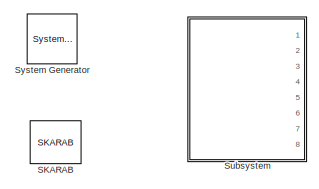
[diagram: root canvas - part 1/5, top left region]
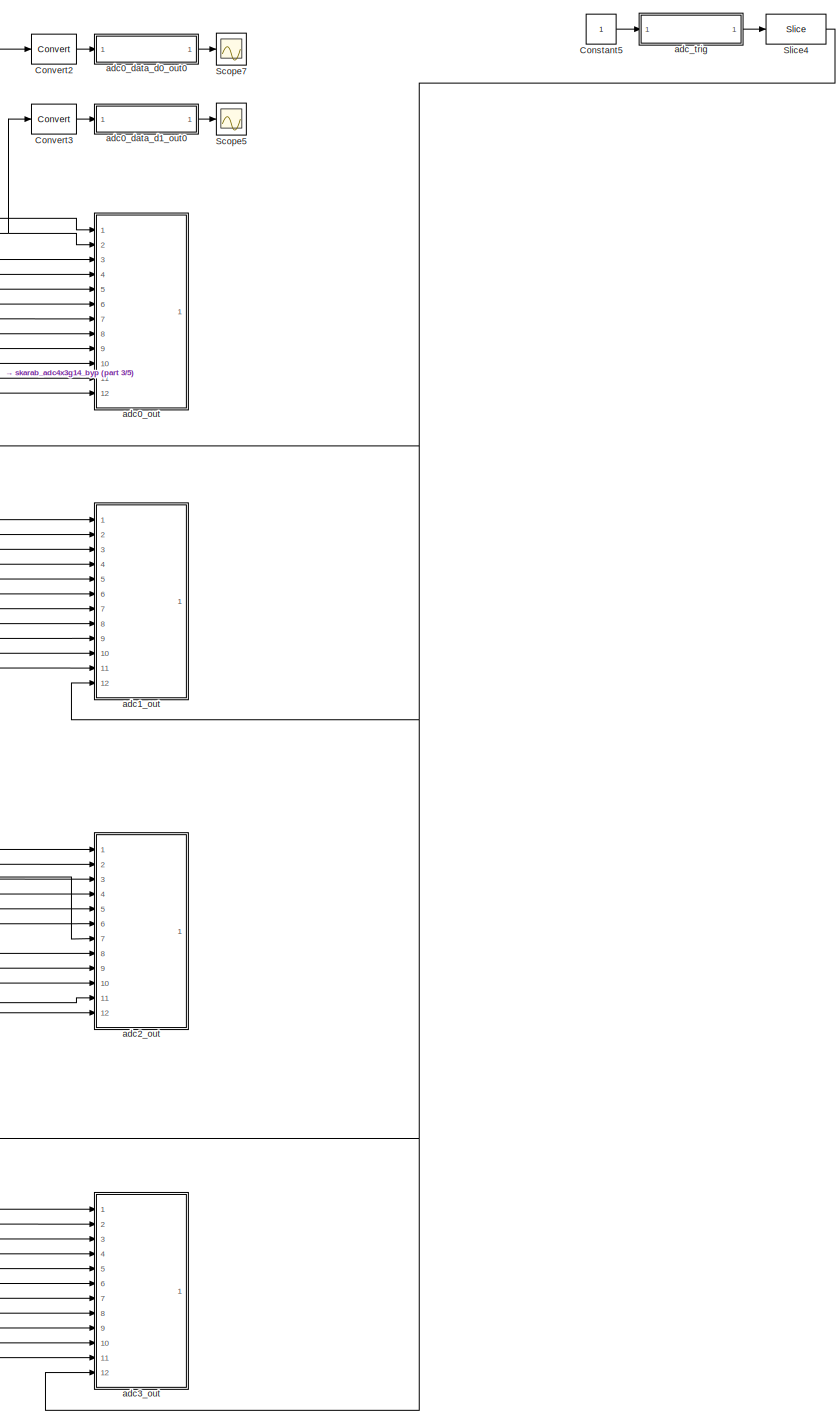
[diagram: root canvas - part 2/5, middle right region]
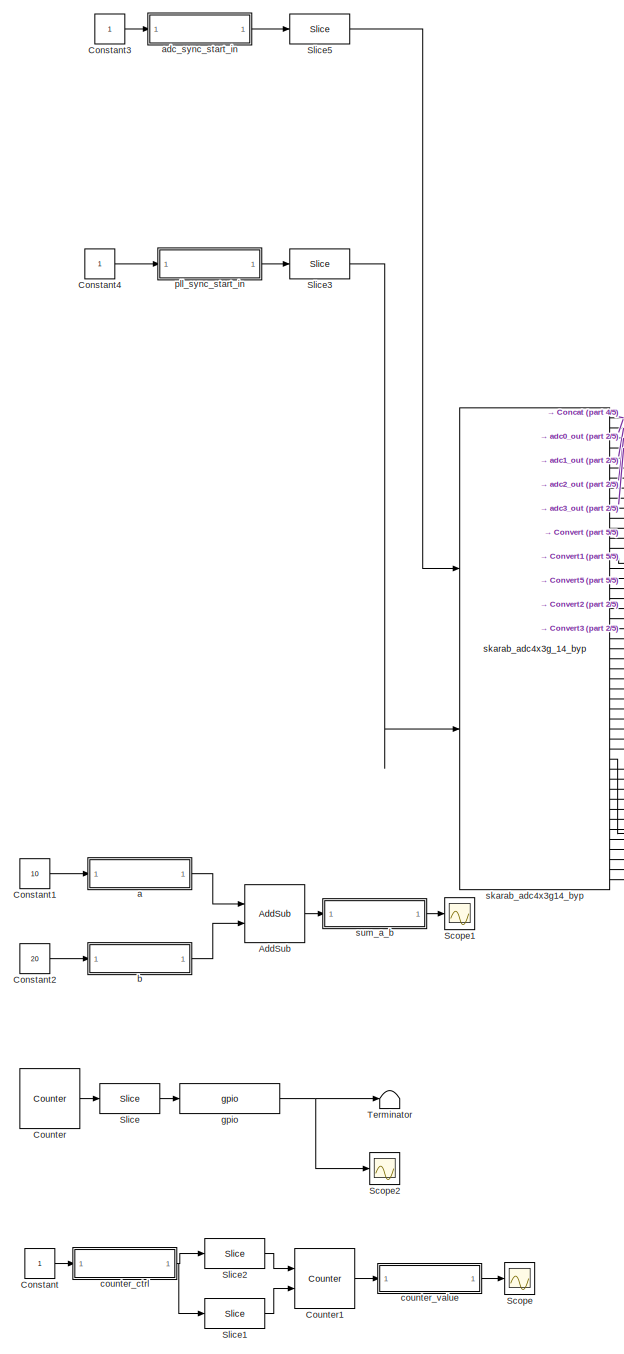
[diagram: root canvas - part 3/5, middle left region]
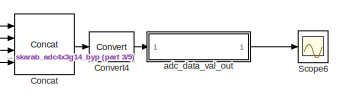
[diagram: root canvas - part 4/5, bottom center region]
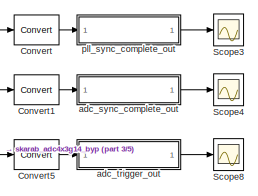
[diagram: root canvas - part 5/5, bottom center region]
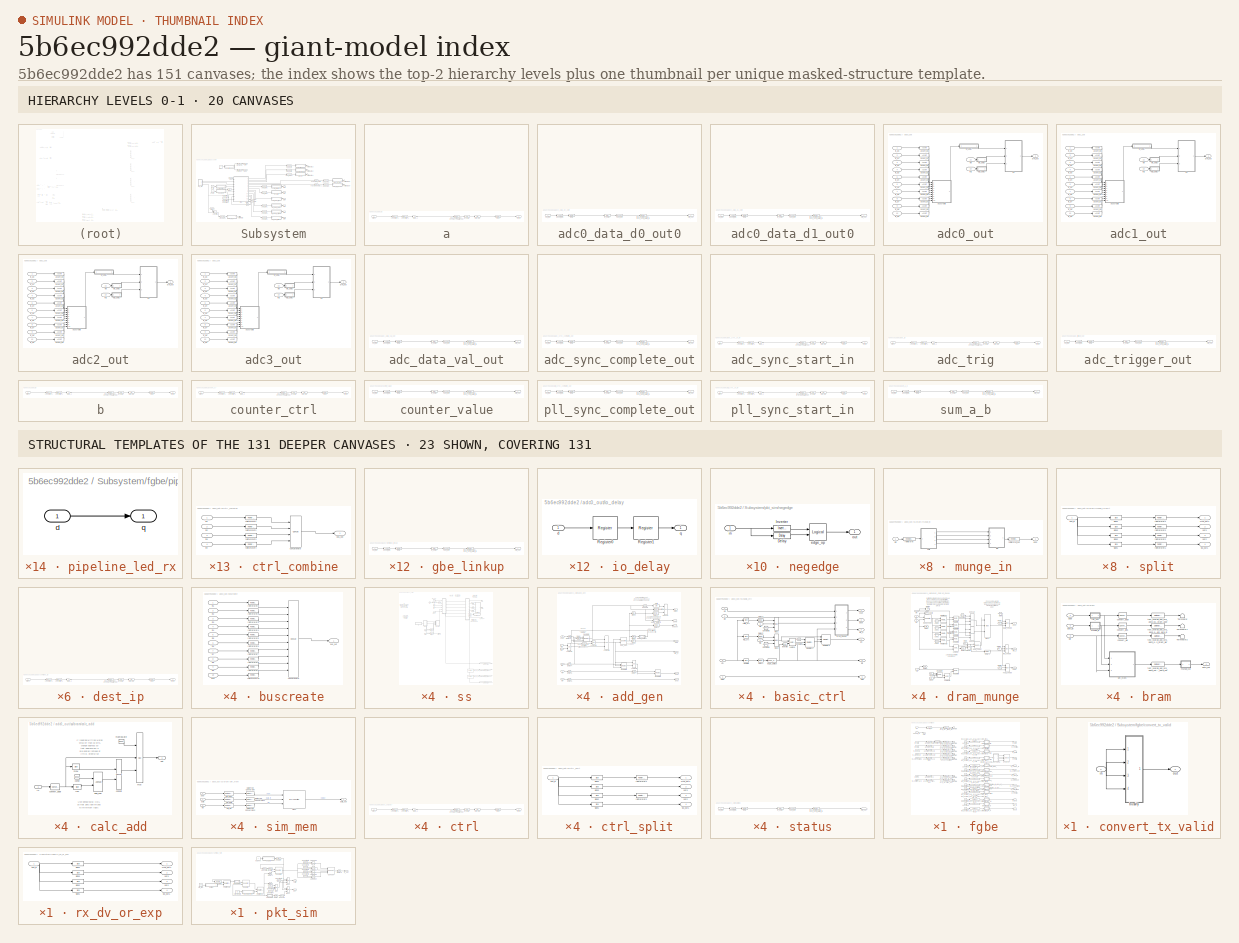
[diagram: thumbnail index - top-2 hierarchy levels (20 canvases) + 23 structural-template representatives of the remaining 131 canvases]
MODEL slx_5b6ec992dde2
KIND model
CONFIG AbsTol = auto
CONFIG EnableMultiTasking = off
CONFIG FixedStep = auto
CONFIG MaxStep = auto
CONFIG MinStep = auto
CONFIG RelTol = 1e-3
CONFIG SampleTimeConstraint = Unconstrained
CONFIG Solver = VariableStepDiscrete
CONFIG SolverName = VariableStepDiscrete
CONFIG StartTime = 0.0
CONFIG StopTime = 10.0
BLOCK [Reference]  System Generator  REF=xbsIndex_r4/ System Generator
  AttributesFormatString = System\nGenerator
  Ports = []
  SourceBlock = xbsIndex_r4/ System Generator
  SourceType = Xilinx System Generator Block
  Tag = genX
  UserDataPersistent = on
BLOCK [Reference] AddSub  REF=xbsIndex_r4/AddSub
  Ports = [2, 1]
  SourceBlock = xbsIndex_r4/AddSub
  SourceType = Xilinx Adder/Subtracter Block
BLOCK [Reference] Concat  REF=xbsIndex_r4/Concat
  Ports = [4, 1]
  SourceBlock = xbsIndex_r4/Concat
  SourceType = Xilinx Bus Concatenator Block
BLOCK [Constant] Constant
BLOCK [Constant] Constant1
  Value = 10
BLOCK [Constant] Constant2
  Value = 20
BLOCK [Constant] Constant3
BLOCK [Constant] Constant4
BLOCK [Constant] Constant5
BLOCK [Reference] Convert  REF=xbsIndex_r4/Convert
  Ports = [1, 1]
  SourceBlock = xbsIndex_r4/Convert
  SourceType = Xilinx Type Converter Block
BLOCK [Reference] Convert1  REF=xbsIndex_r4/Convert
  Ports = [1, 1]
  SourceBlock = xbsIndex_r4/Convert
  SourceType = Xilinx Type Converter Block
BLOCK [Reference] Convert2  REF=xbsIndex_r4/Convert
  Ports = [1, 1]
  SourceBlock = xbsIndex_r4/Convert
  SourceType = Xilinx Type Converter Block
BLOCK [Reference] Convert3  REF=xbsIndex_r4/Convert
  Ports = [1, 1]
  SourceBlock = xbsIndex_r4/Convert
  SourceType = Xilinx Type Converter Block
BLOCK [Reference] Convert4  REF=xbsIndex_r4/Convert
  Ports = [1, 1]
  SourceBlock = xbsIndex_r4/Convert
  SourceType = Xilinx Type Converter Block
BLOCK [Reference] Convert5  REF=xbsIndex_r4/Convert
  Ports = [1, 1]
  SourceBlock = xbsIndex_r4/Convert
  SourceType = Xilinx Type Converter Block
BLOCK [Reference] Counter  REF=xbsIndex_r4/Counter
  Ports = [0, 1]
  SourceBlock = xbsIndex_r4/Counter
  SourceType = Xilinx Counter Block
BLOCK [Reference] Counter1  REF=xbsIndex_r4/Counter
  Ports = [2, 1]
  SourceBlock = xbsIndex_r4/Counter
  SourceType = Xilinx Counter Block
BLOCK [Reference] SKARAB  REF=xps_library/Platforms/SKARAB  (lib defined in mdl_00b5cec29cd0, mdl_02ab6ecaa3d1, +5 more)
  Ports = []
  SourceBlock = xps_library/Platforms/SKARAB
  SourceProductName = CASPER XPS Blockset
  SourceType = xsg core config
  Tag = xps:xsg
BLOCK [Scope] Scope
  Floating = off
  NumInputPorts = 1
  Ports = [1]
  ScopeSpecificationString = Simulink.scopes.TimeScopeBlockCfg('CurrentConfiguration', extmgr.ConfigurationSet(extmgr.Configuration('Core','General UI',true),extmgr.Configuration('Core','Source UI',true),extmgr.Configuration('Sources','WiredSimulink',true,'DataLoggingLimitDataPoints',true,'DataLoggingSaveFormat','Array','DataLoggingDecimation','1','DataLoggingDecimateData',true),extmgr.Configuration('Visuals','Time Domain',tr...<+1466ch>
BLOCK [Scope] Scope1
  Floating = off
  NumInputPorts = 1
  Ports = [1]
  ScopeSpecificationString = Simulink.scopes.TimeScopeBlockCfg('CurrentConfiguration', extmgr.ConfigurationSet(extmgr.Configuration('Core','General UI',true),extmgr.Configuration('Core','Source UI',true),extmgr.Configuration('Sources','WiredSimulink',true,'DataLoggingVariableName','ScopeData1','DataLoggingLimitDataPoints',true,'DataLoggingSaveFormat','Array','DataLoggingDecimation','1','DataLoggingDecimateData',true),extmgr.C...<+1497ch>
BLOCK [Scope] Scope2
  Floating = off
  NumInputPorts = 1
  Ports = [1]
  ScopeSpecificationString = Simulink.scopes.TimeScopeBlockCfg('CurrentConfiguration', extmgr.ConfigurationSet(extmgr.Configuration('Core','General UI',true),extmgr.Configuration('Core','Source UI',true),extmgr.Configuration('Sources','WiredSimulink',true,'DataLoggingVariableName','ScopeData1'),extmgr.Configuration('Visuals','Time Domain',true,'SerializedDisplays',{struct('MinYLimReal','-0.125','MaxYLimReal','1.125','YLabelRe...<+1377ch>
BLOCK [Scope] Scope3
  Floating = off
  NumInputPorts = 1
  Ports = [1]
  ScopeSpecificationString = Simulink.scopes.TimeScopeBlockCfg('CurrentConfiguration', extmgr.ConfigurationSet(extmgr.Configuration('Core','General UI',true),extmgr.Configuration('Core','Source UI',true),extmgr.Configuration('Sources','WiredSimulink',true,'DataLoggingVariableName','ScopeData1','DataLoggingLimitDataPoints',true,'DataLoggingSaveFormat','Array','DataLoggingDecimation','1','DataLoggingDecimateData',true),extmgr.C...<+165ch>  <repeated x3 — deduplicated; at blocks: Scope3, Scope5, Scope8>
BLOCK [Scope] Scope4
  Floating = off
  NumInputPorts = 1
  Ports = [1]
  ScopeSpecificationString = Simulink.scopes.TimeScopeBlockCfg('CurrentConfiguration', extmgr.ConfigurationSet(extmgr.Configuration('Core','General UI',true),extmgr.Configuration('Core','Source UI',true),extmgr.Configuration('Sources','WiredSimulink',true,'DataLoggingVariableName','ScopeData2','DataLoggingLimitDataPoints',true,'DataLoggingSaveFormat','Array','DataLoggingDecimation','1','DataLoggingDecimateData',true),extmgr.C...<+165ch>
BLOCK [Scope] Scope5
  Floating = off
  NumInputPorts = 1
  Ports = [1]
BLOCK [Scope] Scope6
  Floating = off
  NumInputPorts = 1
  Ports = [1]
  ScopeSpecificationString = Simulink.scopes.TimeScopeBlockCfg('CurrentConfiguration', extmgr.ConfigurationSet(extmgr.Configuration('Core','General UI',true),extmgr.Configuration('Core','Source UI',true),extmgr.Configuration('Sources','WiredSimulink',true,'DataLoggingVariableName','ScopeData4','DataLoggingLimitDataPoints',true,'DataLoggingSaveFormat','Array','DataLoggingDecimation','1','DataLoggingDecimateData',true),extmgr.C...<+165ch>
BLOCK [Scope] Scope7
  Floating = off
  NumInputPorts = 1
  Ports = [1]
  ScopeSpecificationString = Simulink.scopes.TimeScopeBlockCfg('CurrentConfiguration', extmgr.ConfigurationSet(extmgr.Configuration('Core','General UI',true),extmgr.Configuration('Core','Source UI',true),extmgr.Configuration('Sources','WiredSimulink',true,'DataLoggingVariableName','ScopeData2','DataLoggingLimitDataPoints',true,'DataLoggingSaveFormat','Array','DataLoggingDecimation','1','DataLoggingDecimateData',true),extmgr.C...<+165ch>
BLOCK [Scope] Scope8
  Floating = off
  NumInputPorts = 1
  Ports = [1]
BLOCK [Reference] Slice  REF=xbsIndex_r4/Slice
  Ports = [1, 1]
  SourceBlock = xbsIndex_r4/Slice
  SourceType = Xilinx Bit Slice Extractor Block
BLOCK [Reference] Slice1  REF=xbsIndex_r4/Slice
  Ports = [1, 1]
  SourceBlock = xbsIndex_r4/Slice
  SourceType = Xilinx Bit Slice Extractor Block
BLOCK [Reference] Slice2  REF=xbsIndex_r4/Slice
  Ports = [1, 1]
  SourceBlock = xbsIndex_r4/Slice
  SourceType = Xilinx Bit Slice Extractor Block
BLOCK [Reference] Slice3  REF=xbsIndex_r4/Slice
  Ports = [1, 1]
  SourceBlock = xbsIndex_r4/Slice
  SourceType = Xilinx Bit Slice Extractor Block
BLOCK [Reference] Slice4  REF=xbsIndex_r4/Slice
  Ports = [1, 1]
  SourceBlock = xbsIndex_r4/Slice
  SourceType = Xilinx Bit Slice Extractor Block
BLOCK [Reference] Slice5  REF=xbsIndex_r4/Slice
  Ports = [1, 1]
  SourceBlock = xbsIndex_r4/Slice
  SourceType = Xilinx Bit Slice Extractor Block
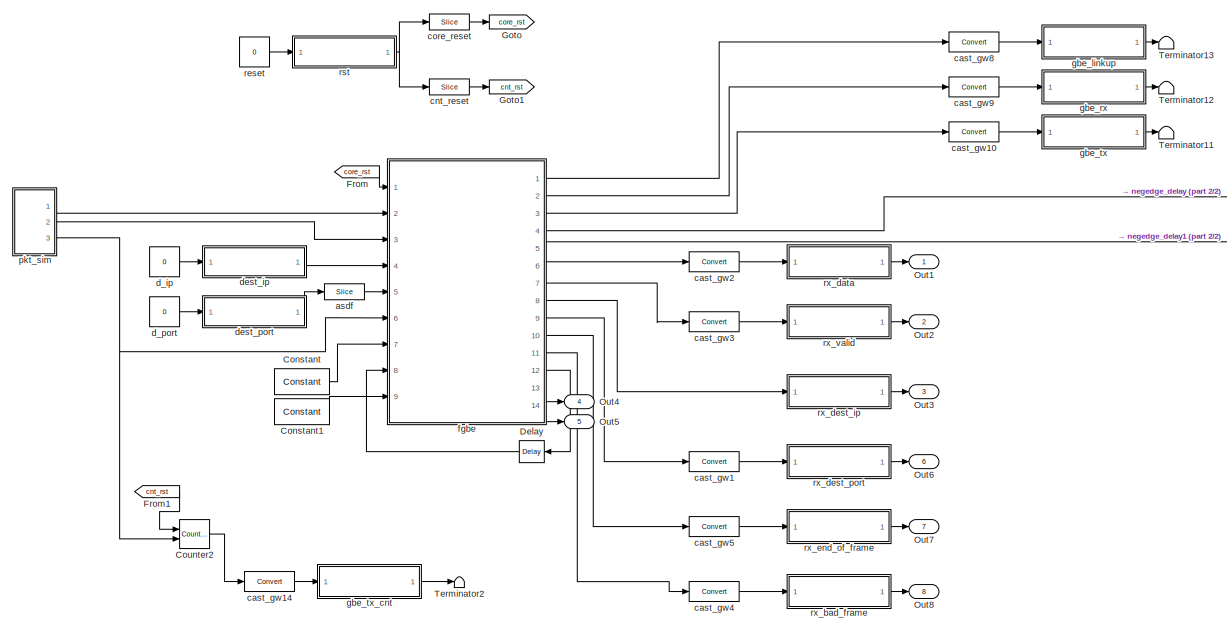
[diagram: Subsystem - part 1/2, most of the canvas]
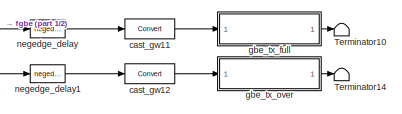
[diagram: Subsystem - part 2/2, middle right region]
BLOCK [SubSystem] Subsystem
  Ports = [0, 8]
  RequestExecContextInheritance = off
BLOCK [Reference] Subsystem/Constant  REF=xbsIndex_r4/Constant
  Ports = [0, 1]
  SourceBlock = xbsIndex_r4/Constant
  SourceType = Xilinx Constant Block Block
BLOCK [Reference] Subsystem/Constant1  REF=xbsIndex_r4/Constant
  Ports = [0, 1]
  SourceBlock = xbsIndex_r4/Constant
  SourceType = Xilinx Constant Block Block
BLOCK [Reference] Subsystem/Counter2  REF=xbsIndex_r4/Counter
  Ports = [2, 1]
  SourceBlock = xbsIndex_r4/Counter
  SourceType = Xilinx Counter Block
BLOCK [Reference] Subsystem/Delay  REF=xbsIndex_r4/Delay
  Ports = [1, 1]
  SourceBlock = xbsIndex_r4/Delay
  SourceType = Xilinx Delay Block
BLOCK [From] Subsystem/From
  GotoTag = core_rst
BLOCK [From] Subsystem/From1
  GotoTag = cnt_rst
BLOCK [Goto] Subsystem/Goto
  GotoTag = core_rst
BLOCK [Goto] Subsystem/Goto1
  GotoTag = cnt_rst
BLOCK [Outport] Subsystem/Out1
  IconDisplay = Port number
BLOCK [Outport] Subsystem/Out2
  IconDisplay = Port number
  Port = 2
BLOCK [Outport] Subsystem/Out3
  IconDisplay = Port number
  Port = 3
BLOCK [Outport] Subsystem/Out4
  IconDisplay = Port number
  Port = 4
BLOCK [Outport] Subsystem/Out5
  IconDisplay = Port number
  Port = 5
BLOCK [Outport] Subsystem/Out6
  IconDisplay = Port number
  Port = 6
BLOCK [Outport] Subsystem/Out7
  IconDisplay = Port number
  Port = 7
BLOCK [Outport] Subsystem/Out8
  IconDisplay = Port number
  Port = 8
BLOCK [Terminator] Subsystem/Terminator10
BLOCK [Terminator] Subsystem/Terminator11
BLOCK [Terminator] Subsystem/Terminator12
BLOCK [Terminator] Subsystem/Terminator13
BLOCK [Terminator] Subsystem/Terminator14
BLOCK [Terminator] Subsystem/Terminator2
BLOCK [Reference] Subsystem/asdf  REF=xbsIndex_r4/Slice
  Ports = [1, 1]
  SourceBlock = xbsIndex_r4/Slice
  SourceType = Xilinx Bit Slice Extractor Block
BLOCK [Reference] Subsystem/cast_gw1  REF=xbsIndex_r4/Convert
  Ports = [1, 1]
  SourceBlock = xbsIndex_r4/Convert
  SourceType = Xilinx Type Converter Block
BLOCK [Reference] Subsystem/cast_gw10  REF=xbsIndex_r4/Convert
  Ports = [1, 1]
  SourceBlock = xbsIndex_r4/Convert
  SourceType = Xilinx Type Converter Block
BLOCK [Reference] Subsystem/cast_gw11  REF=xbsIndex_r4/Convert
  Ports = [1, 1]
  SourceBlock = xbsIndex_r4/Convert
  SourceType = Xilinx Type Converter Block
BLOCK [Reference] Subsystem/cast_gw12  REF=xbsIndex_r4/Convert
  Ports = [1, 1]
  SourceBlock = xbsIndex_r4/Convert
  SourceType = Xilinx Type Converter Block
BLOCK [Reference] Subsystem/cast_gw14  REF=xbsIndex_r4/Convert
  Ports = [1, 1]
  SourceBlock = xbsIndex_r4/Convert
  SourceType = Xilinx Type Converter Block
BLOCK [Reference] Subsystem/cast_gw2  REF=xbsIndex_r4/Convert
  Ports = [1, 1]
  SourceBlock = xbsIndex_r4/Convert
  SourceType = Xilinx Type Converter Block
BLOCK [Reference] Subsystem/cast_gw3  REF=xbsIndex_r4/Convert
  Ports = [1, 1]
  SourceBlock = xbsIndex_r4/Convert
  SourceType = Xilinx Type Converter Block
BLOCK [Reference] Subsystem/cast_gw4  REF=xbsIndex_r4/Convert
  Ports = [1, 1]
  SourceBlock = xbsIndex_r4/Convert
  SourceType = Xilinx Type Converter Block
BLOCK [Reference] Subsystem/cast_gw5  REF=xbsIndex_r4/Convert
  Ports = [1, 1]
  SourceBlock = xbsIndex_r4/Convert
  SourceType = Xilinx Type Converter Block
BLOCK [Reference] Subsystem/cast_gw8  REF=xbsIndex_r4/Convert
  Ports = [1, 1]
  SourceBlock = xbsIndex_r4/Convert
  SourceType = Xilinx Type Converter Block
BLOCK [Reference] Subsystem/cast_gw9  REF=xbsIndex_r4/Convert
  Ports = [1, 1]
  SourceBlock = xbsIndex_r4/Convert
  SourceType = Xilinx Type Converter Block
BLOCK [Reference] Subsystem/cnt_reset  REF=xbsIndex_r4/Slice
  Ports = [1, 1]
  SourceBlock = xbsIndex_r4/Slice
  SourceType = Xilinx Bit Slice Extractor Block
BLOCK [Reference] Subsystem/core_reset  REF=xbsIndex_r4/Slice
  Ports = [1, 1]
  SourceBlock = xbsIndex_r4/Slice
  SourceType = Xilinx Bit Slice Extractor Block
BLOCK [Constant] Subsystem/d_ip
  Value = 0
BLOCK [Constant] Subsystem/d_port
  Value = 0
BLOCK [SubSystem] Subsystem/dest_ip
  AncestorBlock = xps_library/Memory/software_register
  AttributesFormatString = 1input:uf32.0 = 32 bits
  Ports = [1, 1]
  RequestExecContextInheritance = off
  Tag = xps:sw_reg
BLOCK [DataTypeConversion] Subsystem/dest_ip/convert1_1
  LockScale = on
  OutDataTypeStr = fixdt('ufix32_En0')
  RndMeth = Floor
  SaturateOnIntegerOverflow = off
BLOCK [DataTypeConversion] Subsystem/dest_ip/convert2_1
  ConvertRealWorld = Stored Integer (SI)
  LockScale = on
  OutDataTypeStr = fixdt('ufix32_En0')
  RndMeth = Floor
  SaturateOnIntegerOverflow = off
BLOCK [Gain] Subsystem/dest_ip/gain_1
  OutDataTypeStr = Inherit: Inherit via internal rule
  ParamDataTypeStr = Inherit: Inherit via internal rule
  SaturateOnIntegerOverflow = off
BLOCK [Outport] Subsystem/dest_ip/in_reg
  IconDisplay = Port number
BLOCK [Reference] Subsystem/dest_ip/io_delay  REF=xbsIndex_r4/Delay
  Ports = [1, 1]
  SourceBlock = xbsIndex_r4/Delay
  SourceType = Xilinx Delay Block
BLOCK [Reference] Subsystem/dest_ip/reint1  REF=xbsIndex_r4/Reinterpret
  Ports = [1, 1]
  SourceBlock = xbsIndex_r4/Reinterpret
  SourceType = Xilinx Type Reinterpreter Block
BLOCK [Inport] Subsystem/dest_ip/sim_1
  IconDisplay = Port number
BLOCK [Reference] Subsystem/dest_ip/slice_reg  REF=xbsIndex_r4/Slice
  Ports = [1, 1]
  SourceBlock = xbsIndex_r4/Slice
  SourceType = Xilinx Bit Slice Extractor Block
BLOCK [Reference] Subsystem/dest_ip/test_skarab_adc_byp_Subsystem_dest_ip_user_data_out  REF=xbsIndex_r4/Gateway In
  Ports = [1, 1]
  SourceBlock = xbsIndex_r4/Gateway In
  SourceType = Xilinx Gateway In Block
BLOCK [SubSystem] Subsystem/dest_port
  AncestorBlock = xps_library/Memory/software_register
  AttributesFormatString = 1input:uf32.0 = 32 bits
  Ports = [1, 1]
  RequestExecContextInheritance = off
  Tag = xps:sw_reg
BLOCK [DataTypeConversion] Subsystem/dest_port/convert1_1
  LockScale = on
  OutDataTypeStr = fixdt('ufix32_En0')
  RndMeth = Floor
  SaturateOnIntegerOverflow = off
BLOCK [DataTypeConversion] Subsystem/dest_port/convert2_1
  ConvertRealWorld = Stored Integer (SI)
  LockScale = on
  OutDataTypeStr = fixdt('ufix32_En0')
  RndMeth = Floor
  SaturateOnIntegerOverflow = off
BLOCK [Gain] Subsystem/dest_port/gain_1
  OutDataTypeStr = Inherit: Inherit via internal rule
  ParamDataTypeStr = Inherit: Inherit via internal rule
  SaturateOnIntegerOverflow = off
BLOCK [Outport] Subsystem/dest_port/in_reg
  IconDisplay = Port number
BLOCK [Reference] Subsystem/dest_port/io_delay  REF=xbsIndex_r4/Delay
  Ports = [1, 1]
  SourceBlock = xbsIndex_r4/Delay
  SourceType = Xilinx Delay Block
BLOCK [Reference] Subsystem/dest_port/reint1  REF=xbsIndex_r4/Reinterpret
  Ports = [1, 1]
  SourceBlock = xbsIndex_r4/Reinterpret
  SourceType = Xilinx Type Reinterpreter Block
BLOCK [Inport] Subsystem/dest_port/sim_1
  IconDisplay = Port number
BLOCK [Reference] Subsystem/dest_port/slice_reg  REF=xbsIndex_r4/Slice
  Ports = [1, 1]
  SourceBlock = xbsIndex_r4/Slice
  SourceType = Xilinx Bit Slice Extractor Block
BLOCK [Reference] Subsystem/dest_port/test_skarab_adc_byp_Subsystem_dest_port_user_data_out  REF=xbsIndex_r4/Gateway In
  Ports = [1, 1]
  SourceBlock = xbsIndex_r4/Gateway In
  SourceType = Xilinx Gateway In Block
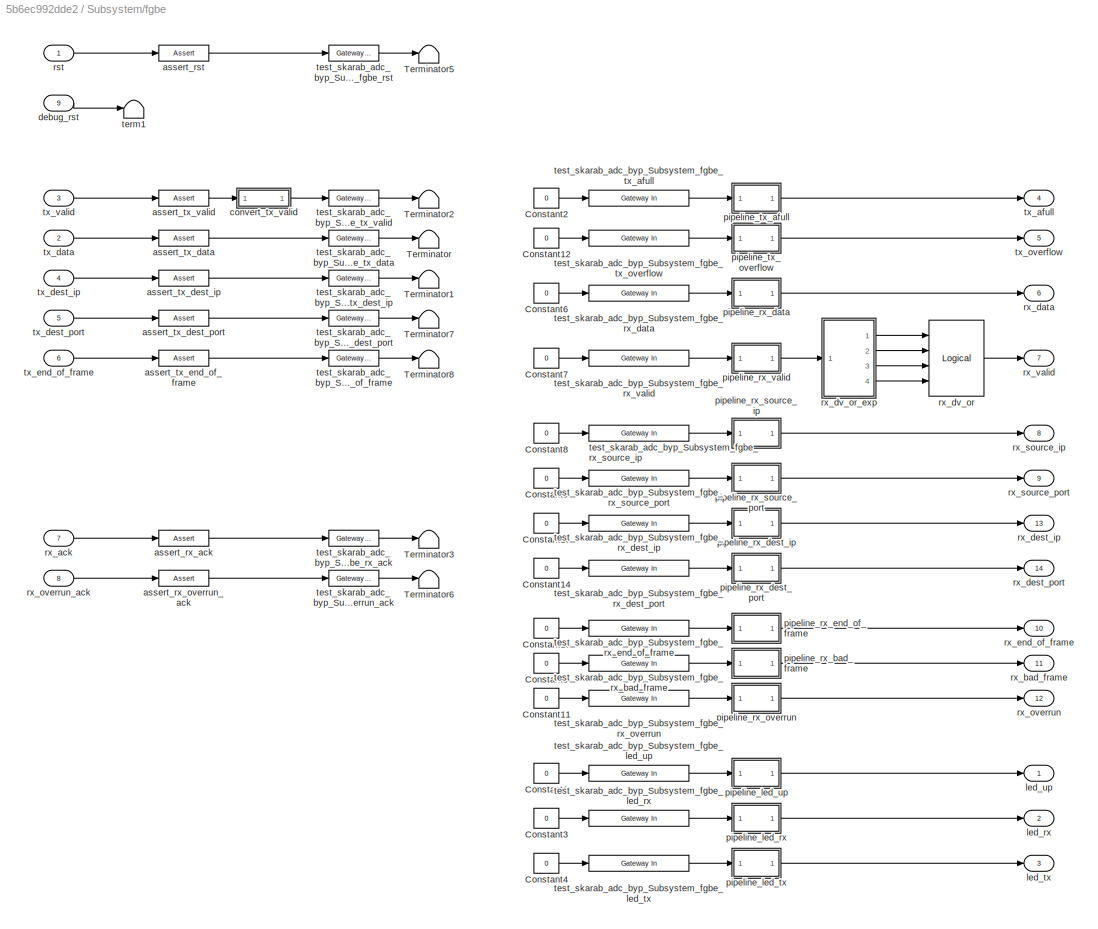
BLOCK [SubSystem] Subsystem/fgbe
  AncestorBlock = xps_library/IO/forty_gbe
  AttributesFormatString = incoming_latency=3
  Ports = [9, 14]
  RequestExecContextInheritance = off
  Tag = xps:forty_gbe
BLOCK [Constant] Subsystem/fgbe/Constant1
  Value = 0
BLOCK [Constant] Subsystem/fgbe/Constant10
  Value = 0
BLOCK [Constant] Subsystem/fgbe/Constant11
  Value = 0
BLOCK [Constant] Subsystem/fgbe/Constant12
  Value = 0
BLOCK [Constant] Subsystem/fgbe/Constant13
  Value = 0
BLOCK [Constant] Subsystem/fgbe/Constant14
  Value = 0
BLOCK [Constant] Subsystem/fgbe/Constant2
  Value = 0
BLOCK [Constant] Subsystem/fgbe/Constant3
  Value = 0
BLOCK [Constant] Subsystem/fgbe/Constant4
  Value = 0
BLOCK [Constant] Subsystem/fgbe/Constant5
  Value = 0
BLOCK [Constant] Subsystem/fgbe/Constant6
  Value = 0
BLOCK [Constant] Subsystem/fgbe/Constant7
  Value = 0
BLOCK [Constant] Subsystem/fgbe/Constant8
  Value = 0
BLOCK [Constant] Subsystem/fgbe/Constant9
  Value = 0
BLOCK [Terminator] Subsystem/fgbe/Terminator
BLOCK [Terminator] Subsystem/fgbe/Terminator1
BLOCK [Terminator] Subsystem/fgbe/Terminator2
BLOCK [Terminator] Subsystem/fgbe/Terminator3
BLOCK [Terminator] Subsystem/fgbe/Terminator5
BLOCK [Terminator] Subsystem/fgbe/Terminator6
BLOCK [Terminator] Subsystem/fgbe/Terminator7
BLOCK [Terminator] Subsystem/fgbe/Terminator8
BLOCK [Reference] Subsystem/fgbe/assert_rst  REF=xbsIndex_r4/Assert
  Ports = [1, 1]
  SourceBlock = xbsIndex_r4/Assert
  SourceType = Xilinx Assert Block
BLOCK [Reference] Subsystem/fgbe/assert_rx_ack  REF=xbsIndex_r4/Assert
  Ports = [1, 1]
  SourceBlock = xbsIndex_r4/Assert
  SourceType = Xilinx Assert Block
BLOCK [Reference] Subsystem/fgbe/assert_rx_overrun_ack  REF=xbsIndex_r4/Assert
  Ports = [1, 1]
  SourceBlock = xbsIndex_r4/Assert
  SourceType = Xilinx Assert Block
BLOCK [Reference] Subsystem/fgbe/assert_tx_data  REF=xbsIndex_r4/Assert
  Ports = [1, 1]
  SourceBlock = xbsIndex_r4/Assert
  SourceType = Xilinx Assert Block
BLOCK [Reference] Subsystem/fgbe/assert_tx_dest_ip  REF=xbsIndex_r4/Assert
  Ports = [1, 1]
  SourceBlock = xbsIndex_r4/Assert
  SourceType = Xilinx Assert Block
BLOCK [Reference] Subsystem/fgbe/assert_tx_dest_port  REF=xbsIndex_r4/Assert
  Ports = [1, 1]
  SourceBlock = xbsIndex_r4/Assert
  SourceType = Xilinx Assert Block
BLOCK [Reference] Subsystem/fgbe/assert_tx_end_of_frame  REF=xbsIndex_r4/Assert
  Ports = [1, 1]
  SourceBlock = xbsIndex_r4/Assert
  SourceType = Xilinx Assert Block
BLOCK [Reference] Subsystem/fgbe/assert_tx_valid  REF=xbsIndex_r4/Assert
  Ports = [1, 1]
  SourceBlock = xbsIndex_r4/Assert
  SourceType = Xilinx Assert Block
BLOCK [SubSystem] Subsystem/fgbe/convert_tx_valid
  AncestorBlock = casper_library_bus/bus_replicate
  Ports = [1, 1]
  RequestExecContextInheritance = off
  UserDataPersistent = on
BLOCK [SubSystem] Subsystem/fgbe/convert_tx_valid/bussify
  AncestorBlock = casper_library_flow_control/bus_create
  Ports = [4, 1]
  RequestExecContextInheritance = off
  UserDataPersistent = on
BLOCK [Outport] Subsystem/fgbe/convert_tx_valid/bussify/bus_out
  IconDisplay = Port number
BLOCK [Reference] Subsystem/fgbe/convert_tx_valid/bussify/concatenate  REF=xbsIndex_r4/Concat
  Ports = [4, 1]
  SourceBlock = xbsIndex_r4/Concat
  SourceType = Xilinx Bus Concatenator Block
BLOCK [Inport] Subsystem/fgbe/convert_tx_valid/bussify/in1
  IconDisplay = Port number
BLOCK [Inport] Subsystem/fgbe/convert_tx_valid/bussify/in2
  IconDisplay = Port number
  Port = 2
BLOCK [Inport] Subsystem/fgbe/convert_tx_valid/bussify/in3
  IconDisplay = Port number
  Port = 3
BLOCK [Inport] Subsystem/fgbe/convert_tx_valid/bussify/in4
  IconDisplay = Port number
  Port = 4
BLOCK [Reference] Subsystem/fgbe/convert_tx_valid/bussify/reinterpret1  REF=xbsIndex_r4/Reinterpret
  Ports = [1, 1]
  SourceBlock = xbsIndex_r4/Reinterpret
  SourceType = Xilinx Type Reinterpreter Block
BLOCK [Reference] Subsystem/fgbe/convert_tx_valid/bussify/reinterpret2  REF=xbsIndex_r4/Reinterpret
  Ports = [1, 1]
  SourceBlock = xbsIndex_r4/Reinterpret
  SourceType = Xilinx Type Reinterpreter Block
BLOCK [Reference] Subsystem/fgbe/convert_tx_valid/bussify/reinterpret3  REF=xbsIndex_r4/Reinterpret
  Ports = [1, 1]
  SourceBlock = xbsIndex_r4/Reinterpret
  SourceType = Xilinx Type Reinterpreter Block
BLOCK [Reference] Subsystem/fgbe/convert_tx_valid/bussify/reinterpret4  REF=xbsIndex_r4/Reinterpret
  Ports = [1, 1]
  SourceBlock = xbsIndex_r4/Reinterpret
  SourceType = Xilinx Type Reinterpreter Block
BLOCK [Inport] Subsystem/fgbe/convert_tx_valid/in
  IconDisplay = Port number
BLOCK [Outport] Subsystem/fgbe/convert_tx_valid/out
  IconDisplay = Port number
BLOCK [Inport] Subsystem/fgbe/debug_rst
  IconDisplay = Port number
  Port = 9
BLOCK [Outport] Subsystem/fgbe/led_rx
  IconDisplay = Port number
  Port = 2
BLOCK [Outport] Subsystem/fgbe/led_tx
  IconDisplay = Port number
  Port = 3
BLOCK [Outport] Subsystem/fgbe/led_up
  IconDisplay = Port number
BLOCK [SubSystem] Subsystem/fgbe/pipeline_led_rx
  AncestorBlock = casper_library_delays/pipeline
  AttributesFormatString = Latency = %<latency>
  Ports = [1, 1]
  RequestExecContextInheritance = off
  UserDataPersistent = on
BLOCK [Inport] Subsystem/fgbe/pipeline_led_rx/d
  IconDisplay = Port number
BLOCK [Outport] Subsystem/fgbe/pipeline_led_rx/q
  IconDisplay = Port number
BLOCK [SubSystem] Subsystem/fgbe/pipeline_led_tx
  AncestorBlock = casper_library_delays/pipeline
  AttributesFormatString = Latency = %<latency>
  Ports = [1, 1]
  RequestExecContextInheritance = off
  UserDataPersistent = on
BLOCK [Inport] Subsystem/fgbe/pipeline_led_tx/d
  IconDisplay = Port number
BLOCK [Outport] Subsystem/fgbe/pipeline_led_tx/q
  IconDisplay = Port number
BLOCK [SubSystem] Subsystem/fgbe/pipeline_led_up
  AncestorBlock = casper_library_delays/pipeline
  AttributesFormatString = Latency = %<latency>
  Ports = [1, 1]
  RequestExecContextInheritance = off
  UserDataPersistent = on
BLOCK [Inport] Subsystem/fgbe/pipeline_led_up/d
  IconDisplay = Port number
BLOCK [Outport] Subsystem/fgbe/pipeline_led_up/q
  IconDisplay = Port number
BLOCK [SubSystem] Subsystem/fgbe/pipeline_rx_bad_frame
  AncestorBlock = casper_library_delays/pipeline
  AttributesFormatString = Latency = %<latency>
  Ports = [1, 1]
  RequestExecContextInheritance = off
  UserDataPersistent = on
BLOCK [Inport] Subsystem/fgbe/pipeline_rx_bad_frame/d
  IconDisplay = Port number
BLOCK [Outport] Subsystem/fgbe/pipeline_rx_bad_frame/q
  IconDisplay = Port number
BLOCK [SubSystem] Subsystem/fgbe/pipeline_rx_data
  AncestorBlock = casper_library_delays/pipeline
  AttributesFormatString = Latency = %<latency>
  Ports = [1, 1]
  RequestExecContextInheritance = off
  UserDataPersistent = on
BLOCK [Inport] Subsystem/fgbe/pipeline_rx_data/d
  IconDisplay = Port number
BLOCK [Outport] Subsystem/fgbe/pipeline_rx_data/q
  IconDisplay = Port number
BLOCK [SubSystem] Subsystem/fgbe/pipeline_rx_dest_ip
  AncestorBlock = casper_library_delays/pipeline
  AttributesFormatString = Latency = %<latency>
  Ports = [1, 1]
  RequestExecContextInheritance = off
  UserDataPersistent = on
BLOCK [Inport] Subsystem/fgbe/pipeline_rx_dest_ip/d
  IconDisplay = Port number
BLOCK [Outport] Subsystem/fgbe/pipeline_rx_dest_ip/q
  IconDisplay = Port number
BLOCK [SubSystem] Subsystem/fgbe/pipeline_rx_dest_port
  AncestorBlock = casper_library_delays/pipeline
  AttributesFormatString = Latency = %<latency>
  Ports = [1, 1]
  RequestExecContextInheritance = off
  UserDataPersistent = on
BLOCK [Inport] Subsystem/fgbe/pipeline_rx_dest_port/d
  IconDisplay = Port number
BLOCK [Outport] Subsystem/fgbe/pipeline_rx_dest_port/q
  IconDisplay = Port number
BLOCK [SubSystem] Subsystem/fgbe/pipeline_rx_end_of_frame
  AncestorBlock = casper_library_delays/pipeline
  AttributesFormatString = Latency = %<latency>
  Ports = [1, 1]
  RequestExecContextInheritance = off
  UserDataPersistent = on
BLOCK [Inport] Subsystem/fgbe/pipeline_rx_end_of_frame/d
  IconDisplay = Port number
BLOCK [Outport] Subsystem/fgbe/pipeline_rx_end_of_frame/q
  IconDisplay = Port number
BLOCK [SubSystem] Subsystem/fgbe/pipeline_rx_overrun
  AncestorBlock = casper_library_delays/pipeline
  AttributesFormatString = Latency = %<latency>
  Ports = [1, 1]
  RequestExecContextInheritance = off
  UserDataPersistent = on
BLOCK [Inport] Subsystem/fgbe/pipeline_rx_overrun/d
  IconDisplay = Port number
BLOCK [Outport] Subsystem/fgbe/pipeline_rx_overrun/q
  IconDisplay = Port number
BLOCK [SubSystem] Subsystem/fgbe/pipeline_rx_source_ip
  AncestorBlock = casper_library_delays/pipeline
  AttributesFormatString = Latency = %<latency>
  Ports = [1, 1]
  RequestExecContextInheritance = off
  UserDataPersistent = on
BLOCK [Inport] Subsystem/fgbe/pipeline_rx_source_ip/d
  IconDisplay = Port number
BLOCK [Outport] Subsystem/fgbe/pipeline_rx_source_ip/q
  IconDisplay = Port number
BLOCK [SubSystem] Subsystem/fgbe/pipeline_rx_source_port
  AncestorBlock = casper_library_delays/pipeline
  AttributesFormatString = Latency = %<latency>
  Ports = [1, 1]
  RequestExecContextInheritance = off
  UserDataPersistent = on
BLOCK [Inport] Subsystem/fgbe/pipeline_rx_source_port/d
  IconDisplay = Port number
BLOCK [Outport] Subsystem/fgbe/pipeline_rx_source_port/q
  IconDisplay = Port number
BLOCK [SubSystem] Subsystem/fgbe/pipeline_rx_valid
  AncestorBlock = casper_library_delays/pipeline
  AttributesFormatString = Latency = %<latency>
  Ports = [1, 1]
  RequestExecContextInheritance = off
  UserDataPersistent = on
BLOCK [Inport] Subsystem/fgbe/pipeline_rx_valid/d
  IconDisplay = Port number
BLOCK [Outport] Subsystem/fgbe/pipeline_rx_valid/q
  IconDisplay = Port number
BLOCK [SubSystem] Subsystem/fgbe/pipeline_tx_afull
  AncestorBlock = casper_library_delays/pipeline
  AttributesFormatString = Latency = %<latency>
  Ports = [1, 1]
  RequestExecContextInheritance = off
  UserDataPersistent = on
BLOCK [Inport] Subsystem/fgbe/pipeline_tx_afull/d
  IconDisplay = Port number
BLOCK [Outport] Subsystem/fgbe/pipeline_tx_afull/q
  IconDisplay = Port number
BLOCK [SubSystem] Subsystem/fgbe/pipeline_tx_overflow
  AncestorBlock = casper_library_delays/pipeline
  AttributesFormatString = Latency = %<latency>
  Ports = [1, 1]
  RequestExecContextInheritance = off
  UserDataPersistent = on
BLOCK [Inport] Subsystem/fgbe/pipeline_tx_overflow/d
  IconDisplay = Port number
BLOCK [Outport] Subsystem/fgbe/pipeline_tx_overflow/q
  IconDisplay = Port number
BLOCK [Inport] Subsystem/fgbe/rst
  IconDisplay = Port number
BLOCK [Inport] Subsystem/fgbe/rx_ack
  IconDisplay = Port number
  Port = 7
BLOCK [Outport] Subsystem/fgbe/rx_bad_frame
  IconDisplay = Port number
  Port = 11
BLOCK [Outport] Subsystem/fgbe/rx_data
  IconDisplay = Port number
  Port = 6
BLOCK [Outport] Subsystem/fgbe/rx_dest_ip
  IconDisplay = Port number
  Port = 13
BLOCK [Outport] Subsystem/fgbe/rx_dest_port
  IconDisplay = Port number
  Port = 14
BLOCK [Reference] Subsystem/fgbe/rx_dv_or  REF=xbsIndex_r4/Logical
  Ports = [4, 1]
  SourceBlock = xbsIndex_r4/Logical
  SourceType = Xilinx Logical Block Block
BLOCK [SubSystem] Subsystem/fgbe/rx_dv_or_exp
  AncestorBlock = casper_library_flow_control/bus_expand
  AttributesFormatString = 4 outputs
  Ports = [1, 4]
  RequestExecContextInheritance = off
  UserDataPersistent = on
BLOCK [Inport] Subsystem/fgbe/rx_dv_or_exp/bus_in
  IconDisplay = Port number
BLOCK [Outport] Subsystem/fgbe/rx_dv_or_exp/lsb_out1
  IconDisplay = Port number
  Port = 4
BLOCK [Outport] Subsystem/fgbe/rx_dv_or_exp/msb_out4
  IconDisplay = Port number
BLOCK [Outport] Subsystem/fgbe/rx_dv_or_exp/out2
  IconDisplay = Port number
  Port = 3
BLOCK [Outport] Subsystem/fgbe/rx_dv_or_exp/out3
  IconDisplay = Port number
  Port = 2
BLOCK [Reference] Subsystem/fgbe/rx_dv_or_exp/slice1  REF=xbsIndex_r4/Slice
  Ports = [1, 1]
  SourceBlock = xbsIndex_r4/Slice
  SourceType = Xilinx Bit Slice Extractor Block
BLOCK [Reference] Subsystem/fgbe/rx_dv_or_exp/slice2  REF=xbsIndex_r4/Slice
  Ports = [1, 1]
  SourceBlock = xbsIndex_r4/Slice
  SourceType = Xilinx Bit Slice Extractor Block
BLOCK [Reference] Subsystem/fgbe/rx_dv_or_exp/slice3  REF=xbsIndex_r4/Slice
  Ports = [1, 1]
  SourceBlock = xbsIndex_r4/Slice
  SourceType = Xilinx Bit Slice Extractor Block
BLOCK [Reference] Subsystem/fgbe/rx_dv_or_exp/slice4  REF=xbsIndex_r4/Slice
  Ports = [1, 1]
  SourceBlock = xbsIndex_r4/Slice
  SourceType = Xilinx Bit Slice Extractor Block
BLOCK [Outport] Subsystem/fgbe/rx_end_of_frame
  IconDisplay = Port number
  Port = 10
BLOCK [Outport] Subsystem/fgbe/rx_overrun
  IconDisplay = Port number
  Port = 12
BLOCK [Inport] Subsystem/fgbe/rx_overrun_ack
  IconDisplay = Port number
  Port = 8
BLOCK [Outport] Subsystem/fgbe/rx_source_ip
  IconDisplay = Port number
  Port = 8
BLOCK [Outport] Subsystem/fgbe/rx_source_port
  IconDisplay = Port number
  Port = 9
BLOCK [Outport] Subsystem/fgbe/rx_valid
  IconDisplay = Port number
  Port = 7
BLOCK [Terminator] Subsystem/fgbe/term1
BLOCK [Reference] Subsystem/fgbe/test_skarab_adc_byp_Subsystem_fgbe_led_rx  REF=xbsIndex_r4/Gateway In
  Ports = [1, 1]
  SourceBlock = xbsIndex_r4/Gateway In
  SourceType = Xilinx Gateway In Block
BLOCK [Reference] Subsystem/fgbe/test_skarab_adc_byp_Subsystem_fgbe_led_tx  REF=xbsIndex_r4/Gateway In
  Ports = [1, 1]
  SourceBlock = xbsIndex_r4/Gateway In
  SourceType = Xilinx Gateway In Block
BLOCK [Reference] Subsystem/fgbe/test_skarab_adc_byp_Subsystem_fgbe_led_up  REF=xbsIndex_r4/Gateway In
  Ports = [1, 1]
  SourceBlock = xbsIndex_r4/Gateway In
  SourceType = Xilinx Gateway In Block
BLOCK [Reference] Subsystem/fgbe/test_skarab_adc_byp_Subsystem_fgbe_rst  REF=xbsIndex_r4/Gateway Out
  Ports = [1, 1]
  SourceBlock = xbsIndex_r4/Gateway Out
  SourceType = Xilinx Gateway Out Block
BLOCK [Reference] Subsystem/fgbe/test_skarab_adc_byp_Subsystem_fgbe_rx_ack  REF=xbsIndex_r4/Gateway Out
  Ports = [1, 1]
  SourceBlock = xbsIndex_r4/Gateway Out
  SourceType = Xilinx Gateway Out Block
BLOCK [Reference] Subsystem/fgbe/test_skarab_adc_byp_Subsystem_fgbe_rx_bad_frame  REF=xbsIndex_r4/Gateway In
  Ports = [1, 1]
  SourceBlock = xbsIndex_r4/Gateway In
  SourceType = Xilinx Gateway In Block
BLOCK [Reference] Subsystem/fgbe/test_skarab_adc_byp_Subsystem_fgbe_rx_data  REF=xbsIndex_r4/Gateway In
  Ports = [1, 1]
  SourceBlock = xbsIndex_r4/Gateway In
  SourceType = Xilinx Gateway In Block
BLOCK [Reference] Subsystem/fgbe/test_skarab_adc_byp_Subsystem_fgbe_rx_dest_ip  REF=xbsIndex_r4/Gateway In
  Ports = [1, 1]
  SourceBlock = xbsIndex_r4/Gateway In
  SourceType = Xilinx Gateway In Block
BLOCK [Reference] Subsystem/fgbe/test_skarab_adc_byp_Subsystem_fgbe_rx_dest_port  REF=xbsIndex_r4/Gateway In
  Ports = [1, 1]
  SourceBlock = xbsIndex_r4/Gateway In
  SourceType = Xilinx Gateway In Block
BLOCK [Reference] Subsystem/fgbe/test_skarab_adc_byp_Subsystem_fgbe_rx_end_of_frame  REF=xbsIndex_r4/Gateway In
  Ports = [1, 1]
  SourceBlock = xbsIndex_r4/Gateway In
  SourceType = Xilinx Gateway In Block
BLOCK [Reference] Subsystem/fgbe/test_skarab_adc_byp_Subsystem_fgbe_rx_overrun  REF=xbsIndex_r4/Gateway In
  Ports = [1, 1]
  SourceBlock = xbsIndex_r4/Gateway In
  SourceType = Xilinx Gateway In Block
BLOCK [Reference] Subsystem/fgbe/test_skarab_adc_byp_Subsystem_fgbe_rx_overrun_ack  REF=xbsIndex_r4/Gateway Out
  Ports = [1, 1]
  SourceBlock = xbsIndex_r4/Gateway Out
  SourceType = Xilinx Gateway Out Block
BLOCK [Reference] Subsystem/fgbe/test_skarab_adc_byp_Subsystem_fgbe_rx_source_ip  REF=xbsIndex_r4/Gateway In
  Ports = [1, 1]
  SourceBlock = xbsIndex_r4/Gateway In
  SourceType = Xilinx Gateway In Block
BLOCK [Reference] Subsystem/fgbe/test_skarab_adc_byp_Subsystem_fgbe_rx_source_port  REF=xbsIndex_r4/Gateway In
  Ports = [1, 1]
  SourceBlock = xbsIndex_r4/Gateway In
  SourceType = Xilinx Gateway In Block
BLOCK [Reference] Subsystem/fgbe/test_skarab_adc_byp_Subsystem_fgbe_rx_valid  REF=xbsIndex_r4/Gateway In
  Ports = [1, 1]
  SourceBlock = xbsIndex_r4/Gateway In
  SourceType = Xilinx Gateway In Block
BLOCK [Reference] Subsystem/fgbe/test_skarab_adc_byp_Subsystem_fgbe_tx_afull  REF=xbsIndex_r4/Gateway In
  Ports = [1, 1]
  SourceBlock = xbsIndex_r4/Gateway In
  SourceType = Xilinx Gateway In Block
BLOCK [Reference] Subsystem/fgbe/test_skarab_adc_byp_Subsystem_fgbe_tx_data  REF=xbsIndex_r4/Gateway Out
  Ports = [1, 1]
  SourceBlock = xbsIndex_r4/Gateway Out
  SourceType = Xilinx Gateway Out Block
BLOCK [Reference] Subsystem/fgbe/test_skarab_adc_byp_Subsystem_fgbe_tx_dest_ip  REF=xbsIndex_r4/Gateway Out
  Ports = [1, 1]
  SourceBlock = xbsIndex_r4/Gateway Out
  SourceType = Xilinx Gateway Out Block
BLOCK [Reference] Subsystem/fgbe/test_skarab_adc_byp_Subsystem_fgbe_tx_dest_port  REF=xbsIndex_r4/Gateway Out
  Ports = [1, 1]
  SourceBlock = xbsIndex_r4/Gateway Out
  SourceType = Xilinx Gateway Out Block
BLOCK [Reference] Subsystem/fgbe/test_skarab_adc_byp_Subsystem_fgbe_tx_end_of_frame  REF=xbsIndex_r4/Gateway Out
  Ports = [1, 1]
  SourceBlock = xbsIndex_r4/Gateway Out
  SourceType = Xilinx Gateway Out Block
BLOCK [Reference] Subsystem/fgbe/test_skarab_adc_byp_Subsystem_fgbe_tx_overflow  REF=xbsIndex_r4/Gateway In
  Ports = [1, 1]
  SourceBlock = xbsIndex_r4/Gateway In
  SourceType = Xilinx Gateway In Block
BLOCK [Reference] Subsystem/fgbe/test_skarab_adc_byp_Subsystem_fgbe_tx_valid  REF=xbsIndex_r4/Gateway Out
  Ports = [1, 1]
  SourceBlock = xbsIndex_r4/Gateway Out
  SourceType = Xilinx Gateway Out Block
BLOCK [Outport] Subsystem/fgbe/tx_afull
  IconDisplay = Port number
  Port = 4
BLOCK [Inport] Subsystem/fgbe/tx_data
  IconDisplay = Port number
  Port = 2
BLOCK [Inport] Subsystem/fgbe/tx_dest_ip
  IconDisplay = Port number
  Port = 4
BLOCK [Inport] Subsystem/fgbe/tx_dest_port
  IconDisplay = Port number
  Port = 5
BLOCK [Inport] Subsystem/fgbe/tx_end_of_frame
  IconDisplay = Port number
  Port = 6
BLOCK [Outport] Subsystem/fgbe/tx_overflow
  IconDisplay = Port number
  Port = 5
BLOCK [Inport] Subsystem/fgbe/tx_valid
  IconDisplay = Port number
  Port = 3
BLOCK [SubSystem] Subsystem/gbe_linkup
  AncestorBlock = xps_library/Memory/software_register
  AttributesFormatString = 1output:uf32.0 = 32 bits
  Ports = [1, 1]
  RequestExecContextInheritance = off
  Tag = xps:sw_reg
BLOCK [Reference] Subsystem/gbe_linkup/assert_reg  REF=xbsIndex_r4/Assert
  Ports = [1, 1]
  SourceBlock = xbsIndex_r4/Assert
  SourceType = Xilinx Assert Block
BLOCK [Reference] Subsystem/gbe_linkup/cast_gw  REF=xbsIndex_r4/Convert
  Ports = [1, 1]
  SourceBlock = xbsIndex_r4/Convert
  SourceType = Xilinx Type Converter Block
BLOCK [Reference] Subsystem/gbe_linkup/io_delay  REF=xbsIndex_r4/Delay
  Ports = [1, 1]
  SourceBlock = xbsIndex_r4/Delay
  SourceType = Xilinx Delay Block
BLOCK [Inport] Subsystem/gbe_linkup/out_reg
  IconDisplay = Port number
BLOCK [Reference] Subsystem/gbe_linkup/reint1  REF=xbsIndex_r4/Reinterpret
  Ports = [1, 1]
  SourceBlock = xbsIndex_r4/Reinterpret
  SourceType = Xilinx Type Reinterpreter Block
BLOCK [Outport] Subsystem/gbe_linkup/sim_out
  IconDisplay = Port number
BLOCK [Reference] Subsystem/gbe_linkup/test_skarab_adc_byp_Subsystem_gbe_linkup_user_data_in  REF=xbsIndex_r4/Gateway Out
  Ports = [1, 1]
  SourceBlock = xbsIndex_r4/Gateway Out
  SourceType = Xilinx Gateway Out Block
BLOCK [SubSystem] Subsystem/gbe_rx
  AncestorBlock = xps_library/Memory/software_register
  AttributesFormatString = 1output:uf32.0 = 32 bits
  Ports = [1, 1]
  RequestExecContextInheritance = off
  Tag = xps:sw_reg
BLOCK [Reference] Subsystem/gbe_rx/assert_reg  REF=xbsIndex_r4/Assert
  Ports = [1, 1]
  SourceBlock = xbsIndex_r4/Assert
  SourceType = Xilinx Assert Block
BLOCK [Reference] Subsystem/gbe_rx/cast_gw  REF=xbsIndex_r4/Convert
  Ports = [1, 1]
  SourceBlock = xbsIndex_r4/Convert
  SourceType = Xilinx Type Converter Block
BLOCK [Reference] Subsystem/gbe_rx/io_delay  REF=xbsIndex_r4/Delay
  Ports = [1, 1]
  SourceBlock = xbsIndex_r4/Delay
  SourceType = Xilinx Delay Block
BLOCK [Inport] Subsystem/gbe_rx/out_reg
  IconDisplay = Port number
BLOCK [Reference] Subsystem/gbe_rx/reint1  REF=xbsIndex_r4/Reinterpret
  Ports = [1, 1]
  SourceBlock = xbsIndex_r4/Reinterpret
  SourceType = Xilinx Type Reinterpreter Block
BLOCK [Outport] Subsystem/gbe_rx/sim_out
  IconDisplay = Port number
BLOCK [Reference] Subsystem/gbe_rx/test_skarab_adc_byp_Subsystem_gbe_rx_user_data_in  REF=xbsIndex_r4/Gateway Out
  Ports = [1, 1]
  SourceBlock = xbsIndex_r4/Gateway Out
  SourceType = Xilinx Gateway Out Block
BLOCK [SubSystem] Subsystem/gbe_tx
  AncestorBlock = xps_library/Memory/software_register
  AttributesFormatString = 1output:uf32.0 = 32 bits
  Ports = [1, 1]
  RequestExecContextInheritance = off
  Tag = xps:sw_reg
BLOCK [Reference] Subsystem/gbe_tx/assert_reg  REF=xbsIndex_r4/Assert
  Ports = [1, 1]
  SourceBlock = xbsIndex_r4/Assert
  SourceType = Xilinx Assert Block
BLOCK [Reference] Subsystem/gbe_tx/cast_gw  REF=xbsIndex_r4/Convert
  Ports = [1, 1]
  SourceBlock = xbsIndex_r4/Convert
  SourceType = Xilinx Type Converter Block
BLOCK [Reference] Subsystem/gbe_tx/io_delay  REF=xbsIndex_r4/Delay
  Ports = [1, 1]
  SourceBlock = xbsIndex_r4/Delay
  SourceType = Xilinx Delay Block
BLOCK [Inport] Subsystem/gbe_tx/out_reg
  IconDisplay = Port number
BLOCK [Reference] Subsystem/gbe_tx/reint1  REF=xbsIndex_r4/Reinterpret
  Ports = [1, 1]
  SourceBlock = xbsIndex_r4/Reinterpret
  SourceType = Xilinx Type Reinterpreter Block
BLOCK [Outport] Subsystem/gbe_tx/sim_out
  IconDisplay = Port number
BLOCK [Reference] Subsystem/gbe_tx/test_skarab_adc_byp_Subsystem_gbe_tx_user_data_in  REF=xbsIndex_r4/Gateway Out
  Ports = [1, 1]
  SourceBlock = xbsIndex_r4/Gateway Out
  SourceType = Xilinx Gateway Out Block
BLOCK [SubSystem] Subsystem/gbe_tx_cnt
  AncestorBlock = xps_library/Memory/software_register
  AttributesFormatString = 1output:uf32.0 = 32 bits
  Ports = [1, 1]
  RequestExecContextInheritance = off
  Tag = xps:sw_reg
BLOCK [Reference] Subsystem/gbe_tx_cnt/assert_reg  REF=xbsIndex_r4/Assert
  Ports = [1, 1]
  SourceBlock = xbsIndex_r4/Assert
  SourceType = Xilinx Assert Block
BLOCK [Reference] Subsystem/gbe_tx_cnt/cast_gw  REF=xbsIndex_r4/Convert
  Ports = [1, 1]
  SourceBlock = xbsIndex_r4/Convert
  SourceType = Xilinx Type Converter Block
BLOCK [Reference] Subsystem/gbe_tx_cnt/io_delay  REF=xbsIndex_r4/Delay
  Ports = [1, 1]
  SourceBlock = xbsIndex_r4/Delay
  SourceType = Xilinx Delay Block
BLOCK [Inport] Subsystem/gbe_tx_cnt/out_reg
  IconDisplay = Port number
BLOCK [Reference] Subsystem/gbe_tx_cnt/reint1  REF=xbsIndex_r4/Reinterpret
  Ports = [1, 1]
  SourceBlock = xbsIndex_r4/Reinterpret
  SourceType = Xilinx Type Reinterpreter Block
BLOCK [Outport] Subsystem/gbe_tx_cnt/sim_out
  IconDisplay = Port number
BLOCK [Reference] Subsystem/gbe_tx_cnt/test_skarab_adc_byp_Subsystem_gbe_tx_cnt_user_data_in  REF=xbsIndex_r4/Gateway Out
  Ports = [1, 1]
  SourceBlock = xbsIndex_r4/Gateway Out
  SourceType = Xilinx Gateway Out Block
BLOCK [SubSystem] Subsystem/gbe_tx_full
  AncestorBlock = xps_library/Memory/software_register
  AttributesFormatString = 1output:uf32.0 = 32 bits
  Ports = [1, 1]
  RequestExecContextInheritance = off
  Tag = xps:sw_reg
BLOCK [Reference] Subsystem/gbe_tx_full/assert_reg  REF=xbsIndex_r4/Assert
  Ports = [1, 1]
  SourceBlock = xbsIndex_r4/Assert
  SourceType = Xilinx Assert Block
BLOCK [Reference] Subsystem/gbe_tx_full/cast_gw  REF=xbsIndex_r4/Convert
  Ports = [1, 1]
  SourceBlock = xbsIndex_r4/Convert
  SourceType = Xilinx Type Converter Block
BLOCK [Reference] Subsystem/gbe_tx_full/io_delay  REF=xbsIndex_r4/Delay
  Ports = [1, 1]
  SourceBlock = xbsIndex_r4/Delay
  SourceType = Xilinx Delay Block
BLOCK [Inport] Subsystem/gbe_tx_full/out_reg
  IconDisplay = Port number
BLOCK [Reference] Subsystem/gbe_tx_full/reint1  REF=xbsIndex_r4/Reinterpret
  Ports = [1, 1]
  SourceBlock = xbsIndex_r4/Reinterpret
  SourceType = Xilinx Type Reinterpreter Block
BLOCK [Outport] Subsystem/gbe_tx_full/sim_out
  IconDisplay = Port number
BLOCK [Reference] Subsystem/gbe_tx_full/test_skarab_adc_byp_Subsystem_gbe_tx_full_user_data_in  REF=xbsIndex_r4/Gateway Out
  Ports = [1, 1]
  SourceBlock = xbsIndex_r4/Gateway Out
  SourceType = Xilinx Gateway Out Block
BLOCK [SubSystem] Subsystem/gbe_tx_over
  AncestorBlock = xps_library/Memory/software_register
  AttributesFormatString = 1output:uf32.0 = 32 bits
  Ports = [1, 1]
  RequestExecContextInheritance = off
  Tag = xps:sw_reg
BLOCK [Reference] Subsystem/gbe_tx_over/assert_reg  REF=xbsIndex_r4/Assert
  Ports = [1, 1]
  SourceBlock = xbsIndex_r4/Assert
  SourceType = Xilinx Assert Block
BLOCK [Reference] Subsystem/gbe_tx_over/cast_gw  REF=xbsIndex_r4/Convert
  Ports = [1, 1]
  SourceBlock = xbsIndex_r4/Convert
  SourceType = Xilinx Type Converter Block
BLOCK [Reference] Subsystem/gbe_tx_over/io_delay  REF=xbsIndex_r4/Delay
  Ports = [1, 1]
  SourceBlock = xbsIndex_r4/Delay
  SourceType = Xilinx Delay Block
BLOCK [Inport] Subsystem/gbe_tx_over/out_reg
  IconDisplay = Port number
BLOCK [Reference] Subsystem/gbe_tx_over/reint1  REF=xbsIndex_r4/Reinterpret
  Ports = [1, 1]
  SourceBlock = xbsIndex_r4/Reinterpret
  SourceType = Xilinx Type Reinterpreter Block
BLOCK [Outport] Subsystem/gbe_tx_over/sim_out
  IconDisplay = Port number
BLOCK [Reference] Subsystem/gbe_tx_over/test_skarab_adc_byp_Subsystem_gbe_tx_over_user_data_in  REF=xbsIndex_r4/Gateway Out
  Ports = [1, 1]
  SourceBlock = xbsIndex_r4/Gateway Out
  SourceType = Xilinx Gateway Out Block
BLOCK [Reference] Subsystem/negedge_delay  REF=casper_library_misc/negedge_delay  (lib defined in mdl_357510c33b49, mdl_57b5f564ae26, +4 more)
  Ports = [1, 1]
  SourceBlock = casper_library_misc/negedge_delay
  SourceProductName = CASPER DSP Blockset
  SourceType = negedge_delay
BLOCK [Reference] Subsystem/negedge_delay1  REF=casper_library_misc/negedge_delay  (lib defined in mdl_357510c33b49, mdl_57b5f564ae26, +4 more)
  Ports = [1, 1]
  SourceBlock = casper_library_misc/negedge_delay
  SourceProductName = CASPER DSP Blockset
  SourceType = negedge_delay
BLOCK [SubSystem] Subsystem/pkt_sim
  Ports = [0, 3]
  RequestExecContextInheritance = off
BLOCK [Reference] Subsystem/pkt_sim/AddSub1  REF=xbsIndex_r4/AddSub
  Ports = [2, 1]
  SourceBlock = xbsIndex_r4/AddSub
  SourceType = Xilinx Adder/Subtracter Block
BLOCK [Reference] Subsystem/pkt_sim/AddSub2  REF=xbsIndex_r4/AddSub
  Ports = [2, 1]
  SourceBlock = xbsIndex_r4/AddSub
  SourceType = Xilinx Adder/Subtracter Block
BLOCK [Reference] Subsystem/pkt_sim/AddSub3  REF=xbsIndex_r4/AddSub
  Ports = [2, 1]
  SourceBlock = xbsIndex_r4/AddSub
  SourceType = Xilinx Adder/Subtracter Block
BLOCK [Reference] Subsystem/pkt_sim/AddSub4  REF=xbsIndex_r4/AddSub
  Ports = [2, 1]
  SourceBlock = xbsIndex_r4/AddSub
  SourceType = Xilinx Adder/Subtracter Block
BLOCK [Reference] Subsystem/pkt_sim/Concat  REF=xbsIndex_r4/Concat
  Ports = [4, 1]
  SourceBlock = xbsIndex_r4/Concat
  SourceType = Xilinx Bus Concatenator Block
BLOCK [Reference] Subsystem/pkt_sim/Constant  REF=xbsIndex_r4/Constant
  Ports = [0, 1]
  SourceBlock = xbsIndex_r4/Constant
  SourceType = Xilinx Constant Block Block
BLOCK [Reference] Subsystem/pkt_sim/Constant1  REF=xbsIndex_r4/Constant
  Ports = [0, 1]
  SourceBlock = xbsIndex_r4/Constant
  SourceType = Xilinx Constant Block Block
BLOCK [Reference] Subsystem/pkt_sim/Constant2  REF=xbsIndex_r4/Constant
  Ports = [0, 1]
  SourceBlock = xbsIndex_r4/Constant
  SourceType = Xilinx Constant Block Block
BLOCK [Reference] Subsystem/pkt_sim/Constant3  REF=xbsIndex_r4/Constant
  Ports = [0, 1]
  SourceBlock = xbsIndex_r4/Constant
  SourceType = Xilinx Constant Block Block
BLOCK [Reference] Subsystem/pkt_sim/Constant4  REF=xbsIndex_r4/Constant
  Ports = [0, 1]
  SourceBlock = xbsIndex_r4/Constant
  SourceType = Xilinx Constant Block Block
BLOCK [Reference] Subsystem/pkt_sim/Constant5  REF=xbsIndex_r4/Constant
  Ports = [0, 1]
  SourceBlock = xbsIndex_r4/Constant
  SourceType = Xilinx Constant Block Block
BLOCK [Reference] Subsystem/pkt_sim/Constant6  REF=xbsIndex_r4/Constant
  Ports = [0, 1]
  SourceBlock = xbsIndex_r4/Constant
  SourceType = Xilinx Constant Block Block
BLOCK [Reference] Subsystem/pkt_sim/Convert  REF=xbsIndex_r4/Convert
  Ports = [1, 1]
  SourceBlock = xbsIndex_r4/Convert
  SourceType = Xilinx Type Converter Block
BLOCK [Reference] Subsystem/pkt_sim/Convert1  REF=xbsIndex_r4/Convert
  Ports = [1, 1]
  SourceBlock = xbsIndex_r4/Convert
  SourceType = Xilinx Type Converter Block
BLOCK [Reference] Subsystem/pkt_sim/Counter  REF=xbsIndex_r4/Counter
  Ports = [2, 1]
  SourceBlock = xbsIndex_r4/Counter
  SourceType = Xilinx Counter Block
BLOCK [Reference] Subsystem/pkt_sim/Counter1  REF=xbsIndex_r4/Counter
  Ports = [1, 1]
  SourceBlock = xbsIndex_r4/Counter
  SourceType = Xilinx Counter Block
BLOCK [Reference] Subsystem/pkt_sim/Counter2  REF=xbsIndex_r4/Counter
  Ports = [2, 1]
  SourceBlock = xbsIndex_r4/Counter
  SourceType = Xilinx Counter Block
BLOCK [Reference] Subsystem/pkt_sim/Delay  REF=xbsIndex_r4/Delay
  Ports = [1, 1]
  SourceBlock = xbsIndex_r4/Delay
  SourceType = Xilinx Delay Block
BLOCK [Reference] Subsystem/pkt_sim/Delay1  REF=xbsIndex_r4/Delay
  Ports = [1, 1]
  SourceBlock = xbsIndex_r4/Delay
  SourceType = Xilinx Delay Block
BLOCK [Reference] Subsystem/pkt_sim/Delay2  REF=xbsIndex_r4/Delay
  Ports = [1, 1]
  SourceBlock = xbsIndex_r4/Delay
  SourceType = Xilinx Delay Block
BLOCK [Reference] Subsystem/pkt_sim/Delay3  REF=xbsIndex_r4/Delay
  Ports = [1, 1]
  SourceBlock = xbsIndex_r4/Delay
  SourceType = Xilinx Delay Block
BLOCK [Reference] Subsystem/pkt_sim/Inverter  REF=xbsIndex_r4/Inverter
  Ports = [1, 1]
  SourceBlock = xbsIndex_r4/Inverter
  SourceType = Xilinx Inverter Block
BLOCK [Reference] Subsystem/pkt_sim/Mux  REF=xbsIndex_r4/Mux
  Ports = [3, 1]
  SourceBlock = xbsIndex_r4/Mux
  SourceType = Xilinx Bus Multiplexer Block
BLOCK [Reference] Subsystem/pkt_sim/Mux1  REF=xbsIndex_r4/Mux
  Ports = [3, 1]
  SourceBlock = xbsIndex_r4/Mux
  SourceType = Xilinx Bus Multiplexer Block
BLOCK [Reference] Subsystem/pkt_sim/Mux2  REF=xbsIndex_r4/Mux
  Ports = [3, 1]
  SourceBlock = xbsIndex_r4/Mux
  SourceType = Xilinx Bus Multiplexer Block
BLOCK [Reference] Subsystem/pkt_sim/Relational  REF=xbsIndex_r4/Relational
  Ports = [2, 1]
  SourceBlock = xbsIndex_r4/Relational
  SourceType = Xilinx Arithmetic Relational Operator Block
BLOCK [Reference] Subsystem/pkt_sim/Relational1  REF=xbsIndex_r4/Relational
  Ports = [2, 1]
  SourceBlock = xbsIndex_r4/Relational
  SourceType = Xilinx Arithmetic Relational Operator Block
BLOCK [Outport] Subsystem/pkt_sim/d_out
  IconDisplay = Port number
BLOCK [Constant] Subsystem/pkt_sim/eConst
BLOCK [SubSystem] Subsystem/pkt_sim/enable
  AncestorBlock = xps_library/Memory/software_register
  AttributesFormatString = 1input:uf32.0 = 32 bits
  Ports = [1, 1]
  RequestExecContextInheritance = off
  Tag = xps:sw_reg
BLOCK [DataTypeConversion] Subsystem/pkt_sim/enable/convert1_1
  LockScale = on
  OutDataTypeStr = fixdt('ufix32_En0')
  RndMeth = Floor
  SaturateOnIntegerOverflow = off
BLOCK [DataTypeConversion] Subsystem/pkt_sim/enable/convert2_1
  ConvertRealWorld = Stored Integer (SI)
  LockScale = on
  OutDataTypeStr = fixdt('ufix32_En0')
  RndMeth = Floor
  SaturateOnIntegerOverflow = off
BLOCK [Gain] Subsystem/pkt_sim/enable/gain_1
  OutDataTypeStr = Inherit: Inherit via internal rule
  ParamDataTypeStr = Inherit: Inherit via internal rule
  SaturateOnIntegerOverflow = off
BLOCK [Outport] Subsystem/pkt_sim/enable/in_reg
  IconDisplay = Port number
BLOCK [Reference] Subsystem/pkt_sim/enable/io_delay  REF=xbsIndex_r4/Delay
  Ports = [1, 1]
  SourceBlock = xbsIndex_r4/Delay
  SourceType = Xilinx Delay Block
BLOCK [Reference] Subsystem/pkt_sim/enable/reint1  REF=xbsIndex_r4/Reinterpret
  Ports = [1, 1]
  SourceBlock = xbsIndex_r4/Reinterpret
  SourceType = Xilinx Type Reinterpreter Block
BLOCK [Inport] Subsystem/pkt_sim/enable/sim_1
  IconDisplay = Port number
BLOCK [Reference] Subsystem/pkt_sim/enable/slice_reg  REF=xbsIndex_r4/Slice
  Ports = [1, 1]
  SourceBlock = xbsIndex_r4/Slice
  SourceType = Xilinx Bit Slice Extractor Block
BLOCK [Reference] Subsystem/pkt_sim/enable/test_skarab_adc_byp_Subsystem_pkt_sim_enable_user_data_out  REF=xbsIndex_r4/Gateway In
  Ports = [1, 1]
  SourceBlock = xbsIndex_r4/Gateway In
  SourceType = Xilinx Gateway In Block
BLOCK [Reference] Subsystem/pkt_sim/enabler  REF=xbsIndex_r4/Slice
  Ports = [1, 1]
  SourceBlock = xbsIndex_r4/Slice
  SourceType = Xilinx Bit Slice Extractor Block
BLOCK [Outport] Subsystem/pkt_sim/eof
  IconDisplay = Port number
  Port = 3
BLOCK [SubSystem] Subsystem/pkt_sim/negedge
  AncestorBlock = casper_library_misc/edge_detect
  AttributesFormatString = falling edges\nactive high
  Ports = [1, 1]
  RequestExecContextInheritance = off
  UserDataPersistent = on
BLOCK [Reference] Subsystem/pkt_sim/negedge/Delay  REF=xbsIndex_r4/Delay
  Ports = [1, 1]
  SourceBlock = xbsIndex_r4/Delay
  SourceType = Xilinx Delay Block
BLOCK [Reference] Subsystem/pkt_sim/negedge/Inverter  REF=xbsIndex_r4/Inverter
  Ports = [1, 1]
  SourceBlock = xbsIndex_r4/Inverter
  SourceType = Xilinx Inverter Block
BLOCK [Reference] Subsystem/pkt_sim/negedge/edge_op  REF=xbsIndex_r4/Logical
  Ports = [2, 1]
  SourceBlock = xbsIndex_r4/Logical
  SourceType = Xilinx Logical Block Block
BLOCK [Inport] Subsystem/pkt_sim/negedge/in
  IconDisplay = Port number
BLOCK [Outport] Subsystem/pkt_sim/negedge/out
  IconDisplay = Port number
BLOCK [SubSystem] Subsystem/pkt_sim/payload_len
  AncestorBlock = xps_library/Memory/software_register
  AttributesFormatString = 1input:uf32.0 = 32 bits
  Ports = [1, 1]
  RequestExecContextInheritance = off
  Tag = xps:sw_reg
BLOCK [DataTypeConversion] Subsystem/pkt_sim/payload_len/convert1_1
  LockScale = on
  OutDataTypeStr = fixdt('ufix32_En0')
  RndMeth = Floor
  SaturateOnIntegerOverflow = off
BLOCK [DataTypeConversion] Subsystem/pkt_sim/payload_len/convert2_1
  ConvertRealWorld = Stored Integer (SI)
  LockScale = on
  OutDataTypeStr = fixdt('ufix32_En0')
  RndMeth = Floor
  SaturateOnIntegerOverflow = off
BLOCK [Gain] Subsystem/pkt_sim/payload_len/gain_1
  OutDataTypeStr = Inherit: Inherit via internal rule
  ParamDataTypeStr = Inherit: Inherit via internal rule
  SaturateOnIntegerOverflow = off
BLOCK [Outport] Subsystem/pkt_sim/payload_len/in_reg
  IconDisplay = Port number
BLOCK [Reference] Subsystem/pkt_sim/payload_len/io_delay  REF=xbsIndex_r4/Delay
  Ports = [1, 1]
  SourceBlock = xbsIndex_r4/Delay
  SourceType = Xilinx Delay Block
BLOCK [Reference] Subsystem/pkt_sim/payload_len/reint1  REF=xbsIndex_r4/Reinterpret
  Ports = [1, 1]
  SourceBlock = xbsIndex_r4/Reinterpret
  SourceType = Xilinx Type Reinterpreter Block
BLOCK [Inport] Subsystem/pkt_sim/payload_len/sim_1
  IconDisplay = Port number
BLOCK [Reference] Subsystem/pkt_sim/payload_len/slice_reg  REF=xbsIndex_r4/Slice
  Ports = [1, 1]
  SourceBlock = xbsIndex_r4/Slice
  SourceType = Xilinx Bit Slice Extractor Block
BLOCK [Reference] Subsystem/pkt_sim/payload_len/test_skarab_adc_byp_Subsystem_pkt_sim_payload_len_user_data_out  REF=xbsIndex_r4/Gateway In
  Ports = [1, 1]
  SourceBlock = xbsIndex_r4/Gateway In
  SourceType = Xilinx Gateway In Block
BLOCK [SubSystem] Subsystem/pkt_sim/period
  AncestorBlock = xps_library/Memory/software_register
  AttributesFormatString = 1input:uf32.0 = 32 bits
  Ports = [1, 1]
  RequestExecContextInheritance = off
  Tag = xps:sw_reg
BLOCK [DataTypeConversion] Subsystem/pkt_sim/period/convert1_1
  LockScale = on
  OutDataTypeStr = fixdt('ufix32_En0')
  RndMeth = Floor
  SaturateOnIntegerOverflow = off
BLOCK [DataTypeConversion] Subsystem/pkt_sim/period/convert2_1
  ConvertRealWorld = Stored Integer (SI)
  LockScale = on
  OutDataTypeStr = fixdt('ufix32_En0')
  RndMeth = Floor
  SaturateOnIntegerOverflow = off
BLOCK [Gain] Subsystem/pkt_sim/period/gain_1
  OutDataTypeStr = Inherit: Inherit via internal rule
  ParamDataTypeStr = Inherit: Inherit via internal rule
  SaturateOnIntegerOverflow = off
BLOCK [Outport] Subsystem/pkt_sim/period/in_reg
  IconDisplay = Port number
BLOCK [Reference] Subsystem/pkt_sim/period/io_delay  REF=xbsIndex_r4/Delay
  Ports = [1, 1]
  SourceBlock = xbsIndex_r4/Delay
  SourceType = Xilinx Delay Block
BLOCK [Reference] Subsystem/pkt_sim/period/reint1  REF=xbsIndex_r4/Reinterpret
  Ports = [1, 1]
  SourceBlock = xbsIndex_r4/Reinterpret
  SourceType = Xilinx Type Reinterpreter Block
BLOCK [Inport] Subsystem/pkt_sim/period/sim_1
  IconDisplay = Port number
BLOCK [Reference] Subsystem/pkt_sim/period/slice_reg  REF=xbsIndex_r4/Slice
  Ports = [1, 1]
  SourceBlock = xbsIndex_r4/Slice
  SourceType = Xilinx Bit Slice Extractor Block
BLOCK [Reference] Subsystem/pkt_sim/period/test_skarab_adc_byp_Subsystem_pkt_sim_period_user_data_out  REF=xbsIndex_r4/Gateway In
  Ports = [1, 1]
  SourceBlock = xbsIndex_r4/Gateway In
  SourceType = Xilinx Gateway In Block
BLOCK [SubSystem] Subsystem/pkt_sim/posedge
  AncestorBlock = casper_library_misc/edge_detect
  AttributesFormatString = rising edges\nactive high
  Ports = [1, 1]
  RequestExecContextInheritance = off
  UserDataPersistent = on
BLOCK [Reference] Subsystem/pkt_sim/posedge/Delay  REF=xbsIndex_r4/Delay
  Ports = [1, 1]
  SourceBlock = xbsIndex_r4/Delay
  SourceType = Xilinx Delay Block
BLOCK [Reference] Subsystem/pkt_sim/posedge/Inverter  REF=xbsIndex_r4/Inverter
  Ports = [1, 1]
  SourceBlock = xbsIndex_r4/Inverter
  SourceType = Xilinx Inverter Block
BLOCK [Reference] Subsystem/pkt_sim/posedge/edge_op  REF=xbsIndex_r4/Logical
  Ports = [2, 1]
  SourceBlock = xbsIndex_r4/Logical
  SourceType = Xilinx Logical Block Block
BLOCK [Inport] Subsystem/pkt_sim/posedge/in
  IconDisplay = Port number
BLOCK [Outport] Subsystem/pkt_sim/posedge/out
  IconDisplay = Port number
BLOCK [Constant] Subsystem/pkt_sim/sim_freq
  Value = 200
BLOCK [Constant] Subsystem/pkt_sim/sim_length
  Value = 50
BLOCK [Outport] Subsystem/pkt_sim/valid
  IconDisplay = Port number
  Port = 2
BLOCK [Constant] Subsystem/reset
  Value = 0
BLOCK [SubSystem] Subsystem/rst
  AncestorBlock = xps_library/Memory/software_register
  AttributesFormatString = 1input:uf32.0 = 32 bits
  Ports = [1, 1]
  RequestExecContextInheritance = off
  Tag = xps:sw_reg
BLOCK [DataTypeConversion] Subsystem/rst/convert1_1
  LockScale = on
  OutDataTypeStr = fixdt('ufix32_En0')
  RndMeth = Floor
  SaturateOnIntegerOverflow = off
BLOCK [DataTypeConversion] Subsystem/rst/convert2_1
  ConvertRealWorld = Stored Integer (SI)
  LockScale = on
  OutDataTypeStr = fixdt('ufix32_En0')
  RndMeth = Floor
  SaturateOnIntegerOverflow = off
BLOCK [Gain] Subsystem/rst/gain_1
  OutDataTypeStr = Inherit: Inherit via internal rule
  ParamDataTypeStr = Inherit: Inherit via internal rule
  SaturateOnIntegerOverflow = off
BLOCK [Outport] Subsystem/rst/in_reg
  IconDisplay = Port number
BLOCK [Reference] Subsystem/rst/io_delay  REF=xbsIndex_r4/Delay
  Ports = [1, 1]
  SourceBlock = xbsIndex_r4/Delay
  SourceType = Xilinx Delay Block
BLOCK [Reference] Subsystem/rst/reint1  REF=xbsIndex_r4/Reinterpret
  Ports = [1, 1]
  SourceBlock = xbsIndex_r4/Reinterpret
  SourceType = Xilinx Type Reinterpreter Block
BLOCK [Inport] Subsystem/rst/sim_1
  IconDisplay = Port number
BLOCK [Reference] Subsystem/rst/slice_reg  REF=xbsIndex_r4/Slice
  Ports = [1, 1]
  SourceBlock = xbsIndex_r4/Slice
  SourceType = Xilinx Bit Slice Extractor Block
BLOCK [Reference] Subsystem/rst/test_skarab_adc_byp_Subsystem_rst_user_data_out  REF=xbsIndex_r4/Gateway In
  Ports = [1, 1]
  SourceBlock = xbsIndex_r4/Gateway In
  SourceType = Xilinx Gateway In Block
BLOCK [SubSystem] Subsystem/rx_bad_frame
  AncestorBlock = xps_library/Memory/software_register
  AttributesFormatString = 1output:uf32.0 = 32 bits
  Ports = [1, 1]
  RequestExecContextInheritance = off
  Tag = xps:sw_reg
BLOCK [Reference] Subsystem/rx_bad_frame/assert_reg  REF=xbsIndex_r4/Assert
  Ports = [1, 1]
  SourceBlock = xbsIndex_r4/Assert
  SourceType = Xilinx Assert Block
BLOCK [Reference] Subsystem/rx_bad_frame/cast_gw  REF=xbsIndex_r4/Convert
  Ports = [1, 1]
  SourceBlock = xbsIndex_r4/Convert
  SourceType = Xilinx Type Converter Block
BLOCK [Reference] Subsystem/rx_bad_frame/io_delay  REF=xbsIndex_r4/Delay
  Ports = [1, 1]
  SourceBlock = xbsIndex_r4/Delay
  SourceType = Xilinx Delay Block
BLOCK [Inport] Subsystem/rx_bad_frame/out_reg
  IconDisplay = Port number
BLOCK [Reference] Subsystem/rx_bad_frame/reint1  REF=xbsIndex_r4/Reinterpret
  Ports = [1, 1]
  SourceBlock = xbsIndex_r4/Reinterpret
  SourceType = Xilinx Type Reinterpreter Block
BLOCK [Outport] Subsystem/rx_bad_frame/sim_out
  IconDisplay = Port number
BLOCK [Reference] Subsystem/rx_bad_frame/test_skarab_adc_byp_Subsystem_rx_bad_frame_user_data_in  REF=xbsIndex_r4/Gateway Out
  Ports = [1, 1]
  SourceBlock = xbsIndex_r4/Gateway Out
  SourceType = Xilinx Gateway Out Block
BLOCK [SubSystem] Subsystem/rx_data
  AncestorBlock = xps_library/Memory/software_register
  AttributesFormatString = 1output:uf32.0 = 32 bits
  Ports = [1, 1]
  RequestExecContextInheritance = off
  Tag = xps:sw_reg
BLOCK [Reference] Subsystem/rx_data/assert_reg  REF=xbsIndex_r4/Assert
  Ports = [1, 1]
  SourceBlock = xbsIndex_r4/Assert
  SourceType = Xilinx Assert Block
BLOCK [Reference] Subsystem/rx_data/cast_gw  REF=xbsIndex_r4/Convert
  Ports = [1, 1]
  SourceBlock = xbsIndex_r4/Convert
  SourceType = Xilinx Type Converter Block
BLOCK [Reference] Subsystem/rx_data/io_delay  REF=xbsIndex_r4/Delay
  Ports = [1, 1]
  SourceBlock = xbsIndex_r4/Delay
  SourceType = Xilinx Delay Block
BLOCK [Inport] Subsystem/rx_data/out_reg
  IconDisplay = Port number
BLOCK [Reference] Subsystem/rx_data/reint1  REF=xbsIndex_r4/Reinterpret
  Ports = [1, 1]
  SourceBlock = xbsIndex_r4/Reinterpret
  SourceType = Xilinx Type Reinterpreter Block
BLOCK [Outport] Subsystem/rx_data/sim_out
  IconDisplay = Port number
BLOCK [Reference] Subsystem/rx_data/test_skarab_adc_byp_Subsystem_rx_data_user_data_in  REF=xbsIndex_r4/Gateway Out
  Ports = [1, 1]
  SourceBlock = xbsIndex_r4/Gateway Out
  SourceType = Xilinx Gateway Out Block
BLOCK [SubSystem] Subsystem/rx_dest_ip
  AncestorBlock = xps_library/Memory/software_register
  AttributesFormatString = 1output:uf32.0 = 32 bits
  Ports = [1, 1]
  RequestExecContextInheritance = off
  Tag = xps:sw_reg
BLOCK [Reference] Subsystem/rx_dest_ip/assert_reg  REF=xbsIndex_r4/Assert
  Ports = [1, 1]
  SourceBlock = xbsIndex_r4/Assert
  SourceType = Xilinx Assert Block
BLOCK [Reference] Subsystem/rx_dest_ip/cast_gw  REF=xbsIndex_r4/Convert
  Ports = [1, 1]
  SourceBlock = xbsIndex_r4/Convert
  SourceType = Xilinx Type Converter Block
BLOCK [Reference] Subsystem/rx_dest_ip/io_delay  REF=xbsIndex_r4/Delay
  Ports = [1, 1]
  SourceBlock = xbsIndex_r4/Delay
  SourceType = Xilinx Delay Block
BLOCK [Inport] Subsystem/rx_dest_ip/out_reg
  IconDisplay = Port number
BLOCK [Reference] Subsystem/rx_dest_ip/reint1  REF=xbsIndex_r4/Reinterpret
  Ports = [1, 1]
  SourceBlock = xbsIndex_r4/Reinterpret
  SourceType = Xilinx Type Reinterpreter Block
BLOCK [Outport] Subsystem/rx_dest_ip/sim_out
  IconDisplay = Port number
BLOCK [Reference] Subsystem/rx_dest_ip/test_skarab_adc_byp_Subsystem_rx_dest_ip_user_data_in  REF=xbsIndex_r4/Gateway Out
  Ports = [1, 1]
  SourceBlock = xbsIndex_r4/Gateway Out
  SourceType = Xilinx Gateway Out Block
BLOCK [SubSystem] Subsystem/rx_dest_port
  AncestorBlock = xps_library/Memory/software_register
  AttributesFormatString = 1output:uf32.0 = 32 bits
  Ports = [1, 1]
  RequestExecContextInheritance = off
  Tag = xps:sw_reg
BLOCK [Reference] Subsystem/rx_dest_port/assert_reg  REF=xbsIndex_r4/Assert
  Ports = [1, 1]
  SourceBlock = xbsIndex_r4/Assert
  SourceType = Xilinx Assert Block
BLOCK [Reference] Subsystem/rx_dest_port/cast_gw  REF=xbsIndex_r4/Convert
  Ports = [1, 1]
  SourceBlock = xbsIndex_r4/Convert
  SourceType = Xilinx Type Converter Block
BLOCK [Reference] Subsystem/rx_dest_port/io_delay  REF=xbsIndex_r4/Delay
  Ports = [1, 1]
  SourceBlock = xbsIndex_r4/Delay
  SourceType = Xilinx Delay Block
BLOCK [Inport] Subsystem/rx_dest_port/out_reg
  IconDisplay = Port number
BLOCK [Reference] Subsystem/rx_dest_port/reint1  REF=xbsIndex_r4/Reinterpret
  Ports = [1, 1]
  SourceBlock = xbsIndex_r4/Reinterpret
  SourceType = Xilinx Type Reinterpreter Block
BLOCK [Outport] Subsystem/rx_dest_port/sim_out
  IconDisplay = Port number
BLOCK [Reference] Subsystem/rx_dest_port/test_skarab_adc_byp_Subsystem_rx_dest_port_user_data_in  REF=xbsIndex_r4/Gateway Out
  Ports = [1, 1]
  SourceBlock = xbsIndex_r4/Gateway Out
  SourceType = Xilinx Gateway Out Block
BLOCK [SubSystem] Subsystem/rx_end_of_frame
  AncestorBlock = xps_library/Memory/software_register
  AttributesFormatString = 1output:uf32.0 = 32 bits
  Ports = [1, 1]
  RequestExecContextInheritance = off
  Tag = xps:sw_reg
BLOCK [Reference] Subsystem/rx_end_of_frame/assert_reg  REF=xbsIndex_r4/Assert
  Ports = [1, 1]
  SourceBlock = xbsIndex_r4/Assert
  SourceType = Xilinx Assert Block
BLOCK [Reference] Subsystem/rx_end_of_frame/cast_gw  REF=xbsIndex_r4/Convert
  Ports = [1, 1]
  SourceBlock = xbsIndex_r4/Convert
  SourceType = Xilinx Type Converter Block
BLOCK [Reference] Subsystem/rx_end_of_frame/io_delay  REF=xbsIndex_r4/Delay
  Ports = [1, 1]
  SourceBlock = xbsIndex_r4/Delay
  SourceType = Xilinx Delay Block
BLOCK [Inport] Subsystem/rx_end_of_frame/out_reg
  IconDisplay = Port number
BLOCK [Reference] Subsystem/rx_end_of_frame/reint1  REF=xbsIndex_r4/Reinterpret
  Ports = [1, 1]
  SourceBlock = xbsIndex_r4/Reinterpret
  SourceType = Xilinx Type Reinterpreter Block
BLOCK [Outport] Subsystem/rx_end_of_frame/sim_out
  IconDisplay = Port number
BLOCK [Reference] Subsystem/rx_end_of_frame/test_skarab_adc_byp_Subsystem_rx_end_of_frame_user_data_in  REF=xbsIndex_r4/Gateway Out
  Ports = [1, 1]
  SourceBlock = xbsIndex_r4/Gateway Out
  SourceType = Xilinx Gateway Out Block
BLOCK [SubSystem] Subsystem/rx_valid
  AncestorBlock = xps_library/Memory/software_register
  AttributesFormatString = 1output:uf32.0 = 32 bits
  Ports = [1, 1]
  RequestExecContextInheritance = off
  Tag = xps:sw_reg
BLOCK [Reference] Subsystem/rx_valid/assert_reg  REF=xbsIndex_r4/Assert
  Ports = [1, 1]
  SourceBlock = xbsIndex_r4/Assert
  SourceType = Xilinx Assert Block
BLOCK [Reference] Subsystem/rx_valid/cast_gw  REF=xbsIndex_r4/Convert
  Ports = [1, 1]
  SourceBlock = xbsIndex_r4/Convert
  SourceType = Xilinx Type Converter Block
BLOCK [Reference] Subsystem/rx_valid/io_delay  REF=xbsIndex_r4/Delay
  Ports = [1, 1]
  SourceBlock = xbsIndex_r4/Delay
  SourceType = Xilinx Delay Block
BLOCK [Inport] Subsystem/rx_valid/out_reg
  IconDisplay = Port number
BLOCK [Reference] Subsystem/rx_valid/reint1  REF=xbsIndex_r4/Reinterpret
  Ports = [1, 1]
  SourceBlock = xbsIndex_r4/Reinterpret
  SourceType = Xilinx Type Reinterpreter Block
BLOCK [Outport] Subsystem/rx_valid/sim_out
  IconDisplay = Port number
BLOCK [Reference] Subsystem/rx_valid/test_skarab_adc_byp_Subsystem_rx_valid_user_data_in  REF=xbsIndex_r4/Gateway Out
  Ports = [1, 1]
  SourceBlock = xbsIndex_r4/Gateway Out
  SourceType = Xilinx Gateway Out Block
BLOCK [Terminator] Terminator
BLOCK [SubSystem] a
  AncestorBlock = xps_library/Memory/software_register
  AttributesFormatString = 1input
  Ports = [1, 1]
  RequestExecContextInheritance = off
  Tag = xps:sw_reg
BLOCK [DataTypeConversion] a/convert1_1
  LockScale = on
  OutDataTypeStr = fixdt('ufix32_En0')
  RndMeth = Floor
  SaturateOnIntegerOverflow = off
BLOCK [DataTypeConversion] a/convert2_1
  ConvertRealWorld = Stored Integer (SI)
  LockScale = on
  OutDataTypeStr = fixdt('ufix32_En0')
  RndMeth = Floor
  SaturateOnIntegerOverflow = off
BLOCK [Gain] a/gain_1
  OutDataTypeStr = Inherit: Inherit via internal rule
  ParamDataTypeStr = Inherit: Inherit via internal rule
  SaturateOnIntegerOverflow = off
BLOCK [Outport] a/in_reg
  IconDisplay = Port number
BLOCK [Reference] a/io_delay  REF=xbsIndex_r4/Delay
  Ports = [1, 1]
  SourceBlock = xbsIndex_r4/Delay
  SourceType = Xilinx Delay Block
BLOCK [Reference] a/reint1  REF=xbsIndex_r4/Reinterpret
  Ports = [1, 1]
  SourceBlock = xbsIndex_r4/Reinterpret
  SourceType = Xilinx Type Reinterpreter Block
BLOCK [Inport] a/sim_1
  IconDisplay = Port number
BLOCK [Reference] a/slice_reg  REF=xbsIndex_r4/Slice
  Ports = [1, 1]
  SourceBlock = xbsIndex_r4/Slice
  SourceType = Xilinx Bit Slice Extractor Block
BLOCK [Reference] a/test_skarab_adc_byp_a_user_data_out  REF=xbsIndex_r4/Gateway In
  Ports = [1, 1]
  SourceBlock = xbsIndex_r4/Gateway In
  SourceType = Xilinx Gateway In Block
BLOCK [SubSystem] adc0_data_d0_out0
  AncestorBlock = xps_library/Memory/software_register
  AttributesFormatString = 1output
  Ports = [1, 1]
  RequestExecContextInheritance = off
  Tag = xps:sw_reg
BLOCK [Reference] adc0_data_d0_out0/assert_reg  REF=xbsIndex_r4/Assert
  Ports = [1, 1]
  SourceBlock = xbsIndex_r4/Assert
  SourceType = Xilinx Assert Block
BLOCK [Reference] adc0_data_d0_out0/cast_gw  REF=xbsIndex_r4/Convert
  Ports = [1, 1]
  SourceBlock = xbsIndex_r4/Convert
  SourceType = Xilinx Type Converter Block
BLOCK [Reference] adc0_data_d0_out0/io_delay  REF=xbsIndex_r4/Delay
  Ports = [1, 1]
  SourceBlock = xbsIndex_r4/Delay
  SourceType = Xilinx Delay Block
BLOCK [Inport] adc0_data_d0_out0/out_reg
  IconDisplay = Port number
BLOCK [Reference] adc0_data_d0_out0/reint1  REF=xbsIndex_r4/Reinterpret
  Ports = [1, 1]
  SourceBlock = xbsIndex_r4/Reinterpret
  SourceType = Xilinx Type Reinterpreter Block
BLOCK [Outport] adc0_data_d0_out0/sim_out
  IconDisplay = Port number
BLOCK [Reference] adc0_data_d0_out0/test_skarab_adc_byp_adc0_data_d0_out0_user_data_in  REF=xbsIndex_r4/Gateway Out
  Ports = [1, 1]
  SourceBlock = xbsIndex_r4/Gateway Out
  SourceType = Xilinx Gateway Out Block
BLOCK [SubSystem] adc0_data_d1_out0
  AncestorBlock = xps_library/Memory/software_register
  AttributesFormatString = 1output
  Ports = [1, 1]
  RequestExecContextInheritance = off
  Tag = xps:sw_reg
BLOCK [Reference] adc0_data_d1_out0/assert_reg  REF=xbsIndex_r4/Assert
  Ports = [1, 1]
  SourceBlock = xbsIndex_r4/Assert
  SourceType = Xilinx Assert Block
BLOCK [Reference] adc0_data_d1_out0/cast_gw  REF=xbsIndex_r4/Convert
  Ports = [1, 1]
  SourceBlock = xbsIndex_r4/Convert
  SourceType = Xilinx Type Converter Block
BLOCK [Reference] adc0_data_d1_out0/io_delay  REF=xbsIndex_r4/Delay
  Ports = [1, 1]
  SourceBlock = xbsIndex_r4/Delay
  SourceType = Xilinx Delay Block
BLOCK [Inport] adc0_data_d1_out0/out_reg
  IconDisplay = Port number
BLOCK [Reference] adc0_data_d1_out0/reint1  REF=xbsIndex_r4/Reinterpret
  Ports = [1, 1]
  SourceBlock = xbsIndex_r4/Reinterpret
  SourceType = Xilinx Type Reinterpreter Block
BLOCK [Outport] adc0_data_d1_out0/sim_out
  IconDisplay = Port number
BLOCK [Reference] adc0_data_d1_out0/test_skarab_adc_byp_adc0_data_d1_out0_user_data_in  REF=xbsIndex_r4/Gateway Out
  Ports = [1, 1]
  SourceBlock = xbsIndex_r4/Gateway Out
  SourceType = Xilinx Gateway Out Block
BLOCK [SubSystem] adc0_out
  AttributesFormatString = snap(10):f12.0,f12.0,f12.0,f12.0,f12.0,f12.0,f12.0,f12.0,f12.0,f12.0 = 120 bits\n128 wide, 1024 deep\ndebugID: 38588417
  Ports = [12, 1]
  RequestExecContextInheritance = off
  Tag = casper:bitsnap
  UserDataPersistent = on
BLOCK [Outport] adc0_out/arm_out
  IconDisplay = Port number
BLOCK [Reference] adc0_out/assert_d0  REF=xbsIndex_r4/Assert
  Ports = [1, 1]
  SourceBlock = xbsIndex_r4/Assert
  SourceType = Xilinx Assert Block
BLOCK [Reference] adc0_out/assert_d1  REF=xbsIndex_r4/Assert
  Ports = [1, 1]
  SourceBlock = xbsIndex_r4/Assert
  SourceType = Xilinx Assert Block
BLOCK [Reference] adc0_out/assert_d2  REF=xbsIndex_r4/Assert
  Ports = [1, 1]
  SourceBlock = xbsIndex_r4/Assert
  SourceType = Xilinx Assert Block
BLOCK [Reference] adc0_out/assert_d3  REF=xbsIndex_r4/Assert
  Ports = [1, 1]
  SourceBlock = xbsIndex_r4/Assert
  SourceType = Xilinx Assert Block
BLOCK [Reference] adc0_out/assert_d4  REF=xbsIndex_r4/Assert
  Ports = [1, 1]
  SourceBlock = xbsIndex_r4/Assert
  SourceType = Xilinx Assert Block
BLOCK [Reference] adc0_out/assert_d5  REF=xbsIndex_r4/Assert
  Ports = [1, 1]
  SourceBlock = xbsIndex_r4/Assert
  SourceType = Xilinx Assert Block
BLOCK [Reference] adc0_out/assert_d6  REF=xbsIndex_r4/Assert
  Ports = [1, 1]
  SourceBlock = xbsIndex_r4/Assert
  SourceType = Xilinx Assert Block
BLOCK [Reference] adc0_out/assert_d7  REF=xbsIndex_r4/Assert
  Ports = [1, 1]
  SourceBlock = xbsIndex_r4/Assert
  SourceType = Xilinx Assert Block
BLOCK [Reference] adc0_out/assert_d8  REF=xbsIndex_r4/Assert
  Ports = [1, 1]
  SourceBlock = xbsIndex_r4/Assert
  SourceType = Xilinx Assert Block
BLOCK [Reference] adc0_out/assert_d9  REF=xbsIndex_r4/Assert
  Ports = [1, 1]
  SourceBlock = xbsIndex_r4/Assert
  SourceType = Xilinx Assert Block
BLOCK [SubSystem] adc0_out/buscreate
  AncestorBlock = casper_library_flow_control/bus_create
  Ports = [10, 1]
  RequestExecContextInheritance = off
  UserDataPersistent = on
BLOCK [Outport] adc0_out/buscreate/bus_out
  IconDisplay = Port number
BLOCK [Reference] adc0_out/buscreate/concatenate  REF=xbsIndex_r4/Concat
  Ports = [10, 1]
  SourceBlock = xbsIndex_r4/Concat
  SourceType = Xilinx Bus Concatenator Block
BLOCK [Inport] adc0_out/buscreate/in1
  IconDisplay = Port number
BLOCK [Inport] adc0_out/buscreate/in10
  IconDisplay = Port number
  Port = 10
BLOCK [Inport] adc0_out/buscreate/in2
  IconDisplay = Port number
  Port = 2
BLOCK [Inport] adc0_out/buscreate/in3
  IconDisplay = Port number
  Port = 3
BLOCK [Inport] adc0_out/buscreate/in4
  IconDisplay = Port number
  Port = 4
BLOCK [Inport] adc0_out/buscreate/in5
  IconDisplay = Port number
  Port = 5
BLOCK [Inport] adc0_out/buscreate/in6
  IconDisplay = Port number
  Port = 6
BLOCK [Inport] adc0_out/buscreate/in7
  IconDisplay = Port number
  Port = 7
BLOCK [Inport] adc0_out/buscreate/in8
  IconDisplay = Port number
  Port = 8
BLOCK [Inport] adc0_out/buscreate/in9
  IconDisplay = Port number
  Port = 9
BLOCK [Reference] adc0_out/buscreate/reinterpret1  REF=xbsIndex_r4/Reinterpret
  Ports = [1, 1]
  SourceBlock = xbsIndex_r4/Reinterpret
  SourceType = Xilinx Type Reinterpreter Block
BLOCK [Reference] adc0_out/buscreate/reinterpret10  REF=xbsIndex_r4/Reinterpret
  Ports = [1, 1]
  SourceBlock = xbsIndex_r4/Reinterpret
  SourceType = Xilinx Type Reinterpreter Block
BLOCK [Reference] adc0_out/buscreate/reinterpret2  REF=xbsIndex_r4/Reinterpret
  Ports = [1, 1]
  SourceBlock = xbsIndex_r4/Reinterpret
  SourceType = Xilinx Type Reinterpreter Block
BLOCK [Reference] adc0_out/buscreate/reinterpret3  REF=xbsIndex_r4/Reinterpret
  Ports = [1, 1]
  SourceBlock = xbsIndex_r4/Reinterpret
  SourceType = Xilinx Type Reinterpreter Block
BLOCK [Reference] adc0_out/buscreate/reinterpret4  REF=xbsIndex_r4/Reinterpret
  Ports = [1, 1]
  SourceBlock = xbsIndex_r4/Reinterpret
  SourceType = Xilinx Type Reinterpreter Block
BLOCK [Reference] adc0_out/buscreate/reinterpret5  REF=xbsIndex_r4/Reinterpret
  Ports = [1, 1]
  SourceBlock = xbsIndex_r4/Reinterpret
  SourceType = Xilinx Type Reinterpreter Block
BLOCK [Reference] adc0_out/buscreate/reinterpret6  REF=xbsIndex_r4/Reinterpret
  Ports = [1, 1]
  SourceBlock = xbsIndex_r4/Reinterpret
  SourceType = Xilinx Type Reinterpreter Block
BLOCK [Reference] adc0_out/buscreate/reinterpret7  REF=xbsIndex_r4/Reinterpret
  Ports = [1, 1]
  SourceBlock = xbsIndex_r4/Reinterpret
  SourceType = Xilinx Type Reinterpreter Block
BLOCK [Reference] adc0_out/buscreate/reinterpret8  REF=xbsIndex_r4/Reinterpret
  Ports = [1, 1]
  SourceBlock = xbsIndex_r4/Reinterpret
  SourceType = Xilinx Type Reinterpreter Block
BLOCK [Reference] adc0_out/buscreate/reinterpret9  REF=xbsIndex_r4/Reinterpret
  Ports = [1, 1]
  SourceBlock = xbsIndex_r4/Reinterpret
  SourceType = Xilinx Type Reinterpreter Block
BLOCK [Inport] adc0_out/in_d0
  IconDisplay = Port number
BLOCK [Inport] adc0_out/in_d1
  IconDisplay = Port number
  Port = 2
BLOCK [Inport] adc0_out/in_d2
  IconDisplay = Port number
  Port = 3
BLOCK [Inport] adc0_out/in_d3
  IconDisplay = Port number
  Port = 4
BLOCK [Inport] adc0_out/in_d4
  IconDisplay = Port number
  Port = 5
BLOCK [Inport] adc0_out/in_d5
  IconDisplay = Port number
  Port = 6
BLOCK [Inport] adc0_out/in_d6
  IconDisplay = Port number
  Port = 7
BLOCK [Inport] adc0_out/in_d7
  IconDisplay = Port number
  Port = 8
BLOCK [Inport] adc0_out/in_d8
  IconDisplay = Port number
  Port = 9
BLOCK [Inport] adc0_out/in_d9
  IconDisplay = Port number
  Port = 10
BLOCK [SubSystem] adc0_out/io_delay
  AncestorBlock = casper_library_delays/pipeline
  AttributesFormatString = Latency = %<latency>
  Ports = [1, 1]
  RequestExecContextInheritance = off
  UserDataPersistent = on
BLOCK [Reference] adc0_out/io_delay/Register0  REF=xbsIndex_r4/Register
  Ports = [1, 1]
  SourceBlock = xbsIndex_r4/Register
  SourceType = Xilinx Register Block
BLOCK [Reference] adc0_out/io_delay/Register1  REF=xbsIndex_r4/Register
  Ports = [1, 1]
  SourceBlock = xbsIndex_r4/Register
  SourceType = Xilinx Register Block
BLOCK [Inport] adc0_out/io_delay/d
  IconDisplay = Port number
BLOCK [Outport] adc0_out/io_delay/q
  IconDisplay = Port number
BLOCK [SubSystem] adc0_out/ss
  AncestorBlock = casper_library_scopes/snapshot
  AttributesFormatString = 128 wide, 1024 deep\ndebugID: 38588417
  Ports = [3, 1]
  RequestExecContextInheritance = off
  Tag = casper:snapshot
  UserDataPersistent = on
BLOCK [Reference] adc0_out/ss/add_del  REF=xbsIndex_r4/Delay
  Ports = [1, 1]
  SourceBlock = xbsIndex_r4/Delay
  SourceType = Xilinx Delay Block
BLOCK [SubSystem] adc0_out/ss/add_gen
  AncestorBlock = casper_library_scopes/snapshot/add_gen
  Ports = [6, 7]
  RequestExecContextInheritance = off
BLOCK [Reference] adc0_out/ss/add_gen/Concat  REF=xbsIndex_r4/Concat
  Ports = [3, 1]
  SourceBlock = xbsIndex_r4/Concat
  SourceType = Xilinx Bus Concatenator Block
BLOCK [Reference] adc0_out/ss/add_gen/Convert  REF=xbsIndex_r4/Convert
  Ports = [1, 1]
  SourceBlock = xbsIndex_r4/Convert
  SourceType = Xilinx Type Converter Block
BLOCK [Reference] adc0_out/ss/add_gen/Delay  REF=xbsIndex_r4/Delay
  Ports = [1, 1]
  SourceBlock = xbsIndex_r4/Delay
  SourceType = Xilinx Delay Block
BLOCK [Reference] adc0_out/ss/add_gen/Delay1  REF=xbsIndex_r4/Delay
  Ports = [1, 1]
  SourceBlock = xbsIndex_r4/Delay
  SourceType = Xilinx Delay Block
BLOCK [Reference] adc0_out/ss/add_gen/Delay2  REF=xbsIndex_r4/Delay
  Ports = [1, 1]
  SourceBlock = xbsIndex_r4/Delay
  SourceType = Xilinx Delay Block
BLOCK [Reference] adc0_out/ss/add_gen/Delay3  REF=xbsIndex_r4/Delay
  Ports = [1, 1]
  SourceBlock = xbsIndex_r4/Delay
  SourceType = Xilinx Delay Block
BLOCK [Reference] adc0_out/ss/add_gen/Delay4  REF=xbsIndex_r4/Delay
  Ports = [1, 1]
  SourceBlock = xbsIndex_r4/Delay
  SourceType = Xilinx Delay Block
BLOCK [Reference] adc0_out/ss/add_gen/Delay5  REF=xbsIndex_r4/Delay
  Ports = [1, 1]
  SourceBlock = xbsIndex_r4/Delay
  SourceType = Xilinx Delay Block
BLOCK [Reference] adc0_out/ss/add_gen/Delay6  REF=xbsIndex_r4/Delay
  Ports = [1, 1]
  SourceBlock = xbsIndex_r4/Delay
  SourceType = Xilinx Delay Block
BLOCK [Reference] adc0_out/ss/add_gen/Delay7  REF=xbsIndex_r4/Delay
  Ports = [1, 1]
  SourceBlock = xbsIndex_r4/Delay
  SourceType = Xilinx Delay Block
BLOCK [Reference] adc0_out/ss/add_gen/Inverter  REF=xbsIndex_r4/Inverter
  Ports = [1, 1]
  SourceBlock = xbsIndex_r4/Inverter
  SourceType = Xilinx Inverter Block
BLOCK [Reference] adc0_out/ss/add_gen/Inverter1  REF=xbsIndex_r4/Inverter
  Ports = [1, 1]
  SourceBlock = xbsIndex_r4/Inverter
  SourceType = Xilinx Inverter Block
BLOCK [Reference] adc0_out/ss/add_gen/Logical1  REF=xbsIndex_r4/Logical
  Ports = [2, 1]
  SourceBlock = xbsIndex_r4/Logical
  SourceType = Xilinx Logical Block Block
BLOCK [Reference] adc0_out/ss/add_gen/Logical2  REF=xbsIndex_r4/Logical
  Ports = [2, 1]
  SourceBlock = xbsIndex_r4/Logical
  SourceType = Xilinx Logical Block Block
BLOCK [Reference] adc0_out/ss/add_gen/Logical4  REF=xbsIndex_r4/Logical
  Ports = [2, 1]
  SourceBlock = xbsIndex_r4/Logical
  SourceType = Xilinx Logical Block Block
BLOCK [Reference] adc0_out/ss/add_gen/Logical6  REF=xbsIndex_r4/Logical
  Ports = [3, 1]
  SourceBlock = xbsIndex_r4/Logical
  SourceType = Xilinx Logical Block Block
BLOCK [Reference] adc0_out/ss/add_gen/Register3  REF=xbsIndex_r4/Register
  Ports = [3, 1]
  SourceBlock = xbsIndex_r4/Register
  SourceType = Xilinx Register Block
BLOCK [Reference] adc0_out/ss/add_gen/Register4  REF=xbsIndex_r4/Register
  Ports = [2, 1]
  SourceBlock = xbsIndex_r4/Register
  SourceType = Xilinx Register Block
BLOCK [Reference] adc0_out/ss/add_gen/Register5  REF=xbsIndex_r4/Register
  Ports = [3, 1]
  SourceBlock = xbsIndex_r4/Register
  SourceType = Xilinx Register Block
BLOCK [Reference] adc0_out/ss/add_gen/Shift  REF=xbsIndex_r4/Shift
  Ports = [1, 1]
  SourceBlock = xbsIndex_r4/Shift
  SourceType = Xilinx Binary Shift Operator Block
BLOCK [Outport] adc0_out/ss/add_gen/add
  IconDisplay = Port number
  Port = 2
BLOCK [Reference] adc0_out/ss/add_gen/add_gen  REF=xbsIndex_r4/Counter
  Ports = [2, 1]
  SourceBlock = xbsIndex_r4/Counter
  SourceType = Xilinx Counter Block
BLOCK [Inport] adc0_out/ss/add_gen/cont
  IconDisplay = Port number
  Port = 5
BLOCK [Inport] adc0_out/ss/add_gen/din
  IconDisplay = Port number
  Port = 2
BLOCK [Outport] adc0_out/ss/add_gen/done
  IconDisplay = Port number
  Port = 7
BLOCK [Outport] adc0_out/ss/add_gen/dout
  IconDisplay = Port number
  Port = 3
BLOCK [SubSystem] adc0_out/ss/add_gen/edge_detect
  AncestorBlock = casper_library_misc/edge_detect
  AttributesFormatString = both edges\nactive high
  Ports = [1, 1]
  RequestExecContextInheritance = off
  UserDataPersistent = on
BLOCK [Reference] adc0_out/ss/add_gen/edge_detect/Delay  REF=xbsIndex_r4/Delay
  Ports = [1, 1]
  SourceBlock = xbsIndex_r4/Delay
  SourceType = Xilinx Delay Block
BLOCK [Reference] adc0_out/ss/add_gen/edge_detect/Inverter  REF=xbsIndex_r4/Inverter
  Ports = [1, 1]
  SourceBlock = xbsIndex_r4/Inverter
  SourceType = Xilinx Inverter Block
BLOCK [Reference] adc0_out/ss/add_gen/edge_detect/edge_op  REF=xbsIndex_r4/Logical
  Ports = [2, 1]
  SourceBlock = xbsIndex_r4/Logical
  SourceType = Xilinx Logical Block Block
BLOCK [Inport] adc0_out/ss/add_gen/edge_detect/in
  IconDisplay = Port number
BLOCK [Outport] adc0_out/ss/add_gen/edge_detect/out
  IconDisplay = Port number
BLOCK [SubSystem] adc0_out/ss/add_gen/edge_detect1
  AncestorBlock = casper_library_scopes/snapshot/add_gen/edge_detect
  AttributesFormatString = both edges\nactive high
  Ports = [1, 1]
  RequestExecContextInheritance = off
  UserDataPersistent = on
BLOCK [Reference] adc0_out/ss/add_gen/edge_detect1/Delay  REF=xbsIndex_r4/Delay
  Ports = [1, 1]
  SourceBlock = xbsIndex_r4/Delay
  SourceType = Xilinx Delay Block
BLOCK [Reference] adc0_out/ss/add_gen/edge_detect1/Inverter  REF=xbsIndex_r4/Inverter
  Ports = [1, 1]
  SourceBlock = xbsIndex_r4/Inverter
  SourceType = Xilinx Inverter Block
BLOCK [Reference] adc0_out/ss/add_gen/edge_detect1/edge_op  REF=xbsIndex_r4/Logical
  Ports = [2, 1]
  SourceBlock = xbsIndex_r4/Logical
  SourceType = Xilinx Logical Block Block
BLOCK [Inport] adc0_out/ss/add_gen/edge_detect1/in
  IconDisplay = Port number
BLOCK [Outport] adc0_out/ss/add_gen/edge_detect1/out
  IconDisplay = Port number
BLOCK [Outport] adc0_out/ss/add_gen/en_cnt
  IconDisplay = Port number
  Port = 6
BLOCK [Inport] adc0_out/ss/add_gen/go
  IconDisplay = Port number
  Port = 4
BLOCK [Inport] adc0_out/ss/add_gen/init
  IconDisplay = Port number
  Port = 6
BLOCK [Reference] adc0_out/ss/add_gen/slice1  REF=xbsIndex_r4/Slice
  Ports = [1, 1]
  SourceBlock = xbsIndex_r4/Slice
  SourceType = Xilinx Bit Slice Extractor Block
BLOCK [Reference] adc0_out/ss/add_gen/slice2  REF=xbsIndex_r4/Slice
  Ports = [1, 1]
  SourceBlock = xbsIndex_r4/Slice
  SourceType = Xilinx Bit Slice Extractor Block
BLOCK [Reference] adc0_out/ss/add_gen/slice3  REF=xbsIndex_r4/Slice
  Ports = [1, 1]
  SourceBlock = xbsIndex_r4/Slice
  SourceType = Xilinx Bit Slice Extractor Block
BLOCK [Outport] adc0_out/ss/add_gen/status
  IconDisplay = Port number
  Port = 5
BLOCK [Inport] adc0_out/ss/add_gen/vin
  IconDisplay = Port number
BLOCK [Outport] adc0_out/ss/add_gen/vout
  IconDisplay = Port number
BLOCK [Inport] adc0_out/ss/add_gen/we
  IconDisplay = Port number
  Port = 3
BLOCK [Outport] adc0_out/ss/add_gen/we_o
  IconDisplay = Port number
  Port = 4
BLOCK [Reference] adc0_out/ss/arm  REF=xbsIndex_r4/Constant
  Ports = [0, 1]
  SourceBlock = xbsIndex_r4/Constant
  SourceType = Xilinx Constant Block Block
BLOCK [Reference] adc0_out/ss/arm_or  REF=xbsIndex_r4/Logical
  Ports = [2, 1]
  SourceBlock = xbsIndex_r4/Logical
  SourceType = Xilinx Logical Block Block
BLOCK [Outport] adc0_out/ss/arm_out
  IconDisplay = Port number
BLOCK [SubSystem] adc0_out/ss/basic_ctrl
  AncestorBlock = casper_library_scopes/snapshot/basic_ctrl
  Ports = [6, 6]
  RequestExecContextInheritance = off
BLOCK [Reference] adc0_out/ss/basic_ctrl/Constant  REF=xbsIndex_r4/Constant
  Ports = [0, 1]
  SourceBlock = xbsIndex_r4/Constant
  SourceType = Xilinx Constant Block Block
BLOCK [Reference] adc0_out/ss/basic_ctrl/Constant1  REF=xbsIndex_r4/Constant
  Ports = [0, 1]
  SourceBlock = xbsIndex_r4/Constant
  SourceType = Xilinx Constant Block Block
BLOCK [Reference] adc0_out/ss/basic_ctrl/Constant2  REF=xbsIndex_r4/Constant
  Ports = [0, 1]
  SourceBlock = xbsIndex_r4/Constant
  SourceType = Xilinx Constant Block Block
BLOCK [Reference] adc0_out/ss/basic_ctrl/Delay1  REF=xbsIndex_r4/Delay
  Ports = [1, 1]
  SourceBlock = xbsIndex_r4/Delay
  SourceType = Xilinx Delay Block
BLOCK [Reference] adc0_out/ss/basic_ctrl/Delay2  REF=xbsIndex_r4/Delay
  Ports = [1, 1]
  SourceBlock = xbsIndex_r4/Delay
  SourceType = Xilinx Delay Block
BLOCK [Reference] adc0_out/ss/basic_ctrl/Delay3  REF=xbsIndex_r4/Delay
  Ports = [1, 1]
  SourceBlock = xbsIndex_r4/Delay
  SourceType = Xilinx Delay Block
BLOCK [Reference] adc0_out/ss/basic_ctrl/Inverter  REF=xbsIndex_r4/Inverter
  Ports = [1, 1]
  SourceBlock = xbsIndex_r4/Inverter
  SourceType = Xilinx Inverter Block
BLOCK [Reference] adc0_out/ss/basic_ctrl/Logical  REF=xbsIndex_r4/Logical
  Ports = [2, 1]
  SourceBlock = xbsIndex_r4/Logical
  SourceType = Xilinx Logical Block Block
BLOCK [Reference] adc0_out/ss/basic_ctrl/Mux1  REF=xbsIndex_r4/Mux
  Ports = [3, 1]
  SourceBlock = xbsIndex_r4/Mux
  SourceType = Xilinx Bus Multiplexer Block
BLOCK [Reference] adc0_out/ss/basic_ctrl/Mux2  REF=xbsIndex_r4/Mux
  Ports = [3, 1]
  SourceBlock = xbsIndex_r4/Mux
  SourceType = Xilinx Bus Multiplexer Block
BLOCK [Reference] adc0_out/ss/basic_ctrl/Register1  REF=xbsIndex_r4/Register
  Ports = [3, 1]
  SourceBlock = xbsIndex_r4/Register
  SourceType = Xilinx Register Block
BLOCK [Reference] adc0_out/ss/basic_ctrl/Register6  REF=xbsIndex_r4/Register
  Ports = [3, 1]
  SourceBlock = xbsIndex_r4/Register
  SourceType = Xilinx Register Block
BLOCK [Inport] adc0_out/ss/basic_ctrl/ctrl
  IconDisplay = Port number
  Port = 5
BLOCK [Inport] adc0_out/ss/basic_ctrl/din
  IconDisplay = Port number
  Port = 2
BLOCK [Outport] adc0_out/ss/basic_ctrl/dout
  IconDisplay = Port number
  Port = 2
BLOCK [SubSystem] adc0_out/ss/basic_ctrl/dram_munge
  Ports = [4, 3]
  RequestExecContextInheritance = off
BLOCK [Reference] adc0_out/ss/basic_ctrl/dram_munge/Concat  REF=xbsIndex_r4/Concat
  Ports = [4, 1]
  SourceBlock = xbsIndex_r4/Concat
  SourceType = Xilinx Bus Concatenator Block
BLOCK [Reference] adc0_out/ss/basic_ctrl/dram_munge/Concat1  REF=xbsIndex_r4/Concat
  Ports = [4, 1]
  SourceBlock = xbsIndex_r4/Concat
  SourceType = Xilinx Bus Concatenator Block
BLOCK [Reference] adc0_out/ss/basic_ctrl/dram_munge/Constant  REF=xbsIndex_r4/Constant
  Ports = [0, 1]
  SourceBlock = xbsIndex_r4/Constant
  SourceType = Xilinx Constant Block Block
BLOCK [Reference] adc0_out/ss/basic_ctrl/dram_munge/Delay  REF=xbsIndex_r4/Delay
  Ports = [1, 1]
  SourceBlock = xbsIndex_r4/Delay
  SourceType = Xilinx Delay Block
BLOCK [Reference] adc0_out/ss/basic_ctrl/dram_munge/Delay1  REF=xbsIndex_r4/Delay
  Ports = [1, 1]
  SourceBlock = xbsIndex_r4/Delay
  SourceType = Xilinx Delay Block
BLOCK [From] adc0_out/ss/basic_ctrl/dram_munge/From
  CloseFcn = tagdialog Close
  GotoTag = init
BLOCK [From] adc0_out/ss/basic_ctrl/dram_munge/From1
  CloseFcn = tagdialog Close
  GotoTag = we
BLOCK [From] adc0_out/ss/basic_ctrl/dram_munge/From2
  CloseFcn = tagdialog Close
  GotoTag = din
BLOCK [From] adc0_out/ss/basic_ctrl/dram_munge/From3
  CloseFcn = tagdialog Close
  GotoTag = init
BLOCK [From] adc0_out/ss/basic_ctrl/dram_munge/From4
  CloseFcn = tagdialog Close
  GotoTag = we
BLOCK [From] adc0_out/ss/basic_ctrl/dram_munge/From5
  CloseFcn = tagdialog Close
  GotoTag = vin
BLOCK [Goto] adc0_out/ss/basic_ctrl/dram_munge/Goto
  GotoTag = init
BLOCK [Goto] adc0_out/ss/basic_ctrl/dram_munge/Goto1
  GotoTag = we
BLOCK [Goto] adc0_out/ss/basic_ctrl/dram_munge/Goto2
  GotoTag = din
BLOCK [Goto] adc0_out/ss/basic_ctrl/dram_munge/Goto3
  GotoTag = vin
BLOCK [Reference] adc0_out/ss/basic_ctrl/dram_munge/Logical  REF=xbsIndex_r4/Logical
  Ports = [2, 1]
  SourceBlock = xbsIndex_r4/Logical
  SourceType = Xilinx Logical Block Block
BLOCK [Reference] adc0_out/ss/basic_ctrl/dram_munge/Logical1  REF=xbsIndex_r4/Logical
  Ports = [2, 1]
  SourceBlock = xbsIndex_r4/Logical
  SourceType = Xilinx Logical Block Block
BLOCK [Reference] adc0_out/ss/basic_ctrl/dram_munge/Logical2  REF=xbsIndex_r4/Logical
  Ports = [2, 1]
  SourceBlock = xbsIndex_r4/Logical
  SourceType = Xilinx Logical Block Block
BLOCK [Reference] adc0_out/ss/basic_ctrl/dram_munge/Mux1  REF=xbsIndex_r4/Mux
  Ports = [3, 1]
  SourceBlock = xbsIndex_r4/Mux
  SourceType = Xilinx Bus Multiplexer Block
BLOCK [Reference] adc0_out/ss/basic_ctrl/dram_munge/Register  REF=xbsIndex_r4/Register
  Ports = [2, 1]
  SourceBlock = xbsIndex_r4/Register
  SourceType = Xilinx Register Block
BLOCK [Reference] adc0_out/ss/basic_ctrl/dram_munge/Register1  REF=xbsIndex_r4/Register
  Ports = [2, 1]
  SourceBlock = xbsIndex_r4/Register
  SourceType = Xilinx Register Block
BLOCK [Reference] adc0_out/ss/basic_ctrl/dram_munge/Register2  REF=xbsIndex_r4/Register
  Ports = [2, 1]
  SourceBlock = xbsIndex_r4/Register
  SourceType = Xilinx Register Block
BLOCK [Reference] adc0_out/ss/basic_ctrl/dram_munge/Register3  REF=xbsIndex_r4/Register
  Ports = [2, 1]
  SourceBlock = xbsIndex_r4/Register
  SourceType = Xilinx Register Block
BLOCK [Reference] adc0_out/ss/basic_ctrl/dram_munge/Register4  REF=xbsIndex_r4/Register
  Ports = [3, 1]
  SourceBlock = xbsIndex_r4/Register
  SourceType = Xilinx Register Block
BLOCK [Reference] adc0_out/ss/basic_ctrl/dram_munge/Register5  REF=xbsIndex_r4/Register
  Ports = [2, 1]
  SourceBlock = xbsIndex_r4/Register
  SourceType = Xilinx Register Block
BLOCK [Reference] adc0_out/ss/basic_ctrl/dram_munge/Relational  REF=xbsIndex_r4/Relational
  Ports = [2, 1]
  SourceBlock = xbsIndex_r4/Relational
  SourceType = Xilinx Arithmetic Relational Operator Block
BLOCK [Reference] adc0_out/ss/basic_ctrl/dram_munge/Relational1  REF=xbsIndex_r4/Relational
  Ports = [2, 1]
  SourceBlock = xbsIndex_r4/Relational
  SourceType = Xilinx Arithmetic Relational Operator Block
BLOCK [Reference] adc0_out/ss/basic_ctrl/dram_munge/Relational2  REF=xbsIndex_r4/Relational
  Ports = [2, 1]
  SourceBlock = xbsIndex_r4/Relational
  SourceType = Xilinx Arithmetic Relational Operator Block
BLOCK [Reference] adc0_out/ss/basic_ctrl/dram_munge/Relational3  REF=xbsIndex_r4/Relational
  Ports = [2, 1]
  SourceBlock = xbsIndex_r4/Relational
  SourceType = Xilinx Arithmetic Relational Operator Block
BLOCK [Reference] adc0_out/ss/basic_ctrl/dram_munge/con0  REF=xbsIndex_r4/Constant
  Ports = [0, 1]
  SourceBlock = xbsIndex_r4/Constant
  SourceType = Xilinx Constant Block Block
BLOCK [Reference] adc0_out/ss/basic_ctrl/dram_munge/con1  REF=xbsIndex_r4/Constant
  Ports = [0, 1]
  SourceBlock = xbsIndex_r4/Constant
  SourceType = Xilinx Constant Block Block
BLOCK [Reference] adc0_out/ss/basic_ctrl/dram_munge/con2  REF=xbsIndex_r4/Constant
  Ports = [0, 1]
  SourceBlock = xbsIndex_r4/Constant
  SourceType = Xilinx Constant Block Block
BLOCK [Reference] adc0_out/ss/basic_ctrl/dram_munge/con3  REF=xbsIndex_r4/Constant
  Ports = [0, 1]
  SourceBlock = xbsIndex_r4/Constant
  SourceType = Xilinx Constant Block Block
BLOCK [Reference] adc0_out/ss/basic_ctrl/dram_munge/data_choice  REF=xbsIndex_r4/Mux
  Ports = [3, 1]
  SourceBlock = xbsIndex_r4/Mux
  SourceType = Xilinx Bus Multiplexer Block
BLOCK [Inport] adc0_out/ss/basic_ctrl/dram_munge/din
  IconDisplay = Port number
  Port = 2
BLOCK [Outport] adc0_out/ss/basic_ctrl/dram_munge/dout
  IconDisplay = Port number
  Port = 2
BLOCK [Reference] adc0_out/ss/basic_ctrl/dram_munge/dout_count  REF=xbsIndex_r4/Counter
  Ports = [2, 1]
  SourceBlock = xbsIndex_r4/Counter
  SourceType = Xilinx Counter Block
BLOCK [Reference] adc0_out/ss/basic_ctrl/dram_munge/dram  REF=xbsIndex_r4/Constant
  Ports = [0, 1]
  SourceBlock = xbsIndex_r4/Constant
  SourceType = Xilinx Constant Block Block
BLOCK [Inport] adc0_out/ss/basic_ctrl/dram_munge/init
  IconDisplay = Port number
  Port = 4
BLOCK [Reference] adc0_out/ss/basic_ctrl/dram_munge/input_count  REF=xbsIndex_r4/Counter
  Ports = [2, 1]
  SourceBlock = xbsIndex_r4/Counter
  SourceType = Xilinx Counter Block
BLOCK [Inport] adc0_out/ss/basic_ctrl/dram_munge/vin
  IconDisplay = Port number
BLOCK [Outport] adc0_out/ss/basic_ctrl/dram_munge/vout
  IconDisplay = Port number
BLOCK [Reference] adc0_out/ss/basic_ctrl/dram_munge/vout_choice  REF=xbsIndex_r4/Mux
  Ports = [3, 1]
  SourceBlock = xbsIndex_r4/Mux
  SourceType = Xilinx Bus Multiplexer Block
BLOCK [Inport] adc0_out/ss/basic_ctrl/dram_munge/we
  IconDisplay = Port number
  Port = 3
BLOCK [Reference] adc0_out/ss/basic_ctrl/dram_munge/we_choice  REF=xbsIndex_r4/Mux
  Ports = [3, 1]
  SourceBlock = xbsIndex_r4/Mux
  SourceType = Xilinx Bus Multiplexer Block
BLOCK [Outport] adc0_out/ss/basic_ctrl/dram_munge/we_o
  IconDisplay = Port number
  Port = 3
BLOCK [Reference] adc0_out/ss/basic_ctrl/edge_detect  REF=casper_library_misc/edge_detect  (lib defined in mdl_357510c33b49, mdl_57b5f564ae26, +4 more)
  AttributesFormatString = rising edges\nactive high
  Ports = [1, 1]
  SourceBlock = casper_library_misc/edge_detect
  SourceProductName = CASPER DSP Blockset
  SourceType = edge_detect
  UserDataPersistent = on
BLOCK [Reference] adc0_out/ss/basic_ctrl/enable  REF=xbsIndex_r4/Slice
  Ports = [1, 1]
  SourceBlock = xbsIndex_r4/Slice
  SourceType = Xilinx Bit Slice Extractor Block
BLOCK [Outport] adc0_out/ss/basic_ctrl/go
  IconDisplay = Port number
  Port = 4
BLOCK [Outport] adc0_out/ss/basic_ctrl/init
  IconDisplay = Port number
  Port = 6
BLOCK [Outport] adc0_out/ss/basic_ctrl/stop
  IconDisplay = Port number
  Port = 5
BLOCK [Inport] adc0_out/ss/basic_ctrl/stopi
  IconDisplay = Port number
  Port = 6
BLOCK [Inport] adc0_out/ss/basic_ctrl/trig
  IconDisplay = Port number
  Port = 4
BLOCK [Reference] adc0_out/ss/basic_ctrl/trig_src  REF=xbsIndex_r4/Slice
  Ports = [1, 1]
  SourceBlock = xbsIndex_r4/Slice
  SourceType = Xilinx Bit Slice Extractor Block
BLOCK [Reference] adc0_out/ss/basic_ctrl/valid_src  REF=xbsIndex_r4/Slice
  Ports = [1, 1]
  SourceBlock = xbsIndex_r4/Slice
  SourceType = Xilinx Bit Slice Extractor Block
BLOCK [Inport] adc0_out/ss/basic_ctrl/vin
  IconDisplay = Port number
BLOCK [Outport] adc0_out/ss/basic_ctrl/vout
  IconDisplay = Port number
BLOCK [Inport] adc0_out/ss/basic_ctrl/we
  IconDisplay = Port number
  Port = 3
BLOCK [Outport] adc0_out/ss/basic_ctrl/we_o
  IconDisplay = Port number
  Port = 3
BLOCK [SubSystem] adc0_out/ss/bram
  AncestorBlock = xps_library/Memory/shared_bram
  Ports = [3, 1]
  RequestExecContextInheritance = off
  Tag = xps:bram
BLOCK [Terminator] adc0_out/ss/bram/Terminator
BLOCK [Terminator] adc0_out/ss/bram/Terminator1
BLOCK [Terminator] adc0_out/ss/bram/Terminator2
BLOCK [Inport] adc0_out/ss/bram/addr
  IconDisplay = Port number
BLOCK [SubSystem] adc0_out/ss/bram/calc_add
  Ports = [1, 1]
  RequestExecContextInheritance = off
BLOCK [Reference] adc0_out/ss/bram/calc_add/add_sub  REF=xbsIndex_r4/AddSub
  Ports = [2, 1]
  SourceBlock = xbsIndex_r4/AddSub
  SourceType = Xilinx Adder/Subtracter Block
BLOCK [Reference] adc0_out/ss/bram/calc_add/concat  REF=xbsIndex_r4/Concat
  Ports = [2, 1]
  SourceBlock = xbsIndex_r4/Concat
  SourceType = Xilinx Bus Concatenator Block
BLOCK [Reference] adc0_out/ss/bram/calc_add/const  REF=xbsIndex_r4/Constant
  Ports = [0, 1]
  SourceBlock = xbsIndex_r4/Constant
  SourceType = Xilinx Constant Block Block
BLOCK [Reference] adc0_out/ss/bram/calc_add/convert_addr  REF=xbsIndex_r4/Convert
  Ports = [1, 1]
  SourceBlock = xbsIndex_r4/Convert
  SourceType = Xilinx Type Converter Block
BLOCK [Inport] adc0_out/ss/bram/calc_add/in
  IconDisplay = Port number
BLOCK [Reference] adc0_out/ss/bram/calc_add/lsw  REF=xbsIndex_r4/Slice
  Ports = [1, 1]
  SourceBlock = xbsIndex_r4/Slice
  SourceType = Xilinx Bit Slice Extractor Block
BLOCK [Reference] adc0_out/ss/bram/calc_add/manipulate  REF=xbsIndex_r4/Constant
  Ports = [0, 1]
  SourceBlock = xbsIndex_r4/Constant
  SourceType = Xilinx Constant Block Block
BLOCK [Reference] adc0_out/ss/bram/calc_add/msw  REF=xbsIndex_r4/Slice
  Ports = [1, 1]
  SourceBlock = xbsIndex_r4/Slice
  SourceType = Xilinx Bit Slice Extractor Block
BLOCK [Reference] adc0_out/ss/bram/calc_add/mux  REF=xbsIndex_r4/Mux
  Ports = [3, 1]
  SourceBlock = xbsIndex_r4/Mux
  SourceType = Xilinx Bus Multiplexer Block
BLOCK [Outport] adc0_out/ss/bram/calc_add/out
  IconDisplay = Port number
BLOCK [Reference] adc0_out/ss/bram/convert_addr  REF=xbsIndex_r4/Convert
  Ports = [1, 1]
  SourceBlock = xbsIndex_r4/Convert
  SourceType = Xilinx Type Converter Block
BLOCK [Reference] adc0_out/ss/bram/convert_din1  REF=xbsIndex_r4/Convert
  Ports = [1, 1]
  SourceBlock = xbsIndex_r4/Convert
  SourceType = Xilinx Type Converter Block
BLOCK [Reference] adc0_out/ss/bram/convert_we  REF=xbsIndex_r4/Convert
  Ports = [1, 1]
  SourceBlock = xbsIndex_r4/Convert
  SourceType = Xilinx Type Converter Block
BLOCK [Inport] adc0_out/ss/bram/data_in
  IconDisplay = Port number
  Port = 2
BLOCK [Outport] adc0_out/ss/bram/data_out
  IconDisplay = Port number
BLOCK [SubSystem] adc0_out/ss/bram/munge_in
  AncestorBlock = casper_library_flow_control/munge
  AttributesFormatString = split:[32 32 32 32]\njoin:[3 2 1 0]\nUnsigned [128,0]
  Ports = [1, 1]
  RequestExecContextInheritance = off
  UserDataPersistent = on
BLOCK [Inport] adc0_out/ss/bram/munge_in/din
  IconDisplay = Port number
BLOCK [Outport] adc0_out/ss/bram/munge_in/dout
  IconDisplay = Port number
BLOCK [SubSystem] adc0_out/ss/bram/munge_in/join
  AncestorBlock = casper_library_flow_control/bus_create
  Ports = [4, 1]
  RequestExecContextInheritance = off
  UserDataPersistent = on
BLOCK [Outport] adc0_out/ss/bram/munge_in/join/bus_out
  IconDisplay = Port number
BLOCK [Reference] adc0_out/ss/bram/munge_in/join/concatenate  REF=xbsIndex_r4/Concat
  Ports = [4, 1]
  SourceBlock = xbsIndex_r4/Concat
  SourceType = Xilinx Bus Concatenator Block
BLOCK [Inport] adc0_out/ss/bram/munge_in/join/in1
  IconDisplay = Port number
BLOCK [Inport] adc0_out/ss/bram/munge_in/join/in2
  IconDisplay = Port number
  Port = 2
BLOCK [Inport] adc0_out/ss/bram/munge_in/join/in3
  IconDisplay = Port number
  Port = 3
BLOCK [Inport] adc0_out/ss/bram/munge_in/join/in4
  IconDisplay = Port number
  Port = 4
BLOCK [Reference] adc0_out/ss/bram/munge_in/join/reinterpret1  REF=xbsIndex_r4/Reinterpret
  Ports = [1, 1]
  SourceBlock = xbsIndex_r4/Reinterpret
  SourceType = Xilinx Type Reinterpreter Block
BLOCK [Reference] adc0_out/ss/bram/munge_in/join/reinterpret2  REF=xbsIndex_r4/Reinterpret
  Ports = [1, 1]
  SourceBlock = xbsIndex_r4/Reinterpret
  SourceType = Xilinx Type Reinterpreter Block
BLOCK [Reference] adc0_out/ss/bram/munge_in/join/reinterpret3  REF=xbsIndex_r4/Reinterpret
  Ports = [1, 1]
  SourceBlock = xbsIndex_r4/Reinterpret
  SourceType = Xilinx Type Reinterpreter Block
BLOCK [Reference] adc0_out/ss/bram/munge_in/join/reinterpret4  REF=xbsIndex_r4/Reinterpret
  Ports = [1, 1]
  SourceBlock = xbsIndex_r4/Reinterpret
  SourceType = Xilinx Type Reinterpreter Block
BLOCK [Reference] adc0_out/ss/bram/munge_in/reinterpret  REF=xbsIndex_r4/Reinterpret
  Ports = [1, 1]
  SourceBlock = xbsIndex_r4/Reinterpret
  SourceType = Xilinx Type Reinterpreter Block
BLOCK [Reference] adc0_out/ss/bram/munge_in/reinterpret_out  REF=xbsIndex_r4/Reinterpret
  Ports = [1, 1]
  SourceBlock = xbsIndex_r4/Reinterpret
  SourceType = Xilinx Type Reinterpreter Block
BLOCK [SubSystem] adc0_out/ss/bram/munge_in/split
  AncestorBlock = casper_library_flow_control/bus_expand
  AttributesFormatString = 4 outputs
  Ports = [1, 4]
  RequestExecContextInheritance = off
  UserDataPersistent = on
BLOCK [Inport] adc0_out/ss/bram/munge_in/split/bus_in
  IconDisplay = Port number
BLOCK [Outport] adc0_out/ss/bram/munge_in/split/lsb_out1
  IconDisplay = Port number
  Port = 4
BLOCK [Outport] adc0_out/ss/bram/munge_in/split/msb_out4
  IconDisplay = Port number
BLOCK [Outport] adc0_out/ss/bram/munge_in/split/out2
  IconDisplay = Port number
  Port = 3
BLOCK [Outport] adc0_out/ss/bram/munge_in/split/out3
  IconDisplay = Port number
  Port = 2
BLOCK [Reference] adc0_out/ss/bram/munge_in/split/reinterpret1  REF=xbsIndex_r4/Reinterpret
  Ports = [1, 1]
  SourceBlock = xbsIndex_r4/Reinterpret
  SourceType = Xilinx Type Reinterpreter Block
BLOCK [Reference] adc0_out/ss/bram/munge_in/split/reinterpret2  REF=xbsIndex_r4/Reinterpret
  Ports = [1, 1]
  SourceBlock = xbsIndex_r4/Reinterpret
  SourceType = Xilinx Type Reinterpreter Block
BLOCK [Reference] adc0_out/ss/bram/munge_in/split/reinterpret3  REF=xbsIndex_r4/Reinterpret
  Ports = [1, 1]
  SourceBlock = xbsIndex_r4/Reinterpret
  SourceType = Xilinx Type Reinterpreter Block
BLOCK [Reference] adc0_out/ss/bram/munge_in/split/reinterpret4  REF=xbsIndex_r4/Reinterpret
  Ports = [1, 1]
  SourceBlock = xbsIndex_r4/Reinterpret
  SourceType = Xilinx Type Reinterpreter Block
BLOCK [Reference] adc0_out/ss/bram/munge_in/split/slice1  REF=xbsIndex_r4/Slice
  Ports = [1, 1]
  SourceBlock = xbsIndex_r4/Slice
  SourceType = Xilinx Bit Slice Extractor Block
BLOCK [Reference] adc0_out/ss/bram/munge_in/split/slice2  REF=xbsIndex_r4/Slice
  Ports = [1, 1]
  SourceBlock = xbsIndex_r4/Slice
  SourceType = Xilinx Bit Slice Extractor Block
BLOCK [Reference] adc0_out/ss/bram/munge_in/split/slice3  REF=xbsIndex_r4/Slice
  Ports = [1, 1]
  SourceBlock = xbsIndex_r4/Slice
  SourceType = Xilinx Bit Slice Extractor Block
BLOCK [Reference] adc0_out/ss/bram/munge_in/split/slice4  REF=xbsIndex_r4/Slice
  Ports = [1, 1]
  SourceBlock = xbsIndex_r4/Slice
  SourceType = Xilinx Bit Slice Extractor Block
BLOCK [SubSystem] adc0_out/ss/bram/munge_out
  AncestorBlock = casper_library_flow_control/munge
  AttributesFormatString = split:[32 32 32 32]\njoin:[3 2 1 0]\nUnsigned [128,0]
  Ports = [1, 1]
  RequestExecContextInheritance = off
  UserDataPersistent = on
BLOCK [Inport] adc0_out/ss/bram/munge_out/din
  IconDisplay = Port number
BLOCK [Outport] adc0_out/ss/bram/munge_out/dout
  IconDisplay = Port number
BLOCK [SubSystem] adc0_out/ss/bram/munge_out/join
  AncestorBlock = casper_library_flow_control/bus_create
  Ports = [4, 1]
  RequestExecContextInheritance = off
  UserDataPersistent = on
BLOCK [Outport] adc0_out/ss/bram/munge_out/join/bus_out
  IconDisplay = Port number
BLOCK [Reference] adc0_out/ss/bram/munge_out/join/concatenate  REF=xbsIndex_r4/Concat
  Ports = [4, 1]
  SourceBlock = xbsIndex_r4/Concat
  SourceType = Xilinx Bus Concatenator Block
BLOCK [Inport] adc0_out/ss/bram/munge_out/join/in1
  IconDisplay = Port number
BLOCK [Inport] adc0_out/ss/bram/munge_out/join/in2
  IconDisplay = Port number
  Port = 2
BLOCK [Inport] adc0_out/ss/bram/munge_out/join/in3
  IconDisplay = Port number
  Port = 3
BLOCK [Inport] adc0_out/ss/bram/munge_out/join/in4
  IconDisplay = Port number
  Port = 4
BLOCK [Reference] adc0_out/ss/bram/munge_out/join/reinterpret1  REF=xbsIndex_r4/Reinterpret
  Ports = [1, 1]
  SourceBlock = xbsIndex_r4/Reinterpret
  SourceType = Xilinx Type Reinterpreter Block
BLOCK [Reference] adc0_out/ss/bram/munge_out/join/reinterpret2  REF=xbsIndex_r4/Reinterpret
  Ports = [1, 1]
  SourceBlock = xbsIndex_r4/Reinterpret
  SourceType = Xilinx Type Reinterpreter Block
BLOCK [Reference] adc0_out/ss/bram/munge_out/join/reinterpret3  REF=xbsIndex_r4/Reinterpret
  Ports = [1, 1]
  SourceBlock = xbsIndex_r4/Reinterpret
  SourceType = Xilinx Type Reinterpreter Block
BLOCK [Reference] adc0_out/ss/bram/munge_out/join/reinterpret4  REF=xbsIndex_r4/Reinterpret
  Ports = [1, 1]
  SourceBlock = xbsIndex_r4/Reinterpret
  SourceType = Xilinx Type Reinterpreter Block
BLOCK [Reference] adc0_out/ss/bram/munge_out/reinterpret  REF=xbsIndex_r4/Reinterpret
  Ports = [1, 1]
  SourceBlock = xbsIndex_r4/Reinterpret
  SourceType = Xilinx Type Reinterpreter Block
BLOCK [Reference] adc0_out/ss/bram/munge_out/reinterpret_out  REF=xbsIndex_r4/Reinterpret
  Ports = [1, 1]
  SourceBlock = xbsIndex_r4/Reinterpret
  SourceType = Xilinx Type Reinterpreter Block
BLOCK [SubSystem] adc0_out/ss/bram/munge_out/split
  AncestorBlock = casper_library_flow_control/bus_expand
  AttributesFormatString = 4 outputs
  Ports = [1, 4]
  RequestExecContextInheritance = off
  UserDataPersistent = on
BLOCK [Inport] adc0_out/ss/bram/munge_out/split/bus_in
  IconDisplay = Port number
BLOCK [Outport] adc0_out/ss/bram/munge_out/split/lsb_out1
  IconDisplay = Port number
  Port = 4
BLOCK [Outport] adc0_out/ss/bram/munge_out/split/msb_out4
  IconDisplay = Port number
BLOCK [Outport] adc0_out/ss/bram/munge_out/split/out2
  IconDisplay = Port number
  Port = 3
BLOCK [Outport] adc0_out/ss/bram/munge_out/split/out3
  IconDisplay = Port number
  Port = 2
BLOCK [Reference] adc0_out/ss/bram/munge_out/split/reinterpret1  REF=xbsIndex_r4/Reinterpret
  Ports = [1, 1]
  SourceBlock = xbsIndex_r4/Reinterpret
  SourceType = Xilinx Type Reinterpreter Block
BLOCK [Reference] adc0_out/ss/bram/munge_out/split/reinterpret2  REF=xbsIndex_r4/Reinterpret
  Ports = [1, 1]
  SourceBlock = xbsIndex_r4/Reinterpret
  SourceType = Xilinx Type Reinterpreter Block
BLOCK [Reference] adc0_out/ss/bram/munge_out/split/reinterpret3  REF=xbsIndex_r4/Reinterpret
  Ports = [1, 1]
  SourceBlock = xbsIndex_r4/Reinterpret
  SourceType = Xilinx Type Reinterpreter Block
BLOCK [Reference] adc0_out/ss/bram/munge_out/split/reinterpret4  REF=xbsIndex_r4/Reinterpret
  Ports = [1, 1]
  SourceBlock = xbsIndex_r4/Reinterpret
  SourceType = Xilinx Type Reinterpreter Block
BLOCK [Reference] adc0_out/ss/bram/munge_out/split/slice1  REF=xbsIndex_r4/Slice
  Ports = [1, 1]
  SourceBlock = xbsIndex_r4/Slice
  SourceType = Xilinx Bit Slice Extractor Block
BLOCK [Reference] adc0_out/ss/bram/munge_out/split/slice2  REF=xbsIndex_r4/Slice
  Ports = [1, 1]
  SourceBlock = xbsIndex_r4/Slice
  SourceType = Xilinx Bit Slice Extractor Block
BLOCK [Reference] adc0_out/ss/bram/munge_out/split/slice3  REF=xbsIndex_r4/Slice
  Ports = [1, 1]
  SourceBlock = xbsIndex_r4/Slice
  SourceType = Xilinx Bit Slice Extractor Block
BLOCK [Reference] adc0_out/ss/bram/munge_out/split/slice4  REF=xbsIndex_r4/Slice
  Ports = [1, 1]
  SourceBlock = xbsIndex_r4/Slice
  SourceType = Xilinx Bit Slice Extractor Block
BLOCK [SubSystem] adc0_out/ss/bram/sim_mem
  Ports = [3, 1]
  RequestExecContextInheritance = off
BLOCK [DataTypeConversion] adc0_out/ss/bram/sim_mem/Data Type Conversion
  OutDataTypeStr = single
  RndMeth = Floor
  SaturateOnIntegerOverflow = off
BLOCK [DataTypeConversion] adc0_out/ss/bram/sim_mem/Data Type Conversion1
  OutDataTypeStr = double
  RndMeth = Floor
  SaturateOnIntegerOverflow = off
BLOCK [DataTypeConversion] adc0_out/ss/bram/sim_mem/Data Type Conversion2
  OutDataTypeStr = boolean
  RndMeth = Floor
  SaturateOnIntegerOverflow = off
BLOCK [Inport] adc0_out/ss/bram/sim_mem/addr
  IconDisplay = Port number
BLOCK [Inport] adc0_out/ss/bram/sim_mem/data
  IconDisplay = Port number
  Port = 2
BLOCK [Outport] adc0_out/ss/bram/sim_mem/data_out
  IconDisplay = Port number
BLOCK [M-S-Function] adc0_out/ss/bram/sim_mem/sfunc
  FunctionName = shared_bram_sim_sfunc
  Parameters = depth_bits, latency, init_vals
  Ports = [3, 1]
BLOCK [Reference] adc0_out/ss/bram/sim_mem/sim_addr  REF=xbsIndex_r4/Gateway Out
  Ports = [1, 1]
  SourceBlock = xbsIndex_r4/Gateway Out
  SourceType = Xilinx Gateway Out Block
BLOCK [Reference] adc0_out/ss/bram/sim_mem/sim_data  REF=xbsIndex_r4/Gateway Out
  Ports = [1, 1]
  SourceBlock = xbsIndex_r4/Gateway Out
  SourceType = Xilinx Gateway Out Block
BLOCK [Reference] adc0_out/ss/bram/sim_mem/sim_we  REF=xbsIndex_r4/Gateway Out
  Ports = [1, 1]
  SourceBlock = xbsIndex_r4/Gateway Out
  SourceType = Xilinx Gateway Out Block
BLOCK [Inport] adc0_out/ss/bram/sim_mem/we
  IconDisplay = Port number
  Port = 3
BLOCK [Reference] adc0_out/ss/bram/test_skarab_adc_byp_adc0_out_ss_bram_addr  REF=xbsIndex_r4/Gateway Out
  Ports = [1, 1]
  SourceBlock = xbsIndex_r4/Gateway Out
  SourceType = Xilinx Gateway Out Block
BLOCK [Reference] adc0_out/ss/bram/test_skarab_adc_byp_adc0_out_ss_bram_data_in  REF=xbsIndex_r4/Gateway Out
  Ports = [1, 1]
  SourceBlock = xbsIndex_r4/Gateway Out
  SourceType = Xilinx Gateway Out Block
BLOCK [Reference] adc0_out/ss/bram/test_skarab_adc_byp_adc0_out_ss_bram_data_out  REF=xbsIndex_r4/Gateway In
  Ports = [1, 1]
  SourceBlock = xbsIndex_r4/Gateway In
  SourceType = Xilinx Gateway In Block
BLOCK [Reference] adc0_out/ss/bram/test_skarab_adc_byp_adc0_out_ss_bram_we  REF=xbsIndex_r4/Gateway Out
  Ports = [1, 1]
  SourceBlock = xbsIndex_r4/Gateway Out
  SourceType = Xilinx Gateway Out Block
BLOCK [Inport] adc0_out/ss/bram/we
  IconDisplay = Port number
  Port = 3
BLOCK [Reference] adc0_out/ss/cast  REF=xbsIndex_r4/Convert
  Ports = [1, 1]
  SourceBlock = xbsIndex_r4/Convert
  SourceType = Xilinx Type Converter Block
BLOCK [Reference] adc0_out/ss/circ  REF=xbsIndex_r4/Constant
  Ports = [0, 1]
  SourceBlock = xbsIndex_r4/Constant
  SourceType = Xilinx Constant Block Block
BLOCK [Reference] adc0_out/ss/circ_or  REF=xbsIndex_r4/Logical
  Ports = [2, 1]
  SourceBlock = xbsIndex_r4/Logical
  SourceType = Xilinx Logical Block Block
BLOCK [SubSystem] adc0_out/ss/ctrl
  AncestorBlock = xps_library/Memory/software_register
  AttributesFormatString = 1input:uf32.0 = 32 bits
  Ports = [0, 1]
  RequestExecContextInheritance = off
  Tag = xps:sw_reg
BLOCK [DataTypeConversion] adc0_out/ss/ctrl/convert1_1
  LockScale = on
  OutDataTypeStr = fixdt('ufix32_En0')
  RndMeth = Floor
  SaturateOnIntegerOverflow = off
BLOCK [DataTypeConversion] adc0_out/ss/ctrl/convert2_1
  ConvertRealWorld = Stored Integer (SI)
  LockScale = on
  OutDataTypeStr = fixdt('ufix32_En0')
  RndMeth = Floor
  SaturateOnIntegerOverflow = off
BLOCK [Gain] adc0_out/ss/ctrl/gain_1
  OutDataTypeStr = Inherit: Inherit via internal rule
  ParamDataTypeStr = Inherit: Inherit via internal rule
  SaturateOnIntegerOverflow = off
BLOCK [Outport] adc0_out/ss/ctrl/in_reg
  IconDisplay = Port number
BLOCK [Reference] adc0_out/ss/ctrl/io_delay  REF=xbsIndex_r4/Delay
  Ports = [1, 1]
  SourceBlock = xbsIndex_r4/Delay
  SourceType = Xilinx Delay Block
BLOCK [Reference] adc0_out/ss/ctrl/reint1  REF=xbsIndex_r4/Reinterpret
  Ports = [1, 1]
  SourceBlock = xbsIndex_r4/Reinterpret
  SourceType = Xilinx Type Reinterpreter Block
BLOCK [Constant] adc0_out/ss/ctrl/sim_1
  Value = 0
BLOCK [Reference] adc0_out/ss/ctrl/slice_reg  REF=xbsIndex_r4/Slice
  Ports = [1, 1]
  SourceBlock = xbsIndex_r4/Slice
  SourceType = Xilinx Bit Slice Extractor Block
BLOCK [Reference] adc0_out/ss/ctrl/test_skarab_adc_byp_adc0_out_ss_ctrl_user_data_out  REF=xbsIndex_r4/Gateway In
  Ports = [1, 1]
  SourceBlock = xbsIndex_r4/Gateway In
  SourceType = Xilinx Gateway In Block
BLOCK [SubSystem] adc0_out/ss/ctrl_combine
  AncestorBlock = casper_library_flow_control/bus_create
  Ports = [4, 1]
  RequestExecContextInheritance = off
  UserDataPersistent = on
BLOCK [Outport] adc0_out/ss/ctrl_combine/bus_out
  IconDisplay = Port number
BLOCK [Reference] adc0_out/ss/ctrl_combine/concatenate  REF=xbsIndex_r4/Concat
  Ports = [4, 1]
  SourceBlock = xbsIndex_r4/Concat
  SourceType = Xilinx Bus Concatenator Block
BLOCK [Inport] adc0_out/ss/ctrl_combine/in1
  IconDisplay = Port number
BLOCK [Inport] adc0_out/ss/ctrl_combine/in2
  IconDisplay = Port number
  Port = 2
BLOCK [Inport] adc0_out/ss/ctrl_combine/in3
  IconDisplay = Port number
  Port = 3
BLOCK [Inport] adc0_out/ss/ctrl_combine/in4
  IconDisplay = Port number
  Port = 4
BLOCK [Reference] adc0_out/ss/ctrl_combine/reinterpret1  REF=xbsIndex_r4/Reinterpret
  Ports = [1, 1]
  SourceBlock = xbsIndex_r4/Reinterpret
  SourceType = Xilinx Type Reinterpreter Block
BLOCK [Reference] adc0_out/ss/ctrl_combine/reinterpret2  REF=xbsIndex_r4/Reinterpret
  Ports = [1, 1]
  SourceBlock = xbsIndex_r4/Reinterpret
  SourceType = Xilinx Type Reinterpreter Block
BLOCK [Reference] adc0_out/ss/ctrl_combine/reinterpret3  REF=xbsIndex_r4/Reinterpret
  Ports = [1, 1]
  SourceBlock = xbsIndex_r4/Reinterpret
  SourceType = Xilinx Type Reinterpreter Block
BLOCK [Reference] adc0_out/ss/ctrl_combine/reinterpret4  REF=xbsIndex_r4/Reinterpret
  Ports = [1, 1]
  SourceBlock = xbsIndex_r4/Reinterpret
  SourceType = Xilinx Type Reinterpreter Block
BLOCK [SubSystem] adc0_out/ss/ctrl_split
  AncestorBlock = casper_library_flow_control/bus_expand
  AttributesFormatString = 4 outputs: uf28.0,b,uf2.0,b,
  Ports = [1, 4]
  RequestExecContextInheritance = off
  UserDataPersistent = on
BLOCK [Inport] adc0_out/ss/ctrl_split/bus_in
  IconDisplay = Port number
BLOCK [Outport] adc0_out/ss/ctrl_split/lsb_out1
  IconDisplay = Port number
  Port = 4
BLOCK [Outport] adc0_out/ss/ctrl_split/msb_out4
  IconDisplay = Port number
BLOCK [Outport] adc0_out/ss/ctrl_split/out2
  IconDisplay = Port number
  Port = 3
BLOCK [Outport] adc0_out/ss/ctrl_split/out3
  IconDisplay = Port number
  Port = 2
BLOCK [Reference] adc0_out/ss/ctrl_split/reinterpret2  REF=xbsIndex_r4/Reinterpret
  Ports = [1, 1]
  SourceBlock = xbsIndex_r4/Reinterpret
  SourceType = Xilinx Type Reinterpreter Block
BLOCK [Reference] adc0_out/ss/ctrl_split/reinterpret4  REF=xbsIndex_r4/Reinterpret
  Ports = [1, 1]
  SourceBlock = xbsIndex_r4/Reinterpret
  SourceType = Xilinx Type Reinterpreter Block
BLOCK [Reference] adc0_out/ss/ctrl_split/slice1  REF=xbsIndex_r4/Slice
  Ports = [1, 1]
  SourceBlock = xbsIndex_r4/Slice
  SourceType = Xilinx Bit Slice Extractor Block
BLOCK [Reference] adc0_out/ss/ctrl_split/slice2  REF=xbsIndex_r4/Slice
  Ports = [1, 1]
  SourceBlock = xbsIndex_r4/Slice
  SourceType = Xilinx Bit Slice Extractor Block
BLOCK [Reference] adc0_out/ss/ctrl_split/slice3  REF=xbsIndex_r4/Slice
  Ports = [1, 1]
  SourceBlock = xbsIndex_r4/Slice
  SourceType = Xilinx Bit Slice Extractor Block
BLOCK [Reference] adc0_out/ss/ctrl_split/slice4  REF=xbsIndex_r4/Slice
  Ports = [1, 1]
  SourceBlock = xbsIndex_r4/Slice
  SourceType = Xilinx Bit Slice Extractor Block
BLOCK [Reference] adc0_out/ss/dat_del  REF=xbsIndex_r4/Delay
  Ports = [1, 1]
  SourceBlock = xbsIndex_r4/Delay
  SourceType = Xilinx Delay Block
BLOCK [Inport] adc0_out/ss/din
  IconDisplay = Port number
BLOCK [Terminator] adc0_out/ss/g_tr_en_cnt
BLOCK [Terminator] adc0_out/ss/gbram
BLOCK [Goto] adc0_out/ss/goto_ss_we1
  GotoTag = goto_38588417_we1
  TagVisibility = global
BLOCK [Goto] adc0_out/ss/goto_ss_we2
  GotoTag = goto_38588417_we2
  TagVisibility = global
BLOCK [Reference] adc0_out/ss/goto_ss_we2_const  REF=xbsIndex_r4/Constant
  Ports = [0, 1]
  SourceBlock = xbsIndex_r4/Constant
  SourceType = Xilinx Constant Block Block
BLOCK [Goto] adc0_out/ss/goto_ss_we3
  GotoTag = goto_38588417_we3
  TagVisibility = global
BLOCK [Reference] adc0_out/ss/goto_ss_we3_const  REF=xbsIndex_r4/Constant
  Ports = [0, 1]
  SourceBlock = xbsIndex_r4/Constant
  SourceType = Xilinx Constant Block Block
BLOCK [Goto] adc0_out/ss/goto_ss_we4
  GotoTag = goto_38588417_we4
  TagVisibility = global
BLOCK [Terminator] adc0_out/ss/gval
BLOCK [Reference] adc0_out/ss/never  REF=xbsIndex_r4/Constant
  Ports = [0, 1]
  SourceBlock = xbsIndex_r4/Constant
  SourceType = Xilinx Constant Block Block
BLOCK [Reference] adc0_out/ss/ri  REF=xbsIndex_r4/Reinterpret
  Ports = [1, 1]
  SourceBlock = xbsIndex_r4/Reinterpret
  SourceType = Xilinx Type Reinterpreter Block
BLOCK [SubSystem] adc0_out/ss/status
  AncestorBlock = xps_library/Memory/software_register
  AttributesFormatString = 1output:uf32.0 = 32 bits
  Ports = [1]
  RequestExecContextInheritance = off
  Tag = xps:sw_reg
BLOCK [Reference] adc0_out/ss/status/assert_reg  REF=xbsIndex_r4/Assert
  Ports = [1, 1]
  SourceBlock = xbsIndex_r4/Assert
  SourceType = Xilinx Assert Block
BLOCK [Reference] adc0_out/ss/status/cast_gw  REF=xbsIndex_r4/Convert
  Ports = [1, 1]
  SourceBlock = xbsIndex_r4/Convert
  SourceType = Xilinx Type Converter Block
BLOCK [Reference] adc0_out/ss/status/io_delay  REF=xbsIndex_r4/Delay
  Ports = [1, 1]
  SourceBlock = xbsIndex_r4/Delay
  SourceType = Xilinx Delay Block
BLOCK [Inport] adc0_out/ss/status/out_reg
  IconDisplay = Port number
BLOCK [Reference] adc0_out/ss/status/reint1  REF=xbsIndex_r4/Reinterpret
  Ports = [1, 1]
  SourceBlock = xbsIndex_r4/Reinterpret
  SourceType = Xilinx Type Reinterpreter Block
BLOCK [Terminator] adc0_out/ss/status/sim_out
BLOCK [Reference] adc0_out/ss/status/test_skarab_adc_byp_adc0_out_ss_status_user_data_in  REF=xbsIndex_r4/Gateway Out
  Ports = [1, 1]
  SourceBlock = xbsIndex_r4/Gateway Out
  SourceType = Xilinx Gateway Out Block
BLOCK [Inport] adc0_out/ss/trig
  IconDisplay = Port number
  Port = 3
BLOCK [Reference] adc0_out/ss/vin_const  REF=xbsIndex_r4/Constant
  Ports = [0, 1]
  SourceBlock = xbsIndex_r4/Constant
  SourceType = Xilinx Constant Block Block
BLOCK [Inport] adc0_out/ss/we
  IconDisplay = Port number
  Port = 2
BLOCK [Reference] adc0_out/ss/we_del  REF=xbsIndex_r4/Delay
  Ports = [1, 1]
  SourceBlock = xbsIndex_r4/Delay
  SourceType = Xilinx Delay Block
BLOCK [Inport] adc0_out/trig
  IconDisplay = Port number
  Port = 12
BLOCK [SubSystem] adc0_out/trig_delay
  AncestorBlock = casper_library_delays/pipeline
  AttributesFormatString = Latency = %<latency>
  Ports = [1, 1]
  RequestExecContextInheritance = off
  UserDataPersistent = on
BLOCK [Reference] adc0_out/trig_delay/Register0  REF=xbsIndex_r4/Register
  Ports = [1, 1]
  SourceBlock = xbsIndex_r4/Register
  SourceType = Xilinx Register Block
BLOCK [Reference] adc0_out/trig_delay/Register1  REF=xbsIndex_r4/Register
  Ports = [1, 1]
  SourceBlock = xbsIndex_r4/Register
  SourceType = Xilinx Register Block
BLOCK [Inport] adc0_out/trig_delay/d
  IconDisplay = Port number
BLOCK [Outport] adc0_out/trig_delay/q
  IconDisplay = Port number
BLOCK [Inport] adc0_out/we
  IconDisplay = Port number
  Port = 11
BLOCK [SubSystem] adc0_out/we_delay
  AncestorBlock = casper_library_delays/pipeline
  AttributesFormatString = Latency = %<latency>
  Ports = [1, 1]
  RequestExecContextInheritance = off
  UserDataPersistent = on
BLOCK [Reference] adc0_out/we_delay/Register0  REF=xbsIndex_r4/Register
  Ports = [1, 1]
  SourceBlock = xbsIndex_r4/Register
  SourceType = Xilinx Register Block
BLOCK [Reference] adc0_out/we_delay/Register1  REF=xbsIndex_r4/Register
  Ports = [1, 1]
  SourceBlock = xbsIndex_r4/Register
  SourceType = Xilinx Register Block
BLOCK [Inport] adc0_out/we_delay/d
  IconDisplay = Port number
BLOCK [Outport] adc0_out/we_delay/q
  IconDisplay = Port number
BLOCK [SubSystem] adc1_out
  AttributesFormatString = snap(10):f12.0,f12.0,f12.0,f12.0,f12.0,f12.0,f12.0,f12.0,f12.0,f12.0 = 120 bits\n128 wide, 1024 deep\ndebugID: 36568288
  Ports = [12, 1]
  RequestExecContextInheritance = off
  Tag = casper:bitsnap
  UserDataPersistent = on
BLOCK [Outport] adc1_out/arm_out
  IconDisplay = Port number
BLOCK [Reference] adc1_out/assert_d0  REF=xbsIndex_r4/Assert
  Ports = [1, 1]
  SourceBlock = xbsIndex_r4/Assert
  SourceType = Xilinx Assert Block
BLOCK [Reference] adc1_out/assert_d1  REF=xbsIndex_r4/Assert
  Ports = [1, 1]
  SourceBlock = xbsIndex_r4/Assert
  SourceType = Xilinx Assert Block
BLOCK [Reference] adc1_out/assert_d2  REF=xbsIndex_r4/Assert
  Ports = [1, 1]
  SourceBlock = xbsIndex_r4/Assert
  SourceType = Xilinx Assert Block
BLOCK [Reference] adc1_out/assert_d3  REF=xbsIndex_r4/Assert
  Ports = [1, 1]
  SourceBlock = xbsIndex_r4/Assert
  SourceType = Xilinx Assert Block
BLOCK [Reference] adc1_out/assert_d4  REF=xbsIndex_r4/Assert
  Ports = [1, 1]
  SourceBlock = xbsIndex_r4/Assert
  SourceType = Xilinx Assert Block
BLOCK [Reference] adc1_out/assert_d5  REF=xbsIndex_r4/Assert
  Ports = [1, 1]
  SourceBlock = xbsIndex_r4/Assert
  SourceType = Xilinx Assert Block
BLOCK [Reference] adc1_out/assert_d6  REF=xbsIndex_r4/Assert
  Ports = [1, 1]
  SourceBlock = xbsIndex_r4/Assert
  SourceType = Xilinx Assert Block
BLOCK [Reference] adc1_out/assert_d7  REF=xbsIndex_r4/Assert
  Ports = [1, 1]
  SourceBlock = xbsIndex_r4/Assert
  SourceType = Xilinx Assert Block
BLOCK [Reference] adc1_out/assert_d8  REF=xbsIndex_r4/Assert
  Ports = [1, 1]
  SourceBlock = xbsIndex_r4/Assert
  SourceType = Xilinx Assert Block
BLOCK [Reference] adc1_out/assert_d9  REF=xbsIndex_r4/Assert
  Ports = [1, 1]
  SourceBlock = xbsIndex_r4/Assert
  SourceType = Xilinx Assert Block
BLOCK [SubSystem] adc1_out/buscreate
  AncestorBlock = casper_library_flow_control/bus_create
  Ports = [10, 1]
  RequestExecContextInheritance = off
  UserDataPersistent = on
BLOCK [Outport] adc1_out/buscreate/bus_out
  IconDisplay = Port number
BLOCK [Reference] adc1_out/buscreate/concatenate  REF=xbsIndex_r4/Concat
  Ports = [10, 1]
  SourceBlock = xbsIndex_r4/Concat
  SourceType = Xilinx Bus Concatenator Block
BLOCK [Inport] adc1_out/buscreate/in1
  IconDisplay = Port number
BLOCK [Inport] adc1_out/buscreate/in10
  IconDisplay = Port number
  Port = 10
BLOCK [Inport] adc1_out/buscreate/in2
  IconDisplay = Port number
  Port = 2
BLOCK [Inport] adc1_out/buscreate/in3
  IconDisplay = Port number
  Port = 3
BLOCK [Inport] adc1_out/buscreate/in4
  IconDisplay = Port number
  Port = 4
BLOCK [Inport] adc1_out/buscreate/in5
  IconDisplay = Port number
  Port = 5
BLOCK [Inport] adc1_out/buscreate/in6
  IconDisplay = Port number
  Port = 6
BLOCK [Inport] adc1_out/buscreate/in7
  IconDisplay = Port number
  Port = 7
BLOCK [Inport] adc1_out/buscreate/in8
  IconDisplay = Port number
  Port = 8
BLOCK [Inport] adc1_out/buscreate/in9
  IconDisplay = Port number
  Port = 9
BLOCK [Reference] adc1_out/buscreate/reinterpret1  REF=xbsIndex_r4/Reinterpret
  Ports = [1, 1]
  SourceBlock = xbsIndex_r4/Reinterpret
  SourceType = Xilinx Type Reinterpreter Block
BLOCK [Reference] adc1_out/buscreate/reinterpret10  REF=xbsIndex_r4/Reinterpret
  Ports = [1, 1]
  SourceBlock = xbsIndex_r4/Reinterpret
  SourceType = Xilinx Type Reinterpreter Block
BLOCK [Reference] adc1_out/buscreate/reinterpret2  REF=xbsIndex_r4/Reinterpret
  Ports = [1, 1]
  SourceBlock = xbsIndex_r4/Reinterpret
  SourceType = Xilinx Type Reinterpreter Block
BLOCK [Reference] adc1_out/buscreate/reinterpret3  REF=xbsIndex_r4/Reinterpret
  Ports = [1, 1]
  SourceBlock = xbsIndex_r4/Reinterpret
  SourceType = Xilinx Type Reinterpreter Block
BLOCK [Reference] adc1_out/buscreate/reinterpret4  REF=xbsIndex_r4/Reinterpret
  Ports = [1, 1]
  SourceBlock = xbsIndex_r4/Reinterpret
  SourceType = Xilinx Type Reinterpreter Block
BLOCK [Reference] adc1_out/buscreate/reinterpret5  REF=xbsIndex_r4/Reinterpret
  Ports = [1, 1]
  SourceBlock = xbsIndex_r4/Reinterpret
  SourceType = Xilinx Type Reinterpreter Block
BLOCK [Reference] adc1_out/buscreate/reinterpret6  REF=xbsIndex_r4/Reinterpret
  Ports = [1, 1]
  SourceBlock = xbsIndex_r4/Reinterpret
  SourceType = Xilinx Type Reinterpreter Block
BLOCK [Reference] adc1_out/buscreate/reinterpret7  REF=xbsIndex_r4/Reinterpret
  Ports = [1, 1]
  SourceBlock = xbsIndex_r4/Reinterpret
  SourceType = Xilinx Type Reinterpreter Block
BLOCK [Reference] adc1_out/buscreate/reinterpret8  REF=xbsIndex_r4/Reinterpret
  Ports = [1, 1]
  SourceBlock = xbsIndex_r4/Reinterpret
  SourceType = Xilinx Type Reinterpreter Block
BLOCK [Reference] adc1_out/buscreate/reinterpret9  REF=xbsIndex_r4/Reinterpret
  Ports = [1, 1]
  SourceBlock = xbsIndex_r4/Reinterpret
  SourceType = Xilinx Type Reinterpreter Block
BLOCK [Inport] adc1_out/in_d0
  IconDisplay = Port number
BLOCK [Inport] adc1_out/in_d1
  IconDisplay = Port number
  Port = 2
BLOCK [Inport] adc1_out/in_d2
  IconDisplay = Port number
  Port = 3
BLOCK [Inport] adc1_out/in_d3
  IconDisplay = Port number
  Port = 4
BLOCK [Inport] adc1_out/in_d4
  IconDisplay = Port number
  Port = 5
BLOCK [Inport] adc1_out/in_d5
  IconDisplay = Port number
  Port = 6
BLOCK [Inport] adc1_out/in_d6
  IconDisplay = Port number
  Port = 7
BLOCK [Inport] adc1_out/in_d7
  IconDisplay = Port number
  Port = 8
BLOCK [Inport] adc1_out/in_d8
  IconDisplay = Port number
  Port = 9
BLOCK [Inport] adc1_out/in_d9
  IconDisplay = Port number
  Port = 10
BLOCK [SubSystem] adc1_out/io_delay
  AncestorBlock = casper_library_delays/pipeline
  AttributesFormatString = Latency = %<latency>
  Ports = [1, 1]
  RequestExecContextInheritance = off
  UserDataPersistent = on
BLOCK [Reference] adc1_out/io_delay/Register0  REF=xbsIndex_r4/Register
  Ports = [1, 1]
  SourceBlock = xbsIndex_r4/Register
  SourceType = Xilinx Register Block
BLOCK [Reference] adc1_out/io_delay/Register1  REF=xbsIndex_r4/Register
  Ports = [1, 1]
  SourceBlock = xbsIndex_r4/Register
  SourceType = Xilinx Register Block
BLOCK [Inport] adc1_out/io_delay/d
  IconDisplay = Port number
BLOCK [Outport] adc1_out/io_delay/q
  IconDisplay = Port number
BLOCK [SubSystem] adc1_out/ss
  AncestorBlock = casper_library_scopes/snapshot
  AttributesFormatString = 128 wide, 1024 deep\ndebugID: 36568288
  Ports = [3, 1]
  RequestExecContextInheritance = off
  Tag = casper:snapshot
  UserDataPersistent = on
BLOCK [Reference] adc1_out/ss/add_del  REF=xbsIndex_r4/Delay
  Ports = [1, 1]
  SourceBlock = xbsIndex_r4/Delay
  SourceType = Xilinx Delay Block
BLOCK [SubSystem] adc1_out/ss/add_gen
  AncestorBlock = casper_library_scopes/snapshot/add_gen
  Ports = [6, 7]
  RequestExecContextInheritance = off
BLOCK [Reference] adc1_out/ss/add_gen/Concat  REF=xbsIndex_r4/Concat
  Ports = [3, 1]
  SourceBlock = xbsIndex_r4/Concat
  SourceType = Xilinx Bus Concatenator Block
BLOCK [Reference] adc1_out/ss/add_gen/Convert  REF=xbsIndex_r4/Convert
  Ports = [1, 1]
  SourceBlock = xbsIndex_r4/Convert
  SourceType = Xilinx Type Converter Block
BLOCK [Reference] adc1_out/ss/add_gen/Delay  REF=xbsIndex_r4/Delay
  Ports = [1, 1]
  SourceBlock = xbsIndex_r4/Delay
  SourceType = Xilinx Delay Block
BLOCK [Reference] adc1_out/ss/add_gen/Delay1  REF=xbsIndex_r4/Delay
  Ports = [1, 1]
  SourceBlock = xbsIndex_r4/Delay
  SourceType = Xilinx Delay Block
BLOCK [Reference] adc1_out/ss/add_gen/Delay2  REF=xbsIndex_r4/Delay
  Ports = [1, 1]
  SourceBlock = xbsIndex_r4/Delay
  SourceType = Xilinx Delay Block
BLOCK [Reference] adc1_out/ss/add_gen/Delay3  REF=xbsIndex_r4/Delay
  Ports = [1, 1]
  SourceBlock = xbsIndex_r4/Delay
  SourceType = Xilinx Delay Block
BLOCK [Reference] adc1_out/ss/add_gen/Delay4  REF=xbsIndex_r4/Delay
  Ports = [1, 1]
  SourceBlock = xbsIndex_r4/Delay
  SourceType = Xilinx Delay Block
BLOCK [Reference] adc1_out/ss/add_gen/Delay5  REF=xbsIndex_r4/Delay
  Ports = [1, 1]
  SourceBlock = xbsIndex_r4/Delay
  SourceType = Xilinx Delay Block
BLOCK [Reference] adc1_out/ss/add_gen/Delay6  REF=xbsIndex_r4/Delay
  Ports = [1, 1]
  SourceBlock = xbsIndex_r4/Delay
  SourceType = Xilinx Delay Block
BLOCK [Reference] adc1_out/ss/add_gen/Delay7  REF=xbsIndex_r4/Delay
  Ports = [1, 1]
  SourceBlock = xbsIndex_r4/Delay
  SourceType = Xilinx Delay Block
BLOCK [Reference] adc1_out/ss/add_gen/Inverter  REF=xbsIndex_r4/Inverter
  Ports = [1, 1]
  SourceBlock = xbsIndex_r4/Inverter
  SourceType = Xilinx Inverter Block
BLOCK [Reference] adc1_out/ss/add_gen/Inverter1  REF=xbsIndex_r4/Inverter
  Ports = [1, 1]
  SourceBlock = xbsIndex_r4/Inverter
  SourceType = Xilinx Inverter Block
BLOCK [Reference] adc1_out/ss/add_gen/Logical1  REF=xbsIndex_r4/Logical
  Ports = [2, 1]
  SourceBlock = xbsIndex_r4/Logical
  SourceType = Xilinx Logical Block Block
BLOCK [Reference] adc1_out/ss/add_gen/Logical2  REF=xbsIndex_r4/Logical
  Ports = [2, 1]
  SourceBlock = xbsIndex_r4/Logical
  SourceType = Xilinx Logical Block Block
BLOCK [Reference] adc1_out/ss/add_gen/Logical4  REF=xbsIndex_r4/Logical
  Ports = [2, 1]
  SourceBlock = xbsIndex_r4/Logical
  SourceType = Xilinx Logical Block Block
BLOCK [Reference] adc1_out/ss/add_gen/Logical6  REF=xbsIndex_r4/Logical
  Ports = [3, 1]
  SourceBlock = xbsIndex_r4/Logical
  SourceType = Xilinx Logical Block Block
BLOCK [Reference] adc1_out/ss/add_gen/Register3  REF=xbsIndex_r4/Register
  Ports = [3, 1]
  SourceBlock = xbsIndex_r4/Register
  SourceType = Xilinx Register Block
BLOCK [Reference] adc1_out/ss/add_gen/Register4  REF=xbsIndex_r4/Register
  Ports = [2, 1]
  SourceBlock = xbsIndex_r4/Register
  SourceType = Xilinx Register Block
BLOCK [Reference] adc1_out/ss/add_gen/Register5  REF=xbsIndex_r4/Register
  Ports = [3, 1]
  SourceBlock = xbsIndex_r4/Register
  SourceType = Xilinx Register Block
BLOCK [Reference] adc1_out/ss/add_gen/Shift  REF=xbsIndex_r4/Shift
  Ports = [1, 1]
  SourceBlock = xbsIndex_r4/Shift
  SourceType = Xilinx Binary Shift Operator Block
BLOCK [Outport] adc1_out/ss/add_gen/add
  IconDisplay = Port number
  Port = 2
BLOCK [Reference] adc1_out/ss/add_gen/add_gen  REF=xbsIndex_r4/Counter
  Ports = [2, 1]
  SourceBlock = xbsIndex_r4/Counter
  SourceType = Xilinx Counter Block
BLOCK [Inport] adc1_out/ss/add_gen/cont
  IconDisplay = Port number
  Port = 5
BLOCK [Inport] adc1_out/ss/add_gen/din
  IconDisplay = Port number
  Port = 2
BLOCK [Outport] adc1_out/ss/add_gen/done
  IconDisplay = Port number
  Port = 7
BLOCK [Outport] adc1_out/ss/add_gen/dout
  IconDisplay = Port number
  Port = 3
BLOCK [SubSystem] adc1_out/ss/add_gen/edge_detect
  AncestorBlock = casper_library_misc/edge_detect
  AttributesFormatString = both edges\nactive high
  Ports = [1, 1]
  RequestExecContextInheritance = off
  UserDataPersistent = on
BLOCK [Reference] adc1_out/ss/add_gen/edge_detect/Delay  REF=xbsIndex_r4/Delay
  Ports = [1, 1]
  SourceBlock = xbsIndex_r4/Delay
  SourceType = Xilinx Delay Block
BLOCK [Reference] adc1_out/ss/add_gen/edge_detect/Inverter  REF=xbsIndex_r4/Inverter
  Ports = [1, 1]
  SourceBlock = xbsIndex_r4/Inverter
  SourceType = Xilinx Inverter Block
BLOCK [Reference] adc1_out/ss/add_gen/edge_detect/edge_op  REF=xbsIndex_r4/Logical
  Ports = [2, 1]
  SourceBlock = xbsIndex_r4/Logical
  SourceType = Xilinx Logical Block Block
BLOCK [Inport] adc1_out/ss/add_gen/edge_detect/in
  IconDisplay = Port number
BLOCK [Outport] adc1_out/ss/add_gen/edge_detect/out
  IconDisplay = Port number
BLOCK [SubSystem] adc1_out/ss/add_gen/edge_detect1
  AncestorBlock = casper_library_scopes/snapshot/add_gen/edge_detect
  AttributesFormatString = both edges\nactive high
  Ports = [1, 1]
  RequestExecContextInheritance = off
  UserDataPersistent = on
BLOCK [Reference] adc1_out/ss/add_gen/edge_detect1/Delay  REF=xbsIndex_r4/Delay
  Ports = [1, 1]
  SourceBlock = xbsIndex_r4/Delay
  SourceType = Xilinx Delay Block
BLOCK [Reference] adc1_out/ss/add_gen/edge_detect1/Inverter  REF=xbsIndex_r4/Inverter
  Ports = [1, 1]
  SourceBlock = xbsIndex_r4/Inverter
  SourceType = Xilinx Inverter Block
BLOCK [Reference] adc1_out/ss/add_gen/edge_detect1/edge_op  REF=xbsIndex_r4/Logical
  Ports = [2, 1]
  SourceBlock = xbsIndex_r4/Logical
  SourceType = Xilinx Logical Block Block
BLOCK [Inport] adc1_out/ss/add_gen/edge_detect1/in
  IconDisplay = Port number
BLOCK [Outport] adc1_out/ss/add_gen/edge_detect1/out
  IconDisplay = Port number
BLOCK [Outport] adc1_out/ss/add_gen/en_cnt
  IconDisplay = Port number
  Port = 6
BLOCK [Inport] adc1_out/ss/add_gen/go
  IconDisplay = Port number
  Port = 4
BLOCK [Inport] adc1_out/ss/add_gen/init
  IconDisplay = Port number
  Port = 6
BLOCK [Reference] adc1_out/ss/add_gen/slice1  REF=xbsIndex_r4/Slice
  Ports = [1, 1]
  SourceBlock = xbsIndex_r4/Slice
  SourceType = Xilinx Bit Slice Extractor Block
BLOCK [Reference] adc1_out/ss/add_gen/slice2  REF=xbsIndex_r4/Slice
  Ports = [1, 1]
  SourceBlock = xbsIndex_r4/Slice
  SourceType = Xilinx Bit Slice Extractor Block
BLOCK [Reference] adc1_out/ss/add_gen/slice3  REF=xbsIndex_r4/Slice
  Ports = [1, 1]
  SourceBlock = xbsIndex_r4/Slice
  SourceType = Xilinx Bit Slice Extractor Block
BLOCK [Outport] adc1_out/ss/add_gen/status
  IconDisplay = Port number
  Port = 5
BLOCK [Inport] adc1_out/ss/add_gen/vin
  IconDisplay = Port number
BLOCK [Outport] adc1_out/ss/add_gen/vout
  IconDisplay = Port number
BLOCK [Inport] adc1_out/ss/add_gen/we
  IconDisplay = Port number
  Port = 3
BLOCK [Outport] adc1_out/ss/add_gen/we_o
  IconDisplay = Port number
  Port = 4
BLOCK [Reference] adc1_out/ss/arm  REF=xbsIndex_r4/Constant
  Ports = [0, 1]
  SourceBlock = xbsIndex_r4/Constant
  SourceType = Xilinx Constant Block Block
BLOCK [Reference] adc1_out/ss/arm_or  REF=xbsIndex_r4/Logical
  Ports = [2, 1]
  SourceBlock = xbsIndex_r4/Logical
  SourceType = Xilinx Logical Block Block
BLOCK [Outport] adc1_out/ss/arm_out
  IconDisplay = Port number
BLOCK [SubSystem] adc1_out/ss/basic_ctrl
  AncestorBlock = casper_library_scopes/snapshot/basic_ctrl
  Ports = [6, 6]
  RequestExecContextInheritance = off
BLOCK [Reference] adc1_out/ss/basic_ctrl/Constant  REF=xbsIndex_r4/Constant
  Ports = [0, 1]
  SourceBlock = xbsIndex_r4/Constant
  SourceType = Xilinx Constant Block Block
BLOCK [Reference] adc1_out/ss/basic_ctrl/Constant1  REF=xbsIndex_r4/Constant
  Ports = [0, 1]
  SourceBlock = xbsIndex_r4/Constant
  SourceType = Xilinx Constant Block Block
BLOCK [Reference] adc1_out/ss/basic_ctrl/Constant2  REF=xbsIndex_r4/Constant
  Ports = [0, 1]
  SourceBlock = xbsIndex_r4/Constant
  SourceType = Xilinx Constant Block Block
BLOCK [Reference] adc1_out/ss/basic_ctrl/Delay1  REF=xbsIndex_r4/Delay
  Ports = [1, 1]
  SourceBlock = xbsIndex_r4/Delay
  SourceType = Xilinx Delay Block
BLOCK [Reference] adc1_out/ss/basic_ctrl/Delay2  REF=xbsIndex_r4/Delay
  Ports = [1, 1]
  SourceBlock = xbsIndex_r4/Delay
  SourceType = Xilinx Delay Block
BLOCK [Reference] adc1_out/ss/basic_ctrl/Delay3  REF=xbsIndex_r4/Delay
  Ports = [1, 1]
  SourceBlock = xbsIndex_r4/Delay
  SourceType = Xilinx Delay Block
BLOCK [Reference] adc1_out/ss/basic_ctrl/Inverter  REF=xbsIndex_r4/Inverter
  Ports = [1, 1]
  SourceBlock = xbsIndex_r4/Inverter
  SourceType = Xilinx Inverter Block
BLOCK [Reference] adc1_out/ss/basic_ctrl/Logical  REF=xbsIndex_r4/Logical
  Ports = [2, 1]
  SourceBlock = xbsIndex_r4/Logical
  SourceType = Xilinx Logical Block Block
BLOCK [Reference] adc1_out/ss/basic_ctrl/Mux1  REF=xbsIndex_r4/Mux
  Ports = [3, 1]
  SourceBlock = xbsIndex_r4/Mux
  SourceType = Xilinx Bus Multiplexer Block
BLOCK [Reference] adc1_out/ss/basic_ctrl/Mux2  REF=xbsIndex_r4/Mux
  Ports = [3, 1]
  SourceBlock = xbsIndex_r4/Mux
  SourceType = Xilinx Bus Multiplexer Block
BLOCK [Reference] adc1_out/ss/basic_ctrl/Register1  REF=xbsIndex_r4/Register
  Ports = [3, 1]
  SourceBlock = xbsIndex_r4/Register
  SourceType = Xilinx Register Block
BLOCK [Reference] adc1_out/ss/basic_ctrl/Register6  REF=xbsIndex_r4/Register
  Ports = [3, 1]
  SourceBlock = xbsIndex_r4/Register
  SourceType = Xilinx Register Block
BLOCK [Inport] adc1_out/ss/basic_ctrl/ctrl
  IconDisplay = Port number
  Port = 5
BLOCK [Inport] adc1_out/ss/basic_ctrl/din
  IconDisplay = Port number
  Port = 2
BLOCK [Outport] adc1_out/ss/basic_ctrl/dout
  IconDisplay = Port number
  Port = 2
BLOCK [SubSystem] adc1_out/ss/basic_ctrl/dram_munge
  Ports = [4, 3]
  RequestExecContextInheritance = off
BLOCK [Reference] adc1_out/ss/basic_ctrl/dram_munge/Concat  REF=xbsIndex_r4/Concat
  Ports = [4, 1]
  SourceBlock = xbsIndex_r4/Concat
  SourceType = Xilinx Bus Concatenator Block
BLOCK [Reference] adc1_out/ss/basic_ctrl/dram_munge/Concat1  REF=xbsIndex_r4/Concat
  Ports = [4, 1]
  SourceBlock = xbsIndex_r4/Concat
  SourceType = Xilinx Bus Concatenator Block
BLOCK [Reference] adc1_out/ss/basic_ctrl/dram_munge/Constant  REF=xbsIndex_r4/Constant
  Ports = [0, 1]
  SourceBlock = xbsIndex_r4/Constant
  SourceType = Xilinx Constant Block Block
BLOCK [Reference] adc1_out/ss/basic_ctrl/dram_munge/Delay  REF=xbsIndex_r4/Delay
  Ports = [1, 1]
  SourceBlock = xbsIndex_r4/Delay
  SourceType = Xilinx Delay Block
BLOCK [Reference] adc1_out/ss/basic_ctrl/dram_munge/Delay1  REF=xbsIndex_r4/Delay
  Ports = [1, 1]
  SourceBlock = xbsIndex_r4/Delay
  SourceType = Xilinx Delay Block
BLOCK [From] adc1_out/ss/basic_ctrl/dram_munge/From
  CloseFcn = tagdialog Close
  GotoTag = init
BLOCK [From] adc1_out/ss/basic_ctrl/dram_munge/From1
  CloseFcn = tagdialog Close
  GotoTag = we
BLOCK [From] adc1_out/ss/basic_ctrl/dram_munge/From2
  CloseFcn = tagdialog Close
  GotoTag = din
BLOCK [From] adc1_out/ss/basic_ctrl/dram_munge/From3
  CloseFcn = tagdialog Close
  GotoTag = init
BLOCK [From] adc1_out/ss/basic_ctrl/dram_munge/From4
  CloseFcn = tagdialog Close
  GotoTag = we
BLOCK [From] adc1_out/ss/basic_ctrl/dram_munge/From5
  CloseFcn = tagdialog Close
  GotoTag = vin
BLOCK [Goto] adc1_out/ss/basic_ctrl/dram_munge/Goto
  GotoTag = init
BLOCK [Goto] adc1_out/ss/basic_ctrl/dram_munge/Goto1
  GotoTag = we
BLOCK [Goto] adc1_out/ss/basic_ctrl/dram_munge/Goto2
  GotoTag = din
BLOCK [Goto] adc1_out/ss/basic_ctrl/dram_munge/Goto3
  GotoTag = vin
BLOCK [Reference] adc1_out/ss/basic_ctrl/dram_munge/Logical  REF=xbsIndex_r4/Logical
  Ports = [2, 1]
  SourceBlock = xbsIndex_r4/Logical
  SourceType = Xilinx Logical Block Block
BLOCK [Reference] adc1_out/ss/basic_ctrl/dram_munge/Logical1  REF=xbsIndex_r4/Logical
  Ports = [2, 1]
  SourceBlock = xbsIndex_r4/Logical
  SourceType = Xilinx Logical Block Block
BLOCK [Reference] adc1_out/ss/basic_ctrl/dram_munge/Logical2  REF=xbsIndex_r4/Logical
  Ports = [2, 1]
  SourceBlock = xbsIndex_r4/Logical
  SourceType = Xilinx Logical Block Block
BLOCK [Reference] adc1_out/ss/basic_ctrl/dram_munge/Mux1  REF=xbsIndex_r4/Mux
  Ports = [3, 1]
  SourceBlock = xbsIndex_r4/Mux
  SourceType = Xilinx Bus Multiplexer Block
BLOCK [Reference] adc1_out/ss/basic_ctrl/dram_munge/Register  REF=xbsIndex_r4/Register
  Ports = [2, 1]
  SourceBlock = xbsIndex_r4/Register
  SourceType = Xilinx Register Block
BLOCK [Reference] adc1_out/ss/basic_ctrl/dram_munge/Register1  REF=xbsIndex_r4/Register
  Ports = [2, 1]
  SourceBlock = xbsIndex_r4/Register
  SourceType = Xilinx Register Block
BLOCK [Reference] adc1_out/ss/basic_ctrl/dram_munge/Register2  REF=xbsIndex_r4/Register
  Ports = [2, 1]
  SourceBlock = xbsIndex_r4/Register
  SourceType = Xilinx Register Block
BLOCK [Reference] adc1_out/ss/basic_ctrl/dram_munge/Register3  REF=xbsIndex_r4/Register
  Ports = [2, 1]
  SourceBlock = xbsIndex_r4/Register
  SourceType = Xilinx Register Block
BLOCK [Reference] adc1_out/ss/basic_ctrl/dram_munge/Register4  REF=xbsIndex_r4/Register
  Ports = [3, 1]
  SourceBlock = xbsIndex_r4/Register
  SourceType = Xilinx Register Block
BLOCK [Reference] adc1_out/ss/basic_ctrl/dram_munge/Register5  REF=xbsIndex_r4/Register
  Ports = [2, 1]
  SourceBlock = xbsIndex_r4/Register
  SourceType = Xilinx Register Block
BLOCK [Reference] adc1_out/ss/basic_ctrl/dram_munge/Relational  REF=xbsIndex_r4/Relational
  Ports = [2, 1]
  SourceBlock = xbsIndex_r4/Relational
  SourceType = Xilinx Arithmetic Relational Operator Block
BLOCK [Reference] adc1_out/ss/basic_ctrl/dram_munge/Relational1  REF=xbsIndex_r4/Relational
  Ports = [2, 1]
  SourceBlock = xbsIndex_r4/Relational
  SourceType = Xilinx Arithmetic Relational Operator Block
BLOCK [Reference] adc1_out/ss/basic_ctrl/dram_munge/Relational2  REF=xbsIndex_r4/Relational
  Ports = [2, 1]
  SourceBlock = xbsIndex_r4/Relational
  SourceType = Xilinx Arithmetic Relational Operator Block
BLOCK [Reference] adc1_out/ss/basic_ctrl/dram_munge/Relational3  REF=xbsIndex_r4/Relational
  Ports = [2, 1]
  SourceBlock = xbsIndex_r4/Relational
  SourceType = Xilinx Arithmetic Relational Operator Block
BLOCK [Reference] adc1_out/ss/basic_ctrl/dram_munge/con0  REF=xbsIndex_r4/Constant
  Ports = [0, 1]
  SourceBlock = xbsIndex_r4/Constant
  SourceType = Xilinx Constant Block Block
BLOCK [Reference] adc1_out/ss/basic_ctrl/dram_munge/con1  REF=xbsIndex_r4/Constant
  Ports = [0, 1]
  SourceBlock = xbsIndex_r4/Constant
  SourceType = Xilinx Constant Block Block
BLOCK [Reference] adc1_out/ss/basic_ctrl/dram_munge/con2  REF=xbsIndex_r4/Constant
  Ports = [0, 1]
  SourceBlock = xbsIndex_r4/Constant
  SourceType = Xilinx Constant Block Block
BLOCK [Reference] adc1_out/ss/basic_ctrl/dram_munge/con3  REF=xbsIndex_r4/Constant
  Ports = [0, 1]
  SourceBlock = xbsIndex_r4/Constant
  SourceType = Xilinx Constant Block Block
BLOCK [Reference] adc1_out/ss/basic_ctrl/dram_munge/data_choice  REF=xbsIndex_r4/Mux
  Ports = [3, 1]
  SourceBlock = xbsIndex_r4/Mux
  SourceType = Xilinx Bus Multiplexer Block
BLOCK [Inport] adc1_out/ss/basic_ctrl/dram_munge/din
  IconDisplay = Port number
  Port = 2
BLOCK [Outport] adc1_out/ss/basic_ctrl/dram_munge/dout
  IconDisplay = Port number
  Port = 2
BLOCK [Reference] adc1_out/ss/basic_ctrl/dram_munge/dout_count  REF=xbsIndex_r4/Counter
  Ports = [2, 1]
  SourceBlock = xbsIndex_r4/Counter
  SourceType = Xilinx Counter Block
BLOCK [Reference] adc1_out/ss/basic_ctrl/dram_munge/dram  REF=xbsIndex_r4/Constant
  Ports = [0, 1]
  SourceBlock = xbsIndex_r4/Constant
  SourceType = Xilinx Constant Block Block
BLOCK [Inport] adc1_out/ss/basic_ctrl/dram_munge/init
  IconDisplay = Port number
  Port = 4
BLOCK [Reference] adc1_out/ss/basic_ctrl/dram_munge/input_count  REF=xbsIndex_r4/Counter
  Ports = [2, 1]
  SourceBlock = xbsIndex_r4/Counter
  SourceType = Xilinx Counter Block
BLOCK [Inport] adc1_out/ss/basic_ctrl/dram_munge/vin
  IconDisplay = Port number
BLOCK [Outport] adc1_out/ss/basic_ctrl/dram_munge/vout
  IconDisplay = Port number
BLOCK [Reference] adc1_out/ss/basic_ctrl/dram_munge/vout_choice  REF=xbsIndex_r4/Mux
  Ports = [3, 1]
  SourceBlock = xbsIndex_r4/Mux
  SourceType = Xilinx Bus Multiplexer Block
BLOCK [Inport] adc1_out/ss/basic_ctrl/dram_munge/we
  IconDisplay = Port number
  Port = 3
BLOCK [Reference] adc1_out/ss/basic_ctrl/dram_munge/we_choice  REF=xbsIndex_r4/Mux
  Ports = [3, 1]
  SourceBlock = xbsIndex_r4/Mux
  SourceType = Xilinx Bus Multiplexer Block
BLOCK [Outport] adc1_out/ss/basic_ctrl/dram_munge/we_o
  IconDisplay = Port number
  Port = 3
BLOCK [Reference] adc1_out/ss/basic_ctrl/edge_detect  REF=casper_library_misc/edge_detect  (lib defined in mdl_357510c33b49, mdl_57b5f564ae26, +4 more)
  AttributesFormatString = rising edges\nactive high
  Ports = [1, 1]
  SourceBlock = casper_library_misc/edge_detect
  SourceProductName = CASPER DSP Blockset
  SourceType = edge_detect
  UserDataPersistent = on
BLOCK [Reference] adc1_out/ss/basic_ctrl/enable  REF=xbsIndex_r4/Slice
  Ports = [1, 1]
  SourceBlock = xbsIndex_r4/Slice
  SourceType = Xilinx Bit Slice Extractor Block
BLOCK [Outport] adc1_out/ss/basic_ctrl/go
  IconDisplay = Port number
  Port = 4
BLOCK [Outport] adc1_out/ss/basic_ctrl/init
  IconDisplay = Port number
  Port = 6
BLOCK [Outport] adc1_out/ss/basic_ctrl/stop
  IconDisplay = Port number
  Port = 5
BLOCK [Inport] adc1_out/ss/basic_ctrl/stopi
  IconDisplay = Port number
  Port = 6
BLOCK [Inport] adc1_out/ss/basic_ctrl/trig
  IconDisplay = Port number
  Port = 4
BLOCK [Reference] adc1_out/ss/basic_ctrl/trig_src  REF=xbsIndex_r4/Slice
  Ports = [1, 1]
  SourceBlock = xbsIndex_r4/Slice
  SourceType = Xilinx Bit Slice Extractor Block
BLOCK [Reference] adc1_out/ss/basic_ctrl/valid_src  REF=xbsIndex_r4/Slice
  Ports = [1, 1]
  SourceBlock = xbsIndex_r4/Slice
  SourceType = Xilinx Bit Slice Extractor Block
BLOCK [Inport] adc1_out/ss/basic_ctrl/vin
  IconDisplay = Port number
BLOCK [Outport] adc1_out/ss/basic_ctrl/vout
  IconDisplay = Port number
BLOCK [Inport] adc1_out/ss/basic_ctrl/we
  IconDisplay = Port number
  Port = 3
BLOCK [Outport] adc1_out/ss/basic_ctrl/we_o
  IconDisplay = Port number
  Port = 3
BLOCK [SubSystem] adc1_out/ss/bram
  AncestorBlock = xps_library/Memory/shared_bram
  Ports = [3, 1]
  RequestExecContextInheritance = off
  Tag = xps:bram
BLOCK [Terminator] adc1_out/ss/bram/Terminator
BLOCK [Terminator] adc1_out/ss/bram/Terminator1
BLOCK [Terminator] adc1_out/ss/bram/Terminator2
BLOCK [Inport] adc1_out/ss/bram/addr
  IconDisplay = Port number
BLOCK [SubSystem] adc1_out/ss/bram/calc_add
  Ports = [1, 1]
  RequestExecContextInheritance = off
BLOCK [Reference] adc1_out/ss/bram/calc_add/add_sub  REF=xbsIndex_r4/AddSub
  Ports = [2, 1]
  SourceBlock = xbsIndex_r4/AddSub
  SourceType = Xilinx Adder/Subtracter Block
BLOCK [Reference] adc1_out/ss/bram/calc_add/concat  REF=xbsIndex_r4/Concat
  Ports = [2, 1]
  SourceBlock = xbsIndex_r4/Concat
  SourceType = Xilinx Bus Concatenator Block
BLOCK [Reference] adc1_out/ss/bram/calc_add/const  REF=xbsIndex_r4/Constant
  Ports = [0, 1]
  SourceBlock = xbsIndex_r4/Constant
  SourceType = Xilinx Constant Block Block
BLOCK [Reference] adc1_out/ss/bram/calc_add/convert_addr  REF=xbsIndex_r4/Convert
  Ports = [1, 1]
  SourceBlock = xbsIndex_r4/Convert
  SourceType = Xilinx Type Converter Block
BLOCK [Inport] adc1_out/ss/bram/calc_add/in
  IconDisplay = Port number
BLOCK [Reference] adc1_out/ss/bram/calc_add/lsw  REF=xbsIndex_r4/Slice
  Ports = [1, 1]
  SourceBlock = xbsIndex_r4/Slice
  SourceType = Xilinx Bit Slice Extractor Block
BLOCK [Reference] adc1_out/ss/bram/calc_add/manipulate  REF=xbsIndex_r4/Constant
  Ports = [0, 1]
  SourceBlock = xbsIndex_r4/Constant
  SourceType = Xilinx Constant Block Block
BLOCK [Reference] adc1_out/ss/bram/calc_add/msw  REF=xbsIndex_r4/Slice
  Ports = [1, 1]
  SourceBlock = xbsIndex_r4/Slice
  SourceType = Xilinx Bit Slice Extractor Block
BLOCK [Reference] adc1_out/ss/bram/calc_add/mux  REF=xbsIndex_r4/Mux
  Ports = [3, 1]
  SourceBlock = xbsIndex_r4/Mux
  SourceType = Xilinx Bus Multiplexer Block
BLOCK [Outport] adc1_out/ss/bram/calc_add/out
  IconDisplay = Port number
BLOCK [Reference] adc1_out/ss/bram/convert_addr  REF=xbsIndex_r4/Convert
  Ports = [1, 1]
  SourceBlock = xbsIndex_r4/Convert
  SourceType = Xilinx Type Converter Block
BLOCK [Reference] adc1_out/ss/bram/convert_din1  REF=xbsIndex_r4/Convert
  Ports = [1, 1]
  SourceBlock = xbsIndex_r4/Convert
  SourceType = Xilinx Type Converter Block
BLOCK [Reference] adc1_out/ss/bram/convert_we  REF=xbsIndex_r4/Convert
  Ports = [1, 1]
  SourceBlock = xbsIndex_r4/Convert
  SourceType = Xilinx Type Converter Block
BLOCK [Inport] adc1_out/ss/bram/data_in
  IconDisplay = Port number
  Port = 2
BLOCK [Outport] adc1_out/ss/bram/data_out
  IconDisplay = Port number
BLOCK [SubSystem] adc1_out/ss/bram/munge_in
  AncestorBlock = casper_library_flow_control/munge
  AttributesFormatString = split:[32 32 32 32]\njoin:[3 2 1 0]\nUnsigned [128,0]
  Ports = [1, 1]
  RequestExecContextInheritance = off
  UserDataPersistent = on
BLOCK [Inport] adc1_out/ss/bram/munge_in/din
  IconDisplay = Port number
BLOCK [Outport] adc1_out/ss/bram/munge_in/dout
  IconDisplay = Port number
BLOCK [SubSystem] adc1_out/ss/bram/munge_in/join
  AncestorBlock = casper_library_flow_control/bus_create
  Ports = [4, 1]
  RequestExecContextInheritance = off
  UserDataPersistent = on
BLOCK [Outport] adc1_out/ss/bram/munge_in/join/bus_out
  IconDisplay = Port number
BLOCK [Reference] adc1_out/ss/bram/munge_in/join/concatenate  REF=xbsIndex_r4/Concat
  Ports = [4, 1]
  SourceBlock = xbsIndex_r4/Concat
  SourceType = Xilinx Bus Concatenator Block
BLOCK [Inport] adc1_out/ss/bram/munge_in/join/in1
  IconDisplay = Port number
BLOCK [Inport] adc1_out/ss/bram/munge_in/join/in2
  IconDisplay = Port number
  Port = 2
BLOCK [Inport] adc1_out/ss/bram/munge_in/join/in3
  IconDisplay = Port number
  Port = 3
BLOCK [Inport] adc1_out/ss/bram/munge_in/join/in4
  IconDisplay = Port number
  Port = 4
BLOCK [Reference] adc1_out/ss/bram/munge_in/join/reinterpret1  REF=xbsIndex_r4/Reinterpret
  Ports = [1, 1]
  SourceBlock = xbsIndex_r4/Reinterpret
  SourceType = Xilinx Type Reinterpreter Block
BLOCK [Reference] adc1_out/ss/bram/munge_in/join/reinterpret2  REF=xbsIndex_r4/Reinterpret
  Ports = [1, 1]
  SourceBlock = xbsIndex_r4/Reinterpret
  SourceType = Xilinx Type Reinterpreter Block
BLOCK [Reference] adc1_out/ss/bram/munge_in/join/reinterpret3  REF=xbsIndex_r4/Reinterpret
  Ports = [1, 1]
  SourceBlock = xbsIndex_r4/Reinterpret
  SourceType = Xilinx Type Reinterpreter Block
BLOCK [Reference] adc1_out/ss/bram/munge_in/join/reinterpret4  REF=xbsIndex_r4/Reinterpret
  Ports = [1, 1]
  SourceBlock = xbsIndex_r4/Reinterpret
  SourceType = Xilinx Type Reinterpreter Block
BLOCK [Reference] adc1_out/ss/bram/munge_in/reinterpret  REF=xbsIndex_r4/Reinterpret
  Ports = [1, 1]
  SourceBlock = xbsIndex_r4/Reinterpret
  SourceType = Xilinx Type Reinterpreter Block
BLOCK [Reference] adc1_out/ss/bram/munge_in/reinterpret_out  REF=xbsIndex_r4/Reinterpret
  Ports = [1, 1]
  SourceBlock = xbsIndex_r4/Reinterpret
  SourceType = Xilinx Type Reinterpreter Block
BLOCK [SubSystem] adc1_out/ss/bram/munge_in/split
  AncestorBlock = casper_library_flow_control/bus_expand
  AttributesFormatString = 4 outputs
  Ports = [1, 4]
  RequestExecContextInheritance = off
  UserDataPersistent = on
BLOCK [Inport] adc1_out/ss/bram/munge_in/split/bus_in
  IconDisplay = Port number
BLOCK [Outport] adc1_out/ss/bram/munge_in/split/lsb_out1
  IconDisplay = Port number
  Port = 4
BLOCK [Outport] adc1_out/ss/bram/munge_in/split/msb_out4
  IconDisplay = Port number
BLOCK [Outport] adc1_out/ss/bram/munge_in/split/out2
  IconDisplay = Port number
  Port = 3
BLOCK [Outport] adc1_out/ss/bram/munge_in/split/out3
  IconDisplay = Port number
  Port = 2
BLOCK [Reference] adc1_out/ss/bram/munge_in/split/reinterpret1  REF=xbsIndex_r4/Reinterpret
  Ports = [1, 1]
  SourceBlock = xbsIndex_r4/Reinterpret
  SourceType = Xilinx Type Reinterpreter Block
BLOCK [Reference] adc1_out/ss/bram/munge_in/split/reinterpret2  REF=xbsIndex_r4/Reinterpret
  Ports = [1, 1]
  SourceBlock = xbsIndex_r4/Reinterpret
  SourceType = Xilinx Type Reinterpreter Block
BLOCK [Reference] adc1_out/ss/bram/munge_in/split/reinterpret3  REF=xbsIndex_r4/Reinterpret
  Ports = [1, 1]
  SourceBlock = xbsIndex_r4/Reinterpret
  SourceType = Xilinx Type Reinterpreter Block
BLOCK [Reference] adc1_out/ss/bram/munge_in/split/reinterpret4  REF=xbsIndex_r4/Reinterpret
  Ports = [1, 1]
  SourceBlock = xbsIndex_r4/Reinterpret
  SourceType = Xilinx Type Reinterpreter Block
BLOCK [Reference] adc1_out/ss/bram/munge_in/split/slice1  REF=xbsIndex_r4/Slice
  Ports = [1, 1]
  SourceBlock = xbsIndex_r4/Slice
  SourceType = Xilinx Bit Slice Extractor Block
BLOCK [Reference] adc1_out/ss/bram/munge_in/split/slice2  REF=xbsIndex_r4/Slice
  Ports = [1, 1]
  SourceBlock = xbsIndex_r4/Slice
  SourceType = Xilinx Bit Slice Extractor Block
BLOCK [Reference] adc1_out/ss/bram/munge_in/split/slice3  REF=xbsIndex_r4/Slice
  Ports = [1, 1]
  SourceBlock = xbsIndex_r4/Slice
  SourceType = Xilinx Bit Slice Extractor Block
BLOCK [Reference] adc1_out/ss/bram/munge_in/split/slice4  REF=xbsIndex_r4/Slice
  Ports = [1, 1]
  SourceBlock = xbsIndex_r4/Slice
  SourceType = Xilinx Bit Slice Extractor Block
BLOCK [SubSystem] adc1_out/ss/bram/munge_out
  AncestorBlock = casper_library_flow_control/munge
  AttributesFormatString = split:[32 32 32 32]\njoin:[3 2 1 0]\nUnsigned [128,0]
  Ports = [1, 1]
  RequestExecContextInheritance = off
  UserDataPersistent = on
BLOCK [Inport] adc1_out/ss/bram/munge_out/din
  IconDisplay = Port number
BLOCK [Outport] adc1_out/ss/bram/munge_out/dout
  IconDisplay = Port number
BLOCK [SubSystem] adc1_out/ss/bram/munge_out/join
  AncestorBlock = casper_library_flow_control/bus_create
  Ports = [4, 1]
  RequestExecContextInheritance = off
  UserDataPersistent = on
BLOCK [Outport] adc1_out/ss/bram/munge_out/join/bus_out
  IconDisplay = Port number
BLOCK [Reference] adc1_out/ss/bram/munge_out/join/concatenate  REF=xbsIndex_r4/Concat
  Ports = [4, 1]
  SourceBlock = xbsIndex_r4/Concat
  SourceType = Xilinx Bus Concatenator Block
BLOCK [Inport] adc1_out/ss/bram/munge_out/join/in1
  IconDisplay = Port number
BLOCK [Inport] adc1_out/ss/bram/munge_out/join/in2
  IconDisplay = Port number
  Port = 2
BLOCK [Inport] adc1_out/ss/bram/munge_out/join/in3
  IconDisplay = Port number
  Port = 3
BLOCK [Inport] adc1_out/ss/bram/munge_out/join/in4
  IconDisplay = Port number
  Port = 4
BLOCK [Reference] adc1_out/ss/bram/munge_out/join/reinterpret1  REF=xbsIndex_r4/Reinterpret
  Ports = [1, 1]
  SourceBlock = xbsIndex_r4/Reinterpret
  SourceType = Xilinx Type Reinterpreter Block
BLOCK [Reference] adc1_out/ss/bram/munge_out/join/reinterpret2  REF=xbsIndex_r4/Reinterpret
  Ports = [1, 1]
  SourceBlock = xbsIndex_r4/Reinterpret
  SourceType = Xilinx Type Reinterpreter Block
BLOCK [Reference] adc1_out/ss/bram/munge_out/join/reinterpret3  REF=xbsIndex_r4/Reinterpret
  Ports = [1, 1]
  SourceBlock = xbsIndex_r4/Reinterpret
  SourceType = Xilinx Type Reinterpreter Block
BLOCK [Reference] adc1_out/ss/bram/munge_out/join/reinterpret4  REF=xbsIndex_r4/Reinterpret
  Ports = [1, 1]
  SourceBlock = xbsIndex_r4/Reinterpret
  SourceType = Xilinx Type Reinterpreter Block
BLOCK [Reference] adc1_out/ss/bram/munge_out/reinterpret  REF=xbsIndex_r4/Reinterpret
  Ports = [1, 1]
  SourceBlock = xbsIndex_r4/Reinterpret
  SourceType = Xilinx Type Reinterpreter Block
BLOCK [Reference] adc1_out/ss/bram/munge_out/reinterpret_out  REF=xbsIndex_r4/Reinterpret
  Ports = [1, 1]
  SourceBlock = xbsIndex_r4/Reinterpret
  SourceType = Xilinx Type Reinterpreter Block
BLOCK [SubSystem] adc1_out/ss/bram/munge_out/split
  AncestorBlock = casper_library_flow_control/bus_expand
  AttributesFormatString = 4 outputs
  Ports = [1, 4]
  RequestExecContextInheritance = off
  UserDataPersistent = on
BLOCK [Inport] adc1_out/ss/bram/munge_out/split/bus_in
  IconDisplay = Port number
BLOCK [Outport] adc1_out/ss/bram/munge_out/split/lsb_out1
  IconDisplay = Port number
  Port = 4
BLOCK [Outport] adc1_out/ss/bram/munge_out/split/msb_out4
  IconDisplay = Port number
BLOCK [Outport] adc1_out/ss/bram/munge_out/split/out2
  IconDisplay = Port number
  Port = 3
BLOCK [Outport] adc1_out/ss/bram/munge_out/split/out3
  IconDisplay = Port number
  Port = 2
BLOCK [Reference] adc1_out/ss/bram/munge_out/split/reinterpret1  REF=xbsIndex_r4/Reinterpret
  Ports = [1, 1]
  SourceBlock = xbsIndex_r4/Reinterpret
  SourceType = Xilinx Type Reinterpreter Block
BLOCK [Reference] adc1_out/ss/bram/munge_out/split/reinterpret2  REF=xbsIndex_r4/Reinterpret
  Ports = [1, 1]
  SourceBlock = xbsIndex_r4/Reinterpret
  SourceType = Xilinx Type Reinterpreter Block
BLOCK [Reference] adc1_out/ss/bram/munge_out/split/reinterpret3  REF=xbsIndex_r4/Reinterpret
  Ports = [1, 1]
  SourceBlock = xbsIndex_r4/Reinterpret
  SourceType = Xilinx Type Reinterpreter Block
BLOCK [Reference] adc1_out/ss/bram/munge_out/split/reinterpret4  REF=xbsIndex_r4/Reinterpret
  Ports = [1, 1]
  SourceBlock = xbsIndex_r4/Reinterpret
  SourceType = Xilinx Type Reinterpreter Block
BLOCK [Reference] adc1_out/ss/bram/munge_out/split/slice1  REF=xbsIndex_r4/Slice
  Ports = [1, 1]
  SourceBlock = xbsIndex_r4/Slice
  SourceType = Xilinx Bit Slice Extractor Block
BLOCK [Reference] adc1_out/ss/bram/munge_out/split/slice2  REF=xbsIndex_r4/Slice
  Ports = [1, 1]
  SourceBlock = xbsIndex_r4/Slice
  SourceType = Xilinx Bit Slice Extractor Block
BLOCK [Reference] adc1_out/ss/bram/munge_out/split/slice3  REF=xbsIndex_r4/Slice
  Ports = [1, 1]
  SourceBlock = xbsIndex_r4/Slice
  SourceType = Xilinx Bit Slice Extractor Block
BLOCK [Reference] adc1_out/ss/bram/munge_out/split/slice4  REF=xbsIndex_r4/Slice
  Ports = [1, 1]
  SourceBlock = xbsIndex_r4/Slice
  SourceType = Xilinx Bit Slice Extractor Block
BLOCK [SubSystem] adc1_out/ss/bram/sim_mem
  Ports = [3, 1]
  RequestExecContextInheritance = off
BLOCK [DataTypeConversion] adc1_out/ss/bram/sim_mem/Data Type Conversion
  OutDataTypeStr = single
  RndMeth = Floor
  SaturateOnIntegerOverflow = off
BLOCK [DataTypeConversion] adc1_out/ss/bram/sim_mem/Data Type Conversion1
  OutDataTypeStr = double
  RndMeth = Floor
  SaturateOnIntegerOverflow = off
BLOCK [DataTypeConversion] adc1_out/ss/bram/sim_mem/Data Type Conversion2
  OutDataTypeStr = boolean
  RndMeth = Floor
  SaturateOnIntegerOverflow = off
BLOCK [Inport] adc1_out/ss/bram/sim_mem/addr
  IconDisplay = Port number
BLOCK [Inport] adc1_out/ss/bram/sim_mem/data
  IconDisplay = Port number
  Port = 2
BLOCK [Outport] adc1_out/ss/bram/sim_mem/data_out
  IconDisplay = Port number
BLOCK [M-S-Function] adc1_out/ss/bram/sim_mem/sfunc
  FunctionName = shared_bram_sim_sfunc
  Parameters = depth_bits, latency, init_vals
  Ports = [3, 1]
BLOCK [Reference] adc1_out/ss/bram/sim_mem/sim_addr  REF=xbsIndex_r4/Gateway Out
  Ports = [1, 1]
  SourceBlock = xbsIndex_r4/Gateway Out
  SourceType = Xilinx Gateway Out Block
BLOCK [Reference] adc1_out/ss/bram/sim_mem/sim_data  REF=xbsIndex_r4/Gateway Out
  Ports = [1, 1]
  SourceBlock = xbsIndex_r4/Gateway Out
  SourceType = Xilinx Gateway Out Block
BLOCK [Reference] adc1_out/ss/bram/sim_mem/sim_we  REF=xbsIndex_r4/Gateway Out
  Ports = [1, 1]
  SourceBlock = xbsIndex_r4/Gateway Out
  SourceType = Xilinx Gateway Out Block
BLOCK [Inport] adc1_out/ss/bram/sim_mem/we
  IconDisplay = Port number
  Port = 3
BLOCK [Reference] adc1_out/ss/bram/test_skarab_adc_byp_adc1_out_ss_bram_addr  REF=xbsIndex_r4/Gateway Out
  Ports = [1, 1]
  SourceBlock = xbsIndex_r4/Gateway Out
  SourceType = Xilinx Gateway Out Block
BLOCK [Reference] adc1_out/ss/bram/test_skarab_adc_byp_adc1_out_ss_bram_data_in  REF=xbsIndex_r4/Gateway Out
  Ports = [1, 1]
  SourceBlock = xbsIndex_r4/Gateway Out
  SourceType = Xilinx Gateway Out Block
BLOCK [Reference] adc1_out/ss/bram/test_skarab_adc_byp_adc1_out_ss_bram_data_out  REF=xbsIndex_r4/Gateway In
  Ports = [1, 1]
  SourceBlock = xbsIndex_r4/Gateway In
  SourceType = Xilinx Gateway In Block
BLOCK [Reference] adc1_out/ss/bram/test_skarab_adc_byp_adc1_out_ss_bram_we  REF=xbsIndex_r4/Gateway Out
  Ports = [1, 1]
  SourceBlock = xbsIndex_r4/Gateway Out
  SourceType = Xilinx Gateway Out Block
BLOCK [Inport] adc1_out/ss/bram/we
  IconDisplay = Port number
  Port = 3
BLOCK [Reference] adc1_out/ss/cast  REF=xbsIndex_r4/Convert
  Ports = [1, 1]
  SourceBlock = xbsIndex_r4/Convert
  SourceType = Xilinx Type Converter Block
BLOCK [Reference] adc1_out/ss/circ  REF=xbsIndex_r4/Constant
  Ports = [0, 1]
  SourceBlock = xbsIndex_r4/Constant
  SourceType = Xilinx Constant Block Block
BLOCK [Reference] adc1_out/ss/circ_or  REF=xbsIndex_r4/Logical
  Ports = [2, 1]
  SourceBlock = xbsIndex_r4/Logical
  SourceType = Xilinx Logical Block Block
BLOCK [SubSystem] adc1_out/ss/ctrl
  AncestorBlock = xps_library/Memory/software_register
  AttributesFormatString = 1input:uf32.0 = 32 bits
  Ports = [0, 1]
  RequestExecContextInheritance = off
  Tag = xps:sw_reg
BLOCK [DataTypeConversion] adc1_out/ss/ctrl/convert1_1
  LockScale = on
  OutDataTypeStr = fixdt('ufix32_En0')
  RndMeth = Floor
  SaturateOnIntegerOverflow = off
BLOCK [DataTypeConversion] adc1_out/ss/ctrl/convert2_1
  ConvertRealWorld = Stored Integer (SI)
  LockScale = on
  OutDataTypeStr = fixdt('ufix32_En0')
  RndMeth = Floor
  SaturateOnIntegerOverflow = off
BLOCK [Gain] adc1_out/ss/ctrl/gain_1
  OutDataTypeStr = Inherit: Inherit via internal rule
  ParamDataTypeStr = Inherit: Inherit via internal rule
  SaturateOnIntegerOverflow = off
BLOCK [Outport] adc1_out/ss/ctrl/in_reg
  IconDisplay = Port number
BLOCK [Reference] adc1_out/ss/ctrl/io_delay  REF=xbsIndex_r4/Delay
  Ports = [1, 1]
  SourceBlock = xbsIndex_r4/Delay
  SourceType = Xilinx Delay Block
BLOCK [Reference] adc1_out/ss/ctrl/reint1  REF=xbsIndex_r4/Reinterpret
  Ports = [1, 1]
  SourceBlock = xbsIndex_r4/Reinterpret
  SourceType = Xilinx Type Reinterpreter Block
BLOCK [Constant] adc1_out/ss/ctrl/sim_1
  Value = 0
BLOCK [Reference] adc1_out/ss/ctrl/slice_reg  REF=xbsIndex_r4/Slice
  Ports = [1, 1]
  SourceBlock = xbsIndex_r4/Slice
  SourceType = Xilinx Bit Slice Extractor Block
BLOCK [Reference] adc1_out/ss/ctrl/test_skarab_adc_byp_adc1_out_ss_ctrl_user_data_out  REF=xbsIndex_r4/Gateway In
  Ports = [1, 1]
  SourceBlock = xbsIndex_r4/Gateway In
  SourceType = Xilinx Gateway In Block
BLOCK [SubSystem] adc1_out/ss/ctrl_combine
  AncestorBlock = casper_library_flow_control/bus_create
  Ports = [4, 1]
  RequestExecContextInheritance = off
  UserDataPersistent = on
BLOCK [Outport] adc1_out/ss/ctrl_combine/bus_out
  IconDisplay = Port number
BLOCK [Reference] adc1_out/ss/ctrl_combine/concatenate  REF=xbsIndex_r4/Concat
  Ports = [4, 1]
  SourceBlock = xbsIndex_r4/Concat
  SourceType = Xilinx Bus Concatenator Block
BLOCK [Inport] adc1_out/ss/ctrl_combine/in1
  IconDisplay = Port number
BLOCK [Inport] adc1_out/ss/ctrl_combine/in2
  IconDisplay = Port number
  Port = 2
BLOCK [Inport] adc1_out/ss/ctrl_combine/in3
  IconDisplay = Port number
  Port = 3
BLOCK [Inport] adc1_out/ss/ctrl_combine/in4
  IconDisplay = Port number
  Port = 4
BLOCK [Reference] adc1_out/ss/ctrl_combine/reinterpret1  REF=xbsIndex_r4/Reinterpret
  Ports = [1, 1]
  SourceBlock = xbsIndex_r4/Reinterpret
  SourceType = Xilinx Type Reinterpreter Block
BLOCK [Reference] adc1_out/ss/ctrl_combine/reinterpret2  REF=xbsIndex_r4/Reinterpret
  Ports = [1, 1]
  SourceBlock = xbsIndex_r4/Reinterpret
  SourceType = Xilinx Type Reinterpreter Block
BLOCK [Reference] adc1_out/ss/ctrl_combine/reinterpret3  REF=xbsIndex_r4/Reinterpret
  Ports = [1, 1]
  SourceBlock = xbsIndex_r4/Reinterpret
  SourceType = Xilinx Type Reinterpreter Block
BLOCK [Reference] adc1_out/ss/ctrl_combine/reinterpret4  REF=xbsIndex_r4/Reinterpret
  Ports = [1, 1]
  SourceBlock = xbsIndex_r4/Reinterpret
  SourceType = Xilinx Type Reinterpreter Block
BLOCK [SubSystem] adc1_out/ss/ctrl_split
  AncestorBlock = casper_library_flow_control/bus_expand
  AttributesFormatString = 4 outputs: uf28.0,b,uf2.0,b,
  Ports = [1, 4]
  RequestExecContextInheritance = off
  UserDataPersistent = on
BLOCK [Inport] adc1_out/ss/ctrl_split/bus_in
  IconDisplay = Port number
BLOCK [Outport] adc1_out/ss/ctrl_split/lsb_out1
  IconDisplay = Port number
  Port = 4
BLOCK [Outport] adc1_out/ss/ctrl_split/msb_out4
  IconDisplay = Port number
BLOCK [Outport] adc1_out/ss/ctrl_split/out2
  IconDisplay = Port number
  Port = 3
BLOCK [Outport] adc1_out/ss/ctrl_split/out3
  IconDisplay = Port number
  Port = 2
BLOCK [Reference] adc1_out/ss/ctrl_split/reinterpret2  REF=xbsIndex_r4/Reinterpret
  Ports = [1, 1]
  SourceBlock = xbsIndex_r4/Reinterpret
  SourceType = Xilinx Type Reinterpreter Block
BLOCK [Reference] adc1_out/ss/ctrl_split/reinterpret4  REF=xbsIndex_r4/Reinterpret
  Ports = [1, 1]
  SourceBlock = xbsIndex_r4/Reinterpret
  SourceType = Xilinx Type Reinterpreter Block
BLOCK [Reference] adc1_out/ss/ctrl_split/slice1  REF=xbsIndex_r4/Slice
  Ports = [1, 1]
  SourceBlock = xbsIndex_r4/Slice
  SourceType = Xilinx Bit Slice Extractor Block
BLOCK [Reference] adc1_out/ss/ctrl_split/slice2  REF=xbsIndex_r4/Slice
  Ports = [1, 1]
  SourceBlock = xbsIndex_r4/Slice
  SourceType = Xilinx Bit Slice Extractor Block
BLOCK [Reference] adc1_out/ss/ctrl_split/slice3  REF=xbsIndex_r4/Slice
  Ports = [1, 1]
  SourceBlock = xbsIndex_r4/Slice
  SourceType = Xilinx Bit Slice Extractor Block
BLOCK [Reference] adc1_out/ss/ctrl_split/slice4  REF=xbsIndex_r4/Slice
  Ports = [1, 1]
  SourceBlock = xbsIndex_r4/Slice
  SourceType = Xilinx Bit Slice Extractor Block
BLOCK [Reference] adc1_out/ss/dat_del  REF=xbsIndex_r4/Delay
  Ports = [1, 1]
  SourceBlock = xbsIndex_r4/Delay
  SourceType = Xilinx Delay Block
BLOCK [Inport] adc1_out/ss/din
  IconDisplay = Port number
BLOCK [Terminator] adc1_out/ss/g_tr_en_cnt
BLOCK [Terminator] adc1_out/ss/gbram
BLOCK [Goto] adc1_out/ss/goto_ss_we1
  GotoTag = goto_36568288_we1
  TagVisibility = global
BLOCK [Goto] adc1_out/ss/goto_ss_we2
  GotoTag = goto_36568288_we2
  TagVisibility = global
BLOCK [Reference] adc1_out/ss/goto_ss_we2_const  REF=xbsIndex_r4/Constant
  Ports = [0, 1]
  SourceBlock = xbsIndex_r4/Constant
  SourceType = Xilinx Constant Block Block
BLOCK [Goto] adc1_out/ss/goto_ss_we3
  GotoTag = goto_36568288_we3
  TagVisibility = global
BLOCK [Reference] adc1_out/ss/goto_ss_we3_const  REF=xbsIndex_r4/Constant
  Ports = [0, 1]
  SourceBlock = xbsIndex_r4/Constant
  SourceType = Xilinx Constant Block Block
BLOCK [Goto] adc1_out/ss/goto_ss_we4
  GotoTag = goto_36568288_we4
  TagVisibility = global
BLOCK [Terminator] adc1_out/ss/gval
BLOCK [Reference] adc1_out/ss/never  REF=xbsIndex_r4/Constant
  Ports = [0, 1]
  SourceBlock = xbsIndex_r4/Constant
  SourceType = Xilinx Constant Block Block
BLOCK [Reference] adc1_out/ss/ri  REF=xbsIndex_r4/Reinterpret
  Ports = [1, 1]
  SourceBlock = xbsIndex_r4/Reinterpret
  SourceType = Xilinx Type Reinterpreter Block
BLOCK [SubSystem] adc1_out/ss/status
  AncestorBlock = xps_library/Memory/software_register
  AttributesFormatString = 1output:uf32.0 = 32 bits
  Ports = [1]
  RequestExecContextInheritance = off
  Tag = xps:sw_reg
BLOCK [Reference] adc1_out/ss/status/assert_reg  REF=xbsIndex_r4/Assert
  Ports = [1, 1]
  SourceBlock = xbsIndex_r4/Assert
  SourceType = Xilinx Assert Block
BLOCK [Reference] adc1_out/ss/status/cast_gw  REF=xbsIndex_r4/Convert
  Ports = [1, 1]
  SourceBlock = xbsIndex_r4/Convert
  SourceType = Xilinx Type Converter Block
BLOCK [Reference] adc1_out/ss/status/io_delay  REF=xbsIndex_r4/Delay
  Ports = [1, 1]
  SourceBlock = xbsIndex_r4/Delay
  SourceType = Xilinx Delay Block
BLOCK [Inport] adc1_out/ss/status/out_reg
  IconDisplay = Port number
BLOCK [Reference] adc1_out/ss/status/reint1  REF=xbsIndex_r4/Reinterpret
  Ports = [1, 1]
  SourceBlock = xbsIndex_r4/Reinterpret
  SourceType = Xilinx Type Reinterpreter Block
BLOCK [Terminator] adc1_out/ss/status/sim_out
BLOCK [Reference] adc1_out/ss/status/test_skarab_adc_byp_adc1_out_ss_status_user_data_in  REF=xbsIndex_r4/Gateway Out
  Ports = [1, 1]
  SourceBlock = xbsIndex_r4/Gateway Out
  SourceType = Xilinx Gateway Out Block
BLOCK [Inport] adc1_out/ss/trig
  IconDisplay = Port number
  Port = 3
BLOCK [Reference] adc1_out/ss/vin_const  REF=xbsIndex_r4/Constant
  Ports = [0, 1]
  SourceBlock = xbsIndex_r4/Constant
  SourceType = Xilinx Constant Block Block
BLOCK [Inport] adc1_out/ss/we
  IconDisplay = Port number
  Port = 2
BLOCK [Reference] adc1_out/ss/we_del  REF=xbsIndex_r4/Delay
  Ports = [1, 1]
  SourceBlock = xbsIndex_r4/Delay
  SourceType = Xilinx Delay Block
BLOCK [Inport] adc1_out/trig
  IconDisplay = Port number
  Port = 12
BLOCK [SubSystem] adc1_out/trig_delay
  AncestorBlock = casper_library_delays/pipeline
  AttributesFormatString = Latency = %<latency>
  Ports = [1, 1]
  RequestExecContextInheritance = off
  UserDataPersistent = on
BLOCK [Reference] adc1_out/trig_delay/Register0  REF=xbsIndex_r4/Register
  Ports = [1, 1]
  SourceBlock = xbsIndex_r4/Register
  SourceType = Xilinx Register Block
BLOCK [Reference] adc1_out/trig_delay/Register1  REF=xbsIndex_r4/Register
  Ports = [1, 1]
  SourceBlock = xbsIndex_r4/Register
  SourceType = Xilinx Register Block
BLOCK [Inport] adc1_out/trig_delay/d
  IconDisplay = Port number
BLOCK [Outport] adc1_out/trig_delay/q
  IconDisplay = Port number
BLOCK [Inport] adc1_out/we
  IconDisplay = Port number
  Port = 11
BLOCK [SubSystem] adc1_out/we_delay
  AncestorBlock = casper_library_delays/pipeline
  AttributesFormatString = Latency = %<latency>
  Ports = [1, 1]
  RequestExecContextInheritance = off
  UserDataPersistent = on
BLOCK [Reference] adc1_out/we_delay/Register0  REF=xbsIndex_r4/Register
  Ports = [1, 1]
  SourceBlock = xbsIndex_r4/Register
  SourceType = Xilinx Register Block
BLOCK [Reference] adc1_out/we_delay/Register1  REF=xbsIndex_r4/Register
  Ports = [1, 1]
  SourceBlock = xbsIndex_r4/Register
  SourceType = Xilinx Register Block
BLOCK [Inport] adc1_out/we_delay/d
  IconDisplay = Port number
BLOCK [Outport] adc1_out/we_delay/q
  IconDisplay = Port number
BLOCK [SubSystem] adc2_out
  AttributesFormatString = snap(10):f12.0,f12.0,f12.0,f12.0,f12.0,f12.0,f12.0,f12.0,f12.0,f12.0 = 120 bits\n128 wide, 1024 deep\ndebugID: 34548159
  Ports = [12, 1]
  RequestExecContextInheritance = off
  Tag = casper:bitsnap
  UserDataPersistent = on
BLOCK [Outport] adc2_out/arm_out
  IconDisplay = Port number
BLOCK [Reference] adc2_out/assert_d0  REF=xbsIndex_r4/Assert
  Ports = [1, 1]
  SourceBlock = xbsIndex_r4/Assert
  SourceType = Xilinx Assert Block
BLOCK [Reference] adc2_out/assert_d1  REF=xbsIndex_r4/Assert
  Ports = [1, 1]
  SourceBlock = xbsIndex_r4/Assert
  SourceType = Xilinx Assert Block
BLOCK [Reference] adc2_out/assert_d2  REF=xbsIndex_r4/Assert
  Ports = [1, 1]
  SourceBlock = xbsIndex_r4/Assert
  SourceType = Xilinx Assert Block
BLOCK [Reference] adc2_out/assert_d3  REF=xbsIndex_r4/Assert
  Ports = [1, 1]
  SourceBlock = xbsIndex_r4/Assert
  SourceType = Xilinx Assert Block
BLOCK [Reference] adc2_out/assert_d4  REF=xbsIndex_r4/Assert
  Ports = [1, 1]
  SourceBlock = xbsIndex_r4/Assert
  SourceType = Xilinx Assert Block
BLOCK [Reference] adc2_out/assert_d5  REF=xbsIndex_r4/Assert
  Ports = [1, 1]
  SourceBlock = xbsIndex_r4/Assert
  SourceType = Xilinx Assert Block
BLOCK [Reference] adc2_out/assert_d6  REF=xbsIndex_r4/Assert
  Ports = [1, 1]
  SourceBlock = xbsIndex_r4/Assert
  SourceType = Xilinx Assert Block
BLOCK [Reference] adc2_out/assert_d7  REF=xbsIndex_r4/Assert
  Ports = [1, 1]
  SourceBlock = xbsIndex_r4/Assert
  SourceType = Xilinx Assert Block
BLOCK [Reference] adc2_out/assert_d8  REF=xbsIndex_r4/Assert
  Ports = [1, 1]
  SourceBlock = xbsIndex_r4/Assert
  SourceType = Xilinx Assert Block
BLOCK [Reference] adc2_out/assert_d9  REF=xbsIndex_r4/Assert
  Ports = [1, 1]
  SourceBlock = xbsIndex_r4/Assert
  SourceType = Xilinx Assert Block
BLOCK [SubSystem] adc2_out/buscreate
  AncestorBlock = casper_library_flow_control/bus_create
  Ports = [10, 1]
  RequestExecContextInheritance = off
  UserDataPersistent = on
BLOCK [Outport] adc2_out/buscreate/bus_out
  IconDisplay = Port number
BLOCK [Reference] adc2_out/buscreate/concatenate  REF=xbsIndex_r4/Concat
  Ports = [10, 1]
  SourceBlock = xbsIndex_r4/Concat
  SourceType = Xilinx Bus Concatenator Block
BLOCK [Inport] adc2_out/buscreate/in1
  IconDisplay = Port number
BLOCK [Inport] adc2_out/buscreate/in10
  IconDisplay = Port number
  Port = 10
BLOCK [Inport] adc2_out/buscreate/in2
  IconDisplay = Port number
  Port = 2
BLOCK [Inport] adc2_out/buscreate/in3
  IconDisplay = Port number
  Port = 3
BLOCK [Inport] adc2_out/buscreate/in4
  IconDisplay = Port number
  Port = 4
BLOCK [Inport] adc2_out/buscreate/in5
  IconDisplay = Port number
  Port = 5
BLOCK [Inport] adc2_out/buscreate/in6
  IconDisplay = Port number
  Port = 6
BLOCK [Inport] adc2_out/buscreate/in7
  IconDisplay = Port number
  Port = 7
BLOCK [Inport] adc2_out/buscreate/in8
  IconDisplay = Port number
  Port = 8
BLOCK [Inport] adc2_out/buscreate/in9
  IconDisplay = Port number
  Port = 9
BLOCK [Reference] adc2_out/buscreate/reinterpret1  REF=xbsIndex_r4/Reinterpret
  Ports = [1, 1]
  SourceBlock = xbsIndex_r4/Reinterpret
  SourceType = Xilinx Type Reinterpreter Block
BLOCK [Reference] adc2_out/buscreate/reinterpret10  REF=xbsIndex_r4/Reinterpret
  Ports = [1, 1]
  SourceBlock = xbsIndex_r4/Reinterpret
  SourceType = Xilinx Type Reinterpreter Block
BLOCK [Reference] adc2_out/buscreate/reinterpret2  REF=xbsIndex_r4/Reinterpret
  Ports = [1, 1]
  SourceBlock = xbsIndex_r4/Reinterpret
  SourceType = Xilinx Type Reinterpreter Block
BLOCK [Reference] adc2_out/buscreate/reinterpret3  REF=xbsIndex_r4/Reinterpret
  Ports = [1, 1]
  SourceBlock = xbsIndex_r4/Reinterpret
  SourceType = Xilinx Type Reinterpreter Block
BLOCK [Reference] adc2_out/buscreate/reinterpret4  REF=xbsIndex_r4/Reinterpret
  Ports = [1, 1]
  SourceBlock = xbsIndex_r4/Reinterpret
  SourceType = Xilinx Type Reinterpreter Block
BLOCK [Reference] adc2_out/buscreate/reinterpret5  REF=xbsIndex_r4/Reinterpret
  Ports = [1, 1]
  SourceBlock = xbsIndex_r4/Reinterpret
  SourceType = Xilinx Type Reinterpreter Block
BLOCK [Reference] adc2_out/buscreate/reinterpret6  REF=xbsIndex_r4/Reinterpret
  Ports = [1, 1]
  SourceBlock = xbsIndex_r4/Reinterpret
  SourceType = Xilinx Type Reinterpreter Block
BLOCK [Reference] adc2_out/buscreate/reinterpret7  REF=xbsIndex_r4/Reinterpret
  Ports = [1, 1]
  SourceBlock = xbsIndex_r4/Reinterpret
  SourceType = Xilinx Type Reinterpreter Block
BLOCK [Reference] adc2_out/buscreate/reinterpret8  REF=xbsIndex_r4/Reinterpret
  Ports = [1, 1]
  SourceBlock = xbsIndex_r4/Reinterpret
  SourceType = Xilinx Type Reinterpreter Block
BLOCK [Reference] adc2_out/buscreate/reinterpret9  REF=xbsIndex_r4/Reinterpret
  Ports = [1, 1]
  SourceBlock = xbsIndex_r4/Reinterpret
  SourceType = Xilinx Type Reinterpreter Block
BLOCK [Inport] adc2_out/in_d0
  IconDisplay = Port number
BLOCK [Inport] adc2_out/in_d1
  IconDisplay = Port number
  Port = 2
BLOCK [Inport] adc2_out/in_d2
  IconDisplay = Port number
  Port = 3
BLOCK [Inport] adc2_out/in_d3
  IconDisplay = Port number
  Port = 4
BLOCK [Inport] adc2_out/in_d4
  IconDisplay = Port number
  Port = 5
BLOCK [Inport] adc2_out/in_d5
  IconDisplay = Port number
  Port = 6
BLOCK [Inport] adc2_out/in_d6
  IconDisplay = Port number
  Port = 7
BLOCK [Inport] adc2_out/in_d7
  IconDisplay = Port number
  Port = 8
BLOCK [Inport] adc2_out/in_d8
  IconDisplay = Port number
  Port = 9
BLOCK [Inport] adc2_out/in_d9
  IconDisplay = Port number
  Port = 10
BLOCK [SubSystem] adc2_out/io_delay
  AncestorBlock = casper_library_delays/pipeline
  AttributesFormatString = Latency = %<latency>
  Ports = [1, 1]
  RequestExecContextInheritance = off
  UserDataPersistent = on
BLOCK [Reference] adc2_out/io_delay/Register0  REF=xbsIndex_r4/Register
  Ports = [1, 1]
  SourceBlock = xbsIndex_r4/Register
  SourceType = Xilinx Register Block
BLOCK [Reference] adc2_out/io_delay/Register1  REF=xbsIndex_r4/Register
  Ports = [1, 1]
  SourceBlock = xbsIndex_r4/Register
  SourceType = Xilinx Register Block
BLOCK [Inport] adc2_out/io_delay/d
  IconDisplay = Port number
BLOCK [Outport] adc2_out/io_delay/q
  IconDisplay = Port number
BLOCK [SubSystem] adc2_out/ss
  AncestorBlock = casper_library_scopes/snapshot
  AttributesFormatString = 128 wide, 1024 deep\ndebugID: 34548159
  Ports = [3, 1]
  RequestExecContextInheritance = off
  Tag = casper:snapshot
  UserDataPersistent = on
BLOCK [Reference] adc2_out/ss/add_del  REF=xbsIndex_r4/Delay
  Ports = [1, 1]
  SourceBlock = xbsIndex_r4/Delay
  SourceType = Xilinx Delay Block
BLOCK [SubSystem] adc2_out/ss/add_gen
  AncestorBlock = casper_library_scopes/snapshot/add_gen
  Ports = [6, 7]
  RequestExecContextInheritance = off
BLOCK [Reference] adc2_out/ss/add_gen/Concat  REF=xbsIndex_r4/Concat
  Ports = [3, 1]
  SourceBlock = xbsIndex_r4/Concat
  SourceType = Xilinx Bus Concatenator Block
BLOCK [Reference] adc2_out/ss/add_gen/Convert  REF=xbsIndex_r4/Convert
  Ports = [1, 1]
  SourceBlock = xbsIndex_r4/Convert
  SourceType = Xilinx Type Converter Block
BLOCK [Reference] adc2_out/ss/add_gen/Delay  REF=xbsIndex_r4/Delay
  Ports = [1, 1]
  SourceBlock = xbsIndex_r4/Delay
  SourceType = Xilinx Delay Block
BLOCK [Reference] adc2_out/ss/add_gen/Delay1  REF=xbsIndex_r4/Delay
  Ports = [1, 1]
  SourceBlock = xbsIndex_r4/Delay
  SourceType = Xilinx Delay Block
BLOCK [Reference] adc2_out/ss/add_gen/Delay2  REF=xbsIndex_r4/Delay
  Ports = [1, 1]
  SourceBlock = xbsIndex_r4/Delay
  SourceType = Xilinx Delay Block
BLOCK [Reference] adc2_out/ss/add_gen/Delay3  REF=xbsIndex_r4/Delay
  Ports = [1, 1]
  SourceBlock = xbsIndex_r4/Delay
  SourceType = Xilinx Delay Block
BLOCK [Reference] adc2_out/ss/add_gen/Delay4  REF=xbsIndex_r4/Delay
  Ports = [1, 1]
  SourceBlock = xbsIndex_r4/Delay
  SourceType = Xilinx Delay Block
BLOCK [Reference] adc2_out/ss/add_gen/Delay5  REF=xbsIndex_r4/Delay
  Ports = [1, 1]
  SourceBlock = xbsIndex_r4/Delay
  SourceType = Xilinx Delay Block
BLOCK [Reference] adc2_out/ss/add_gen/Delay6  REF=xbsIndex_r4/Delay
  Ports = [1, 1]
  SourceBlock = xbsIndex_r4/Delay
  SourceType = Xilinx Delay Block
BLOCK [Reference] adc2_out/ss/add_gen/Delay7  REF=xbsIndex_r4/Delay
  Ports = [1, 1]
  SourceBlock = xbsIndex_r4/Delay
  SourceType = Xilinx Delay Block
BLOCK [Reference] adc2_out/ss/add_gen/Inverter  REF=xbsIndex_r4/Inverter
  Ports = [1, 1]
  SourceBlock = xbsIndex_r4/Inverter
  SourceType = Xilinx Inverter Block
BLOCK [Reference] adc2_out/ss/add_gen/Inverter1  REF=xbsIndex_r4/Inverter
  Ports = [1, 1]
  SourceBlock = xbsIndex_r4/Inverter
  SourceType = Xilinx Inverter Block
BLOCK [Reference] adc2_out/ss/add_gen/Logical1  REF=xbsIndex_r4/Logical
  Ports = [2, 1]
  SourceBlock = xbsIndex_r4/Logical
  SourceType = Xilinx Logical Block Block
BLOCK [Reference] adc2_out/ss/add_gen/Logical2  REF=xbsIndex_r4/Logical
  Ports = [2, 1]
  SourceBlock = xbsIndex_r4/Logical
  SourceType = Xilinx Logical Block Block
BLOCK [Reference] adc2_out/ss/add_gen/Logical4  REF=xbsIndex_r4/Logical
  Ports = [2, 1]
  SourceBlock = xbsIndex_r4/Logical
  SourceType = Xilinx Logical Block Block
BLOCK [Reference] adc2_out/ss/add_gen/Logical6  REF=xbsIndex_r4/Logical
  Ports = [3, 1]
  SourceBlock = xbsIndex_r4/Logical
  SourceType = Xilinx Logical Block Block
BLOCK [Reference] adc2_out/ss/add_gen/Register3  REF=xbsIndex_r4/Register
  Ports = [3, 1]
  SourceBlock = xbsIndex_r4/Register
  SourceType = Xilinx Register Block
BLOCK [Reference] adc2_out/ss/add_gen/Register4  REF=xbsIndex_r4/Register
  Ports = [2, 1]
  SourceBlock = xbsIndex_r4/Register
  SourceType = Xilinx Register Block
BLOCK [Reference] adc2_out/ss/add_gen/Register5  REF=xbsIndex_r4/Register
  Ports = [3, 1]
  SourceBlock = xbsIndex_r4/Register
  SourceType = Xilinx Register Block
BLOCK [Reference] adc2_out/ss/add_gen/Shift  REF=xbsIndex_r4/Shift
  Ports = [1, 1]
  SourceBlock = xbsIndex_r4/Shift
  SourceType = Xilinx Binary Shift Operator Block
BLOCK [Outport] adc2_out/ss/add_gen/add
  IconDisplay = Port number
  Port = 2
BLOCK [Reference] adc2_out/ss/add_gen/add_gen  REF=xbsIndex_r4/Counter
  Ports = [2, 1]
  SourceBlock = xbsIndex_r4/Counter
  SourceType = Xilinx Counter Block
BLOCK [Inport] adc2_out/ss/add_gen/cont
  IconDisplay = Port number
  Port = 5
BLOCK [Inport] adc2_out/ss/add_gen/din
  IconDisplay = Port number
  Port = 2
BLOCK [Outport] adc2_out/ss/add_gen/done
  IconDisplay = Port number
  Port = 7
BLOCK [Outport] adc2_out/ss/add_gen/dout
  IconDisplay = Port number
  Port = 3
BLOCK [SubSystem] adc2_out/ss/add_gen/edge_detect
  AncestorBlock = casper_library_misc/edge_detect
  AttributesFormatString = both edges\nactive high
  Ports = [1, 1]
  RequestExecContextInheritance = off
  UserDataPersistent = on
BLOCK [Reference] adc2_out/ss/add_gen/edge_detect/Delay  REF=xbsIndex_r4/Delay
  Ports = [1, 1]
  SourceBlock = xbsIndex_r4/Delay
  SourceType = Xilinx Delay Block
BLOCK [Reference] adc2_out/ss/add_gen/edge_detect/Inverter  REF=xbsIndex_r4/Inverter
  Ports = [1, 1]
  SourceBlock = xbsIndex_r4/Inverter
  SourceType = Xilinx Inverter Block
BLOCK [Reference] adc2_out/ss/add_gen/edge_detect/edge_op  REF=xbsIndex_r4/Logical
  Ports = [2, 1]
  SourceBlock = xbsIndex_r4/Logical
  SourceType = Xilinx Logical Block Block
BLOCK [Inport] adc2_out/ss/add_gen/edge_detect/in
  IconDisplay = Port number
BLOCK [Outport] adc2_out/ss/add_gen/edge_detect/out
  IconDisplay = Port number
BLOCK [SubSystem] adc2_out/ss/add_gen/edge_detect1
  AncestorBlock = casper_library_scopes/snapshot/add_gen/edge_detect
  AttributesFormatString = both edges\nactive high
  Ports = [1, 1]
  RequestExecContextInheritance = off
  UserDataPersistent = on
BLOCK [Reference] adc2_out/ss/add_gen/edge_detect1/Delay  REF=xbsIndex_r4/Delay
  Ports = [1, 1]
  SourceBlock = xbsIndex_r4/Delay
  SourceType = Xilinx Delay Block
BLOCK [Reference] adc2_out/ss/add_gen/edge_detect1/Inverter  REF=xbsIndex_r4/Inverter
  Ports = [1, 1]
  SourceBlock = xbsIndex_r4/Inverter
  SourceType = Xilinx Inverter Block
BLOCK [Reference] adc2_out/ss/add_gen/edge_detect1/edge_op  REF=xbsIndex_r4/Logical
  Ports = [2, 1]
  SourceBlock = xbsIndex_r4/Logical
  SourceType = Xilinx Logical Block Block
BLOCK [Inport] adc2_out/ss/add_gen/edge_detect1/in
  IconDisplay = Port number
BLOCK [Outport] adc2_out/ss/add_gen/edge_detect1/out
  IconDisplay = Port number
BLOCK [Outport] adc2_out/ss/add_gen/en_cnt
  IconDisplay = Port number
  Port = 6
BLOCK [Inport] adc2_out/ss/add_gen/go
  IconDisplay = Port number
  Port = 4
BLOCK [Inport] adc2_out/ss/add_gen/init
  IconDisplay = Port number
  Port = 6
BLOCK [Reference] adc2_out/ss/add_gen/slice1  REF=xbsIndex_r4/Slice
  Ports = [1, 1]
  SourceBlock = xbsIndex_r4/Slice
  SourceType = Xilinx Bit Slice Extractor Block
BLOCK [Reference] adc2_out/ss/add_gen/slice2  REF=xbsIndex_r4/Slice
  Ports = [1, 1]
  SourceBlock = xbsIndex_r4/Slice
  SourceType = Xilinx Bit Slice Extractor Block
BLOCK [Reference] adc2_out/ss/add_gen/slice3  REF=xbsIndex_r4/Slice
  Ports = [1, 1]
  SourceBlock = xbsIndex_r4/Slice
  SourceType = Xilinx Bit Slice Extractor Block
BLOCK [Outport] adc2_out/ss/add_gen/status
  IconDisplay = Port number
  Port = 5
BLOCK [Inport] adc2_out/ss/add_gen/vin
  IconDisplay = Port number
BLOCK [Outport] adc2_out/ss/add_gen/vout
  IconDisplay = Port number
BLOCK [Inport] adc2_out/ss/add_gen/we
  IconDisplay = Port number
  Port = 3
BLOCK [Outport] adc2_out/ss/add_gen/we_o
  IconDisplay = Port number
  Port = 4
BLOCK [Reference] adc2_out/ss/arm  REF=xbsIndex_r4/Constant
  Ports = [0, 1]
  SourceBlock = xbsIndex_r4/Constant
  SourceType = Xilinx Constant Block Block
BLOCK [Reference] adc2_out/ss/arm_or  REF=xbsIndex_r4/Logical
  Ports = [2, 1]
  SourceBlock = xbsIndex_r4/Logical
  SourceType = Xilinx Logical Block Block
BLOCK [Outport] adc2_out/ss/arm_out
  IconDisplay = Port number
BLOCK [SubSystem] adc2_out/ss/basic_ctrl
  AncestorBlock = casper_library_scopes/snapshot/basic_ctrl
  Ports = [6, 6]
  RequestExecContextInheritance = off
BLOCK [Reference] adc2_out/ss/basic_ctrl/Constant  REF=xbsIndex_r4/Constant
  Ports = [0, 1]
  SourceBlock = xbsIndex_r4/Constant
  SourceType = Xilinx Constant Block Block
BLOCK [Reference] adc2_out/ss/basic_ctrl/Constant1  REF=xbsIndex_r4/Constant
  Ports = [0, 1]
  SourceBlock = xbsIndex_r4/Constant
  SourceType = Xilinx Constant Block Block
BLOCK [Reference] adc2_out/ss/basic_ctrl/Constant2  REF=xbsIndex_r4/Constant
  Ports = [0, 1]
  SourceBlock = xbsIndex_r4/Constant
  SourceType = Xilinx Constant Block Block
BLOCK [Reference] adc2_out/ss/basic_ctrl/Delay1  REF=xbsIndex_r4/Delay
  Ports = [1, 1]
  SourceBlock = xbsIndex_r4/Delay
  SourceType = Xilinx Delay Block
BLOCK [Reference] adc2_out/ss/basic_ctrl/Delay2  REF=xbsIndex_r4/Delay
  Ports = [1, 1]
  SourceBlock = xbsIndex_r4/Delay
  SourceType = Xilinx Delay Block
BLOCK [Reference] adc2_out/ss/basic_ctrl/Delay3  REF=xbsIndex_r4/Delay
  Ports = [1, 1]
  SourceBlock = xbsIndex_r4/Delay
  SourceType = Xilinx Delay Block
BLOCK [Reference] adc2_out/ss/basic_ctrl/Inverter  REF=xbsIndex_r4/Inverter
  Ports = [1, 1]
  SourceBlock = xbsIndex_r4/Inverter
  SourceType = Xilinx Inverter Block
BLOCK [Reference] adc2_out/ss/basic_ctrl/Logical  REF=xbsIndex_r4/Logical
  Ports = [2, 1]
  SourceBlock = xbsIndex_r4/Logical
  SourceType = Xilinx Logical Block Block
BLOCK [Reference] adc2_out/ss/basic_ctrl/Mux1  REF=xbsIndex_r4/Mux
  Ports = [3, 1]
  SourceBlock = xbsIndex_r4/Mux
  SourceType = Xilinx Bus Multiplexer Block
BLOCK [Reference] adc2_out/ss/basic_ctrl/Mux2  REF=xbsIndex_r4/Mux
  Ports = [3, 1]
  SourceBlock = xbsIndex_r4/Mux
  SourceType = Xilinx Bus Multiplexer Block
BLOCK [Reference] adc2_out/ss/basic_ctrl/Register1  REF=xbsIndex_r4/Register
  Ports = [3, 1]
  SourceBlock = xbsIndex_r4/Register
  SourceType = Xilinx Register Block
BLOCK [Reference] adc2_out/ss/basic_ctrl/Register6  REF=xbsIndex_r4/Register
  Ports = [3, 1]
  SourceBlock = xbsIndex_r4/Register
  SourceType = Xilinx Register Block
BLOCK [Inport] adc2_out/ss/basic_ctrl/ctrl
  IconDisplay = Port number
  Port = 5
BLOCK [Inport] adc2_out/ss/basic_ctrl/din
  IconDisplay = Port number
  Port = 2
BLOCK [Outport] adc2_out/ss/basic_ctrl/dout
  IconDisplay = Port number
  Port = 2
BLOCK [SubSystem] adc2_out/ss/basic_ctrl/dram_munge
  Ports = [4, 3]
  RequestExecContextInheritance = off
BLOCK [Reference] adc2_out/ss/basic_ctrl/dram_munge/Concat  REF=xbsIndex_r4/Concat
  Ports = [4, 1]
  SourceBlock = xbsIndex_r4/Concat
  SourceType = Xilinx Bus Concatenator Block
BLOCK [Reference] adc2_out/ss/basic_ctrl/dram_munge/Concat1  REF=xbsIndex_r4/Concat
  Ports = [4, 1]
  SourceBlock = xbsIndex_r4/Concat
  SourceType = Xilinx Bus Concatenator Block
BLOCK [Reference] adc2_out/ss/basic_ctrl/dram_munge/Constant  REF=xbsIndex_r4/Constant
  Ports = [0, 1]
  SourceBlock = xbsIndex_r4/Constant
  SourceType = Xilinx Constant Block Block
BLOCK [Reference] adc2_out/ss/basic_ctrl/dram_munge/Delay  REF=xbsIndex_r4/Delay
  Ports = [1, 1]
  SourceBlock = xbsIndex_r4/Delay
  SourceType = Xilinx Delay Block
BLOCK [Reference] adc2_out/ss/basic_ctrl/dram_munge/Delay1  REF=xbsIndex_r4/Delay
  Ports = [1, 1]
  SourceBlock = xbsIndex_r4/Delay
  SourceType = Xilinx Delay Block
BLOCK [From] adc2_out/ss/basic_ctrl/dram_munge/From
  CloseFcn = tagdialog Close
  GotoTag = init
BLOCK [From] adc2_out/ss/basic_ctrl/dram_munge/From1
  CloseFcn = tagdialog Close
  GotoTag = we
BLOCK [From] adc2_out/ss/basic_ctrl/dram_munge/From2
  CloseFcn = tagdialog Close
  GotoTag = din
BLOCK [From] adc2_out/ss/basic_ctrl/dram_munge/From3
  CloseFcn = tagdialog Close
  GotoTag = init
BLOCK [From] adc2_out/ss/basic_ctrl/dram_munge/From4
  CloseFcn = tagdialog Close
  GotoTag = we
BLOCK [From] adc2_out/ss/basic_ctrl/dram_munge/From5
  CloseFcn = tagdialog Close
  GotoTag = vin
BLOCK [Goto] adc2_out/ss/basic_ctrl/dram_munge/Goto
  GotoTag = init
BLOCK [Goto] adc2_out/ss/basic_ctrl/dram_munge/Goto1
  GotoTag = we
BLOCK [Goto] adc2_out/ss/basic_ctrl/dram_munge/Goto2
  GotoTag = din
BLOCK [Goto] adc2_out/ss/basic_ctrl/dram_munge/Goto3
  GotoTag = vin
BLOCK [Reference] adc2_out/ss/basic_ctrl/dram_munge/Logical  REF=xbsIndex_r4/Logical
  Ports = [2, 1]
  SourceBlock = xbsIndex_r4/Logical
  SourceType = Xilinx Logical Block Block
BLOCK [Reference] adc2_out/ss/basic_ctrl/dram_munge/Logical1  REF=xbsIndex_r4/Logical
  Ports = [2, 1]
  SourceBlock = xbsIndex_r4/Logical
  SourceType = Xilinx Logical Block Block
BLOCK [Reference] adc2_out/ss/basic_ctrl/dram_munge/Logical2  REF=xbsIndex_r4/Logical
  Ports = [2, 1]
  SourceBlock = xbsIndex_r4/Logical
  SourceType = Xilinx Logical Block Block
BLOCK [Reference] adc2_out/ss/basic_ctrl/dram_munge/Mux1  REF=xbsIndex_r4/Mux
  Ports = [3, 1]
  SourceBlock = xbsIndex_r4/Mux
  SourceType = Xilinx Bus Multiplexer Block
BLOCK [Reference] adc2_out/ss/basic_ctrl/dram_munge/Register  REF=xbsIndex_r4/Register
  Ports = [2, 1]
  SourceBlock = xbsIndex_r4/Register
  SourceType = Xilinx Register Block
BLOCK [Reference] adc2_out/ss/basic_ctrl/dram_munge/Register1  REF=xbsIndex_r4/Register
  Ports = [2, 1]
  SourceBlock = xbsIndex_r4/Register
  SourceType = Xilinx Register Block
BLOCK [Reference] adc2_out/ss/basic_ctrl/dram_munge/Register2  REF=xbsIndex_r4/Register
  Ports = [2, 1]
  SourceBlock = xbsIndex_r4/Register
  SourceType = Xilinx Register Block
BLOCK [Reference] adc2_out/ss/basic_ctrl/dram_munge/Register3  REF=xbsIndex_r4/Register
  Ports = [2, 1]
  SourceBlock = xbsIndex_r4/Register
  SourceType = Xilinx Register Block
BLOCK [Reference] adc2_out/ss/basic_ctrl/dram_munge/Register4  REF=xbsIndex_r4/Register
  Ports = [3, 1]
  SourceBlock = xbsIndex_r4/Register
  SourceType = Xilinx Register Block
BLOCK [Reference] adc2_out/ss/basic_ctrl/dram_munge/Register5  REF=xbsIndex_r4/Register
  Ports = [2, 1]
  SourceBlock = xbsIndex_r4/Register
  SourceType = Xilinx Register Block
BLOCK [Reference] adc2_out/ss/basic_ctrl/dram_munge/Relational  REF=xbsIndex_r4/Relational
  Ports = [2, 1]
  SourceBlock = xbsIndex_r4/Relational
  SourceType = Xilinx Arithmetic Relational Operator Block
BLOCK [Reference] adc2_out/ss/basic_ctrl/dram_munge/Relational1  REF=xbsIndex_r4/Relational
  Ports = [2, 1]
  SourceBlock = xbsIndex_r4/Relational
  SourceType = Xilinx Arithmetic Relational Operator Block
BLOCK [Reference] adc2_out/ss/basic_ctrl/dram_munge/Relational2  REF=xbsIndex_r4/Relational
  Ports = [2, 1]
  SourceBlock = xbsIndex_r4/Relational
  SourceType = Xilinx Arithmetic Relational Operator Block
BLOCK [Reference] adc2_out/ss/basic_ctrl/dram_munge/Relational3  REF=xbsIndex_r4/Relational
  Ports = [2, 1]
  SourceBlock = xbsIndex_r4/Relational
  SourceType = Xilinx Arithmetic Relational Operator Block
BLOCK [Reference] adc2_out/ss/basic_ctrl/dram_munge/con0  REF=xbsIndex_r4/Constant
  Ports = [0, 1]
  SourceBlock = xbsIndex_r4/Constant
  SourceType = Xilinx Constant Block Block
BLOCK [Reference] adc2_out/ss/basic_ctrl/dram_munge/con1  REF=xbsIndex_r4/Constant
  Ports = [0, 1]
  SourceBlock = xbsIndex_r4/Constant
  SourceType = Xilinx Constant Block Block
BLOCK [Reference] adc2_out/ss/basic_ctrl/dram_munge/con2  REF=xbsIndex_r4/Constant
  Ports = [0, 1]
  SourceBlock = xbsIndex_r4/Constant
  SourceType = Xilinx Constant Block Block
BLOCK [Reference] adc2_out/ss/basic_ctrl/dram_munge/con3  REF=xbsIndex_r4/Constant
  Ports = [0, 1]
  SourceBlock = xbsIndex_r4/Constant
  SourceType = Xilinx Constant Block Block
BLOCK [Reference] adc2_out/ss/basic_ctrl/dram_munge/data_choice  REF=xbsIndex_r4/Mux
  Ports = [3, 1]
  SourceBlock = xbsIndex_r4/Mux
  SourceType = Xilinx Bus Multiplexer Block
BLOCK [Inport] adc2_out/ss/basic_ctrl/dram_munge/din
  IconDisplay = Port number
  Port = 2
BLOCK [Outport] adc2_out/ss/basic_ctrl/dram_munge/dout
  IconDisplay = Port number
  Port = 2
BLOCK [Reference] adc2_out/ss/basic_ctrl/dram_munge/dout_count  REF=xbsIndex_r4/Counter
  Ports = [2, 1]
  SourceBlock = xbsIndex_r4/Counter
  SourceType = Xilinx Counter Block
BLOCK [Reference] adc2_out/ss/basic_ctrl/dram_munge/dram  REF=xbsIndex_r4/Constant
  Ports = [0, 1]
  SourceBlock = xbsIndex_r4/Constant
  SourceType = Xilinx Constant Block Block
BLOCK [Inport] adc2_out/ss/basic_ctrl/dram_munge/init
  IconDisplay = Port number
  Port = 4
BLOCK [Reference] adc2_out/ss/basic_ctrl/dram_munge/input_count  REF=xbsIndex_r4/Counter
  Ports = [2, 1]
  SourceBlock = xbsIndex_r4/Counter
  SourceType = Xilinx Counter Block
BLOCK [Inport] adc2_out/ss/basic_ctrl/dram_munge/vin
  IconDisplay = Port number
BLOCK [Outport] adc2_out/ss/basic_ctrl/dram_munge/vout
  IconDisplay = Port number
BLOCK [Reference] adc2_out/ss/basic_ctrl/dram_munge/vout_choice  REF=xbsIndex_r4/Mux
  Ports = [3, 1]
  SourceBlock = xbsIndex_r4/Mux
  SourceType = Xilinx Bus Multiplexer Block
BLOCK [Inport] adc2_out/ss/basic_ctrl/dram_munge/we
  IconDisplay = Port number
  Port = 3
BLOCK [Reference] adc2_out/ss/basic_ctrl/dram_munge/we_choice  REF=xbsIndex_r4/Mux
  Ports = [3, 1]
  SourceBlock = xbsIndex_r4/Mux
  SourceType = Xilinx Bus Multiplexer Block
BLOCK [Outport] adc2_out/ss/basic_ctrl/dram_munge/we_o
  IconDisplay = Port number
  Port = 3
BLOCK [Reference] adc2_out/ss/basic_ctrl/edge_detect  REF=casper_library_misc/edge_detect  (lib defined in mdl_357510c33b49, mdl_57b5f564ae26, +4 more)
  AttributesFormatString = rising edges\nactive high
  Ports = [1, 1]
  SourceBlock = casper_library_misc/edge_detect
  SourceProductName = CASPER DSP Blockset
  SourceType = edge_detect
  UserDataPersistent = on
BLOCK [Reference] adc2_out/ss/basic_ctrl/enable  REF=xbsIndex_r4/Slice
  Ports = [1, 1]
  SourceBlock = xbsIndex_r4/Slice
  SourceType = Xilinx Bit Slice Extractor Block
BLOCK [Outport] adc2_out/ss/basic_ctrl/go
  IconDisplay = Port number
  Port = 4
BLOCK [Outport] adc2_out/ss/basic_ctrl/init
  IconDisplay = Port number
  Port = 6
BLOCK [Outport] adc2_out/ss/basic_ctrl/stop
  IconDisplay = Port number
  Port = 5
BLOCK [Inport] adc2_out/ss/basic_ctrl/stopi
  IconDisplay = Port number
  Port = 6
BLOCK [Inport] adc2_out/ss/basic_ctrl/trig
  IconDisplay = Port number
  Port = 4
BLOCK [Reference] adc2_out/ss/basic_ctrl/trig_src  REF=xbsIndex_r4/Slice
  Ports = [1, 1]
  SourceBlock = xbsIndex_r4/Slice
  SourceType = Xilinx Bit Slice Extractor Block
BLOCK [Reference] adc2_out/ss/basic_ctrl/valid_src  REF=xbsIndex_r4/Slice
  Ports = [1, 1]
  SourceBlock = xbsIndex_r4/Slice
  SourceType = Xilinx Bit Slice Extractor Block
BLOCK [Inport] adc2_out/ss/basic_ctrl/vin
  IconDisplay = Port number
BLOCK [Outport] adc2_out/ss/basic_ctrl/vout
  IconDisplay = Port number
BLOCK [Inport] adc2_out/ss/basic_ctrl/we
  IconDisplay = Port number
  Port = 3
BLOCK [Outport] adc2_out/ss/basic_ctrl/we_o
  IconDisplay = Port number
  Port = 3
BLOCK [SubSystem] adc2_out/ss/bram
  AncestorBlock = xps_library/Memory/shared_bram
  Ports = [3, 1]
  RequestExecContextInheritance = off
  Tag = xps:bram
BLOCK [Terminator] adc2_out/ss/bram/Terminator
BLOCK [Terminator] adc2_out/ss/bram/Terminator1
BLOCK [Terminator] adc2_out/ss/bram/Terminator2
BLOCK [Inport] adc2_out/ss/bram/addr
  IconDisplay = Port number
BLOCK [SubSystem] adc2_out/ss/bram/calc_add
  Ports = [1, 1]
  RequestExecContextInheritance = off
BLOCK [Reference] adc2_out/ss/bram/calc_add/add_sub  REF=xbsIndex_r4/AddSub
  Ports = [2, 1]
  SourceBlock = xbsIndex_r4/AddSub
  SourceType = Xilinx Adder/Subtracter Block
BLOCK [Reference] adc2_out/ss/bram/calc_add/concat  REF=xbsIndex_r4/Concat
  Ports = [2, 1]
  SourceBlock = xbsIndex_r4/Concat
  SourceType = Xilinx Bus Concatenator Block
BLOCK [Reference] adc2_out/ss/bram/calc_add/const  REF=xbsIndex_r4/Constant
  Ports = [0, 1]
  SourceBlock = xbsIndex_r4/Constant
  SourceType = Xilinx Constant Block Block
BLOCK [Reference] adc2_out/ss/bram/calc_add/convert_addr  REF=xbsIndex_r4/Convert
  Ports = [1, 1]
  SourceBlock = xbsIndex_r4/Convert
  SourceType = Xilinx Type Converter Block
BLOCK [Inport] adc2_out/ss/bram/calc_add/in
  IconDisplay = Port number
BLOCK [Reference] adc2_out/ss/bram/calc_add/lsw  REF=xbsIndex_r4/Slice
  Ports = [1, 1]
  SourceBlock = xbsIndex_r4/Slice
  SourceType = Xilinx Bit Slice Extractor Block
BLOCK [Reference] adc2_out/ss/bram/calc_add/manipulate  REF=xbsIndex_r4/Constant
  Ports = [0, 1]
  SourceBlock = xbsIndex_r4/Constant
  SourceType = Xilinx Constant Block Block
BLOCK [Reference] adc2_out/ss/bram/calc_add/msw  REF=xbsIndex_r4/Slice
  Ports = [1, 1]
  SourceBlock = xbsIndex_r4/Slice
  SourceType = Xilinx Bit Slice Extractor Block
BLOCK [Reference] adc2_out/ss/bram/calc_add/mux  REF=xbsIndex_r4/Mux
  Ports = [3, 1]
  SourceBlock = xbsIndex_r4/Mux
  SourceType = Xilinx Bus Multiplexer Block
BLOCK [Outport] adc2_out/ss/bram/calc_add/out
  IconDisplay = Port number
BLOCK [Reference] adc2_out/ss/bram/convert_addr  REF=xbsIndex_r4/Convert
  Ports = [1, 1]
  SourceBlock = xbsIndex_r4/Convert
  SourceType = Xilinx Type Converter Block
BLOCK [Reference] adc2_out/ss/bram/convert_din1  REF=xbsIndex_r4/Convert
  Ports = [1, 1]
  SourceBlock = xbsIndex_r4/Convert
  SourceType = Xilinx Type Converter Block
BLOCK [Reference] adc2_out/ss/bram/convert_we  REF=xbsIndex_r4/Convert
  Ports = [1, 1]
  SourceBlock = xbsIndex_r4/Convert
  SourceType = Xilinx Type Converter Block
BLOCK [Inport] adc2_out/ss/bram/data_in
  IconDisplay = Port number
  Port = 2
BLOCK [Outport] adc2_out/ss/bram/data_out
  IconDisplay = Port number
BLOCK [SubSystem] adc2_out/ss/bram/munge_in
  AncestorBlock = casper_library_flow_control/munge
  AttributesFormatString = split:[32 32 32 32]\njoin:[3 2 1 0]\nUnsigned [128,0]
  Ports = [1, 1]
  RequestExecContextInheritance = off
  UserDataPersistent = on
BLOCK [Inport] adc2_out/ss/bram/munge_in/din
  IconDisplay = Port number
BLOCK [Outport] adc2_out/ss/bram/munge_in/dout
  IconDisplay = Port number
BLOCK [SubSystem] adc2_out/ss/bram/munge_in/join
  AncestorBlock = casper_library_flow_control/bus_create
  Ports = [4, 1]
  RequestExecContextInheritance = off
  UserDataPersistent = on
BLOCK [Outport] adc2_out/ss/bram/munge_in/join/bus_out
  IconDisplay = Port number
BLOCK [Reference] adc2_out/ss/bram/munge_in/join/concatenate  REF=xbsIndex_r4/Concat
  Ports = [4, 1]
  SourceBlock = xbsIndex_r4/Concat
  SourceType = Xilinx Bus Concatenator Block
BLOCK [Inport] adc2_out/ss/bram/munge_in/join/in1
  IconDisplay = Port number
BLOCK [Inport] adc2_out/ss/bram/munge_in/join/in2
  IconDisplay = Port number
  Port = 2
BLOCK [Inport] adc2_out/ss/bram/munge_in/join/in3
  IconDisplay = Port number
  Port = 3
BLOCK [Inport] adc2_out/ss/bram/munge_in/join/in4
  IconDisplay = Port number
  Port = 4
BLOCK [Reference] adc2_out/ss/bram/munge_in/join/reinterpret1  REF=xbsIndex_r4/Reinterpret
  Ports = [1, 1]
  SourceBlock = xbsIndex_r4/Reinterpret
  SourceType = Xilinx Type Reinterpreter Block
BLOCK [Reference] adc2_out/ss/bram/munge_in/join/reinterpret2  REF=xbsIndex_r4/Reinterpret
  Ports = [1, 1]
  SourceBlock = xbsIndex_r4/Reinterpret
  SourceType = Xilinx Type Reinterpreter Block
BLOCK [Reference] adc2_out/ss/bram/munge_in/join/reinterpret3  REF=xbsIndex_r4/Reinterpret
  Ports = [1, 1]
  SourceBlock = xbsIndex_r4/Reinterpret
  SourceType = Xilinx Type Reinterpreter Block
BLOCK [Reference] adc2_out/ss/bram/munge_in/join/reinterpret4  REF=xbsIndex_r4/Reinterpret
  Ports = [1, 1]
  SourceBlock = xbsIndex_r4/Reinterpret
  SourceType = Xilinx Type Reinterpreter Block
BLOCK [Reference] adc2_out/ss/bram/munge_in/reinterpret  REF=xbsIndex_r4/Reinterpret
  Ports = [1, 1]
  SourceBlock = xbsIndex_r4/Reinterpret
  SourceType = Xilinx Type Reinterpreter Block
BLOCK [Reference] adc2_out/ss/bram/munge_in/reinterpret_out  REF=xbsIndex_r4/Reinterpret
  Ports = [1, 1]
  SourceBlock = xbsIndex_r4/Reinterpret
  SourceType = Xilinx Type Reinterpreter Block
BLOCK [SubSystem] adc2_out/ss/bram/munge_in/split
  AncestorBlock = casper_library_flow_control/bus_expand
  AttributesFormatString = 4 outputs
  Ports = [1, 4]
  RequestExecContextInheritance = off
  UserDataPersistent = on
BLOCK [Inport] adc2_out/ss/bram/munge_in/split/bus_in
  IconDisplay = Port number
BLOCK [Outport] adc2_out/ss/bram/munge_in/split/lsb_out1
  IconDisplay = Port number
  Port = 4
BLOCK [Outport] adc2_out/ss/bram/munge_in/split/msb_out4
  IconDisplay = Port number
BLOCK [Outport] adc2_out/ss/bram/munge_in/split/out2
  IconDisplay = Port number
  Port = 3
BLOCK [Outport] adc2_out/ss/bram/munge_in/split/out3
  IconDisplay = Port number
  Port = 2
BLOCK [Reference] adc2_out/ss/bram/munge_in/split/reinterpret1  REF=xbsIndex_r4/Reinterpret
  Ports = [1, 1]
  SourceBlock = xbsIndex_r4/Reinterpret
  SourceType = Xilinx Type Reinterpreter Block
BLOCK [Reference] adc2_out/ss/bram/munge_in/split/reinterpret2  REF=xbsIndex_r4/Reinterpret
  Ports = [1, 1]
  SourceBlock = xbsIndex_r4/Reinterpret
  SourceType = Xilinx Type Reinterpreter Block
BLOCK [Reference] adc2_out/ss/bram/munge_in/split/reinterpret3  REF=xbsIndex_r4/Reinterpret
  Ports = [1, 1]
  SourceBlock = xbsIndex_r4/Reinterpret
  SourceType = Xilinx Type Reinterpreter Block
BLOCK [Reference] adc2_out/ss/bram/munge_in/split/reinterpret4  REF=xbsIndex_r4/Reinterpret
  Ports = [1, 1]
  SourceBlock = xbsIndex_r4/Reinterpret
  SourceType = Xilinx Type Reinterpreter Block
BLOCK [Reference] adc2_out/ss/bram/munge_in/split/slice1  REF=xbsIndex_r4/Slice
  Ports = [1, 1]
  SourceBlock = xbsIndex_r4/Slice
  SourceType = Xilinx Bit Slice Extractor Block
BLOCK [Reference] adc2_out/ss/bram/munge_in/split/slice2  REF=xbsIndex_r4/Slice
  Ports = [1, 1]
  SourceBlock = xbsIndex_r4/Slice
  SourceType = Xilinx Bit Slice Extractor Block
BLOCK [Reference] adc2_out/ss/bram/munge_in/split/slice3  REF=xbsIndex_r4/Slice
  Ports = [1, 1]
  SourceBlock = xbsIndex_r4/Slice
  SourceType = Xilinx Bit Slice Extractor Block
BLOCK [Reference] adc2_out/ss/bram/munge_in/split/slice4  REF=xbsIndex_r4/Slice
  Ports = [1, 1]
  SourceBlock = xbsIndex_r4/Slice
  SourceType = Xilinx Bit Slice Extractor Block
BLOCK [SubSystem] adc2_out/ss/bram/munge_out
  AncestorBlock = casper_library_flow_control/munge
  AttributesFormatString = split:[32 32 32 32]\njoin:[3 2 1 0]\nUnsigned [128,0]
  Ports = [1, 1]
  RequestExecContextInheritance = off
  UserDataPersistent = on
BLOCK [Inport] adc2_out/ss/bram/munge_out/din
  IconDisplay = Port number
BLOCK [Outport] adc2_out/ss/bram/munge_out/dout
  IconDisplay = Port number
BLOCK [SubSystem] adc2_out/ss/bram/munge_out/join
  AncestorBlock = casper_library_flow_control/bus_create
  Ports = [4, 1]
  RequestExecContextInheritance = off
  UserDataPersistent = on
BLOCK [Outport] adc2_out/ss/bram/munge_out/join/bus_out
  IconDisplay = Port number
BLOCK [Reference] adc2_out/ss/bram/munge_out/join/concatenate  REF=xbsIndex_r4/Concat
  Ports = [4, 1]
  SourceBlock = xbsIndex_r4/Concat
  SourceType = Xilinx Bus Concatenator Block
BLOCK [Inport] adc2_out/ss/bram/munge_out/join/in1
  IconDisplay = Port number
BLOCK [Inport] adc2_out/ss/bram/munge_out/join/in2
  IconDisplay = Port number
  Port = 2
BLOCK [Inport] adc2_out/ss/bram/munge_out/join/in3
  IconDisplay = Port number
  Port = 3
BLOCK [Inport] adc2_out/ss/bram/munge_out/join/in4
  IconDisplay = Port number
  Port = 4
BLOCK [Reference] adc2_out/ss/bram/munge_out/join/reinterpret1  REF=xbsIndex_r4/Reinterpret
  Ports = [1, 1]
  SourceBlock = xbsIndex_r4/Reinterpret
  SourceType = Xilinx Type Reinterpreter Block
BLOCK [Reference] adc2_out/ss/bram/munge_out/join/reinterpret2  REF=xbsIndex_r4/Reinterpret
  Ports = [1, 1]
  SourceBlock = xbsIndex_r4/Reinterpret
  SourceType = Xilinx Type Reinterpreter Block
BLOCK [Reference] adc2_out/ss/bram/munge_out/join/reinterpret3  REF=xbsIndex_r4/Reinterpret
  Ports = [1, 1]
  SourceBlock = xbsIndex_r4/Reinterpret
  SourceType = Xilinx Type Reinterpreter Block
BLOCK [Reference] adc2_out/ss/bram/munge_out/join/reinterpret4  REF=xbsIndex_r4/Reinterpret
  Ports = [1, 1]
  SourceBlock = xbsIndex_r4/Reinterpret
  SourceType = Xilinx Type Reinterpreter Block
BLOCK [Reference] adc2_out/ss/bram/munge_out/reinterpret  REF=xbsIndex_r4/Reinterpret
  Ports = [1, 1]
  SourceBlock = xbsIndex_r4/Reinterpret
  SourceType = Xilinx Type Reinterpreter Block
BLOCK [Reference] adc2_out/ss/bram/munge_out/reinterpret_out  REF=xbsIndex_r4/Reinterpret
  Ports = [1, 1]
  SourceBlock = xbsIndex_r4/Reinterpret
  SourceType = Xilinx Type Reinterpreter Block
BLOCK [SubSystem] adc2_out/ss/bram/munge_out/split
  AncestorBlock = casper_library_flow_control/bus_expand
  AttributesFormatString = 4 outputs
  Ports = [1, 4]
  RequestExecContextInheritance = off
  UserDataPersistent = on
BLOCK [Inport] adc2_out/ss/bram/munge_out/split/bus_in
  IconDisplay = Port number
BLOCK [Outport] adc2_out/ss/bram/munge_out/split/lsb_out1
  IconDisplay = Port number
  Port = 4
BLOCK [Outport] adc2_out/ss/bram/munge_out/split/msb_out4
  IconDisplay = Port number
BLOCK [Outport] adc2_out/ss/bram/munge_out/split/out2
  IconDisplay = Port number
  Port = 3
BLOCK [Outport] adc2_out/ss/bram/munge_out/split/out3
  IconDisplay = Port number
  Port = 2
BLOCK [Reference] adc2_out/ss/bram/munge_out/split/reinterpret1  REF=xbsIndex_r4/Reinterpret
  Ports = [1, 1]
  SourceBlock = xbsIndex_r4/Reinterpret
  SourceType = Xilinx Type Reinterpreter Block
BLOCK [Reference] adc2_out/ss/bram/munge_out/split/reinterpret2  REF=xbsIndex_r4/Reinterpret
  Ports = [1, 1]
  SourceBlock = xbsIndex_r4/Reinterpret
  SourceType = Xilinx Type Reinterpreter Block
BLOCK [Reference] adc2_out/ss/bram/munge_out/split/reinterpret3  REF=xbsIndex_r4/Reinterpret
  Ports = [1, 1]
  SourceBlock = xbsIndex_r4/Reinterpret
  SourceType = Xilinx Type Reinterpreter Block
BLOCK [Reference] adc2_out/ss/bram/munge_out/split/reinterpret4  REF=xbsIndex_r4/Reinterpret
  Ports = [1, 1]
  SourceBlock = xbsIndex_r4/Reinterpret
  SourceType = Xilinx Type Reinterpreter Block
BLOCK [Reference] adc2_out/ss/bram/munge_out/split/slice1  REF=xbsIndex_r4/Slice
  Ports = [1, 1]
  SourceBlock = xbsIndex_r4/Slice
  SourceType = Xilinx Bit Slice Extractor Block
BLOCK [Reference] adc2_out/ss/bram/munge_out/split/slice2  REF=xbsIndex_r4/Slice
  Ports = [1, 1]
  SourceBlock = xbsIndex_r4/Slice
  SourceType = Xilinx Bit Slice Extractor Block
BLOCK [Reference] adc2_out/ss/bram/munge_out/split/slice3  REF=xbsIndex_r4/Slice
  Ports = [1, 1]
  SourceBlock = xbsIndex_r4/Slice
  SourceType = Xilinx Bit Slice Extractor Block
BLOCK [Reference] adc2_out/ss/bram/munge_out/split/slice4  REF=xbsIndex_r4/Slice
  Ports = [1, 1]
  SourceBlock = xbsIndex_r4/Slice
  SourceType = Xilinx Bit Slice Extractor Block
BLOCK [SubSystem] adc2_out/ss/bram/sim_mem
  Ports = [3, 1]
  RequestExecContextInheritance = off
BLOCK [DataTypeConversion] adc2_out/ss/bram/sim_mem/Data Type Conversion
  OutDataTypeStr = single
  RndMeth = Floor
  SaturateOnIntegerOverflow = off
BLOCK [DataTypeConversion] adc2_out/ss/bram/sim_mem/Data Type Conversion1
  OutDataTypeStr = double
  RndMeth = Floor
  SaturateOnIntegerOverflow = off
BLOCK [DataTypeConversion] adc2_out/ss/bram/sim_mem/Data Type Conversion2
  OutDataTypeStr = boolean
  RndMeth = Floor
  SaturateOnIntegerOverflow = off
BLOCK [Inport] adc2_out/ss/bram/sim_mem/addr
  IconDisplay = Port number
BLOCK [Inport] adc2_out/ss/bram/sim_mem/data
  IconDisplay = Port number
  Port = 2
BLOCK [Outport] adc2_out/ss/bram/sim_mem/data_out
  IconDisplay = Port number
BLOCK [M-S-Function] adc2_out/ss/bram/sim_mem/sfunc
  FunctionName = shared_bram_sim_sfunc
  Parameters = depth_bits, latency, init_vals
  Ports = [3, 1]
BLOCK [Reference] adc2_out/ss/bram/sim_mem/sim_addr  REF=xbsIndex_r4/Gateway Out
  Ports = [1, 1]
  SourceBlock = xbsIndex_r4/Gateway Out
  SourceType = Xilinx Gateway Out Block
BLOCK [Reference] adc2_out/ss/bram/sim_mem/sim_data  REF=xbsIndex_r4/Gateway Out
  Ports = [1, 1]
  SourceBlock = xbsIndex_r4/Gateway Out
  SourceType = Xilinx Gateway Out Block
BLOCK [Reference] adc2_out/ss/bram/sim_mem/sim_we  REF=xbsIndex_r4/Gateway Out
  Ports = [1, 1]
  SourceBlock = xbsIndex_r4/Gateway Out
  SourceType = Xilinx Gateway Out Block
BLOCK [Inport] adc2_out/ss/bram/sim_mem/we
  IconDisplay = Port number
  Port = 3
BLOCK [Reference] adc2_out/ss/bram/test_skarab_adc_byp_adc2_out_ss_bram_addr  REF=xbsIndex_r4/Gateway Out
  Ports = [1, 1]
  SourceBlock = xbsIndex_r4/Gateway Out
  SourceType = Xilinx Gateway Out Block
BLOCK [Reference] adc2_out/ss/bram/test_skarab_adc_byp_adc2_out_ss_bram_data_in  REF=xbsIndex_r4/Gateway Out
  Ports = [1, 1]
  SourceBlock = xbsIndex_r4/Gateway Out
  SourceType = Xilinx Gateway Out Block
BLOCK [Reference] adc2_out/ss/bram/test_skarab_adc_byp_adc2_out_ss_bram_data_out  REF=xbsIndex_r4/Gateway In
  Ports = [1, 1]
  SourceBlock = xbsIndex_r4/Gateway In
  SourceType = Xilinx Gateway In Block
BLOCK [Reference] adc2_out/ss/bram/test_skarab_adc_byp_adc2_out_ss_bram_we  REF=xbsIndex_r4/Gateway Out
  Ports = [1, 1]
  SourceBlock = xbsIndex_r4/Gateway Out
  SourceType = Xilinx Gateway Out Block
BLOCK [Inport] adc2_out/ss/bram/we
  IconDisplay = Port number
  Port = 3
BLOCK [Reference] adc2_out/ss/cast  REF=xbsIndex_r4/Convert
  Ports = [1, 1]
  SourceBlock = xbsIndex_r4/Convert
  SourceType = Xilinx Type Converter Block
BLOCK [Reference] adc2_out/ss/circ  REF=xbsIndex_r4/Constant
  Ports = [0, 1]
  SourceBlock = xbsIndex_r4/Constant
  SourceType = Xilinx Constant Block Block
BLOCK [Reference] adc2_out/ss/circ_or  REF=xbsIndex_r4/Logical
  Ports = [2, 1]
  SourceBlock = xbsIndex_r4/Logical
  SourceType = Xilinx Logical Block Block
BLOCK [SubSystem] adc2_out/ss/ctrl
  AncestorBlock = xps_library/Memory/software_register
  AttributesFormatString = 1input:uf32.0 = 32 bits
  Ports = [0, 1]
  RequestExecContextInheritance = off
  Tag = xps:sw_reg
BLOCK [DataTypeConversion] adc2_out/ss/ctrl/convert1_1
  LockScale = on
  OutDataTypeStr = fixdt('ufix32_En0')
  RndMeth = Floor
  SaturateOnIntegerOverflow = off
BLOCK [DataTypeConversion] adc2_out/ss/ctrl/convert2_1
  ConvertRealWorld = Stored Integer (SI)
  LockScale = on
  OutDataTypeStr = fixdt('ufix32_En0')
  RndMeth = Floor
  SaturateOnIntegerOverflow = off
BLOCK [Gain] adc2_out/ss/ctrl/gain_1
  OutDataTypeStr = Inherit: Inherit via internal rule
  ParamDataTypeStr = Inherit: Inherit via internal rule
  SaturateOnIntegerOverflow = off
BLOCK [Outport] adc2_out/ss/ctrl/in_reg
  IconDisplay = Port number
BLOCK [Reference] adc2_out/ss/ctrl/io_delay  REF=xbsIndex_r4/Delay
  Ports = [1, 1]
  SourceBlock = xbsIndex_r4/Delay
  SourceType = Xilinx Delay Block
BLOCK [Reference] adc2_out/ss/ctrl/reint1  REF=xbsIndex_r4/Reinterpret
  Ports = [1, 1]
  SourceBlock = xbsIndex_r4/Reinterpret
  SourceType = Xilinx Type Reinterpreter Block
BLOCK [Constant] adc2_out/ss/ctrl/sim_1
  Value = 0
BLOCK [Reference] adc2_out/ss/ctrl/slice_reg  REF=xbsIndex_r4/Slice
  Ports = [1, 1]
  SourceBlock = xbsIndex_r4/Slice
  SourceType = Xilinx Bit Slice Extractor Block
BLOCK [Reference] adc2_out/ss/ctrl/test_skarab_adc_byp_adc2_out_ss_ctrl_user_data_out  REF=xbsIndex_r4/Gateway In
  Ports = [1, 1]
  SourceBlock = xbsIndex_r4/Gateway In
  SourceType = Xilinx Gateway In Block
BLOCK [SubSystem] adc2_out/ss/ctrl_combine
  AncestorBlock = casper_library_flow_control/bus_create
  Ports = [4, 1]
  RequestExecContextInheritance = off
  UserDataPersistent = on
BLOCK [Outport] adc2_out/ss/ctrl_combine/bus_out
  IconDisplay = Port number
BLOCK [Reference] adc2_out/ss/ctrl_combine/concatenate  REF=xbsIndex_r4/Concat
  Ports = [4, 1]
  SourceBlock = xbsIndex_r4/Concat
  SourceType = Xilinx Bus Concatenator Block
BLOCK [Inport] adc2_out/ss/ctrl_combine/in1
  IconDisplay = Port number
BLOCK [Inport] adc2_out/ss/ctrl_combine/in2
  IconDisplay = Port number
  Port = 2
BLOCK [Inport] adc2_out/ss/ctrl_combine/in3
  IconDisplay = Port number
  Port = 3
BLOCK [Inport] adc2_out/ss/ctrl_combine/in4
  IconDisplay = Port number
  Port = 4
BLOCK [Reference] adc2_out/ss/ctrl_combine/reinterpret1  REF=xbsIndex_r4/Reinterpret
  Ports = [1, 1]
  SourceBlock = xbsIndex_r4/Reinterpret
  SourceType = Xilinx Type Reinterpreter Block
BLOCK [Reference] adc2_out/ss/ctrl_combine/reinterpret2  REF=xbsIndex_r4/Reinterpret
  Ports = [1, 1]
  SourceBlock = xbsIndex_r4/Reinterpret
  SourceType = Xilinx Type Reinterpreter Block
BLOCK [Reference] adc2_out/ss/ctrl_combine/reinterpret3  REF=xbsIndex_r4/Reinterpret
  Ports = [1, 1]
  SourceBlock = xbsIndex_r4/Reinterpret
  SourceType = Xilinx Type Reinterpreter Block
BLOCK [Reference] adc2_out/ss/ctrl_combine/reinterpret4  REF=xbsIndex_r4/Reinterpret
  Ports = [1, 1]
  SourceBlock = xbsIndex_r4/Reinterpret
  SourceType = Xilinx Type Reinterpreter Block
BLOCK [SubSystem] adc2_out/ss/ctrl_split
  AncestorBlock = casper_library_flow_control/bus_expand
  AttributesFormatString = 4 outputs: uf28.0,b,uf2.0,b,
  Ports = [1, 4]
  RequestExecContextInheritance = off
  UserDataPersistent = on
BLOCK [Inport] adc2_out/ss/ctrl_split/bus_in
  IconDisplay = Port number
BLOCK [Outport] adc2_out/ss/ctrl_split/lsb_out1
  IconDisplay = Port number
  Port = 4
BLOCK [Outport] adc2_out/ss/ctrl_split/msb_out4
  IconDisplay = Port number
BLOCK [Outport] adc2_out/ss/ctrl_split/out2
  IconDisplay = Port number
  Port = 3
BLOCK [Outport] adc2_out/ss/ctrl_split/out3
  IconDisplay = Port number
  Port = 2
BLOCK [Reference] adc2_out/ss/ctrl_split/reinterpret2  REF=xbsIndex_r4/Reinterpret
  Ports = [1, 1]
  SourceBlock = xbsIndex_r4/Reinterpret
  SourceType = Xilinx Type Reinterpreter Block
BLOCK [Reference] adc2_out/ss/ctrl_split/reinterpret4  REF=xbsIndex_r4/Reinterpret
  Ports = [1, 1]
  SourceBlock = xbsIndex_r4/Reinterpret
  SourceType = Xilinx Type Reinterpreter Block
BLOCK [Reference] adc2_out/ss/ctrl_split/slice1  REF=xbsIndex_r4/Slice
  Ports = [1, 1]
  SourceBlock = xbsIndex_r4/Slice
  SourceType = Xilinx Bit Slice Extractor Block
BLOCK [Reference] adc2_out/ss/ctrl_split/slice2  REF=xbsIndex_r4/Slice
  Ports = [1, 1]
  SourceBlock = xbsIndex_r4/Slice
  SourceType = Xilinx Bit Slice Extractor Block
BLOCK [Reference] adc2_out/ss/ctrl_split/slice3  REF=xbsIndex_r4/Slice
  Ports = [1, 1]
  SourceBlock = xbsIndex_r4/Slice
  SourceType = Xilinx Bit Slice Extractor Block
BLOCK [Reference] adc2_out/ss/ctrl_split/slice4  REF=xbsIndex_r4/Slice
  Ports = [1, 1]
  SourceBlock = xbsIndex_r4/Slice
  SourceType = Xilinx Bit Slice Extractor Block
BLOCK [Reference] adc2_out/ss/dat_del  REF=xbsIndex_r4/Delay
  Ports = [1, 1]
  SourceBlock = xbsIndex_r4/Delay
  SourceType = Xilinx Delay Block
BLOCK [Inport] adc2_out/ss/din
  IconDisplay = Port number
BLOCK [Terminator] adc2_out/ss/g_tr_en_cnt
BLOCK [Terminator] adc2_out/ss/gbram
BLOCK [Goto] adc2_out/ss/goto_ss_we1
  GotoTag = goto_34548159_we1
  TagVisibility = global
BLOCK [Goto] adc2_out/ss/goto_ss_we2
  GotoTag = goto_34548159_we2
  TagVisibility = global
BLOCK [Reference] adc2_out/ss/goto_ss_we2_const  REF=xbsIndex_r4/Constant
  Ports = [0, 1]
  SourceBlock = xbsIndex_r4/Constant
  SourceType = Xilinx Constant Block Block
BLOCK [Goto] adc2_out/ss/goto_ss_we3
  GotoTag = goto_34548159_we3
  TagVisibility = global
BLOCK [Reference] adc2_out/ss/goto_ss_we3_const  REF=xbsIndex_r4/Constant
  Ports = [0, 1]
  SourceBlock = xbsIndex_r4/Constant
  SourceType = Xilinx Constant Block Block
BLOCK [Goto] adc2_out/ss/goto_ss_we4
  GotoTag = goto_34548159_we4
  TagVisibility = global
BLOCK [Terminator] adc2_out/ss/gval
BLOCK [Reference] adc2_out/ss/never  REF=xbsIndex_r4/Constant
  Ports = [0, 1]
  SourceBlock = xbsIndex_r4/Constant
  SourceType = Xilinx Constant Block Block
BLOCK [Reference] adc2_out/ss/ri  REF=xbsIndex_r4/Reinterpret
  Ports = [1, 1]
  SourceBlock = xbsIndex_r4/Reinterpret
  SourceType = Xilinx Type Reinterpreter Block
BLOCK [SubSystem] adc2_out/ss/status
  AncestorBlock = xps_library/Memory/software_register
  AttributesFormatString = 1output:uf32.0 = 32 bits
  Ports = [1]
  RequestExecContextInheritance = off
  Tag = xps:sw_reg
BLOCK [Reference] adc2_out/ss/status/assert_reg  REF=xbsIndex_r4/Assert
  Ports = [1, 1]
  SourceBlock = xbsIndex_r4/Assert
  SourceType = Xilinx Assert Block
BLOCK [Reference] adc2_out/ss/status/cast_gw  REF=xbsIndex_r4/Convert
  Ports = [1, 1]
  SourceBlock = xbsIndex_r4/Convert
  SourceType = Xilinx Type Converter Block
BLOCK [Reference] adc2_out/ss/status/io_delay  REF=xbsIndex_r4/Delay
  Ports = [1, 1]
  SourceBlock = xbsIndex_r4/Delay
  SourceType = Xilinx Delay Block
BLOCK [Inport] adc2_out/ss/status/out_reg
  IconDisplay = Port number
BLOCK [Reference] adc2_out/ss/status/reint1  REF=xbsIndex_r4/Reinterpret
  Ports = [1, 1]
  SourceBlock = xbsIndex_r4/Reinterpret
  SourceType = Xilinx Type Reinterpreter Block
BLOCK [Terminator] adc2_out/ss/status/sim_out
BLOCK [Reference] adc2_out/ss/status/test_skarab_adc_byp_adc2_out_ss_status_user_data_in  REF=xbsIndex_r4/Gateway Out
  Ports = [1, 1]
  SourceBlock = xbsIndex_r4/Gateway Out
  SourceType = Xilinx Gateway Out Block
BLOCK [Inport] adc2_out/ss/trig
  IconDisplay = Port number
  Port = 3
BLOCK [Reference] adc2_out/ss/vin_const  REF=xbsIndex_r4/Constant
  Ports = [0, 1]
  SourceBlock = xbsIndex_r4/Constant
  SourceType = Xilinx Constant Block Block
BLOCK [Inport] adc2_out/ss/we
  IconDisplay = Port number
  Port = 2
BLOCK [Reference] adc2_out/ss/we_del  REF=xbsIndex_r4/Delay
  Ports = [1, 1]
  SourceBlock = xbsIndex_r4/Delay
  SourceType = Xilinx Delay Block
BLOCK [Inport] adc2_out/trig
  IconDisplay = Port number
  Port = 12
BLOCK [SubSystem] adc2_out/trig_delay
  AncestorBlock = casper_library_delays/pipeline
  AttributesFormatString = Latency = %<latency>
  Ports = [1, 1]
  RequestExecContextInheritance = off
  UserDataPersistent = on
BLOCK [Reference] adc2_out/trig_delay/Register0  REF=xbsIndex_r4/Register
  Ports = [1, 1]
  SourceBlock = xbsIndex_r4/Register
  SourceType = Xilinx Register Block
BLOCK [Reference] adc2_out/trig_delay/Register1  REF=xbsIndex_r4/Register
  Ports = [1, 1]
  SourceBlock = xbsIndex_r4/Register
  SourceType = Xilinx Register Block
BLOCK [Inport] adc2_out/trig_delay/d
  IconDisplay = Port number
BLOCK [Outport] adc2_out/trig_delay/q
  IconDisplay = Port number
BLOCK [Inport] adc2_out/we
  IconDisplay = Port number
  Port = 11
BLOCK [SubSystem] adc2_out/we_delay
  AncestorBlock = casper_library_delays/pipeline
  AttributesFormatString = Latency = %<latency>
  Ports = [1, 1]
  RequestExecContextInheritance = off
  UserDataPersistent = on
BLOCK [Reference] adc2_out/we_delay/Register0  REF=xbsIndex_r4/Register
  Ports = [1, 1]
  SourceBlock = xbsIndex_r4/Register
  SourceType = Xilinx Register Block
BLOCK [Reference] adc2_out/we_delay/Register1  REF=xbsIndex_r4/Register
  Ports = [1, 1]
  SourceBlock = xbsIndex_r4/Register
  SourceType = Xilinx Register Block
BLOCK [Inport] adc2_out/we_delay/d
  IconDisplay = Port number
BLOCK [Outport] adc2_out/we_delay/q
  IconDisplay = Port number
BLOCK [SubSystem] adc3_out
  AttributesFormatString = snap(10):f12.0,f12.0,f12.0,f12.0,f12.0,f12.0,f12.0,f12.0,f12.0,f12.0 = 120 bits\n128 wide, 1024 deep\ndebugID: 32528030
  Ports = [12, 1]
  RequestExecContextInheritance = off
  Tag = casper:bitsnap
  UserDataPersistent = on
BLOCK [Outport] adc3_out/arm_out
  IconDisplay = Port number
BLOCK [Reference] adc3_out/assert_d0  REF=xbsIndex_r4/Assert
  Ports = [1, 1]
  SourceBlock = xbsIndex_r4/Assert
  SourceType = Xilinx Assert Block
BLOCK [Reference] adc3_out/assert_d1  REF=xbsIndex_r4/Assert
  Ports = [1, 1]
  SourceBlock = xbsIndex_r4/Assert
  SourceType = Xilinx Assert Block
BLOCK [Reference] adc3_out/assert_d2  REF=xbsIndex_r4/Assert
  Ports = [1, 1]
  SourceBlock = xbsIndex_r4/Assert
  SourceType = Xilinx Assert Block
BLOCK [Reference] adc3_out/assert_d3  REF=xbsIndex_r4/Assert
  Ports = [1, 1]
  SourceBlock = xbsIndex_r4/Assert
  SourceType = Xilinx Assert Block
BLOCK [Reference] adc3_out/assert_d4  REF=xbsIndex_r4/Assert
  Ports = [1, 1]
  SourceBlock = xbsIndex_r4/Assert
  SourceType = Xilinx Assert Block
BLOCK [Reference] adc3_out/assert_d5  REF=xbsIndex_r4/Assert
  Ports = [1, 1]
  SourceBlock = xbsIndex_r4/Assert
  SourceType = Xilinx Assert Block
BLOCK [Reference] adc3_out/assert_d6  REF=xbsIndex_r4/Assert
  Ports = [1, 1]
  SourceBlock = xbsIndex_r4/Assert
  SourceType = Xilinx Assert Block
BLOCK [Reference] adc3_out/assert_d7  REF=xbsIndex_r4/Assert
  Ports = [1, 1]
  SourceBlock = xbsIndex_r4/Assert
  SourceType = Xilinx Assert Block
BLOCK [Reference] adc3_out/assert_d8  REF=xbsIndex_r4/Assert
  Ports = [1, 1]
  SourceBlock = xbsIndex_r4/Assert
  SourceType = Xilinx Assert Block
BLOCK [Reference] adc3_out/assert_d9  REF=xbsIndex_r4/Assert
  Ports = [1, 1]
  SourceBlock = xbsIndex_r4/Assert
  SourceType = Xilinx Assert Block
BLOCK [SubSystem] adc3_out/buscreate
  AncestorBlock = casper_library_flow_control/bus_create
  Ports = [10, 1]
  RequestExecContextInheritance = off
  UserDataPersistent = on
BLOCK [Outport] adc3_out/buscreate/bus_out
  IconDisplay = Port number
BLOCK [Reference] adc3_out/buscreate/concatenate  REF=xbsIndex_r4/Concat
  Ports = [10, 1]
  SourceBlock = xbsIndex_r4/Concat
  SourceType = Xilinx Bus Concatenator Block
BLOCK [Inport] adc3_out/buscreate/in1
  IconDisplay = Port number
BLOCK [Inport] adc3_out/buscreate/in10
  IconDisplay = Port number
  Port = 10
BLOCK [Inport] adc3_out/buscreate/in2
  IconDisplay = Port number
  Port = 2
BLOCK [Inport] adc3_out/buscreate/in3
  IconDisplay = Port number
  Port = 3
BLOCK [Inport] adc3_out/buscreate/in4
  IconDisplay = Port number
  Port = 4
BLOCK [Inport] adc3_out/buscreate/in5
  IconDisplay = Port number
  Port = 5
BLOCK [Inport] adc3_out/buscreate/in6
  IconDisplay = Port number
  Port = 6
BLOCK [Inport] adc3_out/buscreate/in7
  IconDisplay = Port number
  Port = 7
BLOCK [Inport] adc3_out/buscreate/in8
  IconDisplay = Port number
  Port = 8
BLOCK [Inport] adc3_out/buscreate/in9
  IconDisplay = Port number
  Port = 9
BLOCK [Reference] adc3_out/buscreate/reinterpret1  REF=xbsIndex_r4/Reinterpret
  Ports = [1, 1]
  SourceBlock = xbsIndex_r4/Reinterpret
  SourceType = Xilinx Type Reinterpreter Block
BLOCK [Reference] adc3_out/buscreate/reinterpret10  REF=xbsIndex_r4/Reinterpret
  Ports = [1, 1]
  SourceBlock = xbsIndex_r4/Reinterpret
  SourceType = Xilinx Type Reinterpreter Block
BLOCK [Reference] adc3_out/buscreate/reinterpret2  REF=xbsIndex_r4/Reinterpret
  Ports = [1, 1]
  SourceBlock = xbsIndex_r4/Reinterpret
  SourceType = Xilinx Type Reinterpreter Block
BLOCK [Reference] adc3_out/buscreate/reinterpret3  REF=xbsIndex_r4/Reinterpret
  Ports = [1, 1]
  SourceBlock = xbsIndex_r4/Reinterpret
  SourceType = Xilinx Type Reinterpreter Block
BLOCK [Reference] adc3_out/buscreate/reinterpret4  REF=xbsIndex_r4/Reinterpret
  Ports = [1, 1]
  SourceBlock = xbsIndex_r4/Reinterpret
  SourceType = Xilinx Type Reinterpreter Block
BLOCK [Reference] adc3_out/buscreate/reinterpret5  REF=xbsIndex_r4/Reinterpret
  Ports = [1, 1]
  SourceBlock = xbsIndex_r4/Reinterpret
  SourceType = Xilinx Type Reinterpreter Block
BLOCK [Reference] adc3_out/buscreate/reinterpret6  REF=xbsIndex_r4/Reinterpret
  Ports = [1, 1]
  SourceBlock = xbsIndex_r4/Reinterpret
  SourceType = Xilinx Type Reinterpreter Block
BLOCK [Reference] adc3_out/buscreate/reinterpret7  REF=xbsIndex_r4/Reinterpret
  Ports = [1, 1]
  SourceBlock = xbsIndex_r4/Reinterpret
  SourceType = Xilinx Type Reinterpreter Block
BLOCK [Reference] adc3_out/buscreate/reinterpret8  REF=xbsIndex_r4/Reinterpret
  Ports = [1, 1]
  SourceBlock = xbsIndex_r4/Reinterpret
  SourceType = Xilinx Type Reinterpreter Block
BLOCK [Reference] adc3_out/buscreate/reinterpret9  REF=xbsIndex_r4/Reinterpret
  Ports = [1, 1]
  SourceBlock = xbsIndex_r4/Reinterpret
  SourceType = Xilinx Type Reinterpreter Block
BLOCK [Inport] adc3_out/in_d0
  IconDisplay = Port number
BLOCK [Inport] adc3_out/in_d1
  IconDisplay = Port number
  Port = 2
BLOCK [Inport] adc3_out/in_d2
  IconDisplay = Port number
  Port = 3
BLOCK [Inport] adc3_out/in_d3
  IconDisplay = Port number
  Port = 4
BLOCK [Inport] adc3_out/in_d4
  IconDisplay = Port number
  Port = 5
BLOCK [Inport] adc3_out/in_d5
  IconDisplay = Port number
  Port = 6
BLOCK [Inport] adc3_out/in_d6
  IconDisplay = Port number
  Port = 7
BLOCK [Inport] adc3_out/in_d7
  IconDisplay = Port number
  Port = 8
BLOCK [Inport] adc3_out/in_d8
  IconDisplay = Port number
  Port = 9
BLOCK [Inport] adc3_out/in_d9
  IconDisplay = Port number
  Port = 10
BLOCK [SubSystem] adc3_out/io_delay
  AncestorBlock = casper_library_delays/pipeline
  AttributesFormatString = Latency = %<latency>
  Ports = [1, 1]
  RequestExecContextInheritance = off
  UserDataPersistent = on
BLOCK [Reference] adc3_out/io_delay/Register0  REF=xbsIndex_r4/Register
  Ports = [1, 1]
  SourceBlock = xbsIndex_r4/Register
  SourceType = Xilinx Register Block
BLOCK [Reference] adc3_out/io_delay/Register1  REF=xbsIndex_r4/Register
  Ports = [1, 1]
  SourceBlock = xbsIndex_r4/Register
  SourceType = Xilinx Register Block
BLOCK [Inport] adc3_out/io_delay/d
  IconDisplay = Port number
BLOCK [Outport] adc3_out/io_delay/q
  IconDisplay = Port number
BLOCK [SubSystem] adc3_out/ss
  AncestorBlock = casper_library_scopes/snapshot
  AttributesFormatString = 128 wide, 1024 deep\ndebugID: 32528030
  Ports = [3, 1]
  RequestExecContextInheritance = off
  Tag = casper:snapshot
  UserDataPersistent = on
BLOCK [Reference] adc3_out/ss/add_del  REF=xbsIndex_r4/Delay
  Ports = [1, 1]
  SourceBlock = xbsIndex_r4/Delay
  SourceType = Xilinx Delay Block
BLOCK [SubSystem] adc3_out/ss/add_gen
  AncestorBlock = casper_library_scopes/snapshot/add_gen
  Ports = [6, 7]
  RequestExecContextInheritance = off
BLOCK [Reference] adc3_out/ss/add_gen/Concat  REF=xbsIndex_r4/Concat
  Ports = [3, 1]
  SourceBlock = xbsIndex_r4/Concat
  SourceType = Xilinx Bus Concatenator Block
BLOCK [Reference] adc3_out/ss/add_gen/Convert  REF=xbsIndex_r4/Convert
  Ports = [1, 1]
  SourceBlock = xbsIndex_r4/Convert
  SourceType = Xilinx Type Converter Block
BLOCK [Reference] adc3_out/ss/add_gen/Delay  REF=xbsIndex_r4/Delay
  Ports = [1, 1]
  SourceBlock = xbsIndex_r4/Delay
  SourceType = Xilinx Delay Block
BLOCK [Reference] adc3_out/ss/add_gen/Delay1  REF=xbsIndex_r4/Delay
  Ports = [1, 1]
  SourceBlock = xbsIndex_r4/Delay
  SourceType = Xilinx Delay Block
BLOCK [Reference] adc3_out/ss/add_gen/Delay2  REF=xbsIndex_r4/Delay
  Ports = [1, 1]
  SourceBlock = xbsIndex_r4/Delay
  SourceType = Xilinx Delay Block
BLOCK [Reference] adc3_out/ss/add_gen/Delay3  REF=xbsIndex_r4/Delay
  Ports = [1, 1]
  SourceBlock = xbsIndex_r4/Delay
  SourceType = Xilinx Delay Block
BLOCK [Reference] adc3_out/ss/add_gen/Delay4  REF=xbsIndex_r4/Delay
  Ports = [1, 1]
  SourceBlock = xbsIndex_r4/Delay
  SourceType = Xilinx Delay Block
BLOCK [Reference] adc3_out/ss/add_gen/Delay5  REF=xbsIndex_r4/Delay
  Ports = [1, 1]
  SourceBlock = xbsIndex_r4/Delay
  SourceType = Xilinx Delay Block
BLOCK [Reference] adc3_out/ss/add_gen/Delay6  REF=xbsIndex_r4/Delay
  Ports = [1, 1]
  SourceBlock = xbsIndex_r4/Delay
  SourceType = Xilinx Delay Block
BLOCK [Reference] adc3_out/ss/add_gen/Delay7  REF=xbsIndex_r4/Delay
  Ports = [1, 1]
  SourceBlock = xbsIndex_r4/Delay
  SourceType = Xilinx Delay Block
BLOCK [Reference] adc3_out/ss/add_gen/Inverter  REF=xbsIndex_r4/Inverter
  Ports = [1, 1]
  SourceBlock = xbsIndex_r4/Inverter
  SourceType = Xilinx Inverter Block
BLOCK [Reference] adc3_out/ss/add_gen/Inverter1  REF=xbsIndex_r4/Inverter
  Ports = [1, 1]
  SourceBlock = xbsIndex_r4/Inverter
  SourceType = Xilinx Inverter Block
BLOCK [Reference] adc3_out/ss/add_gen/Logical1  REF=xbsIndex_r4/Logical
  Ports = [2, 1]
  SourceBlock = xbsIndex_r4/Logical
  SourceType = Xilinx Logical Block Block
BLOCK [Reference] adc3_out/ss/add_gen/Logical2  REF=xbsIndex_r4/Logical
  Ports = [2, 1]
  SourceBlock = xbsIndex_r4/Logical
  SourceType = Xilinx Logical Block Block
BLOCK [Reference] adc3_out/ss/add_gen/Logical4  REF=xbsIndex_r4/Logical
  Ports = [2, 1]
  SourceBlock = xbsIndex_r4/Logical
  SourceType = Xilinx Logical Block Block
BLOCK [Reference] adc3_out/ss/add_gen/Logical6  REF=xbsIndex_r4/Logical
  Ports = [3, 1]
  SourceBlock = xbsIndex_r4/Logical
  SourceType = Xilinx Logical Block Block
BLOCK [Reference] adc3_out/ss/add_gen/Register3  REF=xbsIndex_r4/Register
  Ports = [3, 1]
  SourceBlock = xbsIndex_r4/Register
  SourceType = Xilinx Register Block
BLOCK [Reference] adc3_out/ss/add_gen/Register4  REF=xbsIndex_r4/Register
  Ports = [2, 1]
  SourceBlock = xbsIndex_r4/Register
  SourceType = Xilinx Register Block
BLOCK [Reference] adc3_out/ss/add_gen/Register5  REF=xbsIndex_r4/Register
  Ports = [3, 1]
  SourceBlock = xbsIndex_r4/Register
  SourceType = Xilinx Register Block
BLOCK [Reference] adc3_out/ss/add_gen/Shift  REF=xbsIndex_r4/Shift
  Ports = [1, 1]
  SourceBlock = xbsIndex_r4/Shift
  SourceType = Xilinx Binary Shift Operator Block
BLOCK [Outport] adc3_out/ss/add_gen/add
  IconDisplay = Port number
  Port = 2
BLOCK [Reference] adc3_out/ss/add_gen/add_gen  REF=xbsIndex_r4/Counter
  Ports = [2, 1]
  SourceBlock = xbsIndex_r4/Counter
  SourceType = Xilinx Counter Block
BLOCK [Inport] adc3_out/ss/add_gen/cont
  IconDisplay = Port number
  Port = 5
BLOCK [Inport] adc3_out/ss/add_gen/din
  IconDisplay = Port number
  Port = 2
BLOCK [Outport] adc3_out/ss/add_gen/done
  IconDisplay = Port number
  Port = 7
BLOCK [Outport] adc3_out/ss/add_gen/dout
  IconDisplay = Port number
  Port = 3
BLOCK [SubSystem] adc3_out/ss/add_gen/edge_detect
  AncestorBlock = casper_library_misc/edge_detect
  AttributesFormatString = both edges\nactive high
  Ports = [1, 1]
  RequestExecContextInheritance = off
  UserDataPersistent = on
BLOCK [Reference] adc3_out/ss/add_gen/edge_detect/Delay  REF=xbsIndex_r4/Delay
  Ports = [1, 1]
  SourceBlock = xbsIndex_r4/Delay
  SourceType = Xilinx Delay Block
BLOCK [Reference] adc3_out/ss/add_gen/edge_detect/Inverter  REF=xbsIndex_r4/Inverter
  Ports = [1, 1]
  SourceBlock = xbsIndex_r4/Inverter
  SourceType = Xilinx Inverter Block
BLOCK [Reference] adc3_out/ss/add_gen/edge_detect/edge_op  REF=xbsIndex_r4/Logical
  Ports = [2, 1]
  SourceBlock = xbsIndex_r4/Logical
  SourceType = Xilinx Logical Block Block
BLOCK [Inport] adc3_out/ss/add_gen/edge_detect/in
  IconDisplay = Port number
BLOCK [Outport] adc3_out/ss/add_gen/edge_detect/out
  IconDisplay = Port number
BLOCK [SubSystem] adc3_out/ss/add_gen/edge_detect1
  AncestorBlock = casper_library_scopes/snapshot/add_gen/edge_detect
  AttributesFormatString = both edges\nactive high
  Ports = [1, 1]
  RequestExecContextInheritance = off
  UserDataPersistent = on
BLOCK [Reference] adc3_out/ss/add_gen/edge_detect1/Delay  REF=xbsIndex_r4/Delay
  Ports = [1, 1]
  SourceBlock = xbsIndex_r4/Delay
  SourceType = Xilinx Delay Block
BLOCK [Reference] adc3_out/ss/add_gen/edge_detect1/Inverter  REF=xbsIndex_r4/Inverter
  Ports = [1, 1]
  SourceBlock = xbsIndex_r4/Inverter
  SourceType = Xilinx Inverter Block
BLOCK [Reference] adc3_out/ss/add_gen/edge_detect1/edge_op  REF=xbsIndex_r4/Logical
  Ports = [2, 1]
  SourceBlock = xbsIndex_r4/Logical
  SourceType = Xilinx Logical Block Block
BLOCK [Inport] adc3_out/ss/add_gen/edge_detect1/in
  IconDisplay = Port number
BLOCK [Outport] adc3_out/ss/add_gen/edge_detect1/out
  IconDisplay = Port number
BLOCK [Outport] adc3_out/ss/add_gen/en_cnt
  IconDisplay = Port number
  Port = 6
BLOCK [Inport] adc3_out/ss/add_gen/go
  IconDisplay = Port number
  Port = 4
BLOCK [Inport] adc3_out/ss/add_gen/init
  IconDisplay = Port number
  Port = 6
BLOCK [Reference] adc3_out/ss/add_gen/slice1  REF=xbsIndex_r4/Slice
  Ports = [1, 1]
  SourceBlock = xbsIndex_r4/Slice
  SourceType = Xilinx Bit Slice Extractor Block
BLOCK [Reference] adc3_out/ss/add_gen/slice2  REF=xbsIndex_r4/Slice
  Ports = [1, 1]
  SourceBlock = xbsIndex_r4/Slice
  SourceType = Xilinx Bit Slice Extractor Block
BLOCK [Reference] adc3_out/ss/add_gen/slice3  REF=xbsIndex_r4/Slice
  Ports = [1, 1]
  SourceBlock = xbsIndex_r4/Slice
  SourceType = Xilinx Bit Slice Extractor Block
BLOCK [Outport] adc3_out/ss/add_gen/status
  IconDisplay = Port number
  Port = 5
BLOCK [Inport] adc3_out/ss/add_gen/vin
  IconDisplay = Port number
BLOCK [Outport] adc3_out/ss/add_gen/vout
  IconDisplay = Port number
BLOCK [Inport] adc3_out/ss/add_gen/we
  IconDisplay = Port number
  Port = 3
BLOCK [Outport] adc3_out/ss/add_gen/we_o
  IconDisplay = Port number
  Port = 4
BLOCK [Reference] adc3_out/ss/arm  REF=xbsIndex_r4/Constant
  Ports = [0, 1]
  SourceBlock = xbsIndex_r4/Constant
  SourceType = Xilinx Constant Block Block
BLOCK [Reference] adc3_out/ss/arm_or  REF=xbsIndex_r4/Logical
  Ports = [2, 1]
  SourceBlock = xbsIndex_r4/Logical
  SourceType = Xilinx Logical Block Block
BLOCK [Outport] adc3_out/ss/arm_out
  IconDisplay = Port number
BLOCK [SubSystem] adc3_out/ss/basic_ctrl
  AncestorBlock = casper_library_scopes/snapshot/basic_ctrl
  Ports = [6, 6]
  RequestExecContextInheritance = off
BLOCK [Reference] adc3_out/ss/basic_ctrl/Constant  REF=xbsIndex_r4/Constant
  Ports = [0, 1]
  SourceBlock = xbsIndex_r4/Constant
  SourceType = Xilinx Constant Block Block
BLOCK [Reference] adc3_out/ss/basic_ctrl/Constant1  REF=xbsIndex_r4/Constant
  Ports = [0, 1]
  SourceBlock = xbsIndex_r4/Constant
  SourceType = Xilinx Constant Block Block
BLOCK [Reference] adc3_out/ss/basic_ctrl/Constant2  REF=xbsIndex_r4/Constant
  Ports = [0, 1]
  SourceBlock = xbsIndex_r4/Constant
  SourceType = Xilinx Constant Block Block
BLOCK [Reference] adc3_out/ss/basic_ctrl/Delay1  REF=xbsIndex_r4/Delay
  Ports = [1, 1]
  SourceBlock = xbsIndex_r4/Delay
  SourceType = Xilinx Delay Block
BLOCK [Reference] adc3_out/ss/basic_ctrl/Delay2  REF=xbsIndex_r4/Delay
  Ports = [1, 1]
  SourceBlock = xbsIndex_r4/Delay
  SourceType = Xilinx Delay Block
BLOCK [Reference] adc3_out/ss/basic_ctrl/Delay3  REF=xbsIndex_r4/Delay
  Ports = [1, 1]
  SourceBlock = xbsIndex_r4/Delay
  SourceType = Xilinx Delay Block
BLOCK [Reference] adc3_out/ss/basic_ctrl/Inverter  REF=xbsIndex_r4/Inverter
  Ports = [1, 1]
  SourceBlock = xbsIndex_r4/Inverter
  SourceType = Xilinx Inverter Block
BLOCK [Reference] adc3_out/ss/basic_ctrl/Logical  REF=xbsIndex_r4/Logical
  Ports = [2, 1]
  SourceBlock = xbsIndex_r4/Logical
  SourceType = Xilinx Logical Block Block
BLOCK [Reference] adc3_out/ss/basic_ctrl/Mux1  REF=xbsIndex_r4/Mux
  Ports = [3, 1]
  SourceBlock = xbsIndex_r4/Mux
  SourceType = Xilinx Bus Multiplexer Block
BLOCK [Reference] adc3_out/ss/basic_ctrl/Mux2  REF=xbsIndex_r4/Mux
  Ports = [3, 1]
  SourceBlock = xbsIndex_r4/Mux
  SourceType = Xilinx Bus Multiplexer Block
BLOCK [Reference] adc3_out/ss/basic_ctrl/Register1  REF=xbsIndex_r4/Register
  Ports = [3, 1]
  SourceBlock = xbsIndex_r4/Register
  SourceType = Xilinx Register Block
BLOCK [Reference] adc3_out/ss/basic_ctrl/Register6  REF=xbsIndex_r4/Register
  Ports = [3, 1]
  SourceBlock = xbsIndex_r4/Register
  SourceType = Xilinx Register Block
BLOCK [Inport] adc3_out/ss/basic_ctrl/ctrl
  IconDisplay = Port number
  Port = 5
BLOCK [Inport] adc3_out/ss/basic_ctrl/din
  IconDisplay = Port number
  Port = 2
BLOCK [Outport] adc3_out/ss/basic_ctrl/dout
  IconDisplay = Port number
  Port = 2
BLOCK [SubSystem] adc3_out/ss/basic_ctrl/dram_munge
  Ports = [4, 3]
  RequestExecContextInheritance = off
BLOCK [Reference] adc3_out/ss/basic_ctrl/dram_munge/Concat  REF=xbsIndex_r4/Concat
  Ports = [4, 1]
  SourceBlock = xbsIndex_r4/Concat
  SourceType = Xilinx Bus Concatenator Block
BLOCK [Reference] adc3_out/ss/basic_ctrl/dram_munge/Concat1  REF=xbsIndex_r4/Concat
  Ports = [4, 1]
  SourceBlock = xbsIndex_r4/Concat
  SourceType = Xilinx Bus Concatenator Block
BLOCK [Reference] adc3_out/ss/basic_ctrl/dram_munge/Constant  REF=xbsIndex_r4/Constant
  Ports = [0, 1]
  SourceBlock = xbsIndex_r4/Constant
  SourceType = Xilinx Constant Block Block
BLOCK [Reference] adc3_out/ss/basic_ctrl/dram_munge/Delay  REF=xbsIndex_r4/Delay
  Ports = [1, 1]
  SourceBlock = xbsIndex_r4/Delay
  SourceType = Xilinx Delay Block
BLOCK [Reference] adc3_out/ss/basic_ctrl/dram_munge/Delay1  REF=xbsIndex_r4/Delay
  Ports = [1, 1]
  SourceBlock = xbsIndex_r4/Delay
  SourceType = Xilinx Delay Block
BLOCK [From] adc3_out/ss/basic_ctrl/dram_munge/From
  CloseFcn = tagdialog Close
  GotoTag = init
BLOCK [From] adc3_out/ss/basic_ctrl/dram_munge/From1
  CloseFcn = tagdialog Close
  GotoTag = we
BLOCK [From] adc3_out/ss/basic_ctrl/dram_munge/From2
  CloseFcn = tagdialog Close
  GotoTag = din
BLOCK [From] adc3_out/ss/basic_ctrl/dram_munge/From3
  CloseFcn = tagdialog Close
  GotoTag = init
BLOCK [From] adc3_out/ss/basic_ctrl/dram_munge/From4
  CloseFcn = tagdialog Close
  GotoTag = we
BLOCK [From] adc3_out/ss/basic_ctrl/dram_munge/From5
  CloseFcn = tagdialog Close
  GotoTag = vin
BLOCK [Goto] adc3_out/ss/basic_ctrl/dram_munge/Goto
  GotoTag = init
BLOCK [Goto] adc3_out/ss/basic_ctrl/dram_munge/Goto1
  GotoTag = we
BLOCK [Goto] adc3_out/ss/basic_ctrl/dram_munge/Goto2
  GotoTag = din
BLOCK [Goto] adc3_out/ss/basic_ctrl/dram_munge/Goto3
  GotoTag = vin
BLOCK [Reference] adc3_out/ss/basic_ctrl/dram_munge/Logical  REF=xbsIndex_r4/Logical
  Ports = [2, 1]
  SourceBlock = xbsIndex_r4/Logical
  SourceType = Xilinx Logical Block Block
BLOCK [Reference] adc3_out/ss/basic_ctrl/dram_munge/Logical1  REF=xbsIndex_r4/Logical
  Ports = [2, 1]
  SourceBlock = xbsIndex_r4/Logical
  SourceType = Xilinx Logical Block Block
BLOCK [Reference] adc3_out/ss/basic_ctrl/dram_munge/Logical2  REF=xbsIndex_r4/Logical
  Ports = [2, 1]
  SourceBlock = xbsIndex_r4/Logical
  SourceType = Xilinx Logical Block Block
BLOCK [Reference] adc3_out/ss/basic_ctrl/dram_munge/Mux1  REF=xbsIndex_r4/Mux
  Ports = [3, 1]
  SourceBlock = xbsIndex_r4/Mux
  SourceType = Xilinx Bus Multiplexer Block
BLOCK [Reference] adc3_out/ss/basic_ctrl/dram_munge/Register  REF=xbsIndex_r4/Register
  Ports = [2, 1]
  SourceBlock = xbsIndex_r4/Register
  SourceType = Xilinx Register Block
BLOCK [Reference] adc3_out/ss/basic_ctrl/dram_munge/Register1  REF=xbsIndex_r4/Register
  Ports = [2, 1]
  SourceBlock = xbsIndex_r4/Register
  SourceType = Xilinx Register Block
BLOCK [Reference] adc3_out/ss/basic_ctrl/dram_munge/Register2  REF=xbsIndex_r4/Register
  Ports = [2, 1]
  SourceBlock = xbsIndex_r4/Register
  SourceType = Xilinx Register Block
BLOCK [Reference] adc3_out/ss/basic_ctrl/dram_munge/Register3  REF=xbsIndex_r4/Register
  Ports = [2, 1]
  SourceBlock = xbsIndex_r4/Register
  SourceType = Xilinx Register Block
BLOCK [Reference] adc3_out/ss/basic_ctrl/dram_munge/Register4  REF=xbsIndex_r4/Register
  Ports = [3, 1]
  SourceBlock = xbsIndex_r4/Register
  SourceType = Xilinx Register Block
BLOCK [Reference] adc3_out/ss/basic_ctrl/dram_munge/Register5  REF=xbsIndex_r4/Register
  Ports = [2, 1]
  SourceBlock = xbsIndex_r4/Register
  SourceType = Xilinx Register Block
BLOCK [Reference] adc3_out/ss/basic_ctrl/dram_munge/Relational  REF=xbsIndex_r4/Relational
  Ports = [2, 1]
  SourceBlock = xbsIndex_r4/Relational
  SourceType = Xilinx Arithmetic Relational Operator Block
BLOCK [Reference] adc3_out/ss/basic_ctrl/dram_munge/Relational1  REF=xbsIndex_r4/Relational
  Ports = [2, 1]
  SourceBlock = xbsIndex_r4/Relational
  SourceType = Xilinx Arithmetic Relational Operator Block
BLOCK [Reference] adc3_out/ss/basic_ctrl/dram_munge/Relational2  REF=xbsIndex_r4/Relational
  Ports = [2, 1]
  SourceBlock = xbsIndex_r4/Relational
  SourceType = Xilinx Arithmetic Relational Operator Block
BLOCK [Reference] adc3_out/ss/basic_ctrl/dram_munge/Relational3  REF=xbsIndex_r4/Relational
  Ports = [2, 1]
  SourceBlock = xbsIndex_r4/Relational
  SourceType = Xilinx Arithmetic Relational Operator Block
BLOCK [Reference] adc3_out/ss/basic_ctrl/dram_munge/con0  REF=xbsIndex_r4/Constant
  Ports = [0, 1]
  SourceBlock = xbsIndex_r4/Constant
  SourceType = Xilinx Constant Block Block
BLOCK [Reference] adc3_out/ss/basic_ctrl/dram_munge/con1  REF=xbsIndex_r4/Constant
  Ports = [0, 1]
  SourceBlock = xbsIndex_r4/Constant
  SourceType = Xilinx Constant Block Block
BLOCK [Reference] adc3_out/ss/basic_ctrl/dram_munge/con2  REF=xbsIndex_r4/Constant
  Ports = [0, 1]
  SourceBlock = xbsIndex_r4/Constant
  SourceType = Xilinx Constant Block Block
BLOCK [Reference] adc3_out/ss/basic_ctrl/dram_munge/con3  REF=xbsIndex_r4/Constant
  Ports = [0, 1]
  SourceBlock = xbsIndex_r4/Constant
  SourceType = Xilinx Constant Block Block
BLOCK [Reference] adc3_out/ss/basic_ctrl/dram_munge/data_choice  REF=xbsIndex_r4/Mux
  Ports = [3, 1]
  SourceBlock = xbsIndex_r4/Mux
  SourceType = Xilinx Bus Multiplexer Block
BLOCK [Inport] adc3_out/ss/basic_ctrl/dram_munge/din
  IconDisplay = Port number
  Port = 2
BLOCK [Outport] adc3_out/ss/basic_ctrl/dram_munge/dout
  IconDisplay = Port number
  Port = 2
BLOCK [Reference] adc3_out/ss/basic_ctrl/dram_munge/dout_count  REF=xbsIndex_r4/Counter
  Ports = [2, 1]
  SourceBlock = xbsIndex_r4/Counter
  SourceType = Xilinx Counter Block
BLOCK [Reference] adc3_out/ss/basic_ctrl/dram_munge/dram  REF=xbsIndex_r4/Constant
  Ports = [0, 1]
  SourceBlock = xbsIndex_r4/Constant
  SourceType = Xilinx Constant Block Block
BLOCK [Inport] adc3_out/ss/basic_ctrl/dram_munge/init
  IconDisplay = Port number
  Port = 4
BLOCK [Reference] adc3_out/ss/basic_ctrl/dram_munge/input_count  REF=xbsIndex_r4/Counter
  Ports = [2, 1]
  SourceBlock = xbsIndex_r4/Counter
  SourceType = Xilinx Counter Block
BLOCK [Inport] adc3_out/ss/basic_ctrl/dram_munge/vin
  IconDisplay = Port number
BLOCK [Outport] adc3_out/ss/basic_ctrl/dram_munge/vout
  IconDisplay = Port number
BLOCK [Reference] adc3_out/ss/basic_ctrl/dram_munge/vout_choice  REF=xbsIndex_r4/Mux
  Ports = [3, 1]
  SourceBlock = xbsIndex_r4/Mux
  SourceType = Xilinx Bus Multiplexer Block
BLOCK [Inport] adc3_out/ss/basic_ctrl/dram_munge/we
  IconDisplay = Port number
  Port = 3
BLOCK [Reference] adc3_out/ss/basic_ctrl/dram_munge/we_choice  REF=xbsIndex_r4/Mux
  Ports = [3, 1]
  SourceBlock = xbsIndex_r4/Mux
  SourceType = Xilinx Bus Multiplexer Block
BLOCK [Outport] adc3_out/ss/basic_ctrl/dram_munge/we_o
  IconDisplay = Port number
  Port = 3
BLOCK [Reference] adc3_out/ss/basic_ctrl/edge_detect  REF=casper_library_misc/edge_detect  (lib defined in mdl_357510c33b49, mdl_57b5f564ae26, +4 more)
  AttributesFormatString = rising edges\nactive high
  Ports = [1, 1]
  SourceBlock = casper_library_misc/edge_detect
  SourceProductName = CASPER DSP Blockset
  SourceType = edge_detect
  UserDataPersistent = on
BLOCK [Reference] adc3_out/ss/basic_ctrl/enable  REF=xbsIndex_r4/Slice
  Ports = [1, 1]
  SourceBlock = xbsIndex_r4/Slice
  SourceType = Xilinx Bit Slice Extractor Block
BLOCK [Outport] adc3_out/ss/basic_ctrl/go
  IconDisplay = Port number
  Port = 4
BLOCK [Outport] adc3_out/ss/basic_ctrl/init
  IconDisplay = Port number
  Port = 6
BLOCK [Outport] adc3_out/ss/basic_ctrl/stop
  IconDisplay = Port number
  Port = 5
BLOCK [Inport] adc3_out/ss/basic_ctrl/stopi
  IconDisplay = Port number
  Port = 6
BLOCK [Inport] adc3_out/ss/basic_ctrl/trig
  IconDisplay = Port number
  Port = 4
BLOCK [Reference] adc3_out/ss/basic_ctrl/trig_src  REF=xbsIndex_r4/Slice
  Ports = [1, 1]
  SourceBlock = xbsIndex_r4/Slice
  SourceType = Xilinx Bit Slice Extractor Block
BLOCK [Reference] adc3_out/ss/basic_ctrl/valid_src  REF=xbsIndex_r4/Slice
  Ports = [1, 1]
  SourceBlock = xbsIndex_r4/Slice
  SourceType = Xilinx Bit Slice Extractor Block
BLOCK [Inport] adc3_out/ss/basic_ctrl/vin
  IconDisplay = Port number
BLOCK [Outport] adc3_out/ss/basic_ctrl/vout
  IconDisplay = Port number
BLOCK [Inport] adc3_out/ss/basic_ctrl/we
  IconDisplay = Port number
  Port = 3
BLOCK [Outport] adc3_out/ss/basic_ctrl/we_o
  IconDisplay = Port number
  Port = 3
BLOCK [SubSystem] adc3_out/ss/bram
  AncestorBlock = xps_library/Memory/shared_bram
  Ports = [3, 1]
  RequestExecContextInheritance = off
  Tag = xps:bram
BLOCK [Terminator] adc3_out/ss/bram/Terminator
BLOCK [Terminator] adc3_out/ss/bram/Terminator1
BLOCK [Terminator] adc3_out/ss/bram/Terminator2
BLOCK [Inport] adc3_out/ss/bram/addr
  IconDisplay = Port number
BLOCK [SubSystem] adc3_out/ss/bram/calc_add
  Ports = [1, 1]
  RequestExecContextInheritance = off
BLOCK [Reference] adc3_out/ss/bram/calc_add/add_sub  REF=xbsIndex_r4/AddSub
  Ports = [2, 1]
  SourceBlock = xbsIndex_r4/AddSub
  SourceType = Xilinx Adder/Subtracter Block
BLOCK [Reference] adc3_out/ss/bram/calc_add/concat  REF=xbsIndex_r4/Concat
  Ports = [2, 1]
  SourceBlock = xbsIndex_r4/Concat
  SourceType = Xilinx Bus Concatenator Block
BLOCK [Reference] adc3_out/ss/bram/calc_add/const  REF=xbsIndex_r4/Constant
  Ports = [0, 1]
  SourceBlock = xbsIndex_r4/Constant
  SourceType = Xilinx Constant Block Block
BLOCK [Reference] adc3_out/ss/bram/calc_add/convert_addr  REF=xbsIndex_r4/Convert
  Ports = [1, 1]
  SourceBlock = xbsIndex_r4/Convert
  SourceType = Xilinx Type Converter Block
BLOCK [Inport] adc3_out/ss/bram/calc_add/in
  IconDisplay = Port number
BLOCK [Reference] adc3_out/ss/bram/calc_add/lsw  REF=xbsIndex_r4/Slice
  Ports = [1, 1]
  SourceBlock = xbsIndex_r4/Slice
  SourceType = Xilinx Bit Slice Extractor Block
BLOCK [Reference] adc3_out/ss/bram/calc_add/manipulate  REF=xbsIndex_r4/Constant
  Ports = [0, 1]
  SourceBlock = xbsIndex_r4/Constant
  SourceType = Xilinx Constant Block Block
BLOCK [Reference] adc3_out/ss/bram/calc_add/msw  REF=xbsIndex_r4/Slice
  Ports = [1, 1]
  SourceBlock = xbsIndex_r4/Slice
  SourceType = Xilinx Bit Slice Extractor Block
BLOCK [Reference] adc3_out/ss/bram/calc_add/mux  REF=xbsIndex_r4/Mux
  Ports = [3, 1]
  SourceBlock = xbsIndex_r4/Mux
  SourceType = Xilinx Bus Multiplexer Block
BLOCK [Outport] adc3_out/ss/bram/calc_add/out
  IconDisplay = Port number
BLOCK [Reference] adc3_out/ss/bram/convert_addr  REF=xbsIndex_r4/Convert
  Ports = [1, 1]
  SourceBlock = xbsIndex_r4/Convert
  SourceType = Xilinx Type Converter Block
BLOCK [Reference] adc3_out/ss/bram/convert_din1  REF=xbsIndex_r4/Convert
  Ports = [1, 1]
  SourceBlock = xbsIndex_r4/Convert
  SourceType = Xilinx Type Converter Block
BLOCK [Reference] adc3_out/ss/bram/convert_we  REF=xbsIndex_r4/Convert
  Ports = [1, 1]
  SourceBlock = xbsIndex_r4/Convert
  SourceType = Xilinx Type Converter Block
BLOCK [Inport] adc3_out/ss/bram/data_in
  IconDisplay = Port number
  Port = 2
BLOCK [Outport] adc3_out/ss/bram/data_out
  IconDisplay = Port number
BLOCK [SubSystem] adc3_out/ss/bram/munge_in
  AncestorBlock = casper_library_flow_control/munge
  AttributesFormatString = split:[32 32 32 32]\njoin:[3 2 1 0]\nUnsigned [128,0]
  Ports = [1, 1]
  RequestExecContextInheritance = off
  UserDataPersistent = on
BLOCK [Inport] adc3_out/ss/bram/munge_in/din
  IconDisplay = Port number
BLOCK [Outport] adc3_out/ss/bram/munge_in/dout
  IconDisplay = Port number
BLOCK [SubSystem] adc3_out/ss/bram/munge_in/join
  AncestorBlock = casper_library_flow_control/bus_create
  Ports = [4, 1]
  RequestExecContextInheritance = off
  UserDataPersistent = on
BLOCK [Outport] adc3_out/ss/bram/munge_in/join/bus_out
  IconDisplay = Port number
BLOCK [Reference] adc3_out/ss/bram/munge_in/join/concatenate  REF=xbsIndex_r4/Concat
  Ports = [4, 1]
  SourceBlock = xbsIndex_r4/Concat
  SourceType = Xilinx Bus Concatenator Block
BLOCK [Inport] adc3_out/ss/bram/munge_in/join/in1
  IconDisplay = Port number
BLOCK [Inport] adc3_out/ss/bram/munge_in/join/in2
  IconDisplay = Port number
  Port = 2
BLOCK [Inport] adc3_out/ss/bram/munge_in/join/in3
  IconDisplay = Port number
  Port = 3
BLOCK [Inport] adc3_out/ss/bram/munge_in/join/in4
  IconDisplay = Port number
  Port = 4
BLOCK [Reference] adc3_out/ss/bram/munge_in/join/reinterpret1  REF=xbsIndex_r4/Reinterpret
  Ports = [1, 1]
  SourceBlock = xbsIndex_r4/Reinterpret
  SourceType = Xilinx Type Reinterpreter Block
BLOCK [Reference] adc3_out/ss/bram/munge_in/join/reinterpret2  REF=xbsIndex_r4/Reinterpret
  Ports = [1, 1]
  SourceBlock = xbsIndex_r4/Reinterpret
  SourceType = Xilinx Type Reinterpreter Block
BLOCK [Reference] adc3_out/ss/bram/munge_in/join/reinterpret3  REF=xbsIndex_r4/Reinterpret
  Ports = [1, 1]
  SourceBlock = xbsIndex_r4/Reinterpret
  SourceType = Xilinx Type Reinterpreter Block
BLOCK [Reference] adc3_out/ss/bram/munge_in/join/reinterpret4  REF=xbsIndex_r4/Reinterpret
  Ports = [1, 1]
  SourceBlock = xbsIndex_r4/Reinterpret
  SourceType = Xilinx Type Reinterpreter Block
BLOCK [Reference] adc3_out/ss/bram/munge_in/reinterpret  REF=xbsIndex_r4/Reinterpret
  Ports = [1, 1]
  SourceBlock = xbsIndex_r4/Reinterpret
  SourceType = Xilinx Type Reinterpreter Block
BLOCK [Reference] adc3_out/ss/bram/munge_in/reinterpret_out  REF=xbsIndex_r4/Reinterpret
  Ports = [1, 1]
  SourceBlock = xbsIndex_r4/Reinterpret
  SourceType = Xilinx Type Reinterpreter Block
BLOCK [SubSystem] adc3_out/ss/bram/munge_in/split
  AncestorBlock = casper_library_flow_control/bus_expand
  AttributesFormatString = 4 outputs
  Ports = [1, 4]
  RequestExecContextInheritance = off
  UserDataPersistent = on
BLOCK [Inport] adc3_out/ss/bram/munge_in/split/bus_in
  IconDisplay = Port number
BLOCK [Outport] adc3_out/ss/bram/munge_in/split/lsb_out1
  IconDisplay = Port number
  Port = 4
BLOCK [Outport] adc3_out/ss/bram/munge_in/split/msb_out4
  IconDisplay = Port number
BLOCK [Outport] adc3_out/ss/bram/munge_in/split/out2
  IconDisplay = Port number
  Port = 3
BLOCK [Outport] adc3_out/ss/bram/munge_in/split/out3
  IconDisplay = Port number
  Port = 2
BLOCK [Reference] adc3_out/ss/bram/munge_in/split/reinterpret1  REF=xbsIndex_r4/Reinterpret
  Ports = [1, 1]
  SourceBlock = xbsIndex_r4/Reinterpret
  SourceType = Xilinx Type Reinterpreter Block
BLOCK [Reference] adc3_out/ss/bram/munge_in/split/reinterpret2  REF=xbsIndex_r4/Reinterpret
  Ports = [1, 1]
  SourceBlock = xbsIndex_r4/Reinterpret
  SourceType = Xilinx Type Reinterpreter Block
BLOCK [Reference] adc3_out/ss/bram/munge_in/split/reinterpret3  REF=xbsIndex_r4/Reinterpret
  Ports = [1, 1]
  SourceBlock = xbsIndex_r4/Reinterpret
  SourceType = Xilinx Type Reinterpreter Block
BLOCK [Reference] adc3_out/ss/bram/munge_in/split/reinterpret4  REF=xbsIndex_r4/Reinterpret
  Ports = [1, 1]
  SourceBlock = xbsIndex_r4/Reinterpret
  SourceType = Xilinx Type Reinterpreter Block
BLOCK [Reference] adc3_out/ss/bram/munge_in/split/slice1  REF=xbsIndex_r4/Slice
  Ports = [1, 1]
  SourceBlock = xbsIndex_r4/Slice
  SourceType = Xilinx Bit Slice Extractor Block
BLOCK [Reference] adc3_out/ss/bram/munge_in/split/slice2  REF=xbsIndex_r4/Slice
  Ports = [1, 1]
  SourceBlock = xbsIndex_r4/Slice
  SourceType = Xilinx Bit Slice Extractor Block
BLOCK [Reference] adc3_out/ss/bram/munge_in/split/slice3  REF=xbsIndex_r4/Slice
  Ports = [1, 1]
  SourceBlock = xbsIndex_r4/Slice
  SourceType = Xilinx Bit Slice Extractor Block
BLOCK [Reference] adc3_out/ss/bram/munge_in/split/slice4  REF=xbsIndex_r4/Slice
  Ports = [1, 1]
  SourceBlock = xbsIndex_r4/Slice
  SourceType = Xilinx Bit Slice Extractor Block
BLOCK [SubSystem] adc3_out/ss/bram/munge_out
  AncestorBlock = casper_library_flow_control/munge
  AttributesFormatString = split:[32 32 32 32]\njoin:[3 2 1 0]\nUnsigned [128,0]
  Ports = [1, 1]
  RequestExecContextInheritance = off
  UserDataPersistent = on
BLOCK [Inport] adc3_out/ss/bram/munge_out/din
  IconDisplay = Port number
BLOCK [Outport] adc3_out/ss/bram/munge_out/dout
  IconDisplay = Port number
BLOCK [SubSystem] adc3_out/ss/bram/munge_out/join
  AncestorBlock = casper_library_flow_control/bus_create
  Ports = [4, 1]
  RequestExecContextInheritance = off
  UserDataPersistent = on
BLOCK [Outport] adc3_out/ss/bram/munge_out/join/bus_out
  IconDisplay = Port number
BLOCK [Reference] adc3_out/ss/bram/munge_out/join/concatenate  REF=xbsIndex_r4/Concat
  Ports = [4, 1]
  SourceBlock = xbsIndex_r4/Concat
  SourceType = Xilinx Bus Concatenator Block
BLOCK [Inport] adc3_out/ss/bram/munge_out/join/in1
  IconDisplay = Port number
BLOCK [Inport] adc3_out/ss/bram/munge_out/join/in2
  IconDisplay = Port number
  Port = 2
BLOCK [Inport] adc3_out/ss/bram/munge_out/join/in3
  IconDisplay = Port number
  Port = 3
BLOCK [Inport] adc3_out/ss/bram/munge_out/join/in4
  IconDisplay = Port number
  Port = 4
BLOCK [Reference] adc3_out/ss/bram/munge_out/join/reinterpret1  REF=xbsIndex_r4/Reinterpret
  Ports = [1, 1]
  SourceBlock = xbsIndex_r4/Reinterpret
  SourceType = Xilinx Type Reinterpreter Block
BLOCK [Reference] adc3_out/ss/bram/munge_out/join/reinterpret2  REF=xbsIndex_r4/Reinterpret
  Ports = [1, 1]
  SourceBlock = xbsIndex_r4/Reinterpret
  SourceType = Xilinx Type Reinterpreter Block
BLOCK [Reference] adc3_out/ss/bram/munge_out/join/reinterpret3  REF=xbsIndex_r4/Reinterpret
  Ports = [1, 1]
  SourceBlock = xbsIndex_r4/Reinterpret
  SourceType = Xilinx Type Reinterpreter Block
BLOCK [Reference] adc3_out/ss/bram/munge_out/join/reinterpret4  REF=xbsIndex_r4/Reinterpret
  Ports = [1, 1]
  SourceBlock = xbsIndex_r4/Reinterpret
  SourceType = Xilinx Type Reinterpreter Block
BLOCK [Reference] adc3_out/ss/bram/munge_out/reinterpret  REF=xbsIndex_r4/Reinterpret
  Ports = [1, 1]
  SourceBlock = xbsIndex_r4/Reinterpret
  SourceType = Xilinx Type Reinterpreter Block
BLOCK [Reference] adc3_out/ss/bram/munge_out/reinterpret_out  REF=xbsIndex_r4/Reinterpret
  Ports = [1, 1]
  SourceBlock = xbsIndex_r4/Reinterpret
  SourceType = Xilinx Type Reinterpreter Block
BLOCK [SubSystem] adc3_out/ss/bram/munge_out/split
  AncestorBlock = casper_library_flow_control/bus_expand
  AttributesFormatString = 4 outputs
  Ports = [1, 4]
  RequestExecContextInheritance = off
  UserDataPersistent = on
BLOCK [Inport] adc3_out/ss/bram/munge_out/split/bus_in
  IconDisplay = Port number
BLOCK [Outport] adc3_out/ss/bram/munge_out/split/lsb_out1
  IconDisplay = Port number
  Port = 4
BLOCK [Outport] adc3_out/ss/bram/munge_out/split/msb_out4
  IconDisplay = Port number
BLOCK [Outport] adc3_out/ss/bram/munge_out/split/out2
  IconDisplay = Port number
  Port = 3
BLOCK [Outport] adc3_out/ss/bram/munge_out/split/out3
  IconDisplay = Port number
  Port = 2
BLOCK [Reference] adc3_out/ss/bram/munge_out/split/reinterpret1  REF=xbsIndex_r4/Reinterpret
  Ports = [1, 1]
  SourceBlock = xbsIndex_r4/Reinterpret
  SourceType = Xilinx Type Reinterpreter Block
BLOCK [Reference] adc3_out/ss/bram/munge_out/split/reinterpret2  REF=xbsIndex_r4/Reinterpret
  Ports = [1, 1]
  SourceBlock = xbsIndex_r4/Reinterpret
  SourceType = Xilinx Type Reinterpreter Block
BLOCK [Reference] adc3_out/ss/bram/munge_out/split/reinterpret3  REF=xbsIndex_r4/Reinterpret
  Ports = [1, 1]
  SourceBlock = xbsIndex_r4/Reinterpret
  SourceType = Xilinx Type Reinterpreter Block
BLOCK [Reference] adc3_out/ss/bram/munge_out/split/reinterpret4  REF=xbsIndex_r4/Reinterpret
  Ports = [1, 1]
  SourceBlock = xbsIndex_r4/Reinterpret
  SourceType = Xilinx Type Reinterpreter Block
BLOCK [Reference] adc3_out/ss/bram/munge_out/split/slice1  REF=xbsIndex_r4/Slice
  Ports = [1, 1]
  SourceBlock = xbsIndex_r4/Slice
  SourceType = Xilinx Bit Slice Extractor Block
BLOCK [Reference] adc3_out/ss/bram/munge_out/split/slice2  REF=xbsIndex_r4/Slice
  Ports = [1, 1]
  SourceBlock = xbsIndex_r4/Slice
  SourceType = Xilinx Bit Slice Extractor Block
BLOCK [Reference] adc3_out/ss/bram/munge_out/split/slice3  REF=xbsIndex_r4/Slice
  Ports = [1, 1]
  SourceBlock = xbsIndex_r4/Slice
  SourceType = Xilinx Bit Slice Extractor Block
BLOCK [Reference] adc3_out/ss/bram/munge_out/split/slice4  REF=xbsIndex_r4/Slice
  Ports = [1, 1]
  SourceBlock = xbsIndex_r4/Slice
  SourceType = Xilinx Bit Slice Extractor Block
BLOCK [SubSystem] adc3_out/ss/bram/sim_mem
  Ports = [3, 1]
  RequestExecContextInheritance = off
BLOCK [DataTypeConversion] adc3_out/ss/bram/sim_mem/Data Type Conversion
  OutDataTypeStr = single
  RndMeth = Floor
  SaturateOnIntegerOverflow = off
BLOCK [DataTypeConversion] adc3_out/ss/bram/sim_mem/Data Type Conversion1
  OutDataTypeStr = double
  RndMeth = Floor
  SaturateOnIntegerOverflow = off
BLOCK [DataTypeConversion] adc3_out/ss/bram/sim_mem/Data Type Conversion2
  OutDataTypeStr = boolean
  RndMeth = Floor
  SaturateOnIntegerOverflow = off
BLOCK [Inport] adc3_out/ss/bram/sim_mem/addr
  IconDisplay = Port number
BLOCK [Inport] adc3_out/ss/bram/sim_mem/data
  IconDisplay = Port number
  Port = 2
BLOCK [Outport] adc3_out/ss/bram/sim_mem/data_out
  IconDisplay = Port number
BLOCK [M-S-Function] adc3_out/ss/bram/sim_mem/sfunc
  FunctionName = shared_bram_sim_sfunc
  Parameters = depth_bits, latency, init_vals
  Ports = [3, 1]
BLOCK [Reference] adc3_out/ss/bram/sim_mem/sim_addr  REF=xbsIndex_r4/Gateway Out
  Ports = [1, 1]
  SourceBlock = xbsIndex_r4/Gateway Out
  SourceType = Xilinx Gateway Out Block
BLOCK [Reference] adc3_out/ss/bram/sim_mem/sim_data  REF=xbsIndex_r4/Gateway Out
  Ports = [1, 1]
  SourceBlock = xbsIndex_r4/Gateway Out
  SourceType = Xilinx Gateway Out Block
BLOCK [Reference] adc3_out/ss/bram/sim_mem/sim_we  REF=xbsIndex_r4/Gateway Out
  Ports = [1, 1]
  SourceBlock = xbsIndex_r4/Gateway Out
  SourceType = Xilinx Gateway Out Block
BLOCK [Inport] adc3_out/ss/bram/sim_mem/we
  IconDisplay = Port number
  Port = 3
BLOCK [Reference] adc3_out/ss/bram/test_skarab_adc_byp_adc3_out_ss_bram_addr  REF=xbsIndex_r4/Gateway Out
  Ports = [1, 1]
  SourceBlock = xbsIndex_r4/Gateway Out
  SourceType = Xilinx Gateway Out Block
BLOCK [Reference] adc3_out/ss/bram/test_skarab_adc_byp_adc3_out_ss_bram_data_in  REF=xbsIndex_r4/Gateway Out
  Ports = [1, 1]
  SourceBlock = xbsIndex_r4/Gateway Out
  SourceType = Xilinx Gateway Out Block
BLOCK [Reference] adc3_out/ss/bram/test_skarab_adc_byp_adc3_out_ss_bram_data_out  REF=xbsIndex_r4/Gateway In
  Ports = [1, 1]
  SourceBlock = xbsIndex_r4/Gateway In
  SourceType = Xilinx Gateway In Block
BLOCK [Reference] adc3_out/ss/bram/test_skarab_adc_byp_adc3_out_ss_bram_we  REF=xbsIndex_r4/Gateway Out
  Ports = [1, 1]
  SourceBlock = xbsIndex_r4/Gateway Out
  SourceType = Xilinx Gateway Out Block
BLOCK [Inport] adc3_out/ss/bram/we
  IconDisplay = Port number
  Port = 3
BLOCK [Reference] adc3_out/ss/cast  REF=xbsIndex_r4/Convert
  Ports = [1, 1]
  SourceBlock = xbsIndex_r4/Convert
  SourceType = Xilinx Type Converter Block
BLOCK [Reference] adc3_out/ss/circ  REF=xbsIndex_r4/Constant
  Ports = [0, 1]
  SourceBlock = xbsIndex_r4/Constant
  SourceType = Xilinx Constant Block Block
BLOCK [Reference] adc3_out/ss/circ_or  REF=xbsIndex_r4/Logical
  Ports = [2, 1]
  SourceBlock = xbsIndex_r4/Logical
  SourceType = Xilinx Logical Block Block
BLOCK [SubSystem] adc3_out/ss/ctrl
  AncestorBlock = xps_library/Memory/software_register
  AttributesFormatString = 1input:uf32.0 = 32 bits
  Ports = [0, 1]
  RequestExecContextInheritance = off
  Tag = xps:sw_reg
BLOCK [DataTypeConversion] adc3_out/ss/ctrl/convert1_1
  LockScale = on
  OutDataTypeStr = fixdt('ufix32_En0')
  RndMeth = Floor
  SaturateOnIntegerOverflow = off
BLOCK [DataTypeConversion] adc3_out/ss/ctrl/convert2_1
  ConvertRealWorld = Stored Integer (SI)
  LockScale = on
  OutDataTypeStr = fixdt('ufix32_En0')
  RndMeth = Floor
  SaturateOnIntegerOverflow = off
BLOCK [Gain] adc3_out/ss/ctrl/gain_1
  OutDataTypeStr = Inherit: Inherit via internal rule
  ParamDataTypeStr = Inherit: Inherit via internal rule
  SaturateOnIntegerOverflow = off
BLOCK [Outport] adc3_out/ss/ctrl/in_reg
  IconDisplay = Port number
BLOCK [Reference] adc3_out/ss/ctrl/io_delay  REF=xbsIndex_r4/Delay
  Ports = [1, 1]
  SourceBlock = xbsIndex_r4/Delay
  SourceType = Xilinx Delay Block
BLOCK [Reference] adc3_out/ss/ctrl/reint1  REF=xbsIndex_r4/Reinterpret
  Ports = [1, 1]
  SourceBlock = xbsIndex_r4/Reinterpret
  SourceType = Xilinx Type Reinterpreter Block
BLOCK [Constant] adc3_out/ss/ctrl/sim_1
  Value = 0
BLOCK [Reference] adc3_out/ss/ctrl/slice_reg  REF=xbsIndex_r4/Slice
  Ports = [1, 1]
  SourceBlock = xbsIndex_r4/Slice
  SourceType = Xilinx Bit Slice Extractor Block
BLOCK [Reference] adc3_out/ss/ctrl/test_skarab_adc_byp_adc3_out_ss_ctrl_user_data_out  REF=xbsIndex_r4/Gateway In
  Ports = [1, 1]
  SourceBlock = xbsIndex_r4/Gateway In
  SourceType = Xilinx Gateway In Block
BLOCK [SubSystem] adc3_out/ss/ctrl_combine
  AncestorBlock = casper_library_flow_control/bus_create
  Ports = [4, 1]
  RequestExecContextInheritance = off
  UserDataPersistent = on
BLOCK [Outport] adc3_out/ss/ctrl_combine/bus_out
  IconDisplay = Port number
BLOCK [Reference] adc3_out/ss/ctrl_combine/concatenate  REF=xbsIndex_r4/Concat
  Ports = [4, 1]
  SourceBlock = xbsIndex_r4/Concat
  SourceType = Xilinx Bus Concatenator Block
BLOCK [Inport] adc3_out/ss/ctrl_combine/in1
  IconDisplay = Port number
BLOCK [Inport] adc3_out/ss/ctrl_combine/in2
  IconDisplay = Port number
  Port = 2
BLOCK [Inport] adc3_out/ss/ctrl_combine/in3
  IconDisplay = Port number
  Port = 3
BLOCK [Inport] adc3_out/ss/ctrl_combine/in4
  IconDisplay = Port number
  Port = 4
BLOCK [Reference] adc3_out/ss/ctrl_combine/reinterpret1  REF=xbsIndex_r4/Reinterpret
  Ports = [1, 1]
  SourceBlock = xbsIndex_r4/Reinterpret
  SourceType = Xilinx Type Reinterpreter Block
BLOCK [Reference] adc3_out/ss/ctrl_combine/reinterpret2  REF=xbsIndex_r4/Reinterpret
  Ports = [1, 1]
  SourceBlock = xbsIndex_r4/Reinterpret
  SourceType = Xilinx Type Reinterpreter Block
BLOCK [Reference] adc3_out/ss/ctrl_combine/reinterpret3  REF=xbsIndex_r4/Reinterpret
  Ports = [1, 1]
  SourceBlock = xbsIndex_r4/Reinterpret
  SourceType = Xilinx Type Reinterpreter Block
BLOCK [Reference] adc3_out/ss/ctrl_combine/reinterpret4  REF=xbsIndex_r4/Reinterpret
  Ports = [1, 1]
  SourceBlock = xbsIndex_r4/Reinterpret
  SourceType = Xilinx Type Reinterpreter Block
BLOCK [SubSystem] adc3_out/ss/ctrl_split
  AncestorBlock = casper_library_flow_control/bus_expand
  AttributesFormatString = 4 outputs: uf28.0,b,uf2.0,b,
  Ports = [1, 4]
  RequestExecContextInheritance = off
  UserDataPersistent = on
BLOCK [Inport] adc3_out/ss/ctrl_split/bus_in
  IconDisplay = Port number
BLOCK [Outport] adc3_out/ss/ctrl_split/lsb_out1
  IconDisplay = Port number
  Port = 4
BLOCK [Outport] adc3_out/ss/ctrl_split/msb_out4
  IconDisplay = Port number
BLOCK [Outport] adc3_out/ss/ctrl_split/out2
  IconDisplay = Port number
  Port = 3
BLOCK [Outport] adc3_out/ss/ctrl_split/out3
  IconDisplay = Port number
  Port = 2
BLOCK [Reference] adc3_out/ss/ctrl_split/reinterpret2  REF=xbsIndex_r4/Reinterpret
  Ports = [1, 1]
  SourceBlock = xbsIndex_r4/Reinterpret
  SourceType = Xilinx Type Reinterpreter Block
BLOCK [Reference] adc3_out/ss/ctrl_split/reinterpret4  REF=xbsIndex_r4/Reinterpret
  Ports = [1, 1]
  SourceBlock = xbsIndex_r4/Reinterpret
  SourceType = Xilinx Type Reinterpreter Block
BLOCK [Reference] adc3_out/ss/ctrl_split/slice1  REF=xbsIndex_r4/Slice
  Ports = [1, 1]
  SourceBlock = xbsIndex_r4/Slice
  SourceType = Xilinx Bit Slice Extractor Block
BLOCK [Reference] adc3_out/ss/ctrl_split/slice2  REF=xbsIndex_r4/Slice
  Ports = [1, 1]
  SourceBlock = xbsIndex_r4/Slice
  SourceType = Xilinx Bit Slice Extractor Block
BLOCK [Reference] adc3_out/ss/ctrl_split/slice3  REF=xbsIndex_r4/Slice
  Ports = [1, 1]
  SourceBlock = xbsIndex_r4/Slice
  SourceType = Xilinx Bit Slice Extractor Block
BLOCK [Reference] adc3_out/ss/ctrl_split/slice4  REF=xbsIndex_r4/Slice
  Ports = [1, 1]
  SourceBlock = xbsIndex_r4/Slice
  SourceType = Xilinx Bit Slice Extractor Block
BLOCK [Reference] adc3_out/ss/dat_del  REF=xbsIndex_r4/Delay
  Ports = [1, 1]
  SourceBlock = xbsIndex_r4/Delay
  SourceType = Xilinx Delay Block
BLOCK [Inport] adc3_out/ss/din
  IconDisplay = Port number
BLOCK [Terminator] adc3_out/ss/g_tr_en_cnt
BLOCK [Terminator] adc3_out/ss/gbram
BLOCK [Goto] adc3_out/ss/goto_ss_we1
  GotoTag = goto_32528030_we1
  TagVisibility = global
BLOCK [Goto] adc3_out/ss/goto_ss_we2
  GotoTag = goto_32528030_we2
  TagVisibility = global
BLOCK [Reference] adc3_out/ss/goto_ss_we2_const  REF=xbsIndex_r4/Constant
  Ports = [0, 1]
  SourceBlock = xbsIndex_r4/Constant
  SourceType = Xilinx Constant Block Block
BLOCK [Goto] adc3_out/ss/goto_ss_we3
  GotoTag = goto_32528030_we3
  TagVisibility = global
BLOCK [Reference] adc3_out/ss/goto_ss_we3_const  REF=xbsIndex_r4/Constant
  Ports = [0, 1]
  SourceBlock = xbsIndex_r4/Constant
  SourceType = Xilinx Constant Block Block
BLOCK [Goto] adc3_out/ss/goto_ss_we4
  GotoTag = goto_32528030_we4
  TagVisibility = global
BLOCK [Terminator] adc3_out/ss/gval
BLOCK [Reference] adc3_out/ss/never  REF=xbsIndex_r4/Constant
  Ports = [0, 1]
  SourceBlock = xbsIndex_r4/Constant
  SourceType = Xilinx Constant Block Block
BLOCK [Reference] adc3_out/ss/ri  REF=xbsIndex_r4/Reinterpret
  Ports = [1, 1]
  SourceBlock = xbsIndex_r4/Reinterpret
  SourceType = Xilinx Type Reinterpreter Block
BLOCK [SubSystem] adc3_out/ss/status
  AncestorBlock = xps_library/Memory/software_register
  AttributesFormatString = 1output:uf32.0 = 32 bits
  Ports = [1]
  RequestExecContextInheritance = off
  Tag = xps:sw_reg
BLOCK [Reference] adc3_out/ss/status/assert_reg  REF=xbsIndex_r4/Assert
  Ports = [1, 1]
  SourceBlock = xbsIndex_r4/Assert
  SourceType = Xilinx Assert Block
BLOCK [Reference] adc3_out/ss/status/cast_gw  REF=xbsIndex_r4/Convert
  Ports = [1, 1]
  SourceBlock = xbsIndex_r4/Convert
  SourceType = Xilinx Type Converter Block
BLOCK [Reference] adc3_out/ss/status/io_delay  REF=xbsIndex_r4/Delay
  Ports = [1, 1]
  SourceBlock = xbsIndex_r4/Delay
  SourceType = Xilinx Delay Block
BLOCK [Inport] adc3_out/ss/status/out_reg
  IconDisplay = Port number
BLOCK [Reference] adc3_out/ss/status/reint1  REF=xbsIndex_r4/Reinterpret
  Ports = [1, 1]
  SourceBlock = xbsIndex_r4/Reinterpret
  SourceType = Xilinx Type Reinterpreter Block
BLOCK [Terminator] adc3_out/ss/status/sim_out
BLOCK [Reference] adc3_out/ss/status/test_skarab_adc_byp_adc3_out_ss_status_user_data_in  REF=xbsIndex_r4/Gateway Out
  Ports = [1, 1]
  SourceBlock = xbsIndex_r4/Gateway Out
  SourceType = Xilinx Gateway Out Block
BLOCK [Inport] adc3_out/ss/trig
  IconDisplay = Port number
  Port = 3
BLOCK [Reference] adc3_out/ss/vin_const  REF=xbsIndex_r4/Constant
  Ports = [0, 1]
  SourceBlock = xbsIndex_r4/Constant
  SourceType = Xilinx Constant Block Block
BLOCK [Inport] adc3_out/ss/we
  IconDisplay = Port number
  Port = 2
BLOCK [Reference] adc3_out/ss/we_del  REF=xbsIndex_r4/Delay
  Ports = [1, 1]
  SourceBlock = xbsIndex_r4/Delay
  SourceType = Xilinx Delay Block
BLOCK [Inport] adc3_out/trig
  IconDisplay = Port number
  Port = 12
BLOCK [SubSystem] adc3_out/trig_delay
  AncestorBlock = casper_library_delays/pipeline
  AttributesFormatString = Latency = %<latency>
  Ports = [1, 1]
  RequestExecContextInheritance = off
  UserDataPersistent = on
BLOCK [Reference] adc3_out/trig_delay/Register0  REF=xbsIndex_r4/Register
  Ports = [1, 1]
  SourceBlock = xbsIndex_r4/Register
  SourceType = Xilinx Register Block
BLOCK [Reference] adc3_out/trig_delay/Register1  REF=xbsIndex_r4/Register
  Ports = [1, 1]
  SourceBlock = xbsIndex_r4/Register
  SourceType = Xilinx Register Block
BLOCK [Inport] adc3_out/trig_delay/d
  IconDisplay = Port number
BLOCK [Outport] adc3_out/trig_delay/q
  IconDisplay = Port number
BLOCK [Inport] adc3_out/we
  IconDisplay = Port number
  Port = 11
BLOCK [SubSystem] adc3_out/we_delay
  AncestorBlock = casper_library_delays/pipeline
  AttributesFormatString = Latency = %<latency>
  Ports = [1, 1]
  RequestExecContextInheritance = off
  UserDataPersistent = on
BLOCK [Reference] adc3_out/we_delay/Register0  REF=xbsIndex_r4/Register
  Ports = [1, 1]
  SourceBlock = xbsIndex_r4/Register
  SourceType = Xilinx Register Block
BLOCK [Reference] adc3_out/we_delay/Register1  REF=xbsIndex_r4/Register
  Ports = [1, 1]
  SourceBlock = xbsIndex_r4/Register
  SourceType = Xilinx Register Block
BLOCK [Inport] adc3_out/we_delay/d
  IconDisplay = Port number
BLOCK [Outport] adc3_out/we_delay/q
  IconDisplay = Port number
BLOCK [SubSystem] adc_data_val_out
  AncestorBlock = xps_library/Memory/software_register
  AttributesFormatString = 1output
  Ports = [1, 1]
  RequestExecContextInheritance = off
  Tag = xps:sw_reg
BLOCK [Reference] adc_data_val_out/assert_reg  REF=xbsIndex_r4/Assert
  Ports = [1, 1]
  SourceBlock = xbsIndex_r4/Assert
  SourceType = Xilinx Assert Block
BLOCK [Reference] adc_data_val_out/cast_gw  REF=xbsIndex_r4/Convert
  Ports = [1, 1]
  SourceBlock = xbsIndex_r4/Convert
  SourceType = Xilinx Type Converter Block
BLOCK [Reference] adc_data_val_out/io_delay  REF=xbsIndex_r4/Delay
  Ports = [1, 1]
  SourceBlock = xbsIndex_r4/Delay
  SourceType = Xilinx Delay Block
BLOCK [Inport] adc_data_val_out/out_reg
  IconDisplay = Port number
BLOCK [Reference] adc_data_val_out/reint1  REF=xbsIndex_r4/Reinterpret
  Ports = [1, 1]
  SourceBlock = xbsIndex_r4/Reinterpret
  SourceType = Xilinx Type Reinterpreter Block
BLOCK [Outport] adc_data_val_out/sim_out
  IconDisplay = Port number
BLOCK [Reference] adc_data_val_out/test_skarab_adc_byp_adc_data_val_out_user_data_in  REF=xbsIndex_r4/Gateway Out
  Ports = [1, 1]
  SourceBlock = xbsIndex_r4/Gateway Out
  SourceType = Xilinx Gateway Out Block
BLOCK [SubSystem] adc_sync_complete_out
  AncestorBlock = xps_library/Memory/software_register
  AttributesFormatString = 1output
  Ports = [1, 1]
  RequestExecContextInheritance = off
  Tag = xps:sw_reg
BLOCK [Reference] adc_sync_complete_out/assert_reg  REF=xbsIndex_r4/Assert
  Ports = [1, 1]
  SourceBlock = xbsIndex_r4/Assert
  SourceType = Xilinx Assert Block
BLOCK [Reference] adc_sync_complete_out/cast_gw  REF=xbsIndex_r4/Convert
  Ports = [1, 1]
  SourceBlock = xbsIndex_r4/Convert
  SourceType = Xilinx Type Converter Block
BLOCK [Reference] adc_sync_complete_out/io_delay  REF=xbsIndex_r4/Delay
  Ports = [1, 1]
  SourceBlock = xbsIndex_r4/Delay
  SourceType = Xilinx Delay Block
BLOCK [Inport] adc_sync_complete_out/out_reg
  IconDisplay = Port number
BLOCK [Reference] adc_sync_complete_out/reint1  REF=xbsIndex_r4/Reinterpret
  Ports = [1, 1]
  SourceBlock = xbsIndex_r4/Reinterpret
  SourceType = Xilinx Type Reinterpreter Block
BLOCK [Outport] adc_sync_complete_out/sim_out
  IconDisplay = Port number
BLOCK [Reference] adc_sync_complete_out/test_skarab_adc_byp_adc_sync_complete_out_user_data_in  REF=xbsIndex_r4/Gateway Out
  Ports = [1, 1]
  SourceBlock = xbsIndex_r4/Gateway Out
  SourceType = Xilinx Gateway Out Block
BLOCK [SubSystem] adc_sync_start_in
  AncestorBlock = xps_library/Memory/software_register
  AttributesFormatString = 1input
  Ports = [1, 1]
  RequestExecContextInheritance = off
  Tag = xps:sw_reg
BLOCK [DataTypeConversion] adc_sync_start_in/convert1_1
  LockScale = on
  OutDataTypeStr = fixdt('ufix32_En0')
  RndMeth = Floor
  SaturateOnIntegerOverflow = off
BLOCK [DataTypeConversion] adc_sync_start_in/convert2_1
  ConvertRealWorld = Stored Integer (SI)
  LockScale = on
  OutDataTypeStr = fixdt('ufix32_En0')
  RndMeth = Floor
  SaturateOnIntegerOverflow = off
BLOCK [Gain] adc_sync_start_in/gain_1
  OutDataTypeStr = Inherit: Inherit via internal rule
  ParamDataTypeStr = Inherit: Inherit via internal rule
  SaturateOnIntegerOverflow = off
BLOCK [Outport] adc_sync_start_in/in_reg
  IconDisplay = Port number
BLOCK [Reference] adc_sync_start_in/io_delay  REF=xbsIndex_r4/Delay
  Ports = [1, 1]
  SourceBlock = xbsIndex_r4/Delay
  SourceType = Xilinx Delay Block
BLOCK [Reference] adc_sync_start_in/reint1  REF=xbsIndex_r4/Reinterpret
  Ports = [1, 1]
  SourceBlock = xbsIndex_r4/Reinterpret
  SourceType = Xilinx Type Reinterpreter Block
BLOCK [Inport] adc_sync_start_in/sim_1
  IconDisplay = Port number
BLOCK [Reference] adc_sync_start_in/slice_reg  REF=xbsIndex_r4/Slice
  Ports = [1, 1]
  SourceBlock = xbsIndex_r4/Slice
  SourceType = Xilinx Bit Slice Extractor Block
BLOCK [Reference] adc_sync_start_in/test_skarab_adc_byp_adc_sync_start_in_user_data_out  REF=xbsIndex_r4/Gateway In
  Ports = [1, 1]
  SourceBlock = xbsIndex_r4/Gateway In
  SourceType = Xilinx Gateway In Block
BLOCK [SubSystem] adc_trig
  AncestorBlock = xps_library/Memory/software_register
  AttributesFormatString = 1input
  Ports = [1, 1]
  RequestExecContextInheritance = off
  Tag = xps:sw_reg
BLOCK [DataTypeConversion] adc_trig/convert1_1
  LockScale = on
  OutDataTypeStr = fixdt('ufix32_En0')
  RndMeth = Floor
  SaturateOnIntegerOverflow = off
BLOCK [DataTypeConversion] adc_trig/convert2_1
  ConvertRealWorld = Stored Integer (SI)
  LockScale = on
  OutDataTypeStr = fixdt('ufix32_En0')
  RndMeth = Floor
  SaturateOnIntegerOverflow = off
BLOCK [Gain] adc_trig/gain_1
  OutDataTypeStr = Inherit: Inherit via internal rule
  ParamDataTypeStr = Inherit: Inherit via internal rule
  SaturateOnIntegerOverflow = off
BLOCK [Outport] adc_trig/in_reg
  IconDisplay = Port number
BLOCK [Reference] adc_trig/io_delay  REF=xbsIndex_r4/Delay
  Ports = [1, 1]
  SourceBlock = xbsIndex_r4/Delay
  SourceType = Xilinx Delay Block
BLOCK [Reference] adc_trig/reint1  REF=xbsIndex_r4/Reinterpret
  Ports = [1, 1]
  SourceBlock = xbsIndex_r4/Reinterpret
  SourceType = Xilinx Type Reinterpreter Block
BLOCK [Inport] adc_trig/sim_1
  IconDisplay = Port number
BLOCK [Reference] adc_trig/slice_reg  REF=xbsIndex_r4/Slice
  Ports = [1, 1]
  SourceBlock = xbsIndex_r4/Slice
  SourceType = Xilinx Bit Slice Extractor Block
BLOCK [Reference] adc_trig/test_skarab_adc_byp_adc_trig_user_data_out  REF=xbsIndex_r4/Gateway In
  Ports = [1, 1]
  SourceBlock = xbsIndex_r4/Gateway In
  SourceType = Xilinx Gateway In Block
BLOCK [SubSystem] adc_trigger_out
  AncestorBlock = xps_library/Memory/software_register
  AttributesFormatString = 1output
  Ports = [1, 1]
  RequestExecContextInheritance = off
  Tag = xps:sw_reg
BLOCK [Reference] adc_trigger_out/assert_reg  REF=xbsIndex_r4/Assert
  Ports = [1, 1]
  SourceBlock = xbsIndex_r4/Assert
  SourceType = Xilinx Assert Block
BLOCK [Reference] adc_trigger_out/cast_gw  REF=xbsIndex_r4/Convert
  Ports = [1, 1]
  SourceBlock = xbsIndex_r4/Convert
  SourceType = Xilinx Type Converter Block
BLOCK [Reference] adc_trigger_out/io_delay  REF=xbsIndex_r4/Delay
  Ports = [1, 1]
  SourceBlock = xbsIndex_r4/Delay
  SourceType = Xilinx Delay Block
BLOCK [Inport] adc_trigger_out/out_reg
  IconDisplay = Port number
BLOCK [Reference] adc_trigger_out/reint1  REF=xbsIndex_r4/Reinterpret
  Ports = [1, 1]
  SourceBlock = xbsIndex_r4/Reinterpret
  SourceType = Xilinx Type Reinterpreter Block
BLOCK [Outport] adc_trigger_out/sim_out
  IconDisplay = Port number
BLOCK [Reference] adc_trigger_out/test_skarab_adc_byp_adc_trigger_out_user_data_in  REF=xbsIndex_r4/Gateway Out
  Ports = [1, 1]
  SourceBlock = xbsIndex_r4/Gateway Out
  SourceType = Xilinx Gateway Out Block
BLOCK [SubSystem] b
  AncestorBlock = xps_library/Memory/software_register
  AttributesFormatString = 1input
  Ports = [1, 1]
  RequestExecContextInheritance = off
  Tag = xps:sw_reg
BLOCK [DataTypeConversion] b/convert1_1
  LockScale = on
  OutDataTypeStr = fixdt('ufix32_En0')
  RndMeth = Floor
  SaturateOnIntegerOverflow = off
BLOCK [DataTypeConversion] b/convert2_1
  ConvertRealWorld = Stored Integer (SI)
  LockScale = on
  OutDataTypeStr = fixdt('ufix32_En0')
  RndMeth = Floor
  SaturateOnIntegerOverflow = off
BLOCK [Gain] b/gain_1
  OutDataTypeStr = Inherit: Inherit via internal rule
  ParamDataTypeStr = Inherit: Inherit via internal rule
  SaturateOnIntegerOverflow = off
BLOCK [Outport] b/in_reg
  IconDisplay = Port number
BLOCK [Reference] b/io_delay  REF=xbsIndex_r4/Delay
  Ports = [1, 1]
  SourceBlock = xbsIndex_r4/Delay
  SourceType = Xilinx Delay Block
BLOCK [Reference] b/reint1  REF=xbsIndex_r4/Reinterpret
  Ports = [1, 1]
  SourceBlock = xbsIndex_r4/Reinterpret
  SourceType = Xilinx Type Reinterpreter Block
BLOCK [Inport] b/sim_1
  IconDisplay = Port number
BLOCK [Reference] b/slice_reg  REF=xbsIndex_r4/Slice
  Ports = [1, 1]
  SourceBlock = xbsIndex_r4/Slice
  SourceType = Xilinx Bit Slice Extractor Block
BLOCK [Reference] b/test_skarab_adc_byp_b_user_data_out  REF=xbsIndex_r4/Gateway In
  Ports = [1, 1]
  SourceBlock = xbsIndex_r4/Gateway In
  SourceType = Xilinx Gateway In Block
BLOCK [SubSystem] counter_ctrl
  AncestorBlock = xps_library/Memory/software_register
  AttributesFormatString = 1input
  Ports = [1, 1]
  RequestExecContextInheritance = off
  Tag = xps:sw_reg
BLOCK [DataTypeConversion] counter_ctrl/convert1_1
  LockScale = on
  OutDataTypeStr = fixdt('ufix32_En0')
  RndMeth = Floor
  SaturateOnIntegerOverflow = off
BLOCK [DataTypeConversion] counter_ctrl/convert2_1
  ConvertRealWorld = Stored Integer (SI)
  LockScale = on
  OutDataTypeStr = fixdt('ufix32_En0')
  RndMeth = Floor
  SaturateOnIntegerOverflow = off
BLOCK [Gain] counter_ctrl/gain_1
  OutDataTypeStr = Inherit: Inherit via internal rule
  ParamDataTypeStr = Inherit: Inherit via internal rule
  SaturateOnIntegerOverflow = off
BLOCK [Outport] counter_ctrl/in_reg
  IconDisplay = Port number
BLOCK [Reference] counter_ctrl/io_delay  REF=xbsIndex_r4/Delay
  Ports = [1, 1]
  SourceBlock = xbsIndex_r4/Delay
  SourceType = Xilinx Delay Block
BLOCK [Reference] counter_ctrl/reint1  REF=xbsIndex_r4/Reinterpret
  Ports = [1, 1]
  SourceBlock = xbsIndex_r4/Reinterpret
  SourceType = Xilinx Type Reinterpreter Block
BLOCK [Inport] counter_ctrl/sim_1
  IconDisplay = Port number
BLOCK [Reference] counter_ctrl/slice_reg  REF=xbsIndex_r4/Slice
  Ports = [1, 1]
  SourceBlock = xbsIndex_r4/Slice
  SourceType = Xilinx Bit Slice Extractor Block
BLOCK [Reference] counter_ctrl/test_skarab_adc_byp_counter_ctrl_user_data_out  REF=xbsIndex_r4/Gateway In
  Ports = [1, 1]
  SourceBlock = xbsIndex_r4/Gateway In
  SourceType = Xilinx Gateway In Block
BLOCK [SubSystem] counter_value
  AncestorBlock = xps_library/Memory/software_register
  AttributesFormatString = 1output
  Ports = [1, 1]
  RequestExecContextInheritance = off
  Tag = xps:sw_reg
BLOCK [Reference] counter_value/assert_reg  REF=xbsIndex_r4/Assert
  Ports = [1, 1]
  SourceBlock = xbsIndex_r4/Assert
  SourceType = Xilinx Assert Block
BLOCK [Reference] counter_value/cast_gw  REF=xbsIndex_r4/Convert
  Ports = [1, 1]
  SourceBlock = xbsIndex_r4/Convert
  SourceType = Xilinx Type Converter Block
BLOCK [Reference] counter_value/io_delay  REF=xbsIndex_r4/Delay
  Ports = [1, 1]
  SourceBlock = xbsIndex_r4/Delay
  SourceType = Xilinx Delay Block
BLOCK [Inport] counter_value/out_reg
  IconDisplay = Port number
BLOCK [Reference] counter_value/reint1  REF=xbsIndex_r4/Reinterpret
  Ports = [1, 1]
  SourceBlock = xbsIndex_r4/Reinterpret
  SourceType = Xilinx Type Reinterpreter Block
BLOCK [Outport] counter_value/sim_out
  IconDisplay = Port number
BLOCK [Reference] counter_value/test_skarab_adc_byp_counter_value_user_data_in  REF=xbsIndex_r4/Gateway Out
  Ports = [1, 1]
  SourceBlock = xbsIndex_r4/Gateway Out
  SourceType = Xilinx Gateway Out Block
BLOCK [Reference] gpio  REF=xps_library/IO/gpio  (lib defined in mdl_00b5cec29cd0, mdl_02ab6ecaa3d1, +5 more)
  Ports = [1, 1]
  SourceBlock = xps_library/IO/gpio
  SourceProductName = CASPER XPS Blockset
  SourceType = gpio
  Tag = xps:gpio
BLOCK [SubSystem] pll_sync_complete_out
  AncestorBlock = xps_library/Memory/software_register
  AttributesFormatString = 1output
  Ports = [1, 1]
  RequestExecContextInheritance = off
  Tag = xps:sw_reg
BLOCK [Reference] pll_sync_complete_out/assert_reg  REF=xbsIndex_r4/Assert
  Ports = [1, 1]
  SourceBlock = xbsIndex_r4/Assert
  SourceType = Xilinx Assert Block
BLOCK [Reference] pll_sync_complete_out/cast_gw  REF=xbsIndex_r4/Convert
  Ports = [1, 1]
  SourceBlock = xbsIndex_r4/Convert
  SourceType = Xilinx Type Converter Block
BLOCK [Reference] pll_sync_complete_out/io_delay  REF=xbsIndex_r4/Delay
  Ports = [1, 1]
  SourceBlock = xbsIndex_r4/Delay
  SourceType = Xilinx Delay Block
BLOCK [Inport] pll_sync_complete_out/out_reg
  IconDisplay = Port number
BLOCK [Reference] pll_sync_complete_out/reint1  REF=xbsIndex_r4/Reinterpret
  Ports = [1, 1]
  SourceBlock = xbsIndex_r4/Reinterpret
  SourceType = Xilinx Type Reinterpreter Block
BLOCK [Outport] pll_sync_complete_out/sim_out
  IconDisplay = Port number
BLOCK [Reference] pll_sync_complete_out/test_skarab_adc_byp_pll_sync_complete_out_user_data_in  REF=xbsIndex_r4/Gateway Out
  Ports = [1, 1]
  SourceBlock = xbsIndex_r4/Gateway Out
  SourceType = Xilinx Gateway Out Block
BLOCK [SubSystem] pll_sync_start_in
  AncestorBlock = xps_library/Memory/software_register
  AttributesFormatString = 1input:uf32.0 = 32 bits
  Ports = [1, 1]
  RequestExecContextInheritance = off
  Tag = xps:sw_reg
BLOCK [DataTypeConversion] pll_sync_start_in/convert1_1
  LockScale = on
  OutDataTypeStr = fixdt('ufix32_En0')
  RndMeth = Floor
  SaturateOnIntegerOverflow = off
BLOCK [DataTypeConversion] pll_sync_start_in/convert2_1
  ConvertRealWorld = Stored Integer (SI)
  LockScale = on
  OutDataTypeStr = fixdt('ufix32_En0')
  RndMeth = Floor
  SaturateOnIntegerOverflow = off
BLOCK [Gain] pll_sync_start_in/gain_1
  OutDataTypeStr = Inherit: Inherit via internal rule
  ParamDataTypeStr = Inherit: Inherit via internal rule
  SaturateOnIntegerOverflow = off
BLOCK [Outport] pll_sync_start_in/in_reg
  IconDisplay = Port number
BLOCK [Reference] pll_sync_start_in/io_delay  REF=xbsIndex_r4/Delay
  Ports = [1, 1]
  SourceBlock = xbsIndex_r4/Delay
  SourceType = Xilinx Delay Block
BLOCK [Reference] pll_sync_start_in/reint1  REF=xbsIndex_r4/Reinterpret
  Ports = [1, 1]
  SourceBlock = xbsIndex_r4/Reinterpret
  SourceType = Xilinx Type Reinterpreter Block
BLOCK [Inport] pll_sync_start_in/sim_1
  IconDisplay = Port number
BLOCK [Reference] pll_sync_start_in/slice_reg  REF=xbsIndex_r4/Slice
  Ports = [1, 1]
  SourceBlock = xbsIndex_r4/Slice
  SourceType = Xilinx Bit Slice Extractor Block
BLOCK [Reference] pll_sync_start_in/test_skarab_adc_byp_pll_sync_start_in_user_data_out  REF=xbsIndex_r4/Gateway In
  Ports = [1, 1]
  SourceBlock = xbsIndex_r4/Gateway In
  SourceType = Xilinx Gateway In Block
BLOCK [Reference] skarab_adc4x3g14_byp  REF=xps_library/ADCs/skarab_adc4x3g_14_byp  (lib defined in mdl_00b5cec29cd0, mdl_02ab6ecaa3d1, +5 more)
  Ports = [2, 47]
  SourceBlock = xps_library/ADCs/skarab_adc4x3g_14_byp
  SourceProductName = CASPER XPS Blockset
  SourceType = hmc
  Tag = xps:skarab_adc4x3g_14_byp
BLOCK [SubSystem] sum_a_b
  AncestorBlock = xps_library/Memory/software_register
  AttributesFormatString = 1output
  Ports = [1, 1]
  RequestExecContextInheritance = off
  Tag = xps:sw_reg
BLOCK [Reference] sum_a_b/assert_reg  REF=xbsIndex_r4/Assert
  Ports = [1, 1]
  SourceBlock = xbsIndex_r4/Assert
  SourceType = Xilinx Assert Block
BLOCK [Reference] sum_a_b/cast_gw  REF=xbsIndex_r4/Convert
  Ports = [1, 1]
  SourceBlock = xbsIndex_r4/Convert
  SourceType = Xilinx Type Converter Block
BLOCK [Reference] sum_a_b/io_delay  REF=xbsIndex_r4/Delay
  Ports = [1, 1]
  SourceBlock = xbsIndex_r4/Delay
  SourceType = Xilinx Delay Block
BLOCK [Inport] sum_a_b/out_reg
  IconDisplay = Port number
BLOCK [Reference] sum_a_b/reint1  REF=xbsIndex_r4/Reinterpret
  Ports = [1, 1]
  SourceBlock = xbsIndex_r4/Reinterpret
  SourceType = Xilinx Type Reinterpreter Block
BLOCK [Outport] sum_a_b/sim_out
  IconDisplay = Port number
BLOCK [Reference] sum_a_b/test_skarab_adc_byp_sum_a_b_user_data_in  REF=xbsIndex_r4/Gateway Out
  Ports = [1, 1]
  SourceBlock = xbsIndex_r4/Gateway Out
  SourceType = Xilinx Gateway Out Block
ANNOTATION adc0_out/ss: Delay start of capture
ANNOTATION adc0_out/ss: Generate stop when in circular capture mode
ANNOTATION adc0_out/ss: Number of bytes in buffer and done bit
ANNOTATION adc0_out/ss: Number of valid data samples to skip after trigger before starting capture
ANNOTATION adc0_out/ss: Offset in vector from first element captured, used during circular capture
ANNOTATION adc0_out/ss: Value on vin aligned with first sample on din captured
ANNOTATION adc0_out/ss: ctrl: bit0: Put a posedge here to enable a new capture. bit1: ignore external trigger and trigger immediately. bit2: ignore external write enable and capture on every FPGA clock. bit3: continuously capture data until we get an external stop command.
ANNOTATION adc0_out/ss/add_gen: A total count of bytes written to BRAM since trig
ANNOTATION adc0_out/ss/add_gen: Count of bytes in BRAM as well as done signal
ANNOTATION adc0_out/ss/add_gen: Do one capture by default
ANNOTATION adc0_out/ss/add_gen: Force MSbit of count to be '1' by negating busy as counter bit may be '0' or '1'
ANNOTATION adc0_out/ss/add_gen: To storage
ANNOTATION adc0_out/ss/add_gen: prevent one extra write to address 0
ANNOTATION adc0_out/ss/basic_ctrl/dram_munge: 1st output same time as last input
ANNOTATION adc0_out/ss/basic_ctrl/dram_munge: Buffer 4 input words when using DRAM then combine and output the first two, then second. Ensures that a full burst goes through every time so that status register records number of bytes fully in DRAM
ANNOTATION adc0_out/ss/basic_ctrl/dram_munge: Choose DRAM data or standard. Constant input to muxes should ensure other path optimised away
ANNOTATION adc0_out/ss/bram/calc_add: If reading/writing words smaller than 32 bits, change address so that addressing is big endian instead of little, otherwise pass through
ANNOTATION adc0_out/ss/bram/calc_add: Use behavioural HDL so that gets optimised to minimum logic
ANNOTATION adc1_out/ss: Delay start of capture
ANNOTATION adc1_out/ss: Generate stop when in circular capture mode
ANNOTATION adc1_out/ss: Number of bytes in buffer and done bit
ANNOTATION adc1_out/ss: Number of valid data samples to skip after trigger before starting capture
ANNOTATION adc1_out/ss: Offset in vector from first element captured, used during circular capture
ANNOTATION adc1_out/ss: Value on vin aligned with first sample on din captured
ANNOTATION adc1_out/ss: ctrl: bit0: Put a posedge here to enable a new capture. bit1: ignore external trigger and trigger immediately. bit2: ignore external write enable and capture on every FPGA clock. bit3: continuously capture data until we get an external stop command.
ANNOTATION adc1_out/ss/add_gen: A total count of bytes written to BRAM since trig
ANNOTATION adc1_out/ss/add_gen: Count of bytes in BRAM as well as done signal
ANNOTATION adc1_out/ss/add_gen: Do one capture by default
ANNOTATION adc1_out/ss/add_gen: Force MSbit of count to be '1' by negating busy as counter bit may be '0' or '1'
ANNOTATION adc1_out/ss/add_gen: To storage
ANNOTATION adc1_out/ss/add_gen: prevent one extra write to address 0
ANNOTATION adc1_out/ss/basic_ctrl/dram_munge: 1st output same time as last input
ANNOTATION adc1_out/ss/basic_ctrl/dram_munge: Buffer 4 input words when using DRAM then combine and output the first two, then second. Ensures that a full burst goes through every time so that status register records number of bytes fully in DRAM
ANNOTATION adc1_out/ss/basic_ctrl/dram_munge: Choose DRAM data or standard. Constant input to muxes should ensure other path optimised away
ANNOTATION adc1_out/ss/bram/calc_add: If reading/writing words smaller than 32 bits, change address so that addressing is big endian instead of little, otherwise pass through
ANNOTATION adc1_out/ss/bram/calc_add: Use behavioural HDL so that gets optimised to minimum logic
ANNOTATION adc2_out/ss: Delay start of capture
ANNOTATION adc2_out/ss: Generate stop when in circular capture mode
ANNOTATION adc2_out/ss: Number of bytes in buffer and done bit
ANNOTATION adc2_out/ss: Number of valid data samples to skip after trigger before starting capture
ANNOTATION adc2_out/ss: Offset in vector from first element captured, used during circular capture
ANNOTATION adc2_out/ss: Value on vin aligned with first sample on din captured
ANNOTATION adc2_out/ss: ctrl: bit0: Put a posedge here to enable a new capture. bit1: ignore external trigger and trigger immediately. bit2: ignore external write enable and capture on every FPGA clock. bit3: continuously capture data until we get an external stop command.
ANNOTATION adc2_out/ss/add_gen: A total count of bytes written to BRAM since trig
ANNOTATION adc2_out/ss/add_gen: Count of bytes in BRAM as well as done signal
ANNOTATION adc2_out/ss/add_gen: Do one capture by default
ANNOTATION adc2_out/ss/add_gen: Force MSbit of count to be '1' by negating busy as counter bit may be '0' or '1'
ANNOTATION adc2_out/ss/add_gen: To storage
ANNOTATION adc2_out/ss/add_gen: prevent one extra write to address 0
ANNOTATION adc2_out/ss/basic_ctrl/dram_munge: 1st output same time as last input
ANNOTATION adc2_out/ss/basic_ctrl/dram_munge: Buffer 4 input words when using DRAM then combine and output the first two, then second. Ensures that a full burst goes through every time so that status register records number of bytes fully in DRAM
ANNOTATION adc2_out/ss/basic_ctrl/dram_munge: Choose DRAM data or standard. Constant input to muxes should ensure other path optimised away
ANNOTATION adc2_out/ss/bram/calc_add: If reading/writing words smaller than 32 bits, change address so that addressing is big endian instead of little, otherwise pass through
ANNOTATION adc2_out/ss/bram/calc_add: Use behavioural HDL so that gets optimised to minimum logic
ANNOTATION adc3_out/ss: Delay start of capture
ANNOTATION adc3_out/ss: Generate stop when in circular capture mode
ANNOTATION adc3_out/ss: Number of bytes in buffer and done bit
ANNOTATION adc3_out/ss: Number of valid data samples to skip after trigger before starting capture
ANNOTATION adc3_out/ss: Offset in vector from first element captured, used during circular capture
ANNOTATION adc3_out/ss: Value on vin aligned with first sample on din captured
ANNOTATION adc3_out/ss: ctrl: bit0: Put a posedge here to enable a new capture. bit1: ignore external trigger and trigger immediately. bit2: ignore external write enable and capture on every FPGA clock. bit3: continuously capture data until we get an external stop command.
ANNOTATION adc3_out/ss/add_gen: A total count of bytes written to BRAM since trig
ANNOTATION adc3_out/ss/add_gen: Count of bytes in BRAM as well as done signal
ANNOTATION adc3_out/ss/add_gen: Do one capture by default
ANNOTATION adc3_out/ss/add_gen: Force MSbit of count to be '1' by negating busy as counter bit may be '0' or '1'
ANNOTATION adc3_out/ss/add_gen: To storage
ANNOTATION adc3_out/ss/add_gen: prevent one extra write to address 0
ANNOTATION adc3_out/ss/basic_ctrl/dram_munge: 1st output same time as last input
ANNOTATION adc3_out/ss/basic_ctrl/dram_munge: Buffer 4 input words when using DRAM then combine and output the first two, then second. Ensures that a full burst goes through every time so that status register records number of bytes fully in DRAM
ANNOTATION adc3_out/ss/basic_ctrl/dram_munge: Choose DRAM data or standard. Constant input to muxes should ensure other path optimised away
ANNOTATION adc3_out/ss/bram/calc_add: If reading/writing words smaller than 32 bits, change address so that addressing is big endian instead of little, otherwise pass through
ANNOTATION adc3_out/ss/bram/calc_add: Use behavioural HDL so that gets optimised to minimum logic
LINE AddSub:1 -> sum_a_b:1
LINE Concat:1 -> Convert4:1
LINE Constant1:1 -> a:1
LINE Constant2:1 -> b:1
LINE Constant3:1 -> adc_sync_start_in:1
LINE Constant4:1 -> pll_sync_start_in:1
LINE Constant5:1 -> adc_trig:1
LINE Constant:1 -> counter_ctrl:1
LINE Convert1:1 -> adc_sync_complete_out:1
LINE Convert2:1 -> adc0_data_d0_out0:1
LINE Convert3:1 -> adc0_data_d1_out0:1
LINE Convert4:1 -> adc_data_val_out:1
LINE Convert5:1 -> adc_trigger_out:1
LINE Convert:1 -> pll_sync_complete_out:1
LINE Counter1:1 -> counter_value:1
LINE Counter:1 -> Slice:1
LINE Slice1:1 -> Counter1:2
LINE Slice2:1 -> Counter1:1
LINE Slice3:1 -> skarab_adc4x3g14_byp:2
NET Slice4:1 -> adc0_out:12, adc1_out:12, adc2_out:12, adc3_out:12
LINE Slice5:1 -> skarab_adc4x3g14_byp:1
LINE Slice:1 -> gpio:1
LINE Subsystem/Constant1:1 -> Subsystem/fgbe:9
LINE Subsystem/Constant:1 -> Subsystem/fgbe:7
LINE Subsystem/Counter2:1 -> Subsystem/cast_gw14:1
LINE Subsystem/Delay:1 -> Subsystem/fgbe:8
LINE Subsystem/From1:1 -> Subsystem/Counter2:1
LINE Subsystem/From:1 -> Subsystem/fgbe:1
LINE Subsystem/asdf:1 -> Subsystem/fgbe:5
LINE Subsystem/cast_gw10:1 -> Subsystem/gbe_tx:1
LINE Subsystem/cast_gw11:1 -> Subsystem/gbe_tx_full:1
LINE Subsystem/cast_gw12:1 -> Subsystem/gbe_tx_over:1
LINE Subsystem/cast_gw14:1 -> Subsystem/gbe_tx_cnt:1
LINE Subsystem/cast_gw1:1 -> Subsystem/rx_dest_port:1
LINE Subsystem/cast_gw2:1 -> Subsystem/rx_data:1
LINE Subsystem/cast_gw3:1 -> Subsystem/rx_valid:1
LINE Subsystem/cast_gw4:1 -> Subsystem/rx_bad_frame:1
LINE Subsystem/cast_gw5:1 -> Subsystem/rx_end_of_frame:1
LINE Subsystem/cast_gw8:1 -> Subsystem/gbe_linkup:1
LINE Subsystem/cast_gw9:1 -> Subsystem/gbe_rx:1
LINE Subsystem/cnt_reset:1 -> Subsystem/Goto1:1
LINE Subsystem/core_reset:1 -> Subsystem/Goto:1
LINE Subsystem/d_ip:1 -> Subsystem/dest_ip:1
LINE Subsystem/d_port:1 -> Subsystem/dest_port:1
LINE Subsystem/dest_ip:1 -> Subsystem/fgbe:4
LINE Subsystem/dest_port:1 -> Subsystem/asdf:1
LINE Subsystem/fgbe:1 -> Subsystem/cast_gw8:1
LINE Subsystem/fgbe:10 -> Subsystem/cast_gw5:1
LINE Subsystem/fgbe:11 -> Subsystem/cast_gw4:1
LINE Subsystem/fgbe:12 -> Subsystem/Delay:1
LINE Subsystem/fgbe:13 -> Subsystem/Out4:1
LINE Subsystem/fgbe:14 -> Subsystem/Out5:1
LINE Subsystem/fgbe:2 -> Subsystem/cast_gw9:1
LINE Subsystem/fgbe:3 -> Subsystem/cast_gw10:1
LINE Subsystem/fgbe:4 -> Subsystem/negedge_delay:1
LINE Subsystem/fgbe:5 -> Subsystem/negedge_delay1:1
LINE Subsystem/fgbe:6 -> Subsystem/cast_gw2:1
LINE Subsystem/fgbe:7 -> Subsystem/cast_gw3:1
LINE Subsystem/fgbe:8 -> Subsystem/rx_dest_ip:1
LINE Subsystem/fgbe:9 -> Subsystem/cast_gw1:1
LINE Subsystem/gbe_linkup:1 -> Subsystem/Terminator13:1
LINE Subsystem/gbe_rx:1 -> Subsystem/Terminator12:1
LINE Subsystem/gbe_tx:1 -> Subsystem/Terminator11:1
LINE Subsystem/gbe_tx_cnt:1 -> Subsystem/Terminator2:1
LINE Subsystem/gbe_tx_full:1 -> Subsystem/Terminator10:1
LINE Subsystem/gbe_tx_over:1 -> Subsystem/Terminator14:1
LINE Subsystem/negedge_delay1:1 -> Subsystem/cast_gw12:1
LINE Subsystem/negedge_delay:1 -> Subsystem/cast_gw11:1
LINE Subsystem/pkt_sim/AddSub1:1 -> Subsystem/pkt_sim/Concat:2
LINE Subsystem/pkt_sim/AddSub2:1 -> Subsystem/pkt_sim/Concat:3
LINE Subsystem/pkt_sim/AddSub3:1 -> Subsystem/pkt_sim/Concat:1
LINE Subsystem/pkt_sim/AddSub4:1 -> Subsystem/pkt_sim/Concat:4
LINE Subsystem/pkt_sim/Concat:1 -> Subsystem/pkt_sim/Delay3:1
LINE Subsystem/pkt_sim/Constant1:1 -> Subsystem/pkt_sim/Mux:2
NET Subsystem/pkt_sim/Constant2:1 -> Subsystem/pkt_sim/Mux1:2, Subsystem/pkt_sim/Mux2:2
LINE Subsystem/pkt_sim/Constant3:1 -> Subsystem/pkt_sim/AddSub2:1
LINE Subsystem/pkt_sim/Constant4:1 -> Subsystem/pkt_sim/AddSub1:1
LINE Subsystem/pkt_sim/Constant5:1 -> Subsystem/pkt_sim/AddSub3:1
LINE Subsystem/pkt_sim/Constant6:1 -> Subsystem/pkt_sim/AddSub4:1
LINE Subsystem/pkt_sim/Constant:1 -> Subsystem/pkt_sim/Mux:3
LINE Subsystem/pkt_sim/Convert1:1 -> Subsystem/pkt_sim/Inverter:1
LINE Subsystem/pkt_sim/Convert:1 -> Subsystem/pkt_sim/Mux2:3
LINE Subsystem/pkt_sim/Counter1:1 -> Subsystem/pkt_sim/Relational1:1
NET Subsystem/pkt_sim/Counter2:1 -> Subsystem/pkt_sim/AddSub1:2, Subsystem/pkt_sim/AddSub2:2, Subsystem/pkt_sim/AddSub3:2, Subsystem/pkt_sim/AddSub4:2
LINE Subsystem/pkt_sim/Counter:1 -> Subsystem/pkt_sim/Relational:1
LINE Subsystem/pkt_sim/Delay1:1 -> Subsystem/pkt_sim/Mux:1
LINE Subsystem/pkt_sim/Delay2:1 -> Subsystem/pkt_sim/Counter2:2
LINE Subsystem/pkt_sim/Delay3:1 -> Subsystem/pkt_sim/d_out:1
LINE Subsystem/pkt_sim/Delay:1 -> Subsystem/pkt_sim/Convert:1
LINE Subsystem/pkt_sim/Inverter:1 -> Subsystem/pkt_sim/Counter2:1
LINE Subsystem/pkt_sim/Mux1:1 -> Subsystem/pkt_sim/valid:1
LINE Subsystem/pkt_sim/Mux2:1 -> Subsystem/pkt_sim/eof:1
LINE Subsystem/pkt_sim/Mux:1 -> Subsystem/pkt_sim/Mux1:3
NET Subsystem/pkt_sim/Relational1:1 -> Subsystem/pkt_sim/Counter1:1, Subsystem/pkt_sim/posedge:1
NET Subsystem/pkt_sim/Relational:1 -> Subsystem/pkt_sim/Counter:2, Subsystem/pkt_sim/Delay1:1, Subsystem/pkt_sim/Delay2:1, Subsystem/pkt_sim/negedge:1
LINE Subsystem/pkt_sim/eConst:1 -> Subsystem/pkt_sim/enable:1
LINE Subsystem/pkt_sim/enable:1 -> Subsystem/pkt_sim/enabler:1
NET Subsystem/pkt_sim/enabler:1 -> Subsystem/pkt_sim/Convert1:1, Subsystem/pkt_sim/Mux1:1, Subsystem/pkt_sim/Mux2:1
LINE Subsystem/pkt_sim/negedge:1 -> Subsystem/pkt_sim/Delay:1
LINE Subsystem/pkt_sim/payload_len:1 -> Subsystem/pkt_sim/Relational:2
LINE Subsystem/pkt_sim/period:1 -> Subsystem/pkt_sim/Relational1:2
LINE Subsystem/pkt_sim/posedge:1 -> Subsystem/pkt_sim/Counter:1
LINE Subsystem/pkt_sim/sim_freq:1 -> Subsystem/pkt_sim/period:1
LINE Subsystem/pkt_sim/sim_length:1 -> Subsystem/pkt_sim/payload_len:1
LINE Subsystem/pkt_sim:1 -> Subsystem/fgbe:2
LINE Subsystem/pkt_sim:2 -> Subsystem/fgbe:3
NET Subsystem/pkt_sim:3 -> Subsystem/Counter2:2, Subsystem/fgbe:6
LINE Subsystem/reset:1 -> Subsystem/rst:1
NET Subsystem/rst:1 -> Subsystem/cnt_reset:1, Subsystem/core_reset:1
LINE Subsystem/rx_bad_frame:1 -> Subsystem/Out8:1
LINE Subsystem/rx_data:1 -> Subsystem/Out1:1
LINE Subsystem/rx_dest_ip:1 -> Subsystem/Out3:1
LINE Subsystem/rx_dest_port:1 -> Subsystem/Out6:1
LINE Subsystem/rx_end_of_frame:1 -> Subsystem/Out7:1
LINE Subsystem/rx_valid:1 -> Subsystem/Out2:1
LINE a:1 -> AddSub:1
LINE adc0_data_d0_out0:1 -> Scope7:1
LINE adc0_data_d1_out0:1 -> Scope5:1
LINE adc0_out/assert_d0:1 -> adc0_out/buscreate:1
LINE adc0_out/assert_d1:1 -> adc0_out/buscreate:2
LINE adc0_out/assert_d2:1 -> adc0_out/buscreate:3
LINE adc0_out/assert_d3:1 -> adc0_out/buscreate:4
LINE adc0_out/assert_d4:1 -> adc0_out/buscreate:5
LINE adc0_out/assert_d5:1 -> adc0_out/buscreate:6
LINE adc0_out/assert_d6:1 -> adc0_out/buscreate:7
LINE adc0_out/assert_d7:1 -> adc0_out/buscreate:8
LINE adc0_out/assert_d8:1 -> adc0_out/buscreate:9
LINE adc0_out/assert_d9:1 -> adc0_out/buscreate:10
LINE adc0_out/buscreate:1 -> adc0_out/io_delay:1
LINE adc0_out/in_d0:1 -> adc0_out/assert_d0:1
LINE adc0_out/in_d1:1 -> adc0_out/assert_d1:1
LINE adc0_out/in_d2:1 -> adc0_out/assert_d2:1
LINE adc0_out/in_d3:1 -> adc0_out/assert_d3:1
LINE adc0_out/in_d4:1 -> adc0_out/assert_d4:1
LINE adc0_out/in_d5:1 -> adc0_out/assert_d5:1
LINE adc0_out/in_d6:1 -> adc0_out/assert_d6:1
LINE adc0_out/in_d7:1 -> adc0_out/assert_d7:1
LINE adc0_out/in_d8:1 -> adc0_out/assert_d8:1
LINE adc0_out/in_d9:1 -> adc0_out/assert_d9:1
LINE adc0_out/io_delay:1 -> adc0_out/ss:1
LINE adc0_out/ss:1 -> adc0_out/arm_out:1
LINE adc0_out/trig:1 -> adc0_out/trig_delay:1
LINE adc0_out/trig_delay:1 -> adc0_out/ss:3
LINE adc0_out/we:1 -> adc0_out/we_delay:1
LINE adc0_out/we_delay:1 -> adc0_out/ss:2
LINE adc1_out/assert_d0:1 -> adc1_out/buscreate:1
LINE adc1_out/assert_d1:1 -> adc1_out/buscreate:2
LINE adc1_out/assert_d2:1 -> adc1_out/buscreate:3
LINE adc1_out/assert_d3:1 -> adc1_out/buscreate:4
LINE adc1_out/assert_d4:1 -> adc1_out/buscreate:5
LINE adc1_out/assert_d5:1 -> adc1_out/buscreate:6
LINE adc1_out/assert_d6:1 -> adc1_out/buscreate:7
LINE adc1_out/assert_d7:1 -> adc1_out/buscreate:8
LINE adc1_out/assert_d8:1 -> adc1_out/buscreate:9
LINE adc1_out/assert_d9:1 -> adc1_out/buscreate:10
LINE adc1_out/buscreate:1 -> adc1_out/io_delay:1
LINE adc1_out/in_d0:1 -> adc1_out/assert_d0:1
LINE adc1_out/in_d1:1 -> adc1_out/assert_d1:1
LINE adc1_out/in_d2:1 -> adc1_out/assert_d2:1
LINE adc1_out/in_d3:1 -> adc1_out/assert_d3:1
LINE adc1_out/in_d4:1 -> adc1_out/assert_d4:1
LINE adc1_out/in_d5:1 -> adc1_out/assert_d5:1
LINE adc1_out/in_d6:1 -> adc1_out/assert_d6:1
LINE adc1_out/in_d7:1 -> adc1_out/assert_d7:1
LINE adc1_out/in_d8:1 -> adc1_out/assert_d8:1
LINE adc1_out/in_d9:1 -> adc1_out/assert_d9:1
LINE adc1_out/io_delay:1 -> adc1_out/ss:1
LINE adc1_out/ss:1 -> adc1_out/arm_out:1
LINE adc1_out/trig:1 -> adc1_out/trig_delay:1
LINE adc1_out/trig_delay:1 -> adc1_out/ss:3
LINE adc1_out/we:1 -> adc1_out/we_delay:1
LINE adc1_out/we_delay:1 -> adc1_out/ss:2
LINE adc2_out/assert_d0:1 -> adc2_out/buscreate:1
LINE adc2_out/assert_d1:1 -> adc2_out/buscreate:2
LINE adc2_out/assert_d2:1 -> adc2_out/buscreate:3
LINE adc2_out/assert_d3:1 -> adc2_out/buscreate:4
LINE adc2_out/assert_d4:1 -> adc2_out/buscreate:5
LINE adc2_out/assert_d5:1 -> adc2_out/buscreate:6
LINE adc2_out/assert_d6:1 -> adc2_out/buscreate:7
LINE adc2_out/assert_d7:1 -> adc2_out/buscreate:8
LINE adc2_out/assert_d8:1 -> adc2_out/buscreate:9
LINE adc2_out/assert_d9:1 -> adc2_out/buscreate:10
LINE adc2_out/buscreate:1 -> adc2_out/io_delay:1
LINE adc2_out/in_d0:1 -> adc2_out/assert_d0:1
LINE adc2_out/in_d1:1 -> adc2_out/assert_d1:1
LINE adc2_out/in_d2:1 -> adc2_out/assert_d2:1
LINE adc2_out/in_d3:1 -> adc2_out/assert_d3:1
LINE adc2_out/in_d4:1 -> adc2_out/assert_d4:1
LINE adc2_out/in_d5:1 -> adc2_out/assert_d5:1
LINE adc2_out/in_d6:1 -> adc2_out/assert_d6:1
LINE adc2_out/in_d7:1 -> adc2_out/assert_d7:1
LINE adc2_out/in_d8:1 -> adc2_out/assert_d8:1
LINE adc2_out/in_d9:1 -> adc2_out/assert_d9:1
LINE adc2_out/io_delay:1 -> adc2_out/ss:1
LINE adc2_out/ss:1 -> adc2_out/arm_out:1
LINE adc2_out/trig:1 -> adc2_out/trig_delay:1
LINE adc2_out/trig_delay:1 -> adc2_out/ss:3
LINE adc2_out/we:1 -> adc2_out/we_delay:1
LINE adc2_out/we_delay:1 -> adc2_out/ss:2
LINE adc3_out/assert_d0:1 -> adc3_out/buscreate:1
LINE adc3_out/assert_d1:1 -> adc3_out/buscreate:2
LINE adc3_out/assert_d2:1 -> adc3_out/buscreate:3
LINE adc3_out/assert_d3:1 -> adc3_out/buscreate:4
LINE adc3_out/assert_d4:1 -> adc3_out/buscreate:5
LINE adc3_out/assert_d5:1 -> adc3_out/buscreate:6
LINE adc3_out/assert_d6:1 -> adc3_out/buscreate:7
LINE adc3_out/assert_d7:1 -> adc3_out/buscreate:8
LINE adc3_out/assert_d8:1 -> adc3_out/buscreate:9
LINE adc3_out/assert_d9:1 -> adc3_out/buscreate:10
LINE adc3_out/buscreate:1 -> adc3_out/io_delay:1
LINE adc3_out/in_d0:1 -> adc3_out/assert_d0:1
LINE adc3_out/in_d1:1 -> adc3_out/assert_d1:1
LINE adc3_out/in_d2:1 -> adc3_out/assert_d2:1
LINE adc3_out/in_d3:1 -> adc3_out/assert_d3:1
LINE adc3_out/in_d4:1 -> adc3_out/assert_d4:1
LINE adc3_out/in_d5:1 -> adc3_out/assert_d5:1
LINE adc3_out/in_d6:1 -> adc3_out/assert_d6:1
LINE adc3_out/in_d7:1 -> adc3_out/assert_d7:1
LINE adc3_out/in_d8:1 -> adc3_out/assert_d8:1
LINE adc3_out/in_d9:1 -> adc3_out/assert_d9:1
LINE adc3_out/io_delay:1 -> adc3_out/ss:1
LINE adc3_out/ss:1 -> adc3_out/arm_out:1
LINE adc3_out/trig:1 -> adc3_out/trig_delay:1
LINE adc3_out/trig_delay:1 -> adc3_out/ss:3
LINE adc3_out/we:1 -> adc3_out/we_delay:1
LINE adc3_out/we_delay:1 -> adc3_out/ss:2
LINE adc_data_val_out:1 -> Scope6:1
LINE adc_sync_complete_out:1 -> Scope4:1
LINE adc_sync_start_in:1 -> Slice5:1
LINE adc_trig:1 -> Slice4:1
LINE adc_trigger_out:1 -> Scope8:1
LINE b:1 -> AddSub:2
NET counter_ctrl:1 -> Slice1:1, Slice2:1
LINE counter_value:1 -> Scope:1
NET gpio:1 -> Scope2:1, Terminator:1
LINE pll_sync_complete_out:1 -> Scope3:1
LINE pll_sync_start_in:1 -> Slice3:1
NET skarab_adc4x3g14_byp:1 -> Concat:4, adc0_out:11
LINE skarab_adc4x3g14_byp:10 -> adc0_out:3
LINE skarab_adc4x3g14_byp:11 -> adc0_out:4
LINE skarab_adc4x3g14_byp:12 -> adc0_out:5
LINE skarab_adc4x3g14_byp:13 -> adc0_out:6
LINE skarab_adc4x3g14_byp:14 -> adc0_out:7
LINE skarab_adc4x3g14_byp:15 -> adc0_out:8
LINE skarab_adc4x3g14_byp:16 -> adc0_out:9
LINE skarab_adc4x3g14_byp:17 -> adc0_out:10
LINE skarab_adc4x3g14_byp:18 -> adc1_out:1
LINE skarab_adc4x3g14_byp:19 -> adc1_out:2
NET skarab_adc4x3g14_byp:2 -> Concat:3, adc1_out:11
LINE skarab_adc4x3g14_byp:20 -> adc1_out:3
LINE skarab_adc4x3g14_byp:21 -> adc1_out:4
LINE skarab_adc4x3g14_byp:22 -> adc1_out:5
LINE skarab_adc4x3g14_byp:23 -> adc1_out:6
LINE skarab_adc4x3g14_byp:24 -> adc1_out:7
LINE skarab_adc4x3g14_byp:25 -> adc1_out:8
LINE skarab_adc4x3g14_byp:26 -> adc1_out:9
LINE skarab_adc4x3g14_byp:27 -> adc1_out:10
LINE skarab_adc4x3g14_byp:28 -> adc2_out:1
LINE skarab_adc4x3g14_byp:29 -> adc2_out:2
NET skarab_adc4x3g14_byp:3 -> Concat:2, adc2_out:11
LINE skarab_adc4x3g14_byp:30 -> adc2_out:3
LINE skarab_adc4x3g14_byp:31 -> adc2_out:4
LINE skarab_adc4x3g14_byp:32 -> adc2_out:5
LINE skarab_adc4x3g14_byp:33 -> adc2_out:6
LINE skarab_adc4x3g14_byp:34 -> adc2_out:7
LINE skarab_adc4x3g14_byp:35 -> adc2_out:8
LINE skarab_adc4x3g14_byp:36 -> adc2_out:9
LINE skarab_adc4x3g14_byp:37 -> adc2_out:10
LINE skarab_adc4x3g14_byp:38 -> adc3_out:1
LINE skarab_adc4x3g14_byp:39 -> adc3_out:2
NET skarab_adc4x3g14_byp:4 -> Concat:1, adc3_out:11
LINE skarab_adc4x3g14_byp:40 -> adc3_out:3
LINE skarab_adc4x3g14_byp:41 -> adc3_out:4
LINE skarab_adc4x3g14_byp:42 -> adc3_out:5
LINE skarab_adc4x3g14_byp:43 -> adc3_out:6
LINE skarab_adc4x3g14_byp:44 -> adc3_out:7
LINE skarab_adc4x3g14_byp:45 -> adc3_out:8
LINE skarab_adc4x3g14_byp:46 -> adc3_out:9
LINE skarab_adc4x3g14_byp:47 -> adc3_out:10
LINE skarab_adc4x3g14_byp:5 -> Convert:1
LINE skarab_adc4x3g14_byp:6 -> Convert1:1
LINE skarab_adc4x3g14_byp:7 -> Convert5:1
NET skarab_adc4x3g14_byp:8 -> Convert2:1, adc0_out:1
NET skarab_adc4x3g14_byp:9 -> Convert3:1, adc0_out:2
LINE sum_a_b:1 -> Scope1:1
note: NET lines group one-source signal fan-out (src -> all destinations, sorted); 1:1 wires keep LINE
